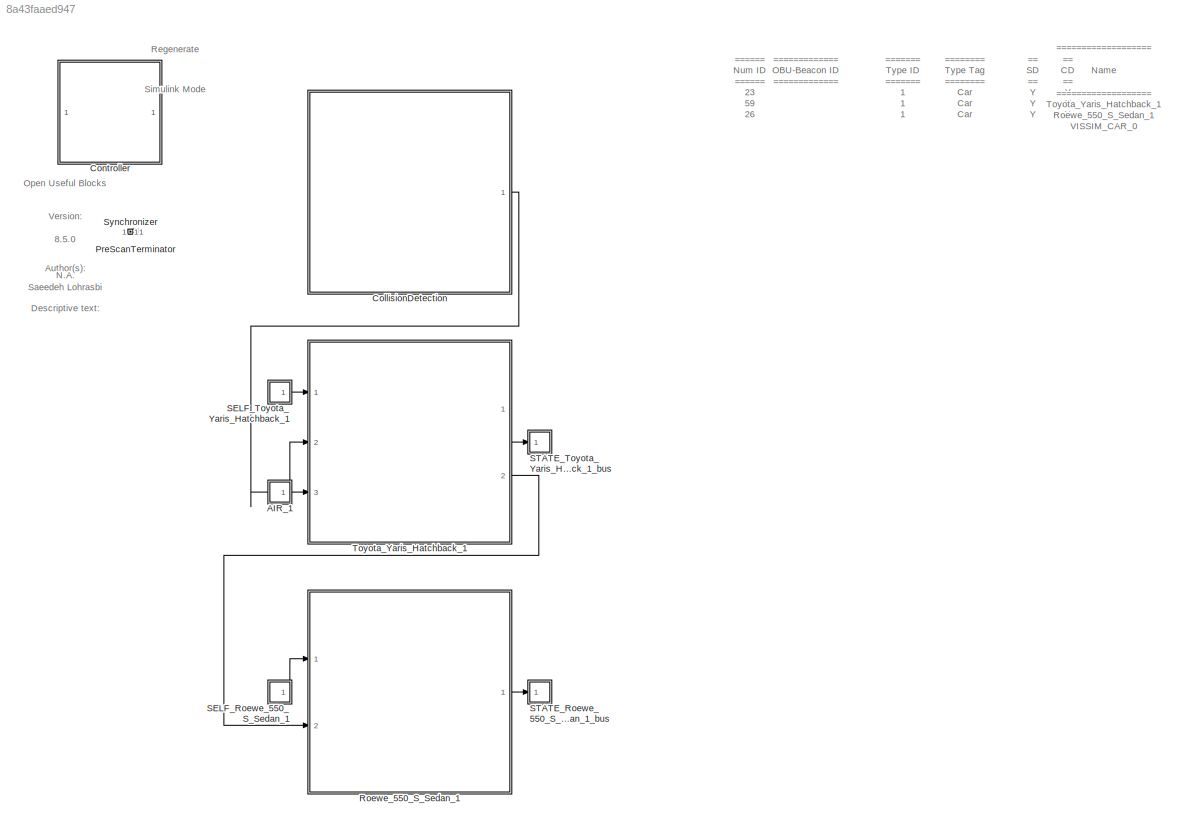
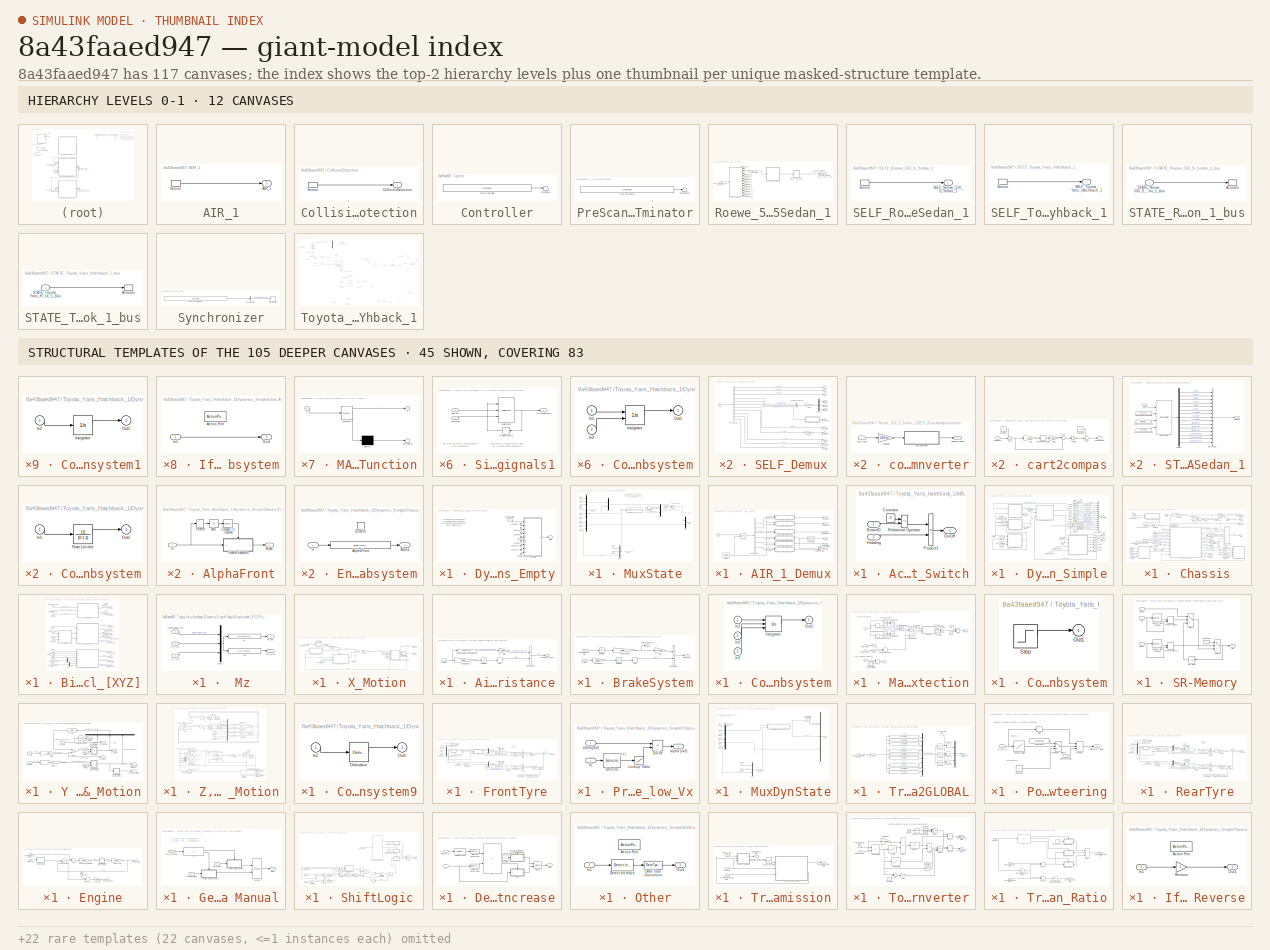
[diagram: thumbnail index - top-2 hierarchy levels (12 canvases) + 45 structural-template representatives of the remaining 105 canvases]
MODEL slx_8a43faaed947
KIND model
CONFIG AbsTol = auto
CONFIG EnableMultiTasking = off
CONFIG FixedStep = 1/200
CONFIG InitFcn = mbxruntime.callbacks.InitFcn(bdroot);
CONFIG MaxStep = auto
CONFIG MinStep = auto
CONFIG PostLoadFcn = mbxruntime.callbacks.PostLoadFcn(bdroot);
CONFIG PreLoadFcn = mbxruntime.callbacks.PreLoadFcn(bdroot);
CONFIG RelTol = 1e-3
CONFIG SampleTimeConstraint = Unconstrained
CONFIG Solver = ode5
CONFIG SolverName = ode5
CONFIG StartFcn = mbxruntime.callbacks.StartFcn(bdroot);
CONFIG StartTime = 0.0
CONFIG StopFcn = mbxruntime.callbacks.StopFcn(bdroot);
CONFIG StopTime = inf
WORKSPACE source: MAT-file member
WORKSPACE mbox_table: struct (value not decoded)
WORKSPACE model_closed = 0
WORKSPACE sim_status = 0
BLOCK [SubSystem] AIR_1
  LoadFcn = load('PrescanAIRSensorData.mat');load('PrescanAIRSensorMessage.mat')
  OpenFcn = open_system([gcb '/Sensor'],'mask')
  Ports = [0, 1]
  Priority = 3
  RequestExecContextInheritance = off
  Tag = sensor/AIR
  Variant = off
BLOCK [Outport] AIR_1/AIR_1
  IconDisplay = Port number
  OutDataTypeStr = Bus: PRESCAN_AIRSENSORMESSAGE
  PortDimensions = 10
  SampleTime = 10/200
  Tag = outport/AIR
BLOCK [S-Function] AIR_1/Sensor
  EnableBusSupport = off
  FunctionName = sfun_AIRSensor
  Parameters = detectableObjects, sensorID, timestep
  Ports = [0, 1]
  SFcnIsStateOwnerBlock = off
  SFunctionDeploymentMode = off
BLOCK [SubSystem] CollisionDetection
  LoadFcn = load('PrescanCollisionDetectionData.mat');load('PrescanCollisionDetectionMessage.mat')
  OpenFcn = open_system([gcb '/Sensor'],'mask')
  Ports = [0, 1]
  Priority = 3
  RequestExecContextInheritance = off
  Tag = sensor/CollisionDetection
  Variant = off
BLOCK [Outport] CollisionDetection/CollisionDetection
  IconDisplay = Port number
  OutDataTypeStr = Bus: PRESCAN_COLLISIONDETECTION_MESSAGE
  PortDimensions = 5
  SampleTime = 10/200
  Tag = outport/CollisionDetection
BLOCK [S-Function] CollisionDetection/Sensor
  EnableBusSupport = off
  FunctionName = sfun_CollisionDetection
  Parameters = detectableCollisions, timestep
  Ports = [0, 1]
  SFcnIsStateOwnerBlock = off
  SFunctionDeploymentMode = off
BLOCK [SubSystem] Controller
  Description = 0F2AEFC92E8769EE2485DCFECD903E30878693373B5F4476DF5B3F255BA0B688
  LoadFcn = load PreScanControllerData
  ModelCloseFcn = assignin('base',['model_closed_' bdroot],true);
  Ports = []
  Priority = -1
  RequestExecContextInheritance = off
  Variant = off
BLOCK [Terminator] Controller/Terminator
BLOCK [S-Function] Controller/sfun_Controller
  EnableBusSupport = off
  FunctionName = sfun_Controller
  Parameters = SParameter1, SParameter2, SParameter3, SParameter4, SParameter5, SParameter6, SParameter7, SParameter8, SParameter9, SParameter10, SampleTime
  Ports = [0, 1]
  SFcnIsStateOwnerBlock = off
  SFunctionDeploymentMode = off
BLOCK [SubSystem] PreScanTerminator
  LoadFcn = load PrescanTerminatorData
  Ports = []
  Priority = 999
  RequestExecContextInheritance = off
  Tag = PreScanTerminator
  Variant = off
BLOCK [Terminator] PreScanTerminator/Terminator
BLOCK [S-Function] PreScanTerminator/sfun_Terminator
  EnableBusSupport = off
  FunctionName = sfun_Terminator
  Parameters = SampleTime
  Ports = [0, 1]
  SFcnIsStateOwnerBlock = off
  SFunctionDeploymentMode = off
BLOCK [SubSystem] Roewe_550_S_Sedan_1
  InitFcn = UniqueId = '7821';
  Ports = [2, 1]
  RequestExecContextInheritance = off
  Tag = WorldObjectSubSystem
  Variant = off
BLOCK [SubSystem] Roewe_550_S_Sedan_1/Dynamics_Empty
  Ports = [1, 1]
  RequestExecContextInheritance = off
  Tag = Dynamics_Empty
  Variant = off
BLOCK [Ground] Roewe_550_S_Sedan_1/Dynamics_Empty/Ground_1
BLOCK [Ground] Roewe_550_S_Sedan_1/Dynamics_Empty/Ground_2
BLOCK [Ground] Roewe_550_S_Sedan_1/Dynamics_Empty/Ground_3
BLOCK [Ground] Roewe_550_S_Sedan_1/Dynamics_Empty/Ground_4
BLOCK [Ground] Roewe_550_S_Sedan_1/Dynamics_Empty/Ground_5
BLOCK [Ground] Roewe_550_S_Sedan_1/Dynamics_Empty/Ground_6
BLOCK [Ground] Roewe_550_S_Sedan_1/Dynamics_Empty/Ground_7
BLOCK [Ground] Roewe_550_S_Sedan_1/Dynamics_Empty/Ground_8
BLOCK [SubSystem] Roewe_550_S_Sedan_1/Dynamics_Empty/MuxState
  DeleteFcn = PreScanBlockDeleteFcn;
  Ports = [9, 1]
  RequestExecContextInheritance = off
  Tag = mux/State
  Variant = off
BLOCK [Constant] Roewe_550_S_Sedan_1/Dynamics_Empty/MuxState/Constant
  DisableCoverage = on
  Value = positioningmode
BLOCK [DiscreteIntegrator] Roewe_550_S_Sedan_1/Dynamics_Empty/MuxState/Discrete-Time Integrator
  ICPrevOutput = DiscIntNeverNeededParam
  ICPrevScaledInput = DiscIntNeverNeededParam
  Ports = [1, 1]
  SampleTime = TimeStep
BLOCK [Ground] Roewe_550_S_Sedan_1/Dynamics_Empty/MuxState/Ground
BLOCK [Ground] Roewe_550_S_Sedan_1/Dynamics_Empty/MuxState/Ground1
BLOCK [Mux] Roewe_550_S_Sedan_1/Dynamics_Empty/MuxState/Mux1
  DisplayOption = bar
  Inputs = [3 3]
  Ports = [2, 1]
BLOCK [Mux] Roewe_550_S_Sedan_1/Dynamics_Empty/MuxState/Mux2
  DisplayOption = bar
  Inputs = 3
  Ports = [3, 1]
BLOCK [Mux] Roewe_550_S_Sedan_1/Dynamics_Empty/MuxState/Mux3
  DisplayOption = bar
  Inputs = 3
  Ports = [3, 1]
BLOCK [Mux] Roewe_550_S_Sedan_1/Dynamics_Empty/MuxState/Mux4
  DisplayOption = bar
  Inputs = 3
  Ports = [3, 1]
BLOCK [Mux] Roewe_550_S_Sedan_1/Dynamics_Empty/MuxState/Mux5
  DisplayOption = bar
  Inputs = [3 3]
  Ports = [2, 1]
BLOCK [Mux] Roewe_550_S_Sedan_1/Dynamics_Empty/MuxState/Mux6
  DisplayOption = bar
  Inputs = [6 3]
  Ports = [2, 1]
BLOCK [Inport] Roewe_550_S_Sedan_1/Dynamics_Empty/MuxState/P [rad]
  IconDisplay = Port number
  Port = 8
  SampleTime = TimeStep
BLOCK [Inport] Roewe_550_S_Sedan_1/Dynamics_Empty/MuxState/R [rad]
  IconDisplay = Port number
  Port = 7
  SampleTime = TimeStep
BLOCK [Switch] Roewe_550_S_Sedan_1/Dynamics_Empty/MuxState/Switch
  InputSameDT = off
  SaturateOnIntegerOverflow = off
  Threshold = 0.5
BLOCK [Reference] Roewe_550_S_Sedan_1/Dynamics_Empty/MuxState/Transformation_BODY2GLOBAL  REF=PreScanSimulinkLibrary/Simple_Vehicle_Dynamics/Chassis/MuxDynState/Transformation_BODY2GLOBAL
  Ports = [2, 1]
  SourceBlock = PreScanSimulinkLibrary/Simple_Vehicle_Dynamics/Chassis/MuxDynState/Transformation_BODY2GLOBAL
  SourceType = SubSystem
BLOCK [Inport] Roewe_550_S_Sedan_1/Dynamics_Empty/MuxState/Y [rad]
  IconDisplay = Port number
  Port = 9
  SampleTime = TimeStep
BLOCK [Inport] Roewe_550_S_Sedan_1/Dynamics_Empty/MuxState/dx [m//s]
  IconDisplay = Port number
  Port = 4
  SampleTime = TimeStep
BLOCK [Inport] Roewe_550_S_Sedan_1/Dynamics_Empty/MuxState/dy [m//s]
  IconDisplay = Port number
  Port = 5
  SampleTime = TimeStep
BLOCK [Inport] Roewe_550_S_Sedan_1/Dynamics_Empty/MuxState/dz [m//s]
  IconDisplay = Port number
  Port = 6
  SampleTime = TimeStep
BLOCK [Mux] Roewe_550_S_Sedan_1/Dynamics_Empty/MuxState/mux3
  Inputs = 3
  Ports = [3, 1]
BLOCK [Outport] Roewe_550_S_Sedan_1/Dynamics_Empty/MuxState/state
  IconDisplay = Port number
BLOCK [Inport] Roewe_550_S_Sedan_1/Dynamics_Empty/MuxState/x [m]
  IconDisplay = Port number
  SampleTime = TimeStep
BLOCK [Inport] Roewe_550_S_Sedan_1/Dynamics_Empty/MuxState/y [m]
  IconDisplay = Port number
  Port = 2
  SampleTime = TimeStep
BLOCK [Inport] Roewe_550_S_Sedan_1/Dynamics_Empty/MuxState/z [m]
  IconDisplay = Port number
  Port = 3
  SampleTime = TimeStep
BLOCK [Outport] Roewe_550_S_Sedan_1/Dynamics_Empty/State
  IconDisplay = Port number
  SampleTime = 10/200
  Tag = outport/StateOutport
BLOCK [Inport] Roewe_550_S_Sedan_1/Dynamics_Empty/host x position
  IconDisplay = Port number
BLOCK [SubSystem] Roewe_550_S_Sedan_1/SELF_Demux
  DeleteFcn = PreScanBlockDeleteFcn;
  Ports = [1, 12]
  RequestExecContextInheritance = off
  Tag = demux/SelfPort
  Variant = off
BLOCK [BusSelector] Roewe_550_S_Sedan_1/SELF_Demux/Bus Selector
  OutputAsBus = off
  OutputSignals = PositionX,PositionY,PositionZ,OrientationRoll,OrientationPitch,OrientationYaw,Velocity,Yaw_rate,Lat,Long,Alt
  Ports = [1, 11]
BLOCK [Demux] Roewe_550_S_Sedan_1/SELF_Demux/Demux2
  DisplayOption = bar
  Outputs = 3
  Ports = [1, 3]
BLOCK [Outport] Roewe_550_S_Sedan_1/SELF_Demux/GPS alt [m]
  IconDisplay = Port number
  Port = 9
BLOCK [Outport] Roewe_550_S_Sedan_1/SELF_Demux/GPS lat [deg]
  IconDisplay = Port number
  Port = 7
BLOCK [Outport] Roewe_550_S_Sedan_1/SELF_Demux/GPS long [deg]
  IconDisplay = Port number
  Port = 8
BLOCK [Gain] Roewe_550_S_Sedan_1/SELF_Demux/Gain
  Gain = 180/pi
  OutDataTypeStr = Inherit: Inherit via internal rule
  ParamDataTypeStr = Inherit: Inherit via internal rule
  SaturateOnIntegerOverflow = off
BLOCK [Gain] Roewe_550_S_Sedan_1/SELF_Demux/Gain1
  Gain = 180/pi
  OutDataTypeStr = Inherit: Inherit via internal rule
  ParamDataTypeStr = Inherit: Inherit via internal rule
  SaturateOnIntegerOverflow = off
BLOCK [Inport] Roewe_550_S_Sedan_1/SELF_Demux/SELF
  IconDisplay = Port number
  OutDataTypeStr = Bus: PRESCAN_SELFSENSORDATA
BLOCK [Concatenate] Roewe_550_S_Sedan_1/SELF_Demux/Vector Concatenate1
  NumInputs = 3
  Ports = [3, 1]
BLOCK [SubSystem] Roewe_550_S_Sedan_1/SELF_Demux/compas converter
  Ports = [1, 1]
  RequestExecContextInheritance = off
  Variant = off
BLOCK [SubSystem] Roewe_550_S_Sedan_1/SELF_Demux/compas converter/cart2compas
  Ports = [1, 1]
  RequestExecContextInheritance = off
  Variant = off
BLOCK [Inport] Roewe_550_S_Sedan_1/SELF_Demux/compas converter/cart2compas/Angle [deg]
  IconDisplay = Port number
BLOCK [Constant] Roewe_550_S_Sedan_1/SELF_Demux/compas converter/cart2compas/Constant
  Value = 90
BLOCK [Constant] Roewe_550_S_Sedan_1/SELF_Demux/compas converter/cart2compas/Constant1
  Value = 360
BLOCK [Gain] Roewe_550_S_Sedan_1/SELF_Demux/compas converter/cart2compas/Gain
  Gain = 1/360
  OutDataTypeStr = Inherit: Inherit via internal rule
  ParamDataTypeStr = Inherit: Inherit via internal rule
  SaturateOnIntegerOverflow = off
BLOCK [Gain] Roewe_550_S_Sedan_1/SELF_Demux/compas converter/cart2compas/Gain1
  Gain = 360
  OutDataTypeStr = Inherit: Inherit via internal rule
  ParamDataTypeStr = Inherit: Inherit via internal rule
  SaturateOnIntegerOverflow = off
BLOCK [Gain] Roewe_550_S_Sedan_1/SELF_Demux/compas converter/cart2compas/Gain2
  Gain = -1
  OutDataTypeStr = Inherit: Inherit via internal rule
  ParamDataTypeStr = Inherit: Inherit via internal rule
  SaturateOnIntegerOverflow = off
BLOCK [Rounding] Roewe_550_S_Sedan_1/SELF_Demux/compas converter/cart2compas/Rounding Function
BLOCK [Sum] Roewe_550_S_Sedan_1/SELF_Demux/compas converter/cart2compas/Sum
  IconShape = round
  InputSameDT = off
  Inputs = |-+
  OutDataTypeStr = Inherit: Inherit via internal rule
  Ports = [2, 1]
  SaturateOnIntegerOverflow = off
BLOCK [Sum] Roewe_550_S_Sedan_1/SELF_Demux/compas converter/cart2compas/Sum1
  IconShape = round
  InputSameDT = off
  Inputs = -+|
  OutDataTypeStr = Inherit: Inherit via internal rule
  Ports = [2, 1]
  SaturateOnIntegerOverflow = off
BLOCK [Sum] Roewe_550_S_Sedan_1/SELF_Demux/compas converter/cart2compas/Sum2
  IconShape = round
  InputSameDT = off
  Inputs = ++|
  OutDataTypeStr = Inherit: Inherit via internal rule
  Ports = [2, 1]
  SaturateOnIntegerOverflow = off
BLOCK [Outport] Roewe_550_S_Sedan_1/SELF_Demux/compas converter/cart2compas/heading [deg]
  IconDisplay = Port number
BLOCK [Outport] Roewe_550_S_Sedan_1/SELF_Demux/compas converter/heading [deg]
  IconDisplay = Port number
BLOCK [Gain] Roewe_550_S_Sedan_1/SELF_Demux/compas converter/rad2deg
  Gain = 180/pi
  OutDataTypeStr = Inherit: Inherit via internal rule
  ParamDataTypeStr = Inherit: Inherit via internal rule
  SaturateOnIntegerOverflow = off
BLOCK [Inport] Roewe_550_S_Sedan_1/SELF_Demux/compas converter/rotz [rad]
  IconDisplay = Port number
BLOCK [Outport] Roewe_550_S_Sedan_1/SELF_Demux/heading [deg]
  IconDisplay = Port number
  Port = 11
BLOCK [Outport] Roewe_550_S_Sedan_1/SELF_Demux/rotx [deg]
  IconDisplay = Port number
  Port = 4
BLOCK [Outport] Roewe_550_S_Sedan_1/SELF_Demux/roty [deg]
  IconDisplay = Port number
  Port = 5
BLOCK [Outport] Roewe_550_S_Sedan_1/SELF_Demux/rotz [deg]
  IconDisplay = Port number
  Port = 6
BLOCK [Outport] Roewe_550_S_Sedan_1/SELF_Demux/velocity [m//s]
  IconDisplay = Port number
  Port = 10
BLOCK [Outport] Roewe_550_S_Sedan_1/SELF_Demux/x [m]
  IconDisplay = Port number
BLOCK [Outport] Roewe_550_S_Sedan_1/SELF_Demux/y [m]
  IconDisplay = Port number
  Port = 2
BLOCK [Outport] Roewe_550_S_Sedan_1/SELF_Demux/yaw rate [deg//s]
  IconDisplay = Port number
  Port = 12
BLOCK [Outport] Roewe_550_S_Sedan_1/SELF_Demux/z [m]
  IconDisplay = Port number
  Port = 3
BLOCK [Inport] Roewe_550_S_Sedan_1/SELF_Roewe_550_S_Sedan_1
  BusOutputAsStruct = on
  IconDisplay = Port number
  OutDataTypeStr = Bus: PRESCAN_SELFSENSORDATA
  PortDimensions = 1
  SampleTime = 10/200
  Tag = inport/SelfPort
BLOCK [SubSystem] Roewe_550_S_Sedan_1/STATE_Roewe_550_S_Sedan_1
  DeleteFcn = PreScanBlockDeleteFcn;
  LoadFcn = load PrescanStateActuatorData
  Ports = [1, 1]
  Priority = 0
  RequestExecContextInheritance = off
  Tag = mux/StatePort
  Variant = off
BLOCK [BusCreator] Roewe_550_S_Sedan_1/STATE_Roewe_550_S_Sedan_1/Bus Creator
  DisplayOption = bar
  InheritFromInputs = on
  Inputs = 15
  NonVirtualBus = on
  OutDataTypeStr = Bus: PRESCAN_STATEACTUATORDATA
  Ports = [15, 1]
BLOCK [Demux] Roewe_550_S_Sedan_1/STATE_Roewe_550_S_Sedan_1/Demux
  DisplayOption = bar
  Outputs = 15
  Ports = [1, 15]
BLOCK [Inport] Roewe_550_S_Sedan_1/STATE_Roewe_550_S_Sedan_1/State
  IconDisplay = Port number
  SampleTime = TimeStep
BLOCK [Outport] Roewe_550_S_Sedan_1/STATE_Roewe_550_S_Sedan_1/StateBus
  IconDisplay = Port number
  OutDataTypeStr = Bus: PRESCAN_STATEACTUATORDATA
BLOCK [Constant] Roewe_550_S_Sedan_1/STATE_Roewe_550_S_Sedan_1/iniBODYAngles wrtVEH [rad]
  SampleTime = TimeStep
  Value = [Roll0 Pitch0 0]
BLOCK [Constant] Roewe_550_S_Sedan_1/STATE_Roewe_550_S_Sedan_1/iniVEHAngles wrtGLOB [rad]
  SampleTime = TimeStep
  Value = [0 0 Yaw0]
BLOCK [Constant] Roewe_550_S_Sedan_1/STATE_Roewe_550_S_Sedan_1/iniVEHposition wrtGLOB [m]
  SampleTime = TimeStep
  Value = [x0 y0 z0]
BLOCK [Reference] Roewe_550_S_Sedan_1/STATE_Roewe_550_S_Sedan_1/state2FullState  REF=PreScanSimulinkLibrary/state2FullState
  Ports = [4, 1]
  SourceBlock = PreScanSimulinkLibrary/state2FullState
  SourceType = PreScan Demux Block:
BLOCK [Outport] Roewe_550_S_Sedan_1/STATE_Roewe_550_S_Sedan_1_bus
  IconDisplay = Port number
  OutDataTypeStr = Bus: PRESCAN_STATEACTUATORDATA
  PortDimensions = 1
  SampleTime = 10/200
  Tag = outport/StatePort
BLOCK [RateTransition] Roewe_550_S_Sedan_1/STATE_Roewe_550_S_Sedan_1_rc
  OutPortSampleTimeOpt = Inherit
  Tag = mux_rc/StatePort
BLOCK [Terminator] Roewe_550_S_Sedan_1/Terminator_1
BLOCK [Terminator] Roewe_550_S_Sedan_1/Terminator_10
BLOCK [Terminator] Roewe_550_S_Sedan_1/Terminator_11
BLOCK [Terminator] Roewe_550_S_Sedan_1/Terminator_12
BLOCK [Terminator] Roewe_550_S_Sedan_1/Terminator_2
BLOCK [Terminator] Roewe_550_S_Sedan_1/Terminator_3
BLOCK [Terminator] Roewe_550_S_Sedan_1/Terminator_4
BLOCK [Terminator] Roewe_550_S_Sedan_1/Terminator_5
BLOCK [Terminator] Roewe_550_S_Sedan_1/Terminator_6
BLOCK [Terminator] Roewe_550_S_Sedan_1/Terminator_7
BLOCK [Terminator] Roewe_550_S_Sedan_1/Terminator_8
BLOCK [Terminator] Roewe_550_S_Sedan_1/Terminator_9
BLOCK [Inport] Roewe_550_S_Sedan_1/host x position
  IconDisplay = Port number
  Port = 2
BLOCK [SubSystem] SELF_Roewe_550_S_Sedan_1
  LoadFcn = load('PreScanSelfSensorData.mat')
  OpenFcn = open_system([gcb '/Sensor'],'mask')
  Ports = [0, 1]
  Priority = 3
  RequestExecContextInheritance = off
  Tag = sensor/SelfPort
  Variant = off
BLOCK [Outport] SELF_Roewe_550_S_Sedan_1/SELF_Roewe_550_S_Sedan_1
  IconDisplay = Port number
  OutDataTypeStr = Bus: PRESCAN_SELFSENSORDATA
  PortDimensions = 1
  SampleTime = 10/200
  Tag = outport/SelfPort
BLOCK [S-Function] SELF_Roewe_550_S_Sedan_1/Sensor
  EnableBusSupport = off
  FunctionName = sfun_SelfSensor
  Parameters = UniqueID, TimeStep
  Ports = [0, 1]
  SFcnIsStateOwnerBlock = off
  SFunctionDeploymentMode = off
BLOCK [SubSystem] SELF_Toyota_Yaris_Hatchback_1
  LoadFcn = load('PreScanSelfSensorData.mat')
  OpenFcn = open_system([gcb '/Sensor'],'mask')
  Ports = [0, 1]
  Priority = 3
  RequestExecContextInheritance = off
  Tag = sensor/SelfPort
  Variant = off
BLOCK [Outport] SELF_Toyota_Yaris_Hatchback_1/SELF_Toyota_Yaris_Hatchback_1
  IconDisplay = Port number
  OutDataTypeStr = Bus: PRESCAN_SELFSENSORDATA
  PortDimensions = 1
  SampleTime = 10/200
  Tag = outport/SelfPort
BLOCK [S-Function] SELF_Toyota_Yaris_Hatchback_1/Sensor
  EnableBusSupport = off
  FunctionName = sfun_SelfSensor
  Parameters = UniqueID, TimeStep
  Ports = [0, 1]
  SFcnIsStateOwnerBlock = off
  SFunctionDeploymentMode = off
BLOCK [SubSystem] STATE_Roewe_550_S_Sedan_1_bus
  LoadFcn = load('PreScanStateActuatorData.mat')
  OpenFcn = open_system([gcb '/Actuator'],'mask')
  Ports = [1]
  Priority = 0
  RequestExecContextInheritance = off
  Tag = actuator/StatePort
  Variant = off
BLOCK [S-Function] STATE_Roewe_550_S_Sedan_1_bus/Actuator
  EnableBusSupport = off
  FunctionName = sfun_StateActuator
  Parameters = UniqueID, TimeStep
  Ports = [1]
  SFcnIsStateOwnerBlock = off
  SFunctionDeploymentMode = off
BLOCK [Inport] STATE_Roewe_550_S_Sedan_1_bus/STATE_Roewe_550_S_Sedan_1_bus
  BusOutputAsStruct = on
  IconDisplay = Port number
  OutDataTypeStr = Bus: PRESCAN_STATEACTUATORDATA
  PortDimensions = 1
  SampleTime = 10/200
  Tag = inport/StatePort
BLOCK [SubSystem] STATE_Toyota_Yaris_Hatchback_1_bus
  LoadFcn = load('PreScanStateActuatorData.mat')
  OpenFcn = open_system([gcb '/Actuator'],'mask')
  Ports = [1]
  Priority = 0
  RequestExecContextInheritance = off
  Tag = actuator/StatePort
  Variant = off
BLOCK [S-Function] STATE_Toyota_Yaris_Hatchback_1_bus/Actuator
  EnableBusSupport = off
  FunctionName = sfun_StateActuator
  Parameters = UniqueID, TimeStep
  Ports = [1]
  SFcnIsStateOwnerBlock = off
  SFunctionDeploymentMode = off
BLOCK [Inport] STATE_Toyota_Yaris_Hatchback_1_bus/STATE_Toyota_Yaris_Hatchback_1_bus
  BusOutputAsStruct = on
  IconDisplay = Port number
  OutDataTypeStr = Bus: PRESCAN_STATEACTUATORDATA
  PortDimensions = 1
  SampleTime = 10/200
  Tag = inport/StatePort
BLOCK [SubSystem] Synchronizer
  DeleteFcn = PreScanBlockDeleteFcn;
  LoadFcn = load PrescanSynchronizeData
  Ports = []
  Priority = 1
  RequestExecContextInheritance = off
  Tag = PreScanSynchronizer
  Variant = off
BLOCK [BusSelector] Synchronizer/Bus Selector1
  OutputAsBus = off
  OutputSignals = FederateStopped
  Ports = [1, 1]
BLOCK [Stop] Synchronizer/Stop Simulation
BLOCK [S-Function] Synchronizer/sfun_Synchronizer
  EnableBusSupport = off
  FunctionName = sfun_Synchronizer
  Parameters = SampleTime
  Ports = [0, 1]
  SFcnIsStateOwnerBlock = off
  SFunctionDeploymentMode = off
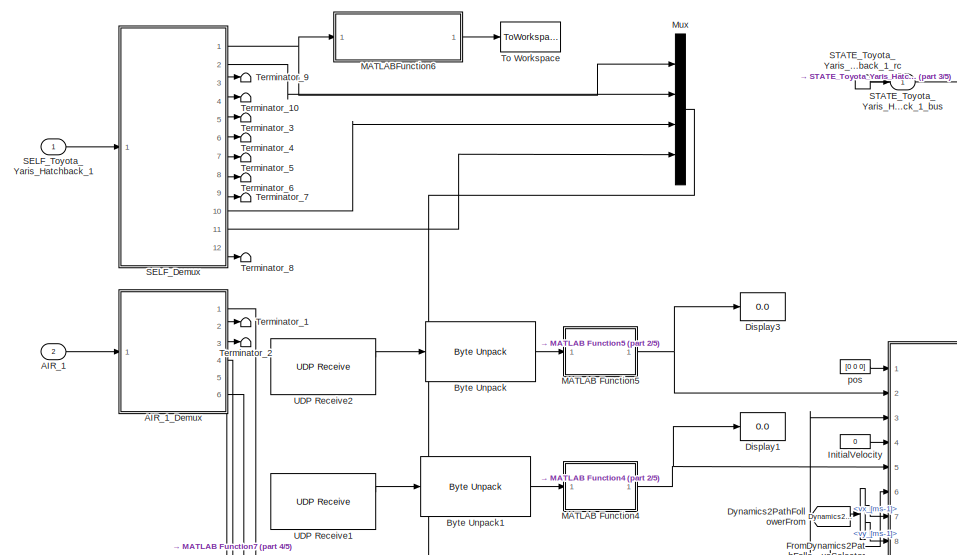
[diagram: Toyota_Yaris_Hatchback_1 - part 1/5, top left region]
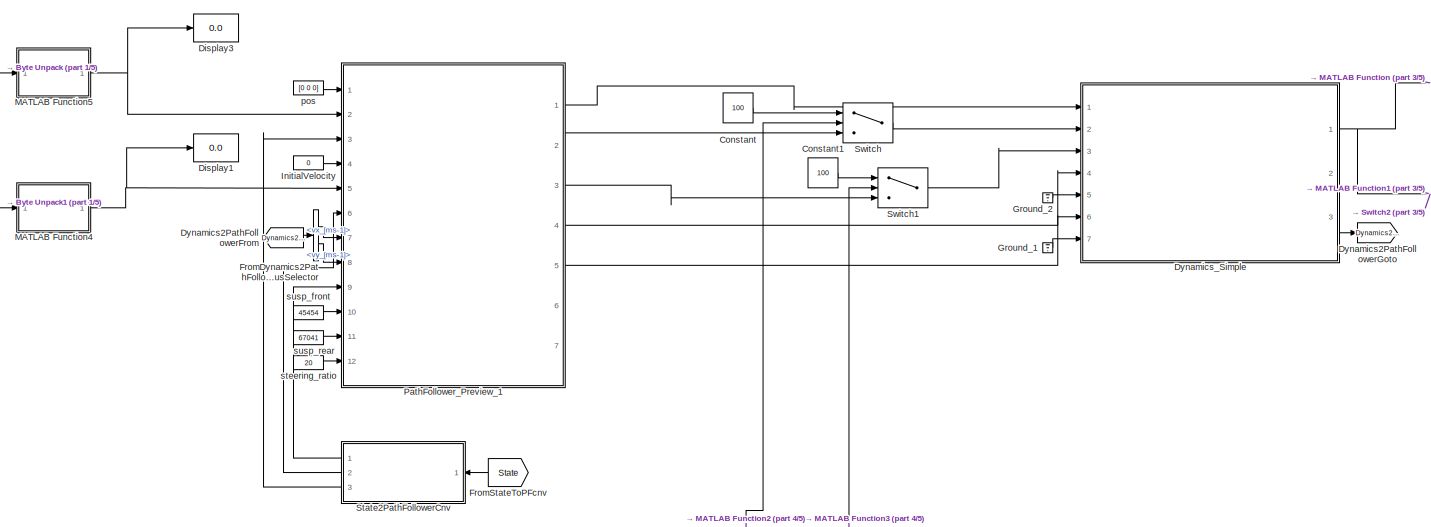
[diagram: Toyota_Yaris_Hatchback_1 - part 2/5, central region]
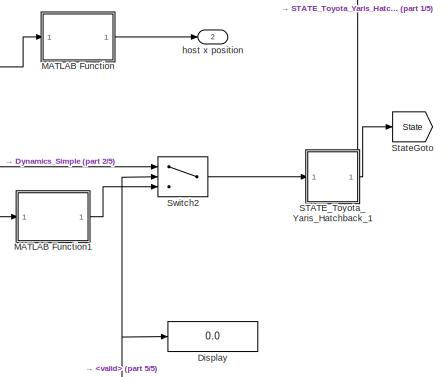
[diagram: Toyota_Yaris_Hatchback_1 - part 3/5, middle right region]
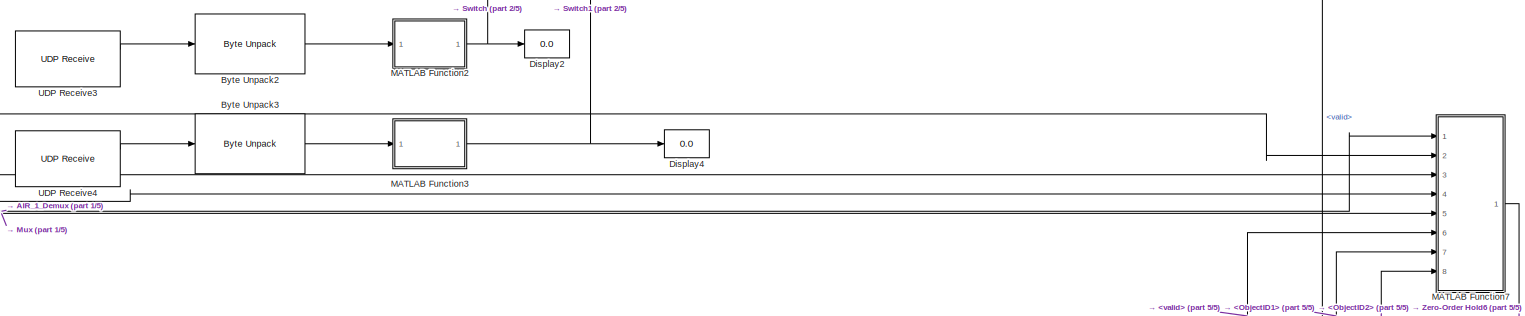
[diagram: Toyota_Yaris_Hatchback_1 - part 4/5, bottom center region]
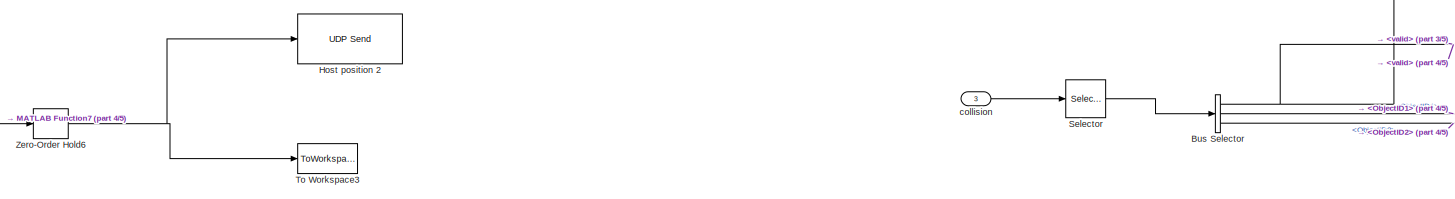
[diagram: Toyota_Yaris_Hatchback_1 - part 5/5, bottom center region]
BLOCK [SubSystem] Toyota_Yaris_Hatchback_1
  InitFcn = UniqueId = '381';
  Ports = [3, 2]
  RequestExecContextInheritance = off
  Tag = WorldObjectSubSystem
  Variant = off
BLOCK [Inport] Toyota_Yaris_Hatchback_1/AIR_1
  BusOutputAsStruct = on
  IconDisplay = Port number
  OutDataTypeStr = Bus: PRESCAN_AIRSENSORMESSAGE
  Port = 2
  PortDimensions = 10
  SampleTime = 10/200
  Tag = inport/AIR
BLOCK [SubSystem] Toyota_Yaris_Hatchback_1/AIR_1_Demux
  DeleteFcn = PreScanBlockDeleteFcn;
  Ports = [1, 6]
  RequestExecContextInheritance = off
  Tag = demux/AIR
  Variant = off
BLOCK [Inport] Toyota_Yaris_Hatchback_1/AIR_1_Demux/AIR
  IconDisplay = Port number
BLOCK [SubSystem] Toyota_Yaris_Hatchback_1/AIR_1_Demux/Activate_Switch
  Ports = [2, 1]
  RequestExecContextInheritance = off
  Variant = off
BLOCK [Inport] Toyota_Yaris_Hatchback_1/AIR_1_Demux/Activate_Switch/BeamID
  IconDisplay = Port number
BLOCK [Constant] Toyota_Yaris_Hatchback_1/AIR_1_Demux/Activate_Switch/Constant
  Value = 0
BLOCK [Inport] Toyota_Yaris_Hatchback_1/AIR_1_Demux/Activate_Switch/Heading
  IconDisplay = Port number
  Port = 2
BLOCK [Outport] Toyota_Yaris_Hatchback_1/AIR_1_Demux/Activate_Switch/On//Off
  IconDisplay = Port number
BLOCK [Product] Toyota_Yaris_Hatchback_1/AIR_1_Demux/Activate_Switch/Product1
  InputSameDT = off
  OutDataTypeStr = Inherit: Inherit via internal rule
  Ports = [2, 1]
  SaturateOnIntegerOverflow = off
BLOCK [RelationalOperator] Toyota_Yaris_Hatchback_1/AIR_1_Demux/Activate_Switch/Relational Operator
  InputSameDT = off
  Operator = ~=
  OutDataTypeStr = boolean
  Ports = [2, 1]
BLOCK [Outport] Toyota_Yaris_Hatchback_1/AIR_1_Demux/Azimuth [deg]
  IconDisplay = Port number
  Port = 2
BLOCK [BusSelector] Toyota_Yaris_Hatchback_1/AIR_1_Demux/Bus Selector
  OutputAsBus = off
  OutputSignals = DATA.Range,DATA.Azimuth,DATA.Elevation,DATA.ID,DATA.Velocity,DATA.Heading
  Ports = [1, 6]
BLOCK [DataTypeConversion] Toyota_Yaris_Hatchback_1/AIR_1_Demux/Data Type Conversion
  OutDataTypeStr = double
  RndMeth = Floor
  SaturateOnIntegerOverflow = off
BLOCK [Outport] Toyota_Yaris_Hatchback_1/AIR_1_Demux/Elevation [deg]
  IconDisplay = Port number
  Port = 3
BLOCK [ForIterator] Toyota_Yaris_Hatchback_1/AIR_1_Demux/For Iterator
  IterationLimit = detectableObjects
  Ports = [0, 1]
  ResetStates = reset
BLOCK [Outport] Toyota_Yaris_Hatchback_1/AIR_1_Demux/Heading [deg]
  IconDisplay = Port number
  Port = 6
BLOCK [Outport] Toyota_Yaris_Hatchback_1/AIR_1_Demux/ID [-]
  IconDisplay = Port number
  Port = 4
BLOCK [Outport] Toyota_Yaris_Hatchback_1/AIR_1_Demux/Range [m]
  IconDisplay = Port number
BLOCK [Selector] Toyota_Yaris_Hatchback_1/AIR_1_Demux/Selector
  IndexOptions = Index vector (port)
  Indices = [1 3]
  InputPortWidth = detectableObjects
  OutputSizes = 1
  Ports = [2, 1]
BLOCK [SubSystem] Toyota_Yaris_Hatchback_1/AIR_1_Demux/Signal2ArrayOfSignals1
  Ports = [2, 1]
  RequestExecContextInheritance = off
  Variant = off
BLOCK [Outport] Toyota_Yaris_Hatchback_1/AIR_1_Demux/Signal2ArrayOfSignals1/ArrayofElements
  IconDisplay = Port number
BLOCK [Assignment] Toyota_Yaris_Hatchback_1/AIR_1_Demux/Signal2ArrayOfSignals1/Assignment
  IndexOptions = Index vector (port)
  Indices = 1
  OutputSizes = 1
  Ports = [3, 1]
BLOCK [Inport] Toyota_Yaris_Hatchback_1/AIR_1_Demux/Signal2ArrayOfSignals1/Element
  IconDisplay = Port number
  Port = 2
BLOCK [Inport] Toyota_Yaris_Hatchback_1/AIR_1_Demux/Signal2ArrayOfSignals1/LoopIndex
  IconDisplay = Port number
BLOCK [Memory] Toyota_Yaris_Hatchback_1/AIR_1_Demux/Signal2ArrayOfSignals1/Previous vector
  InheritSampleTime = on
  InitialCondition = zeros(VECTORLENGTH,1)
BLOCK [SubSystem] Toyota_Yaris_Hatchback_1/AIR_1_Demux/Signal2ArrayOfSignals2
  Ports = [2, 1]
  RequestExecContextInheritance = off
  Variant = off
BLOCK [Outport] Toyota_Yaris_Hatchback_1/AIR_1_Demux/Signal2ArrayOfSignals2/ArrayofElements
  IconDisplay = Port number
BLOCK [Assignment] Toyota_Yaris_Hatchback_1/AIR_1_Demux/Signal2ArrayOfSignals2/Assignment
  IndexOptions = Index vector (port)
  Indices = 1
  OutputSizes = 1
  Ports = [3, 1]
BLOCK [Inport] Toyota_Yaris_Hatchback_1/AIR_1_Demux/Signal2ArrayOfSignals2/Element
  IconDisplay = Port number
  Port = 2
BLOCK [Inport] Toyota_Yaris_Hatchback_1/AIR_1_Demux/Signal2ArrayOfSignals2/LoopIndex
  IconDisplay = Port number
BLOCK [Memory] Toyota_Yaris_Hatchback_1/AIR_1_Demux/Signal2ArrayOfSignals2/Previous vector
  InheritSampleTime = on
  InitialCondition = zeros(VECTORLENGTH,1)
BLOCK [SubSystem] Toyota_Yaris_Hatchback_1/AIR_1_Demux/Signal2ArrayOfSignals3
  Ports = [2, 1]
  RequestExecContextInheritance = off
  Variant = off
BLOCK [Outport] Toyota_Yaris_Hatchback_1/AIR_1_Demux/Signal2ArrayOfSignals3/ArrayofElements
  IconDisplay = Port number
BLOCK [Assignment] Toyota_Yaris_Hatchback_1/AIR_1_Demux/Signal2ArrayOfSignals3/Assignment
  IndexOptions = Index vector (port)
  Indices = 1
  OutputSizes = 1
  Ports = [3, 1]
BLOCK [Inport] Toyota_Yaris_Hatchback_1/AIR_1_Demux/Signal2ArrayOfSignals3/Element
  IconDisplay = Port number
  Port = 2
BLOCK [Inport] Toyota_Yaris_Hatchback_1/AIR_1_Demux/Signal2ArrayOfSignals3/LoopIndex
  IconDisplay = Port number
BLOCK [Memory] Toyota_Yaris_Hatchback_1/AIR_1_Demux/Signal2ArrayOfSignals3/Previous vector
  InheritSampleTime = on
  InitialCondition = zeros(VECTORLENGTH,1)
BLOCK [SubSystem] Toyota_Yaris_Hatchback_1/AIR_1_Demux/Signal2ArrayOfSignals4
  Ports = [2, 1]
  RequestExecContextInheritance = off
  Variant = off
BLOCK [Outport] Toyota_Yaris_Hatchback_1/AIR_1_Demux/Signal2ArrayOfSignals4/ArrayofElements
  IconDisplay = Port number
BLOCK [Assignment] Toyota_Yaris_Hatchback_1/AIR_1_Demux/Signal2ArrayOfSignals4/Assignment
  IndexOptions = Index vector (port)
  Indices = 1
  OutputSizes = 1
  Ports = [3, 1]
BLOCK [Inport] Toyota_Yaris_Hatchback_1/AIR_1_Demux/Signal2ArrayOfSignals4/Element
  IconDisplay = Port number
  Port = 2
BLOCK [Inport] Toyota_Yaris_Hatchback_1/AIR_1_Demux/Signal2ArrayOfSignals4/LoopIndex
  IconDisplay = Port number
BLOCK [Memory] Toyota_Yaris_Hatchback_1/AIR_1_Demux/Signal2ArrayOfSignals4/Previous vector
  InheritSampleTime = on
  InitialCondition = zeros(VECTORLENGTH,1)
BLOCK [SubSystem] Toyota_Yaris_Hatchback_1/AIR_1_Demux/Signal2ArrayOfSignals5
  Ports = [2, 1]
  RequestExecContextInheritance = off
  Variant = off
BLOCK [Outport] Toyota_Yaris_Hatchback_1/AIR_1_Demux/Signal2ArrayOfSignals5/ArrayofElements
  IconDisplay = Port number
BLOCK [Assignment] Toyota_Yaris_Hatchback_1/AIR_1_Demux/Signal2ArrayOfSignals5/Assignment
  IndexOptions = Index vector (port)
  Indices = 1
  OutputSizes = 1
  Ports = [3, 1]
BLOCK [Inport] Toyota_Yaris_Hatchback_1/AIR_1_Demux/Signal2ArrayOfSignals5/Element
  IconDisplay = Port number
  Port = 2
BLOCK [Inport] Toyota_Yaris_Hatchback_1/AIR_1_Demux/Signal2ArrayOfSignals5/LoopIndex
  IconDisplay = Port number
BLOCK [Memory] Toyota_Yaris_Hatchback_1/AIR_1_Demux/Signal2ArrayOfSignals5/Previous vector
  InheritSampleTime = on
  InitialCondition = zeros(VECTORLENGTH,1)
BLOCK [SubSystem] Toyota_Yaris_Hatchback_1/AIR_1_Demux/Signal2ArrayOfSignals6
  Ports = [2, 1]
  RequestExecContextInheritance = off
  Variant = off
BLOCK [Outport] Toyota_Yaris_Hatchback_1/AIR_1_Demux/Signal2ArrayOfSignals6/ArrayofElements
  IconDisplay = Port number
BLOCK [Assignment] Toyota_Yaris_Hatchback_1/AIR_1_Demux/Signal2ArrayOfSignals6/Assignment
  IndexOptions = Index vector (port)
  Indices = 1
  OutputSizes = 1
  Ports = [3, 1]
BLOCK [Inport] Toyota_Yaris_Hatchback_1/AIR_1_Demux/Signal2ArrayOfSignals6/Element
  IconDisplay = Port number
  Port = 2
BLOCK [Inport] Toyota_Yaris_Hatchback_1/AIR_1_Demux/Signal2ArrayOfSignals6/LoopIndex
  IconDisplay = Port number
BLOCK [Memory] Toyota_Yaris_Hatchback_1/AIR_1_Demux/Signal2ArrayOfSignals6/Previous vector
  InheritSampleTime = on
  InitialCondition = zeros(VECTORLENGTH,1)
BLOCK [Outport] Toyota_Yaris_Hatchback_1/AIR_1_Demux/Velocity [m//s]
  IconDisplay = Port number
  Port = 5
BLOCK [BusSelector] Toyota_Yaris_Hatchback_1/Bus Selector
  OutputAsBus = off
  OutputSignals = HEADER.valid,DATA.ObjectID1,DATA.ObjectID2
  Ports = [1, 3]
BLOCK [Reference] Toyota_Yaris_Hatchback_1/Byte Unpack  REF=etargetslib/Byte Unpack
  Ports = [1, 1]
  SourceBlock = etargetslib/Byte Unpack
  SourceType = Byte Unpack
BLOCK [Reference] Toyota_Yaris_Hatchback_1/Byte Unpack1  REF=etargetslib/Byte Unpack
  Ports = [1, 1]
  SourceBlock = etargetslib/Byte Unpack
  SourceType = Byte Unpack
BLOCK [Reference] Toyota_Yaris_Hatchback_1/Byte Unpack2  REF=etargetslib/Byte Unpack
  Ports = [1, 1]
  SourceBlock = etargetslib/Byte Unpack
  SourceType = Byte Unpack
BLOCK [Reference] Toyota_Yaris_Hatchback_1/Byte Unpack3  REF=etargetslib/Byte Unpack
  Ports = [1, 1]
  SourceBlock = etargetslib/Byte Unpack
  SourceType = Byte Unpack
BLOCK [Constant] Toyota_Yaris_Hatchback_1/Constant
  Value = 100
BLOCK [Constant] Toyota_Yaris_Hatchback_1/Constant1
  Value = 100
BLOCK [Display] Toyota_Yaris_Hatchback_1/Display
  Decimation = 1
  Ports = [1]
BLOCK [Display] Toyota_Yaris_Hatchback_1/Display1
  Decimation = 1
  Ports = [1]
BLOCK [Display] Toyota_Yaris_Hatchback_1/Display2
  Decimation = 1
  Ports = [1]
BLOCK [Display] Toyota_Yaris_Hatchback_1/Display3
  Decimation = 1
  Ports = [1]
BLOCK [Display] Toyota_Yaris_Hatchback_1/Display4
  Decimation = 1
  Ports = [1]
BLOCK [From] Toyota_Yaris_Hatchback_1/Dynamics2PathFollowerFrom
  GotoTag = Dynamics2PathFollower
BLOCK [Goto] Toyota_Yaris_Hatchback_1/Dynamics2PathFollowerGoto
  GotoTag = Dynamics2PathFollower
BLOCK [SubSystem] Toyota_Yaris_Hatchback_1/Dynamics_Simple
  DeleteFcn = PreScanBlockDeleteFcn;
  Ports = [7, 3]
  RequestExecContextInheritance = off
  Tag = Simple_Vehicle_Dynamics
  UserDataPersistent = on
  Variant = off
BLOCK [Inport] Toyota_Yaris_Hatchback_1/Dynamics_Simple/AutoManual_OnOff
  IconDisplay = Port number
  Port = 5
BLOCK [Inport] Toyota_Yaris_Hatchback_1/Dynamics_Simple/Auto_GearShift
  IconDisplay = Port number
  Port = 6
BLOCK [Inport] Toyota_Yaris_Hatchback_1/Dynamics_Simple/Brake
  IconDisplay = Port number
  Port = 3
BLOCK [BusCreator] Toyota_Yaris_Hatchback_1/Dynamics_Simple/Bus Creator
  DisplayOption = bar
  InheritFromInputs = on
  Inputs = 14
  Ports = [14, 1]
BLOCK [SubSystem] Toyota_Yaris_Hatchback_1/Dynamics_Simple/Chassis
  Ports = [4, 7]
  RequestExecContextInheritance = off
  Variant = off
BLOCK [Abs] Toyota_Yaris_Hatchback_1/Dynamics_Simple/Chassis/Abs
  SaturateOnIntegerOverflow = off
BLOCK [SubSystem] Toyota_Yaris_Hatchback_1/Dynamics_Simple/Chassis/Bicycle_model_[XYZ]
  Ports = [9, 11]
  RequestExecContextInheritance = off
  Variant = off
BLOCK [Inport] Toyota_Yaris_Hatchback_1/Dynamics_Simple/Chassis/Bicycle_model_[XYZ]/BrakePressure_[bar]
  IconDisplay = Port number
  Port = 4
BLOCK [Inport] Toyota_Yaris_Hatchback_1/Dynamics_Simple/Chassis/Bicycle_model_[XYZ]/DeltaWheel_[rad]
  IconDisplay = Port number
BLOCK [Demux] Toyota_Yaris_Hatchback_1/Dynamics_Simple/Chassis/Bicycle_model_[XYZ]/Demux
  DisplayOption = bar
  Outputs = 2
  Ports = [1, 2]
BLOCK [Demux] Toyota_Yaris_Hatchback_1/Dynamics_Simple/Chassis/Bicycle_model_[XYZ]/Demux1
  DisplayOption = bar
  Outputs = 2
  Ports = [1, 2]
BLOCK [Inport] Toyota_Yaris_Hatchback_1/Dynamics_Simple/Chassis/Bicycle_model_[XYZ]/DriveTorque_[Nm]
  IconDisplay = Port number
  Port = 5
BLOCK [From] Toyota_Yaris_Hatchback_1/Dynamics_Simple/Chassis/Bicycle_model_[XYZ]/From1
  CloseFcn = tagdialog Close
  GotoTag = ax
BLOCK [From] Toyota_Yaris_Hatchback_1/Dynamics_Simple/Chassis/Bicycle_model_[XYZ]/From2
  CloseFcn = tagdialog Close
  GotoTag = ay
BLOCK [From] Toyota_Yaris_Hatchback_1/Dynamics_Simple/Chassis/Bicycle_model_[XYZ]/From3
  CloseFcn = tagdialog Close
  GotoTag = vx
BLOCK [From] Toyota_Yaris_Hatchback_1/Dynamics_Simple/Chassis/Bicycle_model_[XYZ]/From4
  CloseFcn = tagdialog Close
  GotoTag = dYaw
BLOCK [Inport] Toyota_Yaris_Hatchback_1/Dynamics_Simple/Chassis/Bicycle_model_[XYZ]/Fy_front_[N]
  IconDisplay = Port number
  Port = 9
BLOCK [Inport] Toyota_Yaris_Hatchback_1/Dynamics_Simple/Chassis/Bicycle_model_[XYZ]/Fy_rear_[N]
  IconDisplay = Port number
  Port = 8
BLOCK [SubSystem] Toyota_Yaris_Hatchback_1/Dynamics_Simple/Chassis/Bicycle_model_[XYZ]/Fyi --> Fy // Mz
  Ports = [3, 2]
  RequestExecContextInheritance = off
  Variant = off
BLOCK [Inport] Toyota_Yaris_Hatchback_1/Dynamics_Simple/Chassis/Bicycle_model_[XYZ]/Fyi --> Fy // Mz/DeltaWheel_[rad]
  IconDisplay = Port number
BLOCK [Fcn] Toyota_Yaris_Hatchback_1/Dynamics_Simple/Chassis/Bicycle_model_[XYZ]/Fyi --> Fy // Mz/Fy
  Expr = u(2)*cos(u(1)) + u(3)
BLOCK [Outport] Toyota_Yaris_Hatchback_1/Dynamics_Simple/Chassis/Bicycle_model_[XYZ]/Fyi --> Fy // Mz/Fy_[N]
  IconDisplay = Port number
  InitialOutput = 0
BLOCK [Inport] Toyota_Yaris_Hatchback_1/Dynamics_Simple/Chassis/Bicycle_model_[XYZ]/Fyi --> Fy // Mz/Fy_f_[N]
  IconDisplay = Port number
  Port = 2
BLOCK [Inport] Toyota_Yaris_Hatchback_1/Dynamics_Simple/Chassis/Bicycle_model_[XYZ]/Fyi --> Fy // Mz/Fy_r_[N]
  IconDisplay = Port number
  Port = 3
BLOCK [Mux] Toyota_Yaris_Hatchback_1/Dynamics_Simple/Chassis/Bicycle_model_[XYZ]/Fyi --> Fy // Mz/Mux1
  DisplayOption = bar
  Inputs = 3
  Ports = [3, 1]
BLOCK [Fcn] Toyota_Yaris_Hatchback_1/Dynamics_Simple/Chassis/Bicycle_model_[XYZ]/Fyi --> Fy // Mz/Mz
  Expr = u(2)*p.a*cos(u(1)) - u(3)*p.b
BLOCK [Outport] Toyota_Yaris_Hatchback_1/Dynamics_Simple/Chassis/Bicycle_model_[XYZ]/Fyi --> Fy // Mz/Mz_[Nm]
  IconDisplay = Port number
  InitialOutput = 0
  Port = 2
BLOCK [Goto] Toyota_Yaris_Hatchback_1/Dynamics_Simple/Chassis/Bicycle_model_[XYZ]/Goto
  GotoTag = ax
BLOCK [Goto] Toyota_Yaris_Hatchback_1/Dynamics_Simple/Chassis/Bicycle_model_[XYZ]/Goto1
  GotoTag = ay
BLOCK [Goto] Toyota_Yaris_Hatchback_1/Dynamics_Simple/Chassis/Bicycle_model_[XYZ]/Goto2
  GotoTag = vx
BLOCK [Goto] Toyota_Yaris_Hatchback_1/Dynamics_Simple/Chassis/Bicycle_model_[XYZ]/Goto3
  GotoTag = dYaw
BLOCK [Outport] Toyota_Yaris_Hatchback_1/Dynamics_Simple/Chassis/Bicycle_model_[XYZ]/PitchAngle_[rad]
  IconDisplay = Port number
  Port = 8
BLOCK [Outport] Toyota_Yaris_Hatchback_1/Dynamics_Simple/Chassis/Bicycle_model_[XYZ]/RollAngle_[rad]
  IconDisplay = Port number
  Port = 4
BLOCK [Outport] Toyota_Yaris_Hatchback_1/Dynamics_Simple/Chassis/Bicycle_model_[XYZ]/RollRate_[rads-1]
  IconDisplay = Port number
  Port = 5
BLOCK [Outport] Toyota_Yaris_Hatchback_1/Dynamics_Simple/Chassis/Bicycle_model_[XYZ]/Vx_[ms-1]
  IconDisplay = Port number
  Port = 7
BLOCK [SubSystem] Toyota_Yaris_Hatchback_1/Dynamics_Simple/Chassis/Bicycle_model_[XYZ]/X_Motion
  Ports = [3, 2]
  RequestExecContextInheritance = off
  Variant = off
BLOCK [SubSystem] Toyota_Yaris_Hatchback_1/Dynamics_Simple/Chassis/Bicycle_model_[XYZ]/X_Motion/Air&RoadResistance
  Ports = [1, 1]
  RequestExecContextInheritance = off
  Variant = off
BLOCK [Gain] Toyota_Yaris_Hatchback_1/Dynamics_Simple/Chassis/Bicycle_model_[XYZ]/X_Motion/Air&RoadResistance/Gain
  Gain = 1/p.Rw
  OutDataTypeStr = Inherit: Inherit via internal rule
  ParamDataTypeStr = Inherit: Inherit via internal rule
  SaturateOnIntegerOverflow = off
BLOCK [Outport] Toyota_Yaris_Hatchback_1/Dynamics_Simple/Chassis/Bicycle_model_[XYZ]/X_Motion/Air&RoadResistance/Resistance_Force
  IconDisplay = Port number
BLOCK [Fcn] Toyota_Yaris_Hatchback_1/Dynamics_Simple/Chassis/Bicycle_model_[XYZ]/X_Motion/Air&RoadResistance/Road & Aerodyn Resistances
  Expr = p.Rroad + p.Rair*u^2
BLOCK [Saturate] Toyota_Yaris_Hatchback_1/Dynamics_Simple/Chassis/Bicycle_model_[XYZ]/X_Motion/Air&RoadResistance/Saturation1
  InputPortMap = u0
  LowerLimit = -5/15
  Ports = [1, 1]
  UpperLimit = 5/15
BLOCK [Signum] Toyota_Yaris_Hatchback_1/Dynamics_Simple/Chassis/Bicycle_model_[XYZ]/X_Motion/Air&RoadResistance/Sign
BLOCK [Gain] Toyota_Yaris_Hatchback_1/Dynamics_Simple/Chassis/Bicycle_model_[XYZ]/X_Motion/Air&RoadResistance/[ms-1] 2 [rads-1]
  Gain = 1/p.Rw
BLOCK [Product] Toyota_Yaris_Hatchback_1/Dynamics_Simple/Chassis/Bicycle_model_[XYZ]/X_Motion/Air&RoadResistance/signed load1
  Ports = [2, 1]
  RndMeth = Floor
BLOCK [Inport] Toyota_Yaris_Hatchback_1/Dynamics_Simple/Chassis/Bicycle_model_[XYZ]/X_Motion/Air&RoadResistance/vx_[ms-1]
  IconDisplay = Port number
BLOCK [Inport] Toyota_Yaris_Hatchback_1/Dynamics_Simple/Chassis/Bicycle_model_[XYZ]/X_Motion/BrakePressure_[bar]
  IconDisplay = Port number
  Port = 2
BLOCK [SubSystem] Toyota_Yaris_Hatchback_1/Dynamics_Simple/Chassis/Bicycle_model_[XYZ]/X_Motion/BrakeSystem
  Ports = [2, 2]
  RequestExecContextInheritance = off
  Variant = off
BLOCK [Outport] Toyota_Yaris_Hatchback_1/Dynamics_Simple/Chassis/Bicycle_model_[XYZ]/X_Motion/BrakeSystem/BrakeForce
  IconDisplay = Port number
BLOCK [Inport] Toyota_Yaris_Hatchback_1/Dynamics_Simple/Chassis/Bicycle_model_[XYZ]/X_Motion/BrakeSystem/BrakePressure_[bar]
  IconDisplay = Port number
  Port = 2
BLOCK [Outport] Toyota_Yaris_Hatchback_1/Dynamics_Simple/Chassis/Bicycle_model_[XYZ]/X_Motion/BrakeSystem/BrakeTorqueAbs
  IconDisplay = Port number
  Port = 2
BLOCK [Gain] Toyota_Yaris_Hatchback_1/Dynamics_Simple/Chassis/Bicycle_model_[XYZ]/X_Motion/BrakeSystem/Gain
  Gain = 1/p.Rw
  OutDataTypeStr = Inherit: Inherit via internal rule
  ParamDataTypeStr = Inherit: Inherit via internal rule
  SaturateOnIntegerOverflow = off
BLOCK [Saturate] Toyota_Yaris_Hatchback_1/Dynamics_Simple/Chassis/Bicycle_model_[XYZ]/X_Motion/BrakeSystem/Saturation
  InputPortMap = u0
  LowerLimit = 0
  Ports = [1, 1]
  UpperLimit = p.PBrakeMax
BLOCK [Saturate] Toyota_Yaris_Hatchback_1/Dynamics_Simple/Chassis/Bicycle_model_[XYZ]/X_Motion/BrakeSystem/Saturation1
  InputPortMap = u0
  LowerLimit = -5/15
  Ports = [1, 1]
  UpperLimit = 5/15
BLOCK [Signum] Toyota_Yaris_Hatchback_1/Dynamics_Simple/Chassis/Bicycle_model_[XYZ]/X_Motion/BrakeSystem/Sign
BLOCK [Gain] Toyota_Yaris_Hatchback_1/Dynamics_Simple/Chassis/Bicycle_model_[XYZ]/X_Motion/BrakeSystem/[ms-1] 2 [rads-1]
  Gain = 1/p.Rw
BLOCK [Gain] Toyota_Yaris_Hatchback_1/Dynamics_Simple/Chassis/Bicycle_model_[XYZ]/X_Motion/BrakeSystem/braking Q factor
  Gain = p.Qfac
BLOCK [Product] Toyota_Yaris_Hatchback_1/Dynamics_Simple/Chassis/Bicycle_model_[XYZ]/X_Motion/BrakeSystem/signed load1
  Ports = [2, 1]
  RndMeth = Floor
BLOCK [Inport] Toyota_Yaris_Hatchback_1/Dynamics_Simple/Chassis/Bicycle_model_[XYZ]/X_Motion/BrakeSystem/vx_[ms-1]
  IconDisplay = Port number
BLOCK [SubSystem] Toyota_Yaris_Hatchback_1/Dynamics_Simple/Chassis/Bicycle_model_[XYZ]/X_Motion/Configurable Subsystem
  AttributesFormatString = %<BlockChoice>
  BlockChoice = Integrator
  MemberBlocks = Discrete-Time Integrator,Integrator
  OpenFcn = BringToFront(gcb);
  Ports = [3, 1]
  RequestExecContextInheritance = off
  ShowPortLabels = none
  TemplateBlock = PreScanSimulinkLibrary/Configurable Subsystems/integral with reset and initial condition/Configurable\nSubsystem
  Variant = off
BLOCK [Inport] Toyota_Yaris_Hatchback_1/Dynamics_Simple/Chassis/Bicycle_model_[XYZ]/X_Motion/Configurable Subsystem/In1
  IconDisplay = Port number
BLOCK [Inport] Toyota_Yaris_Hatchback_1/Dynamics_Simple/Chassis/Bicycle_model_[XYZ]/X_Motion/Configurable Subsystem/In2
  IconDisplay = Port number
  Port = 2
BLOCK [Inport] Toyota_Yaris_Hatchback_1/Dynamics_Simple/Chassis/Bicycle_model_[XYZ]/X_Motion/Configurable Subsystem/In3
  IconDisplay = Port number
  Port = 3
BLOCK [Integrator] Toyota_Yaris_Hatchback_1/Dynamics_Simple/Chassis/Bicycle_model_[XYZ]/X_Motion/Configurable Subsystem/Integrator
  ExternalReset = level
  InitialConditionSource = external
  Ports = [3, 1]
BLOCK [Outport] Toyota_Yaris_Hatchback_1/Dynamics_Simple/Chassis/Bicycle_model_[XYZ]/X_Motion/Configurable Subsystem/Out1
  IconDisplay = Port number
BLOCK [SubSystem] Toyota_Yaris_Hatchback_1/Dynamics_Simple/Chassis/Bicycle_model_[XYZ]/X_Motion/Configurable Subsystem1
  AttributesFormatString = %<BlockChoice>
  BlockChoice = Torsional damping
  MemberBlocks = Discrete Torsional damping,Torsional damping
  OpenFcn = BringToFront(gcb);
  Ports = [1, 1]
  RequestExecContextInheritance = off
  ShowPortLabels = none
  TemplateBlock = PreScanSimulinkLibrary/Configurable Subsystems/TransferFunction\nTorsional damping/Configurable\nSubsystem
  Variant = off
BLOCK [Inport] Toyota_Yaris_Hatchback_1/Dynamics_Simple/Chassis/Bicycle_model_[XYZ]/X_Motion/Configurable Subsystem1/In1
  IconDisplay = Port number
BLOCK [Outport] Toyota_Yaris_Hatchback_1/Dynamics_Simple/Chassis/Bicycle_model_[XYZ]/X_Motion/Configurable Subsystem1/Out1
  IconDisplay = Port number
BLOCK [TransferFcn] Toyota_Yaris_Hatchback_1/Dynamics_Simple/Chassis/Bicycle_model_[XYZ]/X_Motion/Configurable Subsystem1/Torsional damping
  Denominator = [0.1 1]
BLOCK [Inport] Toyota_Yaris_Hatchback_1/Dynamics_Simple/Chassis/Bicycle_model_[XYZ]/X_Motion/DriveTorque_[Nm]
  IconDisplay = Port number
BLOCK [From] Toyota_Yaris_Hatchback_1/Dynamics_Simple/Chassis/Bicycle_model_[XYZ]/X_Motion/From2
  CloseFcn = tagdialog Close
  GotoTag = DT
BLOCK [From] Toyota_Yaris_Hatchback_1/Dynamics_Simple/Chassis/Bicycle_model_[XYZ]/X_Motion/From3
  CloseFcn = tagdialog Close
  GotoTag = BT
BLOCK [Gain] Toyota_Yaris_Hatchback_1/Dynamics_Simple/Chassis/Bicycle_model_[XYZ]/X_Motion/Gain
  Gain = 1/p.Rw
  OutDataTypeStr = Inherit: Inherit via internal rule
  ParamDataTypeStr = Inherit: Inherit via internal rule
  SaturateOnIntegerOverflow = off
BLOCK [Goto] Toyota_Yaris_Hatchback_1/Dynamics_Simple/Chassis/Bicycle_model_[XYZ]/X_Motion/Goto
  GotoTag = DT
BLOCK [Goto] Toyota_Yaris_Hatchback_1/Dynamics_Simple/Chassis/Bicycle_model_[XYZ]/X_Motion/Goto1
  GotoTag = BT
BLOCK [Gain] Toyota_Yaris_Hatchback_1/Dynamics_Simple/Chassis/Bicycle_model_[XYZ]/X_Motion/Inertia
  Gain = 1/p.m
BLOCK [SubSystem] Toyota_Yaris_Hatchback_1/Dynamics_Simple/Chassis/Bicycle_model_[XYZ]/X_Motion/Max RPM and zero- velocity detection
  Ports = [5, 3]
  RequestExecContextInheritance = off
  Variant = off
BLOCK [Abs] Toyota_Yaris_Hatchback_1/Dynamics_Simple/Chassis/Bicycle_model_[XYZ]/X_Motion/Max RPM and zero- velocity detection/Abs
  SaturateOnIntegerOverflow = off
BLOCK [Abs] Toyota_Yaris_Hatchback_1/Dynamics_Simple/Chassis/Bicycle_model_[XYZ]/X_Motion/Max RPM and zero- velocity detection/Abs1
  SaturateOnIntegerOverflow = off
BLOCK [Inport] Toyota_Yaris_Hatchback_1/Dynamics_Simple/Chassis/Bicycle_model_[XYZ]/X_Motion/Max RPM and zero- velocity detection/Brake Torque
  IconDisplay = Port number
  Port = 3
BLOCK [Reference] Toyota_Yaris_Hatchback_1/Dynamics_Simple/Chassis/Bicycle_model_[XYZ]/X_Motion/Max RPM and zero- velocity detection/Compare To Zero  REF=simulink/Logic and Bit
Operations/Compare
To Zero
  Ports = [1, 1]
  SourceBlock = simulink/Logic and Bit\nOperations/Compare\nTo Zero
  SourceProductBaseCode = SL
  SourceProductName = Simulink
  SourceType = Compare To Zero
BLOCK [Reference] Toyota_Yaris_Hatchback_1/Dynamics_Simple/Chassis/Bicycle_model_[XYZ]/X_Motion/Max RPM and zero- velocity detection/Compare To Zero1  REF=simulink/Logic and Bit
Operations/Compare
To Zero
  Ports = [1, 1]
  SourceBlock = simulink/Logic and Bit\nOperations/Compare\nTo Zero
  SourceProductBaseCode = SL
  SourceProductName = Simulink
  SourceType = Compare To Zero
BLOCK [Reference] Toyota_Yaris_Hatchback_1/Dynamics_Simple/Chassis/Bicycle_model_[XYZ]/X_Motion/Max RPM and zero- velocity detection/Compare To Zero2  REF=simulink/Logic and Bit
Operations/Compare
To Zero
  Ports = [1, 1]
  SourceBlock = simulink/Logic and Bit\nOperations/Compare\nTo Zero
  SourceProductBaseCode = SL
  SourceProductName = Simulink
  SourceType = Compare To Zero
BLOCK [Reference] Toyota_Yaris_Hatchback_1/Dynamics_Simple/Chassis/Bicycle_model_[XYZ]/X_Motion/Max RPM and zero- velocity detection/Compare To Zero3  REF=simulink/Logic and Bit
Operations/Compare
To Zero
  Ports = [1, 1]
  SourceBlock = simulink/Logic and Bit\nOperations/Compare\nTo Zero
  SourceProductBaseCode = SL
  SourceProductName = Simulink
  SourceType = Compare To Zero
BLOCK [SubSystem] Toyota_Yaris_Hatchback_1/Dynamics_Simple/Chassis/Bicycle_model_[XYZ]/X_Motion/Max RPM and zero- velocity detection/Configurable Subsystem
  AttributesFormatString = %<BlockChoice>
  BlockChoice = Step
  MemberBlocks = Discrete Step,Step
  OpenFcn = BringToFront(gcb);
  Ports = [0, 1]
  RequestExecContextInheritance = off
  ShowPortLabels = none
  TemplateBlock = PreScanSimulinkLibrary/Configurable Subsystems/Step Function/Configurable\nSubsystem
  Variant = off
BLOCK [Outport] Toyota_Yaris_Hatchback_1/Dynamics_Simple/Chassis/Bicycle_model_[XYZ]/X_Motion/Max RPM and zero- velocity detection/Configurable Subsystem/Out1
  IconDisplay = Port number
BLOCK [Step] Toyota_Yaris_Hatchback_1/Dynamics_Simple/Chassis/Bicycle_model_[XYZ]/X_Motion/Max RPM and zero- velocity detection/Configurable Subsystem/Step
  After = 0
  Before = 1
  SampleTime = 0
  Time = 0.0001
BLOCK [Constant] Toyota_Yaris_Hatchback_1/Dynamics_Simple/Chassis/Bicycle_model_[XYZ]/X_Motion/Max RPM and zero- velocity detection/Constant
BLOCK [Constant] Toyota_Yaris_Hatchback_1/Dynamics_Simple/Chassis/Bicycle_model_[XYZ]/X_Motion/Max RPM and zero- velocity detection/Constant1
BLOCK [Inport] Toyota_Yaris_Hatchback_1/Dynamics_Simple/Chassis/Bicycle_model_[XYZ]/X_Motion/Max RPM and zero- velocity detection/Drive Torque
  IconDisplay = Port number
  Port = 2
BLOCK [Logic] Toyota_Yaris_Hatchback_1/Dynamics_Simple/Chassis/Bicycle_model_[XYZ]/X_Motion/Max RPM and zero- velocity detection/Logical Operator
  AllPortsSameDT = off
  OutDataTypeStr = boolean
  Ports = [2, 1]
BLOCK [Logic] Toyota_Yaris_Hatchback_1/Dynamics_Simple/Chassis/Bicycle_model_[XYZ]/X_Motion/Max RPM and zero- velocity detection/Logical Operator1
  AllPortsSameDT = off
  OutDataTypeStr = boolean
  Ports = [2, 1]
BLOCK [Logic] Toyota_Yaris_Hatchback_1/Dynamics_Simple/Chassis/Bicycle_model_[XYZ]/X_Motion/Max RPM and zero- velocity detection/Logical Operator2
  AllPortsSameDT = off
  Operator = NOT
  OutDataTypeStr = boolean
  Ports = [1, 1]
BLOCK [Logic] Toyota_Yaris_Hatchback_1/Dynamics_Simple/Chassis/Bicycle_model_[XYZ]/X_Motion/Max RPM and zero- velocity detection/Logical Operator3
  AllPortsSameDT = off
  OutDataTypeStr = boolean
  Ports = [2, 1]
BLOCK [Logic] Toyota_Yaris_Hatchback_1/Dynamics_Simple/Chassis/Bicycle_model_[XYZ]/X_Motion/Max RPM and zero- velocity detection/Logical Operator4
  AllPortsSameDT = off
  Operator = OR
  OutDataTypeStr = boolean
  Ports = [2, 1]
BLOCK [Memory] Toyota_Yaris_Hatchback_1/Dynamics_Simple/Chassis/Bicycle_model_[XYZ]/X_Motion/Max RPM and zero- velocity detection/Memory
BLOCK [Memory] Toyota_Yaris_Hatchback_1/Dynamics_Simple/Chassis/Bicycle_model_[XYZ]/X_Motion/Max RPM and zero- velocity detection/Memory1
BLOCK [Memory] Toyota_Yaris_Hatchback_1/Dynamics_Simple/Chassis/Bicycle_model_[XYZ]/X_Motion/Max RPM and zero- velocity detection/Memory2
BLOCK [Product] Toyota_Yaris_Hatchback_1/Dynamics_Simple/Chassis/Bicycle_model_[XYZ]/X_Motion/Max RPM and zero- velocity detection/Product
  InputSameDT = off
  OutDataTypeStr = Inherit: Inherit via internal rule
  Ports = [2, 1]
  SaturateOnIntegerOverflow = off
BLOCK [RelationalOperator] Toyota_Yaris_Hatchback_1/Dynamics_Simple/Chassis/Bicycle_model_[XYZ]/X_Motion/Max RPM and zero- velocity detection/Relational Operator
  InputSameDT = off
  Operator = <
  OutDataTypeStr = boolean
  Ports = [2, 1]
BLOCK [SubSystem] Toyota_Yaris_Hatchback_1/Dynamics_Simple/Chassis/Bicycle_model_[XYZ]/X_Motion/Max RPM and zero- velocity detection/SR-Memory
  Ports = [3, 1]
  RequestExecContextInheritance = off
  Variant = off
BLOCK [Constant] Toyota_Yaris_Hatchback_1/Dynamics_Simple/Chassis/Bicycle_model_[XYZ]/X_Motion/Max RPM and zero- velocity detection/SR-Memory/Constant
  Value = 0
BLOCK [Reference] Toyota_Yaris_Hatchback_1/Dynamics_Simple/Chassis/Bicycle_model_[XYZ]/X_Motion/Max RPM and zero- velocity detection/SR-Memory/Detect Rise Positive  REF=simulink/Logic and Bit
Operations/Detect Rise
Positive
  Ports = [1, 1]
  SourceBlock = simulink/Logic and Bit\nOperations/Detect Rise\nPositive
  SourceProductBaseCode = SL
  SourceProductName = Simulink
  SourceType = Detect Rise Positive
BLOCK [Reference] Toyota_Yaris_Hatchback_1/Dynamics_Simple/Chassis/Bicycle_model_[XYZ]/X_Motion/Max RPM and zero- velocity detection/SR-Memory/Detect Rise Positive1  REF=simulink/Logic and Bit
Operations/Detect Rise
Positive
  Ports = [1, 1]
  SourceBlock = simulink/Logic and Bit\nOperations/Detect Rise\nPositive
  SourceProductBaseCode = SL
  SourceProductName = Simulink
  SourceType = Detect Rise Positive
BLOCK [ManualSwitch] Toyota_Yaris_Hatchback_1/Dynamics_Simple/Chassis/Bicycle_model_[XYZ]/X_Motion/Max RPM and zero- velocity detection/SR-Memory/Manual Switch
BLOCK [ManualSwitch] Toyota_Yaris_Hatchback_1/Dynamics_Simple/Chassis/Bicycle_model_[XYZ]/X_Motion/Max RPM and zero- velocity detection/SR-Memory/Manual Switch1
BLOCK [Outport] Toyota_Yaris_Hatchback_1/Dynamics_Simple/Chassis/Bicycle_model_[XYZ]/X_Motion/Max RPM and zero- velocity detection/SR-Memory/Out
  IconDisplay = Port number
BLOCK [Inport] Toyota_Yaris_Hatchback_1/Dynamics_Simple/Chassis/Bicycle_model_[XYZ]/X_Motion/Max RPM and zero- velocity detection/SR-Memory/Reset
  IconDisplay = Port number
  Port = 3
BLOCK [Inport] Toyota_Yaris_Hatchback_1/Dynamics_Simple/Chassis/Bicycle_model_[XYZ]/X_Motion/Max RPM and zero- velocity detection/SR-Memory/Set
  IconDisplay = Port number
  Port = 2
BLOCK [Inport] Toyota_Yaris_Hatchback_1/Dynamics_Simple/Chassis/Bicycle_model_[XYZ]/X_Motion/Max RPM and zero- velocity detection/SR-Memory/Signal
  IconDisplay = Port number
BLOCK [Switch] Toyota_Yaris_Hatchback_1/Dynamics_Simple/Chassis/Bicycle_model_[XYZ]/X_Motion/Max RPM and zero- velocity detection/SR-Memory/Switch
  Criteria = u2 ~= 0
  InputSameDT = off
  SaturateOnIntegerOverflow = off
BLOCK [Switch] Toyota_Yaris_Hatchback_1/Dynamics_Simple/Chassis/Bicycle_model_[XYZ]/X_Motion/Max RPM and zero- velocity detection/SR-Memory/Switch1
  Criteria = u2 ~= 0
  InputSameDT = off
  SaturateOnIntegerOverflow = off
BLOCK [UnitDelay] Toyota_Yaris_Hatchback_1/Dynamics_Simple/Chassis/Bicycle_model_[XYZ]/X_Motion/Max RPM and zero- velocity detection/SR-Memory/Unit Delay
  SampleTime = -1
BLOCK [Sum] Toyota_Yaris_Hatchback_1/Dynamics_Simple/Chassis/Bicycle_model_[XYZ]/X_Motion/Max RPM and zero- velocity detection/Sum
  IconShape = round
  InputSameDT = off
  Inputs = |-+
  OutDataTypeStr = Inherit: Inherit via internal rule
  Ports = [2, 1]
  SaturateOnIntegerOverflow = off
BLOCK [Switch] Toyota_Yaris_Hatchback_1/Dynamics_Simple/Chassis/Bicycle_model_[XYZ]/X_Motion/Max RPM and zero- velocity detection/Switch
  Criteria = u2 ~= 0
  InputSameDT = off
  SaturateOnIntegerOverflow = off
  Threshold = 0.5
BLOCK [Inport] Toyota_Yaris_Hatchback_1/Dynamics_Simple/Chassis/Bicycle_model_[XYZ]/X_Motion/Max RPM and zero- velocity detection/ax
  IconDisplay = Port number
BLOCK [Constant] Toyota_Yaris_Hatchback_1/Dynamics_Simple/Chassis/Bicycle_model_[XYZ]/X_Motion/Max RPM and zero- velocity detection/ax is 0
  Value = 0
BLOCK [Outport] Toyota_Yaris_Hatchback_1/Dynamics_Simple/Chassis/Bicycle_model_[XYZ]/X_Motion/Max RPM and zero- velocity detection/ax_out
  IconDisplay = Port number
BLOCK [Inport] Toyota_Yaris_Hatchback_1/Dynamics_Simple/Chassis/Bicycle_model_[XYZ]/X_Motion/Max RPM and zero- velocity detection/v0
  IconDisplay = Port number
  Port = 4
BLOCK [Inport] Toyota_Yaris_Hatchback_1/Dynamics_Simple/Chassis/Bicycle_model_[XYZ]/X_Motion/Max RPM and zero- velocity detection/vx
  IconDisplay = Port number
  Port = 5
BLOCK [Outport] Toyota_Yaris_Hatchback_1/Dynamics_Simple/Chassis/Bicycle_model_[XYZ]/X_Motion/Max RPM and zero- velocity detection/vx_reset
  IconDisplay = Port number
  Port = 2
BLOCK [Outport] Toyota_Yaris_Hatchback_1/Dynamics_Simple/Chassis/Bicycle_model_[XYZ]/X_Motion/Max RPM and zero- velocity detection/x0
  IconDisplay = Port number
  Port = 3
BLOCK [Sum] Toyota_Yaris_Hatchback_1/Dynamics_Simple/Chassis/Bicycle_model_[XYZ]/X_Motion/Sum
  Inputs = +-
  Ports = [2, 1]
BLOCK [Sum] Toyota_Yaris_Hatchback_1/Dynamics_Simple/Chassis/Bicycle_model_[XYZ]/X_Motion/Sum2
  Inputs = +-
  Ports = [2, 1]
BLOCK [Outport] Toyota_Yaris_Hatchback_1/Dynamics_Simple/Chassis/Bicycle_model_[XYZ]/X_Motion/ax_[ms-2]
  IconDisplay = Port number
  Port = 2
BLOCK [Inport] Toyota_Yaris_Hatchback_1/Dynamics_Simple/Chassis/Bicycle_model_[XYZ]/X_Motion/v0_[ms-1]
  IconDisplay = Port number
  Port = 3
BLOCK [Outport] Toyota_Yaris_Hatchback_1/Dynamics_Simple/Chassis/Bicycle_model_[XYZ]/X_Motion/vx_[ms-1]
  IconDisplay = Port number
BLOCK [SubSystem] Toyota_Yaris_Hatchback_1/Dynamics_Simple/Chassis/Bicycle_model_[XYZ]/Y & Yaw_Motion
  Ports = [3, 5]
  RequestExecContextInheritance = off
  Variant = off
BLOCK [Reference] Toyota_Yaris_Hatchback_1/Dynamics_Simple/Chassis/Bicycle_model_[XYZ]/Y & Yaw_Motion/Compare To Zero  REF=simulink/Logic and Bit
Operations/Compare
To Zero
  Ports = [1, 1]
  SourceBlock = simulink/Logic and Bit\nOperations/Compare\nTo Zero
  SourceProductBaseCode = SL
  SourceProductName = Simulink
  SourceType = Compare To Zero
BLOCK [SubSystem] Toyota_Yaris_Hatchback_1/Dynamics_Simple/Chassis/Bicycle_model_[XYZ]/Y & Yaw_Motion/Configurable Subsystem
  AttributesFormatString = %<BlockChoice>
  BlockChoice = Integrator
  MemberBlocks = Discrete-Time Integrator,Integrator
  OpenFcn = BringToFront(gcb);
  Ports = [2, 1]
  RequestExecContextInheritance = off
  ShowPortLabels = none
  TemplateBlock = PreScanSimulinkLibrary/Configurable Subsystems/integral with reset/Configurable\nSubsystem
  Variant = off
BLOCK [Inport] Toyota_Yaris_Hatchback_1/Dynamics_Simple/Chassis/Bicycle_model_[XYZ]/Y & Yaw_Motion/Configurable Subsystem/In1
  IconDisplay = Port number
BLOCK [Inport] Toyota_Yaris_Hatchback_1/Dynamics_Simple/Chassis/Bicycle_model_[XYZ]/Y & Yaw_Motion/Configurable Subsystem/In2
  IconDisplay = Port number
  Port = 2
BLOCK [Integrator] Toyota_Yaris_Hatchback_1/Dynamics_Simple/Chassis/Bicycle_model_[XYZ]/Y & Yaw_Motion/Configurable Subsystem/Integrator
  ExternalReset = level
  Ports = [2, 1]
BLOCK [Outport] Toyota_Yaris_Hatchback_1/Dynamics_Simple/Chassis/Bicycle_model_[XYZ]/Y & Yaw_Motion/Configurable Subsystem/Out1
  IconDisplay = Port number
BLOCK [SubSystem] Toyota_Yaris_Hatchback_1/Dynamics_Simple/Chassis/Bicycle_model_[XYZ]/Y & Yaw_Motion/Configurable Subsystem1
  AttributesFormatString = %<BlockChoice>
  BlockChoice = Integrator
  MemberBlocks = Discrete-Time Integrator,Integrator
  OpenFcn = BringToFront(gcb);
  Ports = [1, 1]
  RequestExecContextInheritance = off
  ShowPortLabels = none
  TemplateBlock = PreScanSimulinkLibrary/Configurable Subsystems/integral/Configurable\nSubsystem1
  Variant = off
BLOCK [Inport] Toyota_Yaris_Hatchback_1/Dynamics_Simple/Chassis/Bicycle_model_[XYZ]/Y & Yaw_Motion/Configurable Subsystem1/In1
  IconDisplay = Port number
BLOCK [Integrator] Toyota_Yaris_Hatchback_1/Dynamics_Simple/Chassis/Bicycle_model_[XYZ]/Y & Yaw_Motion/Configurable Subsystem1/Integrator
  Ports = [1, 1]
BLOCK [Outport] Toyota_Yaris_Hatchback_1/Dynamics_Simple/Chassis/Bicycle_model_[XYZ]/Y & Yaw_Motion/Configurable Subsystem1/Out1
  IconDisplay = Port number
BLOCK [SubSystem] Toyota_Yaris_Hatchback_1/Dynamics_Simple/Chassis/Bicycle_model_[XYZ]/Y & Yaw_Motion/Configurable Subsystem2
  AttributesFormatString = %<BlockChoice>
  BlockChoice = Integrator
  MemberBlocks = Discrete-Time Integrator,Integrator
  OpenFcn = BringToFront(gcb);
  Ports = [2, 1]
  RequestExecContextInheritance = off
  ShowPortLabels = none
  TemplateBlock = PreScanSimulinkLibrary/Configurable Subsystems/integral with reset/Configurable\nSubsystem
  Variant = off
BLOCK [Inport] Toyota_Yaris_Hatchback_1/Dynamics_Simple/Chassis/Bicycle_model_[XYZ]/Y & Yaw_Motion/Configurable Subsystem2/In1
  IconDisplay = Port number
BLOCK [Inport] Toyota_Yaris_Hatchback_1/Dynamics_Simple/Chassis/Bicycle_model_[XYZ]/Y & Yaw_Motion/Configurable Subsystem2/In2
  IconDisplay = Port number
  Port = 2
BLOCK [Integrator] Toyota_Yaris_Hatchback_1/Dynamics_Simple/Chassis/Bicycle_model_[XYZ]/Y & Yaw_Motion/Configurable Subsystem2/Integrator
  ExternalReset = level
  Ports = [2, 1]
BLOCK [Outport] Toyota_Yaris_Hatchback_1/Dynamics_Simple/Chassis/Bicycle_model_[XYZ]/Y & Yaw_Motion/Configurable Subsystem2/Out1
  IconDisplay = Port number
BLOCK [Fcn] Toyota_Yaris_Hatchback_1/Dynamics_Simple/Chassis/Bicycle_model_[XYZ]/Y & Yaw_Motion/Fcn1
  Expr = u(1)*u(3)
BLOCK [From] Toyota_Yaris_Hatchback_1/Dynamics_Simple/Chassis/Bicycle_model_[XYZ]/Y & Yaw_Motion/From
  CloseFcn = tagdialog Close
  GotoTag = reset
BLOCK [From] Toyota_Yaris_Hatchback_1/Dynamics_Simple/Chassis/Bicycle_model_[XYZ]/Y & Yaw_Motion/From1
  CloseFcn = tagdialog Close
  GotoTag = reset
BLOCK [Inport] Toyota_Yaris_Hatchback_1/Dynamics_Simple/Chassis/Bicycle_model_[XYZ]/Y & Yaw_Motion/Fy_[N]
  IconDisplay = Port number
  Port = 2
BLOCK [Gain] Toyota_Yaris_Hatchback_1/Dynamics_Simple/Chassis/Bicycle_model_[XYZ]/Y & Yaw_Motion/Gain
  Gain = 1/p.m
BLOCK [Gain] Toyota_Yaris_Hatchback_1/Dynamics_Simple/Chassis/Bicycle_model_[XYZ]/Y & Yaw_Motion/Gain1
  Gain = 1/p.J_zz
BLOCK [Goto] Toyota_Yaris_Hatchback_1/Dynamics_Simple/Chassis/Bicycle_model_[XYZ]/Y & Yaw_Motion/Goto
  GotoTag = reset
BLOCK [Inport] Toyota_Yaris_Hatchback_1/Dynamics_Simple/Chassis/Bicycle_model_[XYZ]/Y & Yaw_Motion/Mz_[Nm]
  IconDisplay = Port number
  Port = 3
BLOCK [Sum] Toyota_Yaris_Hatchback_1/Dynamics_Simple/Chassis/Bicycle_model_[XYZ]/Y & Yaw_Motion/Sum1
  Inputs = -+
  Ports = [2, 1]
BLOCK [Outport] Toyota_Yaris_Hatchback_1/Dynamics_Simple/Chassis/Bicycle_model_[XYZ]/Y & Yaw_Motion/YawAngle_[rad]
  IconDisplay = Port number
  InitialOutput = 0
  Port = 5
BLOCK [Outport] Toyota_Yaris_Hatchback_1/Dynamics_Simple/Chassis/Bicycle_model_[XYZ]/Y & Yaw_Motion/ay_[ms-2]
  IconDisplay = Port number
  InitialOutput = 0
  Port = 3
BLOCK [Outport] Toyota_Yaris_Hatchback_1/Dynamics_Simple/Chassis/Bicycle_model_[XYZ]/Y & Yaw_Motion/dYawAngle_[rads-1]
  IconDisplay = Port number
  InitialOutput = 0
  Port = 4
BLOCK [Mux] Toyota_Yaris_Hatchback_1/Dynamics_Simple/Chassis/Bicycle_model_[XYZ]/Y & Yaw_Motion/mux
  DisplayOption = bar
  Inputs = 3
  Ports = [3, 1]
BLOCK [Outport] Toyota_Yaris_Hatchback_1/Dynamics_Simple/Chassis/Bicycle_model_[XYZ]/Y & Yaw_Motion/vy_[ms-1]
  IconDisplay = Port number
  InitialOutput = 0
  Port = 2
BLOCK [Inport] Toyota_Yaris_Hatchback_1/Dynamics_Simple/Chassis/Bicycle_model_[XYZ]/Y & Yaw_Motion/|vx|_[ms-1]
  IconDisplay = Port number
BLOCK [Outport] Toyota_Yaris_Hatchback_1/Dynamics_Simple/Chassis/Bicycle_model_[XYZ]/Y & Yaw_Motion/|vx|_[ms-1]1
  IconDisplay = Port number
  InitialOutput = 0
BLOCK [Outport] Toyota_Yaris_Hatchback_1/Dynamics_Simple/Chassis/Bicycle_model_[XYZ]/YawAngle_[rad]
  IconDisplay = Port number
  Port = 9
BLOCK [Outport] Toyota_Yaris_Hatchback_1/Dynamics_Simple/Chassis/Bicycle_model_[XYZ]/YawAngle_[rads-1]
  IconDisplay = Port number
  Port = 6
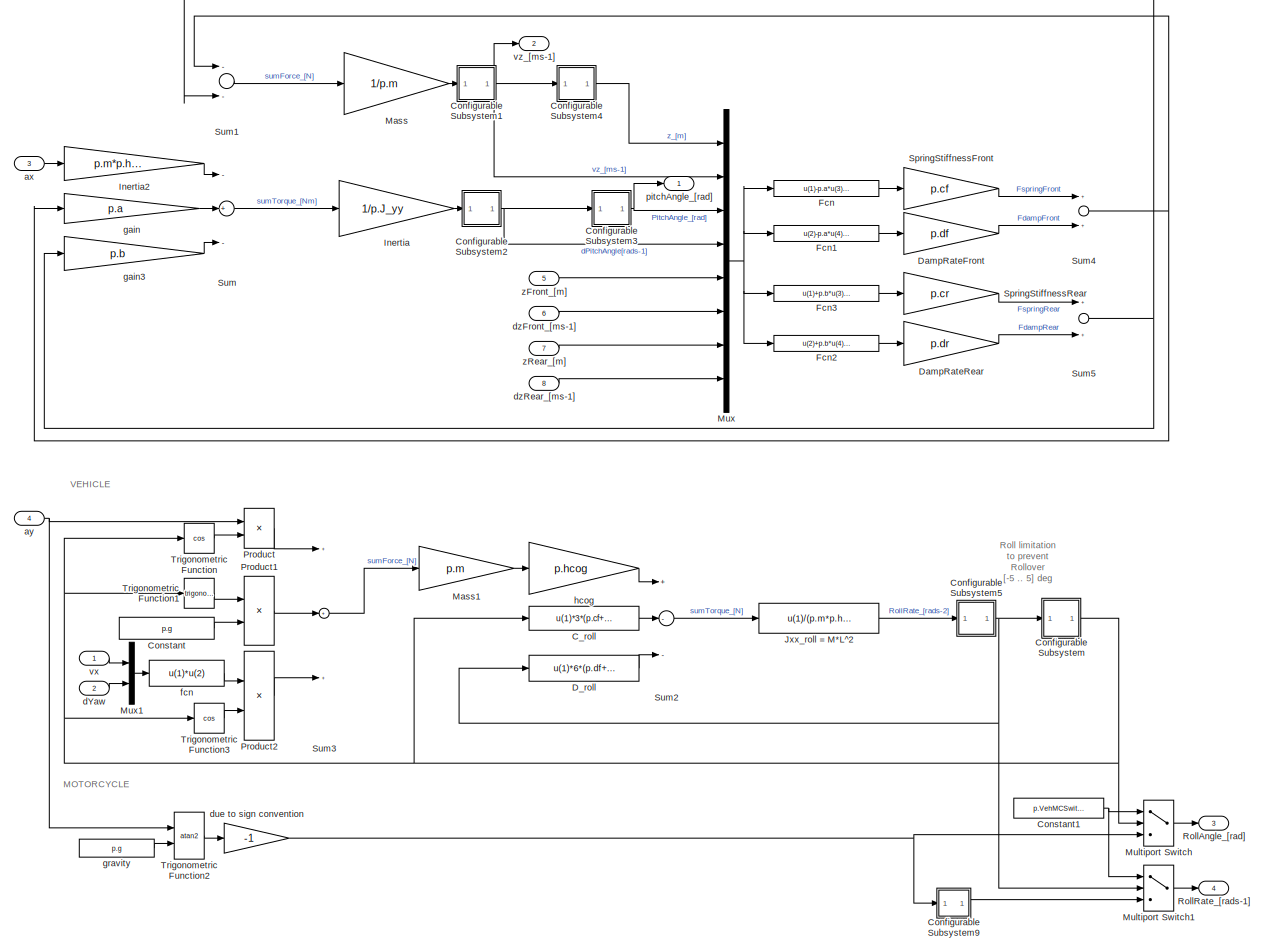
[diagram: Toyota_Yaris_Hatchback_1/Dynamics_Simple/Chassis/Bicycle_model_[XYZ]/Z, Pitch_Motion & Roll_Motion - part 1/1, most of the canvas]
BLOCK [SubSystem] Toyota_Yaris_Hatchback_1/Dynamics_Simple/Chassis/Bicycle_model_[XYZ]/Z, Pitch_Motion & Roll_Motion
  Ports = [8, 4]
  RequestExecContextInheritance = off
  Variant = off
BLOCK [Fcn] Toyota_Yaris_Hatchback_1/Dynamics_Simple/Chassis/Bicycle_model_[XYZ]/Z, Pitch_Motion & Roll_Motion/C_roll
  Expr = u(1)*3*(p.cf+p.cr)/2*p.width^2/2
BLOCK [SubSystem] Toyota_Yaris_Hatchback_1/Dynamics_Simple/Chassis/Bicycle_model_[XYZ]/Z, Pitch_Motion & Roll_Motion/Configurable Subsystem
  AttributesFormatString = %<BlockChoice>
  BlockChoice = Integrator
  MemberBlocks = Discrete-Time Integrator,Integrator
  OpenFcn = BringToFront(gcb);
  Ports = [1, 1]
  RequestExecContextInheritance = off
  ShowPortLabels = none
  TemplateBlock = PreScanSimulinkLibrary/Configurable Subsystems/integral with limits\nfor roll motion/Configurable\nSubsystem
  Variant = off
BLOCK [Inport] Toyota_Yaris_Hatchback_1/Dynamics_Simple/Chassis/Bicycle_model_[XYZ]/Z, Pitch_Motion & Roll_Motion/Configurable Subsystem/In1
  IconDisplay = Port number
BLOCK [Integrator] Toyota_Yaris_Hatchback_1/Dynamics_Simple/Chassis/Bicycle_model_[XYZ]/Z, Pitch_Motion & Roll_Motion/Configurable Subsystem/Integrator
  LimitOutput = on
  LowerSaturationLimit = -5*pi/180
  Ports = [1, 1]
  UpperSaturationLimit = 5*pi/180
BLOCK [Outport] Toyota_Yaris_Hatchback_1/Dynamics_Simple/Chassis/Bicycle_model_[XYZ]/Z, Pitch_Motion & Roll_Motion/Configurable Subsystem/Out1
  IconDisplay = Port number
BLOCK [SubSystem] Toyota_Yaris_Hatchback_1/Dynamics_Simple/Chassis/Bicycle_model_[XYZ]/Z, Pitch_Motion & Roll_Motion/Configurable Subsystem1
  AttributesFormatString = %<BlockChoice>
  BlockChoice = Integrator
  MemberBlocks = Discrete-Time Integrator,Integrator
  OpenFcn = BringToFront(gcb);
  Ports = [1, 1]
  RequestExecContextInheritance = off
  ShowPortLabels = none
  TemplateBlock = PreScanSimulinkLibrary/Configurable Subsystems/integral/Configurable\nSubsystem1
  Variant = off
BLOCK [Inport] Toyota_Yaris_Hatchback_1/Dynamics_Simple/Chassis/Bicycle_model_[XYZ]/Z, Pitch_Motion & Roll_Motion/Configurable Subsystem1/In1
  IconDisplay = Port number
BLOCK [Integrator] Toyota_Yaris_Hatchback_1/Dynamics_Simple/Chassis/Bicycle_model_[XYZ]/Z, Pitch_Motion & Roll_Motion/Configurable Subsystem1/Integrator
  Ports = [1, 1]
BLOCK [Outport] Toyota_Yaris_Hatchback_1/Dynamics_Simple/Chassis/Bicycle_model_[XYZ]/Z, Pitch_Motion & Roll_Motion/Configurable Subsystem1/Out1
  IconDisplay = Port number
BLOCK [SubSystem] Toyota_Yaris_Hatchback_1/Dynamics_Simple/Chassis/Bicycle_model_[XYZ]/Z, Pitch_Motion & Roll_Motion/Configurable Subsystem2
  AttributesFormatString = %<BlockChoice>
  BlockChoice = Integrator
  MemberBlocks = Discrete-Time Integrator,Integrator
  OpenFcn = BringToFront(gcb);
  Ports = [1, 1]
  RequestExecContextInheritance = off
  ShowPortLabels = none
  TemplateBlock = PreScanSimulinkLibrary/Configurable Subsystems/integral/Configurable\nSubsystem1
  Variant = off
BLOCK [Inport] Toyota_Yaris_Hatchback_1/Dynamics_Simple/Chassis/Bicycle_model_[XYZ]/Z, Pitch_Motion & Roll_Motion/Configurable Subsystem2/In1
  IconDisplay = Port number
BLOCK [Integrator] Toyota_Yaris_Hatchback_1/Dynamics_Simple/Chassis/Bicycle_model_[XYZ]/Z, Pitch_Motion & Roll_Motion/Configurable Subsystem2/Integrator
  Ports = [1, 1]
BLOCK [Outport] Toyota_Yaris_Hatchback_1/Dynamics_Simple/Chassis/Bicycle_model_[XYZ]/Z, Pitch_Motion & Roll_Motion/Configurable Subsystem2/Out1
  IconDisplay = Port number
BLOCK [SubSystem] Toyota_Yaris_Hatchback_1/Dynamics_Simple/Chassis/Bicycle_model_[XYZ]/Z, Pitch_Motion & Roll_Motion/Configurable Subsystem3
  AttributesFormatString = %<BlockChoice>
  BlockChoice = Integrator
  MemberBlocks = Discrete-Time Integrator,Integrator
  OpenFcn = BringToFront(gcb);
  Ports = [1, 1]
  RequestExecContextInheritance = off
  ShowPortLabels = none
  TemplateBlock = PreScanSimulinkLibrary/Configurable Subsystems/integral/Configurable\nSubsystem1
  Variant = off
BLOCK [Inport] Toyota_Yaris_Hatchback_1/Dynamics_Simple/Chassis/Bicycle_model_[XYZ]/Z, Pitch_Motion & Roll_Motion/Configurable Subsystem3/In1
  IconDisplay = Port number
BLOCK [Integrator] Toyota_Yaris_Hatchback_1/Dynamics_Simple/Chassis/Bicycle_model_[XYZ]/Z, Pitch_Motion & Roll_Motion/Configurable Subsystem3/Integrator
  Ports = [1, 1]
BLOCK [Outport] Toyota_Yaris_Hatchback_1/Dynamics_Simple/Chassis/Bicycle_model_[XYZ]/Z, Pitch_Motion & Roll_Motion/Configurable Subsystem3/Out1
  IconDisplay = Port number
BLOCK [SubSystem] Toyota_Yaris_Hatchback_1/Dynamics_Simple/Chassis/Bicycle_model_[XYZ]/Z, Pitch_Motion & Roll_Motion/Configurable Subsystem4
  AttributesFormatString = %<BlockChoice>
  BlockChoice = Integrator
  MemberBlocks = Discrete-Time Integrator,Integrator
  OpenFcn = BringToFront(gcb);
  Ports = [1, 1]
  RequestExecContextInheritance = off
  ShowPortLabels = none
  TemplateBlock = PreScanSimulinkLibrary/Configurable Subsystems/integral/Configurable\nSubsystem1
  Variant = off
BLOCK [Inport] Toyota_Yaris_Hatchback_1/Dynamics_Simple/Chassis/Bicycle_model_[XYZ]/Z, Pitch_Motion & Roll_Motion/Configurable Subsystem4/In1
  IconDisplay = Port number
BLOCK [Integrator] Toyota_Yaris_Hatchback_1/Dynamics_Simple/Chassis/Bicycle_model_[XYZ]/Z, Pitch_Motion & Roll_Motion/Configurable Subsystem4/Integrator
  Ports = [1, 1]
BLOCK [Outport] Toyota_Yaris_Hatchback_1/Dynamics_Simple/Chassis/Bicycle_model_[XYZ]/Z, Pitch_Motion & Roll_Motion/Configurable Subsystem4/Out1
  IconDisplay = Port number
BLOCK [SubSystem] Toyota_Yaris_Hatchback_1/Dynamics_Simple/Chassis/Bicycle_model_[XYZ]/Z, Pitch_Motion & Roll_Motion/Configurable Subsystem5
  AttributesFormatString = %<BlockChoice>
  BlockChoice = Integrator
  MemberBlocks = Discrete-Time Integrator,Integrator
  OpenFcn = BringToFront(gcb);
  Ports = [1, 1]
  RequestExecContextInheritance = off
  ShowPortLabels = none
  TemplateBlock = PreScanSimulinkLibrary/Configurable Subsystems/integral/Configurable\nSubsystem1
  Variant = off
BLOCK [Inport] Toyota_Yaris_Hatchback_1/Dynamics_Simple/Chassis/Bicycle_model_[XYZ]/Z, Pitch_Motion & Roll_Motion/Configurable Subsystem5/In1
  IconDisplay = Port number
BLOCK [Integrator] Toyota_Yaris_Hatchback_1/Dynamics_Simple/Chassis/Bicycle_model_[XYZ]/Z, Pitch_Motion & Roll_Motion/Configurable Subsystem5/Integrator
  Ports = [1, 1]
BLOCK [Outport] Toyota_Yaris_Hatchback_1/Dynamics_Simple/Chassis/Bicycle_model_[XYZ]/Z, Pitch_Motion & Roll_Motion/Configurable Subsystem5/Out1
  IconDisplay = Port number
BLOCK [SubSystem] Toyota_Yaris_Hatchback_1/Dynamics_Simple/Chassis/Bicycle_model_[XYZ]/Z, Pitch_Motion & Roll_Motion/Configurable Subsystem9
  AttributesFormatString = %<BlockChoice>
  BlockChoice = Derivative
  MemberBlocks = Derivative,Discrete Derivative
  OpenFcn = BringToFront(gcb);
  Ports = [1, 1]
  RequestExecContextInheritance = off
  ShowPortLabels = none
  TemplateBlock = PreScanSimulinkLibrary/Configurable Subsystems/Derivative/Configurable\nSubsystem
  Variant = off
BLOCK [Derivative] Toyota_Yaris_Hatchback_1/Dynamics_Simple/Chassis/Bicycle_model_[XYZ]/Z, Pitch_Motion & Roll_Motion/Configurable Subsystem9/Derivative
BLOCK [Inport] Toyota_Yaris_Hatchback_1/Dynamics_Simple/Chassis/Bicycle_model_[XYZ]/Z, Pitch_Motion & Roll_Motion/Configurable Subsystem9/In1
  IconDisplay = Port number
BLOCK [Outport] Toyota_Yaris_Hatchback_1/Dynamics_Simple/Chassis/Bicycle_model_[XYZ]/Z, Pitch_Motion & Roll_Motion/Configurable Subsystem9/Out1
  IconDisplay = Port number
BLOCK [Constant] Toyota_Yaris_Hatchback_1/Dynamics_Simple/Chassis/Bicycle_model_[XYZ]/Z, Pitch_Motion & Roll_Motion/Constant
  Value = p.g
BLOCK [Constant] Toyota_Yaris_Hatchback_1/Dynamics_Simple/Chassis/Bicycle_model_[XYZ]/Z, Pitch_Motion & Roll_Motion/Constant1
  Value = p.VehMCSwitch
BLOCK [Fcn] Toyota_Yaris_Hatchback_1/Dynamics_Simple/Chassis/Bicycle_model_[XYZ]/Z, Pitch_Motion & Roll_Motion/D_roll
  Expr = u(1)*6*(p.df+p.dr)/2*p.width^2/2
BLOCK [Gain] Toyota_Yaris_Hatchback_1/Dynamics_Simple/Chassis/Bicycle_model_[XYZ]/Z, Pitch_Motion & Roll_Motion/DampRateFront
  Gain = p.df
BLOCK [Gain] Toyota_Yaris_Hatchback_1/Dynamics_Simple/Chassis/Bicycle_model_[XYZ]/Z, Pitch_Motion & Roll_Motion/DampRateRear
  Gain = p.dr
BLOCK [Fcn] Toyota_Yaris_Hatchback_1/Dynamics_Simple/Chassis/Bicycle_model_[XYZ]/Z, Pitch_Motion & Roll_Motion/Fcn
  Expr = u(1)-p.a*u(3)-u(5)
BLOCK [Fcn] Toyota_Yaris_Hatchback_1/Dynamics_Simple/Chassis/Bicycle_model_[XYZ]/Z, Pitch_Motion & Roll_Motion/Fcn1
  Expr = u(2)-p.a*u(4)-u(6)
BLOCK [Fcn] Toyota_Yaris_Hatchback_1/Dynamics_Simple/Chassis/Bicycle_model_[XYZ]/Z, Pitch_Motion & Roll_Motion/Fcn2
  Expr = u(2)+p.b*u(4)-u(8)
BLOCK [Fcn] Toyota_Yaris_Hatchback_1/Dynamics_Simple/Chassis/Bicycle_model_[XYZ]/Z, Pitch_Motion & Roll_Motion/Fcn3
  Expr = u(1)+p.b*u(3)-u(7)
BLOCK [Gain] Toyota_Yaris_Hatchback_1/Dynamics_Simple/Chassis/Bicycle_model_[XYZ]/Z, Pitch_Motion & Roll_Motion/Inertia
  Gain = 1/p.J_yy
BLOCK [Gain] Toyota_Yaris_Hatchback_1/Dynamics_Simple/Chassis/Bicycle_model_[XYZ]/Z, Pitch_Motion & Roll_Motion/Inertia2
  Gain = p.m*p.hcog
BLOCK [Fcn] Toyota_Yaris_Hatchback_1/Dynamics_Simple/Chassis/Bicycle_model_[XYZ]/Z, Pitch_Motion & Roll_Motion/Jxx_roll = M*L^2
  Expr = u(1)/(p.m*p.hcog^2)
BLOCK [Gain] Toyota_Yaris_Hatchback_1/Dynamics_Simple/Chassis/Bicycle_model_[XYZ]/Z, Pitch_Motion & Roll_Motion/Mass
  Gain = 1/p.m
BLOCK [Gain] Toyota_Yaris_Hatchback_1/Dynamics_Simple/Chassis/Bicycle_model_[XYZ]/Z, Pitch_Motion & Roll_Motion/Mass1
  Gain = p.m
BLOCK [MultiPortSwitch] Toyota_Yaris_Hatchback_1/Dynamics_Simple/Chassis/Bicycle_model_[XYZ]/Z, Pitch_Motion & Roll_Motion/Multiport Switch
  InputSameDT = off
  Inputs = 2
  Ports = [3, 1]
  SaturateOnIntegerOverflow = off
BLOCK [MultiPortSwitch] Toyota_Yaris_Hatchback_1/Dynamics_Simple/Chassis/Bicycle_model_[XYZ]/Z, Pitch_Motion & Roll_Motion/Multiport Switch1
  InputSameDT = off
  Inputs = 2
  Ports = [3, 1]
  SaturateOnIntegerOverflow = off
BLOCK [Mux] Toyota_Yaris_Hatchback_1/Dynamics_Simple/Chassis/Bicycle_model_[XYZ]/Z, Pitch_Motion & Roll_Motion/Mux
  DisplayOption = bar
  Inputs = 8
  Ports = [8, 1]
BLOCK [Mux] Toyota_Yaris_Hatchback_1/Dynamics_Simple/Chassis/Bicycle_model_[XYZ]/Z, Pitch_Motion & Roll_Motion/Mux1
  DisplayOption = bar
  Inputs = 2
  Ports = [2, 1]
BLOCK [Product] Toyota_Yaris_Hatchback_1/Dynamics_Simple/Chassis/Bicycle_model_[XYZ]/Z, Pitch_Motion & Roll_Motion/Product
  InputSameDT = off
  OutDataTypeStr = Inherit: Inherit via internal rule
  Ports = [2, 1]
  SaturateOnIntegerOverflow = off
BLOCK [Product] Toyota_Yaris_Hatchback_1/Dynamics_Simple/Chassis/Bicycle_model_[XYZ]/Z, Pitch_Motion & Roll_Motion/Product1
  InputSameDT = off
  OutDataTypeStr = Inherit: Inherit via internal rule
  Ports = [2, 1]
  SaturateOnIntegerOverflow = off
BLOCK [Product] Toyota_Yaris_Hatchback_1/Dynamics_Simple/Chassis/Bicycle_model_[XYZ]/Z, Pitch_Motion & Roll_Motion/Product2
  InputSameDT = off
  OutDataTypeStr = Inherit: Inherit via internal rule
  Ports = [2, 1]
  SaturateOnIntegerOverflow = off
BLOCK [Outport] Toyota_Yaris_Hatchback_1/Dynamics_Simple/Chassis/Bicycle_model_[XYZ]/Z, Pitch_Motion & Roll_Motion/RollAngle_[rad]
  IconDisplay = Port number
  Port = 3
BLOCK [Outport] Toyota_Yaris_Hatchback_1/Dynamics_Simple/Chassis/Bicycle_model_[XYZ]/Z, Pitch_Motion & Roll_Motion/RollRate_[rads-1]
  IconDisplay = Port number
  Port = 4
BLOCK [Gain] Toyota_Yaris_Hatchback_1/Dynamics_Simple/Chassis/Bicycle_model_[XYZ]/Z, Pitch_Motion & Roll_Motion/SpringStiffnessFront
  Gain = p.cf
BLOCK [Gain] Toyota_Yaris_Hatchback_1/Dynamics_Simple/Chassis/Bicycle_model_[XYZ]/Z, Pitch_Motion & Roll_Motion/SpringStiffnessRear
  Gain = p.cr
BLOCK [Sum] Toyota_Yaris_Hatchback_1/Dynamics_Simple/Chassis/Bicycle_model_[XYZ]/Z, Pitch_Motion & Roll_Motion/Sum
  Inputs = -+-
  Ports = [3, 1]
BLOCK [Sum] Toyota_Yaris_Hatchback_1/Dynamics_Simple/Chassis/Bicycle_model_[XYZ]/Z, Pitch_Motion & Roll_Motion/Sum1
  Inputs = --
  Ports = [2, 1]
BLOCK [Sum] Toyota_Yaris_Hatchback_1/Dynamics_Simple/Chassis/Bicycle_model_[XYZ]/Z, Pitch_Motion & Roll_Motion/Sum2
  Inputs = +--
  Ports = [3, 1]
BLOCK [Sum] Toyota_Yaris_Hatchback_1/Dynamics_Simple/Chassis/Bicycle_model_[XYZ]/Z, Pitch_Motion & Roll_Motion/Sum3
  Inputs = +++
  Ports = [3, 1]
BLOCK [Sum] Toyota_Yaris_Hatchback_1/Dynamics_Simple/Chassis/Bicycle_model_[XYZ]/Z, Pitch_Motion & Roll_Motion/Sum4
  Ports = [2, 1]
BLOCK [Sum] Toyota_Yaris_Hatchback_1/Dynamics_Simple/Chassis/Bicycle_model_[XYZ]/Z, Pitch_Motion & Roll_Motion/Sum5
  Ports = [2, 1]
BLOCK [Trigonometry] Toyota_Yaris_Hatchback_1/Dynamics_Simple/Chassis/Bicycle_model_[XYZ]/Z, Pitch_Motion & Roll_Motion/Trigonometric Function
  Operator = cos
  Ports = [1, 1]
BLOCK [Trigonometry] Toyota_Yaris_Hatchback_1/Dynamics_Simple/Chassis/Bicycle_model_[XYZ]/Z, Pitch_Motion & Roll_Motion/Trigonometric Function1
  Ports = [1, 1]
BLOCK [Trigonometry] Toyota_Yaris_Hatchback_1/Dynamics_Simple/Chassis/Bicycle_model_[XYZ]/Z, Pitch_Motion & Roll_Motion/Trigonometric Function2
  Operator = atan2
  Ports = [2, 1]
BLOCK [Trigonometry] Toyota_Yaris_Hatchback_1/Dynamics_Simple/Chassis/Bicycle_model_[XYZ]/Z, Pitch_Motion & Roll_Motion/Trigonometric Function3
  Operator = cos
  Ports = [1, 1]
BLOCK [Inport] Toyota_Yaris_Hatchback_1/Dynamics_Simple/Chassis/Bicycle_model_[XYZ]/Z, Pitch_Motion & Roll_Motion/ax
  IconDisplay = Port number
  Port = 3
BLOCK [Inport] Toyota_Yaris_Hatchback_1/Dynamics_Simple/Chassis/Bicycle_model_[XYZ]/Z, Pitch_Motion & Roll_Motion/ay
  IconDisplay = Port number
  Port = 4
BLOCK [Inport] Toyota_Yaris_Hatchback_1/Dynamics_Simple/Chassis/Bicycle_model_[XYZ]/Z, Pitch_Motion & Roll_Motion/dYaw
  IconDisplay = Port number
  Port = 2
BLOCK [Gain] Toyota_Yaris_Hatchback_1/Dynamics_Simple/Chassis/Bicycle_model_[XYZ]/Z, Pitch_Motion & Roll_Motion/due to sign convention
  Gain = -1
BLOCK [Inport] Toyota_Yaris_Hatchback_1/Dynamics_Simple/Chassis/Bicycle_model_[XYZ]/Z, Pitch_Motion & Roll_Motion/dzFront_[ms-1]
  IconDisplay = Port number
  Port = 6
BLOCK [Inport] Toyota_Yaris_Hatchback_1/Dynamics_Simple/Chassis/Bicycle_model_[XYZ]/Z, Pitch_Motion & Roll_Motion/dzRear_[ms-1]
  IconDisplay = Port number
  Port = 8
BLOCK [Fcn] Toyota_Yaris_Hatchback_1/Dynamics_Simple/Chassis/Bicycle_model_[XYZ]/Z, Pitch_Motion & Roll_Motion/fcn
  Expr = u(1)*u(2)
BLOCK [Gain] Toyota_Yaris_Hatchback_1/Dynamics_Simple/Chassis/Bicycle_model_[XYZ]/Z, Pitch_Motion & Roll_Motion/gain
  Gain = p.a
BLOCK [Gain] Toyota_Yaris_Hatchback_1/Dynamics_Simple/Chassis/Bicycle_model_[XYZ]/Z, Pitch_Motion & Roll_Motion/gain3
  Gain = p.b
BLOCK [Constant] Toyota_Yaris_Hatchback_1/Dynamics_Simple/Chassis/Bicycle_model_[XYZ]/Z, Pitch_Motion & Roll_Motion/gravity
  Value = p.g
BLOCK [Gain] Toyota_Yaris_Hatchback_1/Dynamics_Simple/Chassis/Bicycle_model_[XYZ]/Z, Pitch_Motion & Roll_Motion/hcog
  Gain = p.hcog
BLOCK [Outport] Toyota_Yaris_Hatchback_1/Dynamics_Simple/Chassis/Bicycle_model_[XYZ]/Z, Pitch_Motion & Roll_Motion/pitchAngle_[rad]
  IconDisplay = Port number
BLOCK [Inport] Toyota_Yaris_Hatchback_1/Dynamics_Simple/Chassis/Bicycle_model_[XYZ]/Z, Pitch_Motion & Roll_Motion/vx
  IconDisplay = Port number
BLOCK [Outport] Toyota_Yaris_Hatchback_1/Dynamics_Simple/Chassis/Bicycle_model_[XYZ]/Z, Pitch_Motion & Roll_Motion/vz_[ms-1]
  IconDisplay = Port number
  Port = 2
BLOCK [Inport] Toyota_Yaris_Hatchback_1/Dynamics_Simple/Chassis/Bicycle_model_[XYZ]/Z, Pitch_Motion & Roll_Motion/zFront_[m]
  IconDisplay = Port number
  Port = 5
BLOCK [Inport] Toyota_Yaris_Hatchback_1/Dynamics_Simple/Chassis/Bicycle_model_[XYZ]/Z, Pitch_Motion & Roll_Motion/zRear_[m]
  IconDisplay = Port number
  Port = 7
BLOCK [Outport] Toyota_Yaris_Hatchback_1/Dynamics_Simple/Chassis/Bicycle_model_[XYZ]/ax_[ms-2]
  IconDisplay = Port number
  Port = 10
BLOCK [Outport] Toyota_Yaris_Hatchback_1/Dynamics_Simple/Chassis/Bicycle_model_[XYZ]/ay_[ms-2]
  IconDisplay = Port number
  Port = 11
BLOCK [Inport] Toyota_Yaris_Hatchback_1/Dynamics_Simple/Chassis/Bicycle_model_[XYZ]/v0_[ms-1]
  IconDisplay = Port number
  Port = 6
BLOCK [Outport] Toyota_Yaris_Hatchback_1/Dynamics_Simple/Chassis/Bicycle_model_[XYZ]/vy_[ms-1]
  IconDisplay = Port number
  Port = 2
BLOCK [Outport] Toyota_Yaris_Hatchback_1/Dynamics_Simple/Chassis/Bicycle_model_[XYZ]/vz_[ms-1]
  IconDisplay = Port number
  Port = 3
BLOCK [Inport] Toyota_Yaris_Hatchback_1/Dynamics_Simple/Chassis/Bicycle_model_[XYZ]/zFront_[m]_dzFront_[ms-1]
  IconDisplay = Port number
  Port = 2
  PortDimensions = 2
BLOCK [Inport] Toyota_Yaris_Hatchback_1/Dynamics_Simple/Chassis/Bicycle_model_[XYZ]/zRear_[m]_dzRear_[ms-1]
  IconDisplay = Port number
  Port = 3
  PortDimensions = 2
BLOCK [Inport] Toyota_Yaris_Hatchback_1/Dynamics_Simple/Chassis/Bicycle_model_[XYZ]/|vx|_[ms-1]
  IconDisplay = Port number
  Port = 7
BLOCK [Outport] Toyota_Yaris_Hatchback_1/Dynamics_Simple/Chassis/Bicycle_model_[XYZ]/|vx|_[ms-1]1
  IconDisplay = Port number
BLOCK [Inport] Toyota_Yaris_Hatchback_1/Dynamics_Simple/Chassis/BrakePressure_[bar]
  IconDisplay = Port number
  Port = 2
BLOCK [Constant] Toyota_Yaris_Hatchback_1/Dynamics_Simple/Chassis/Constant3
  Value = [0 0]
BLOCK [Constant] Toyota_Yaris_Hatchback_1/Dynamics_Simple/Chassis/Constant4
  Value = [0 0]
BLOCK [Reference] Toyota_Yaris_Hatchback_1/Dynamics_Simple/Chassis/Degrees to Radians  REF=simulink_extras/Transformations/Degrees to
Radians
  Ports = [1, 1]
  SourceBlock = simulink_extras/Transformations/Degrees to\nRadians
  SourceProductBaseCode = SL
  SourceProductName = Simulink
  SourceType = DegreesToRadians
BLOCK [Inport] Toyota_Yaris_Hatchback_1/Dynamics_Simple/Chassis/DeltaSteer_[deg]
  IconDisplay = Port number
  Port = 3
BLOCK [Gain] Toyota_Yaris_Hatchback_1/Dynamics_Simple/Chassis/FinalDriveRatio
  Gain = p.Rfd
BLOCK [Gain] Toyota_Yaris_Hatchback_1/Dynamics_Simple/Chassis/FinalDriveRatio 
  Gain = p.Rfd
BLOCK [From] Toyota_Yaris_Hatchback_1/Dynamics_Simple/Chassis/From
  CloseFcn = tagdialog Close
  GotoTag = vx
BLOCK [From] Toyota_Yaris_Hatchback_1/Dynamics_Simple/Chassis/From1
  CloseFcn = tagdialog Close
  GotoTag = DeltaWheel
BLOCK [From] Toyota_Yaris_Hatchback_1/Dynamics_Simple/Chassis/From10
  CloseFcn = tagdialog Close
  GotoTag = RollAngle
BLOCK [From] Toyota_Yaris_Hatchback_1/Dynamics_Simple/Chassis/From11
  CloseFcn = tagdialog Close
  GotoTag = RollAngle
BLOCK [From] Toyota_Yaris_Hatchback_1/Dynamics_Simple/Chassis/From13
  CloseFcn = tagdialog Close
  GotoTag = DT
BLOCK [From] Toyota_Yaris_Hatchback_1/Dynamics_Simple/Chassis/From14
  CloseFcn = tagdialog Close
  GotoTag = vy
BLOCK [From] Toyota_Yaris_Hatchback_1/Dynamics_Simple/Chassis/From2
  CloseFcn = tagdialog Close
  GotoTag = Absvx
BLOCK [From] Toyota_Yaris_Hatchback_1/Dynamics_Simple/Chassis/From3
  CloseFcn = tagdialog Close
  GotoTag = vy
BLOCK [From] Toyota_Yaris_Hatchback_1/Dynamics_Simple/Chassis/From4
  CloseFcn = tagdialog Close
  GotoTag = YawRate
BLOCK [From] Toyota_Yaris_Hatchback_1/Dynamics_Simple/Chassis/From5
  CloseFcn = tagdialog Close
  GotoTag = Absvx
BLOCK [From] Toyota_Yaris_Hatchback_1/Dynamics_Simple/Chassis/From6
  CloseFcn = tagdialog Close
  GotoTag = vy
BLOCK [From] Toyota_Yaris_Hatchback_1/Dynamics_Simple/Chassis/From7
  CloseFcn = tagdialog Close
  GotoTag = YawRate
BLOCK [From] Toyota_Yaris_Hatchback_1/Dynamics_Simple/Chassis/From8
  CloseFcn = tagdialog Close
  GotoTag = vx
BLOCK [From] Toyota_Yaris_Hatchback_1/Dynamics_Simple/Chassis/From9
  CloseFcn = tagdialog Close
  GotoTag = vx
BLOCK [SubSystem] Toyota_Yaris_Hatchback_1/Dynamics_Simple/Chassis/FrontTyre
  Ports = [5, 1]
  RequestExecContextInheritance = off
  Variant = off
BLOCK [SubSystem] Toyota_Yaris_Hatchback_1/Dynamics_Simple/Chassis/FrontTyre/AlphaFront
  Ports = [1, 1]
  RequestExecContextInheritance = off
  Variant = off
BLOCK [Abs] Toyota_Yaris_Hatchback_1/Dynamics_Simple/Chassis/FrontTyre/AlphaFront/Abs
  SaturateOnIntegerOverflow = off
BLOCK [Outport] Toyota_Yaris_Hatchback_1/Dynamics_Simple/Chassis/FrontTyre/AlphaFront/Alpha
  IconDisplay = Port number
BLOCK [Reference] Toyota_Yaris_Hatchback_1/Dynamics_Simple/Chassis/FrontTyre/AlphaFront/Compare To Constant  REF=simulink/Logic and Bit
Operations/Compare
To Constant
  Ports = [1, 1]
  SourceBlock = simulink/Logic and Bit\nOperations/Compare\nTo Constant
  SourceProductBaseCode = SL
  SourceProductName = Simulink
  SourceType = Compare To Constant
BLOCK [SubSystem] Toyota_Yaris_Hatchback_1/Dynamics_Simple/Chassis/FrontTyre/AlphaFront/Enabled Subsystem
  Ports = [1, 1, 1]
  RequestExecContextInheritance = off
  TreatAsAtomicUnit = on
  Variant = off
BLOCK [Outport] Toyota_Yaris_Hatchback_1/Dynamics_Simple/Chassis/FrontTyre/AlphaFront/Enabled Subsystem/Alpha
  IconDisplay = Port number
  InitialOutput = [0]
  OutputWhenDisabled = reset
BLOCK [Fcn] Toyota_Yaris_Hatchback_1/Dynamics_Simple/Chassis/FrontTyre/AlphaFront/Enabled Subsystem/AlphaFront
  Expr = -atan( (u(2)+u(3)*p.a)/u(1) )
BLOCK [EnablePort] Toyota_Yaris_Hatchback_1/Dynamics_Simple/Chassis/FrontTyre/AlphaFront/Enabled Subsystem/Enable
  Ports = []
  PropagateVarSize = During execution
BLOCK [Inport] Toyota_Yaris_Hatchback_1/Dynamics_Simple/Chassis/FrontTyre/AlphaFront/Enabled Subsystem/In
  IconDisplay = Port number
BLOCK [Inport] Toyota_Yaris_Hatchback_1/Dynamics_Simple/Chassis/FrontTyre/AlphaFront/In
  IconDisplay = Port number
BLOCK [Selector] Toyota_Yaris_Hatchback_1/Dynamics_Simple/Chassis/FrontTyre/AlphaFront/Selector
  IndexOptions = Index vector (dialog)
  Indices = 1
  OutputSizes = 1
  Ports = [1, 1]
BLOCK [Reference] Toyota_Yaris_Hatchback_1/Dynamics_Simple/Chassis/FrontTyre/Compare To Zero  REF=simulink/Logic and Bit
Operations/Compare
To Zero
  Ports = [1, 1]
  SourceBlock = simulink/Logic and Bit\nOperations/Compare\nTo Zero
  SourceProductBaseCode = SL
  SourceProductName = Simulink
  SourceType = Compare To Zero
BLOCK [SubSystem] Toyota_Yaris_Hatchback_1/Dynamics_Simple/Chassis/FrontTyre/Configurable Subsystem
  AttributesFormatString = %<BlockChoice>
  BlockChoice = Integrator
  MemberBlocks = Discrete-Time Integrator,Integrator
  OpenFcn = BringToFront(gcb);
  Ports = [2, 1]
  RequestExecContextInheritance = off
  ShowPortLabels = none
  TemplateBlock = PreScanSimulinkLibrary/Configurable Subsystems/integral with reset and limits \nfor slip angle/Configurable\nSubsystem
  Variant = off
BLOCK [Inport] Toyota_Yaris_Hatchback_1/Dynamics_Simple/Chassis/FrontTyre/Configurable Subsystem/In1
  IconDisplay = Port number
BLOCK [Inport] Toyota_Yaris_Hatchback_1/Dynamics_Simple/Chassis/FrontTyre/Configurable Subsystem/In2
  IconDisplay = Port number
  Port = 2
BLOCK [Integrator] Toyota_Yaris_Hatchback_1/Dynamics_Simple/Chassis/FrontTyre/Configurable Subsystem/Integrator
  ExternalReset = level
  LimitOutput = on
  LowerSaturationLimit = -1
  Ports = [2, 1]
  UpperSaturationLimit = 1
BLOCK [Outport] Toyota_Yaris_Hatchback_1/Dynamics_Simple/Chassis/FrontTyre/Configurable Subsystem/Out1
  IconDisplay = Port number
BLOCK [SubSystem] Toyota_Yaris_Hatchback_1/Dynamics_Simple/Chassis/FrontTyre/Configurable Subsystem1
  AttributesFormatString = %<BlockChoice>
  BlockChoice = Integrator
  MemberBlocks = Discrete-Time Integrator,Integrator
  OpenFcn = BringToFront(gcb);
  Ports = [2, 1]
  RequestExecContextInheritance = off
  ShowPortLabels = none
  TemplateBlock = PreScanSimulinkLibrary/Configurable Subsystems/integral with reset/Configurable\nSubsystem
  Variant = off
BLOCK [Inport] Toyota_Yaris_Hatchback_1/Dynamics_Simple/Chassis/FrontTyre/Configurable Subsystem1/In1
  IconDisplay = Port number
BLOCK [Inport] Toyota_Yaris_Hatchback_1/Dynamics_Simple/Chassis/FrontTyre/Configurable Subsystem1/In2
  IconDisplay = Port number
  Port = 2
BLOCK [Integrator] Toyota_Yaris_Hatchback_1/Dynamics_Simple/Chassis/FrontTyre/Configurable Subsystem1/Integrator
  ExternalReset = level
  Ports = [2, 1]
BLOCK [Outport] Toyota_Yaris_Hatchback_1/Dynamics_Simple/Chassis/FrontTyre/Configurable Subsystem1/Out1
  IconDisplay = Port number
BLOCK [Constant] Toyota_Yaris_Hatchback_1/Dynamics_Simple/Chassis/FrontTyre/Constant
  Value = p.relax_on
BLOCK [Constant] Toyota_Yaris_Hatchback_1/Dynamics_Simple/Chassis/FrontTyre/Constant1
  Value = p.relax_on
BLOCK [Constant] Toyota_Yaris_Hatchback_1/Dynamics_Simple/Chassis/FrontTyre/Constant2
  Value = p.VehMCSwitch
BLOCK [DataTypeConversion] Toyota_Yaris_Hatchback_1/Dynamics_Simple/Chassis/FrontTyre/Data Type Conversion
  OutDataTypeStr = double
  RndMeth = Floor
  SaturateOnIntegerOverflow = off
BLOCK [Inport] Toyota_Yaris_Hatchback_1/Dynamics_Simple/Chassis/FrontTyre/DeltaWheel_[rad]
  IconDisplay = Port number
BLOCK [From] Toyota_Yaris_Hatchback_1/Dynamics_Simple/Chassis/FrontTyre/From
  CloseFcn = tagdialog Close
  GotoTag = reset
BLOCK [From] Toyota_Yaris_Hatchback_1/Dynamics_Simple/Chassis/FrontTyre/From1
  CloseFcn = tagdialog Close
  GotoTag = reset
BLOCK [Outport] Toyota_Yaris_Hatchback_1/Dynamics_Simple/Chassis/FrontTyre/FyFront_[N]
  IconDisplay = Port number
BLOCK [Goto] Toyota_Yaris_Hatchback_1/Dynamics_Simple/Chassis/FrontTyre/Goto
  GotoTag = reset
BLOCK [Reference] Toyota_Yaris_Hatchback_1/Dynamics_Simple/Chassis/FrontTyre/If MC  REF=simulink/Logic and Bit
Operations/Compare
To Constant
  Ports = [1, 1]
  SourceBlock = simulink/Logic and Bit\nOperations/Compare\nTo Constant
  SourceProductBaseCode = SL
  SourceProductName = Simulink
  SourceType = Compare To Constant
BLOCK [Gain] Toyota_Yaris_Hatchback_1/Dynamics_Simple/Chassis/FrontTyre/K_gamma_front
  Gain = p.Kgfront
  OutDataTypeStr = Inherit: Inherit via internal rule
  ParamDataTypeStr = Inherit: Inherit via internal rule
  SaturateOnIntegerOverflow = off
BLOCK [Fcn] Toyota_Yaris_Hatchback_1/Dynamics_Simple/Chassis/FrontTyre/Linl
  Expr = (u(4) - u(5))/p.sigma_front*u(1)
BLOCK [Fcn] Toyota_Yaris_Hatchback_1/Dynamics_Simple/Chassis/FrontTyre/Linl1
  Expr = (u(4) - u(5))/p.sigma_front*u(1)
BLOCK [Mux] Toyota_Yaris_Hatchback_1/Dynamics_Simple/Chassis/FrontTyre/Mux1
  DisplayOption = bar
  Inputs = 3
  Ports = [3, 1]
BLOCK [Mux] Toyota_Yaris_Hatchback_1/Dynamics_Simple/Chassis/FrontTyre/Mux2
  DisplayOption = bar
  Inputs = {3,1,1}
  Ports = [3, 1]
BLOCK [Mux] Toyota_Yaris_Hatchback_1/Dynamics_Simple/Chassis/FrontTyre/Mux3
  DisplayOption = bar
  Inputs = {3,1,1}
  Ports = [3, 1]
BLOCK [SubSystem] Toyota_Yaris_Hatchback_1/Dynamics_Simple/Chassis/FrontTyre/Prevent_instability_at_low_Vx
  Ports = [2, 1]
  RequestExecContextInheritance = off
  Variant = off
BLOCK [Product] Toyota_Yaris_Hatchback_1/Dynamics_Simple/Chassis/FrontTyre/Prevent_instability_at_low_Vx/Divide
  InputSameDT = off
  Inputs = **
  OutDataTypeStr = Inherit: Inherit via internal rule
  Ports = [2, 1]
  RndMeth = Floor
  SaturateOnIntegerOverflow = off
BLOCK [Inport] Toyota_Yaris_Hatchback_1/Dynamics_Simple/Chassis/FrontTyre/Prevent_instability_at_low_Vx/In
  IconDisplay = Port number
  Port = 2
BLOCK [Lookup] Toyota_Yaris_Hatchback_1/Dynamics_Simple/Chassis/FrontTyre/Prevent_instability_at_low_Vx/Lookup Table
  InputValues = [0    2.5   ]
  LookUpMeth = Interpolation-Use End Values
  SaturateOnIntegerOverflow = off
  Table = [0.01    1]
BLOCK [Selector] Toyota_Yaris_Hatchback_1/Dynamics_Simple/Chassis/FrontTyre/Prevent_instability_at_low_Vx/Selector
  IndexOptions = Index vector (dialog)
  Indices = [1]
  InputPortWidth = 3
  OutputSizes = 1
  Ports = [1, 1]
BLOCK [Outport] Toyota_Yaris_Hatchback_1/Dynamics_Simple/Chassis/FrontTyre/Prevent_instability_at_low_Vx/alpha [rad]
  IconDisplay = Port number
BLOCK [Inport] Toyota_Yaris_Hatchback_1/Dynamics_Simple/Chassis/FrontTyre/Prevent_instability_at_low_Vx/alpha[rad]
  IconDisplay = Port number
BLOCK [Product] Toyota_Yaris_Hatchback_1/Dynamics_Simple/Chassis/FrontTyre/Product
  InputSameDT = off
  OutDataTypeStr = Inherit: Inherit via internal rule
  Ports = [2, 1]
  SaturateOnIntegerOverflow = off
BLOCK [Inport] Toyota_Yaris_Hatchback_1/Dynamics_Simple/Chassis/FrontTyre/RollAngle_[rad]
  IconDisplay = Port number
  Port = 5
BLOCK [Sum] Toyota_Yaris_Hatchback_1/Dynamics_Simple/Chassis/FrontTyre/Sum
  IconShape = round
  Inputs = |++
  Ports = [2, 1]
BLOCK [Sum] Toyota_Yaris_Hatchback_1/Dynamics_Simple/Chassis/FrontTyre/Sum1
  IconShape = round
  InputSameDT = off
  Inputs = |++
  OutDataTypeStr = Inherit: Inherit via internal rule
  Ports = [2, 1]
  SaturateOnIntegerOverflow = off
BLOCK [Switch] Toyota_Yaris_Hatchback_1/Dynamics_Simple/Chassis/FrontTyre/Switch
  Threshold = 0.5
BLOCK [Switch] Toyota_Yaris_Hatchback_1/Dynamics_Simple/Chassis/FrontTyre/Switch1
  Threshold = 0.5
BLOCK [Memory] Toyota_Yaris_Hatchback_1/Dynamics_Simple/Chassis/FrontTyre/alg.loop
BLOCK [Inport] Toyota_Yaris_Hatchback_1/Dynamics_Simple/Chassis/FrontTyre/dYawAngle_[rads-1]
  IconDisplay = Port number
  Port = 4
BLOCK [Gain] Toyota_Yaris_Hatchback_1/Dynamics_Simple/Chassis/FrontTyre/due to sign convention
  Gain = -1
BLOCK [Gain] Toyota_Yaris_Hatchback_1/Dynamics_Simple/Chassis/FrontTyre/front_tyre
  Gain = p.Kfront
  OutDataTypeStr = Inherit: Inherit via internal rule
  ParamDataTypeStr = Inherit: Inherit via internal rule
  SaturateOnIntegerOverflow = off
BLOCK [Inport] Toyota_Yaris_Hatchback_1/Dynamics_Simple/Chassis/FrontTyre/vy_[ms-1]
  IconDisplay = Port number
  Port = 3
BLOCK [Inport] Toyota_Yaris_Hatchback_1/Dynamics_Simple/Chassis/FrontTyre/|vx|_[ms-1]
  IconDisplay = Port number
  Port = 2
BLOCK [Gain] Toyota_Yaris_Hatchback_1/Dynamics_Simple/Chassis/Gain
  Gain = 2*pi/60
  OutDataTypeStr = Inherit: Inherit via internal rule
  ParamDataTypeStr = Inherit: Inherit via internal rule
  SaturateOnIntegerOverflow = off
BLOCK [Goto] Toyota_Yaris_Hatchback_1/Dynamics_Simple/Chassis/Goto
  GotoTag = DT
BLOCK [Goto] Toyota_Yaris_Hatchback_1/Dynamics_Simple/Chassis/Goto1
  GotoTag = vx
BLOCK [Goto] Toyota_Yaris_Hatchback_1/Dynamics_Simple/Chassis/Goto2
  GotoTag = DeltaWheel
BLOCK [Goto] Toyota_Yaris_Hatchback_1/Dynamics_Simple/Chassis/Goto3
  GotoTag = Absvx
BLOCK [Goto] Toyota_Yaris_Hatchback_1/Dynamics_Simple/Chassis/Goto4
  GotoTag = vy
BLOCK [Goto] Toyota_Yaris_Hatchback_1/Dynamics_Simple/Chassis/Goto5
  GotoTag = YawRate
BLOCK [Goto] Toyota_Yaris_Hatchback_1/Dynamics_Simple/Chassis/Goto6
  GotoTag = RollAngle
BLOCK [Inport] Toyota_Yaris_Hatchback_1/Dynamics_Simple/Chassis/Initial_Vx_[m s-1]
  IconDisplay = Port number
  Port = 4
BLOCK [SubSystem] Toyota_Yaris_Hatchback_1/Dynamics_Simple/Chassis/MuxDynState
  Ports = [6, 1]
  RequestExecContextInheritance = off
  Variant = off
BLOCK [SubSystem] Toyota_Yaris_Hatchback_1/Dynamics_Simple/Chassis/MuxDynState/Configurable Subsystem1
  AttributesFormatString = %<BlockChoice>
  BlockChoice = Integrator
  MemberBlocks = Discrete-Time Integrator,Integrator
  OpenFcn = BringToFront(gcb);
  Ports = [1, 1]
  RequestExecContextInheritance = off
  ShowPortLabels = none
  TemplateBlock = PreScanSimulinkLibrary/Configurable Subsystems/integral/Configurable\nSubsystem1
  Variant = off
BLOCK [Inport] Toyota_Yaris_Hatchback_1/Dynamics_Simple/Chassis/MuxDynState/Configurable Subsystem1/In1
  IconDisplay = Port number
BLOCK [Integrator] Toyota_Yaris_Hatchback_1/Dynamics_Simple/Chassis/MuxDynState/Configurable Subsystem1/Integrator
  Ports = [1, 1]
BLOCK [Outport] Toyota_Yaris_Hatchback_1/Dynamics_Simple/Chassis/MuxDynState/Configurable Subsystem1/Out1
  IconDisplay = Port number
BLOCK [Ground] Toyota_Yaris_Hatchback_1/Dynamics_Simple/Chassis/MuxDynState/Ground
BLOCK [Ground] Toyota_Yaris_Hatchback_1/Dynamics_Simple/Chassis/MuxDynState/Ground1
BLOCK [Mux] Toyota_Yaris_Hatchback_1/Dynamics_Simple/Chassis/MuxDynState/Mux
  DisplayOption = bar
  Inputs = [3 3 3]
  Ports = [3, 1]
BLOCK [Mux] Toyota_Yaris_Hatchback_1/Dynamics_Simple/Chassis/MuxDynState/Mux1
  DisplayOption = bar
  Inputs = 3
  Ports = [3, 1]
BLOCK [Mux] Toyota_Yaris_Hatchback_1/Dynamics_Simple/Chassis/MuxDynState/Mux2
  DisplayOption = bar
  Inputs = 3
  Ports = [3, 1]
BLOCK [Inport] Toyota_Yaris_Hatchback_1/Dynamics_Simple/Chassis/MuxDynState/P [rad]
  IconDisplay = Port number
  Port = 5
BLOCK [Inport] Toyota_Yaris_Hatchback_1/Dynamics_Simple/Chassis/MuxDynState/R [rad]
  IconDisplay = Port number
  Port = 4
BLOCK [Outport] Toyota_Yaris_Hatchback_1/Dynamics_Simple/Chassis/MuxDynState/State
  IconDisplay = Port number
BLOCK [SubSystem] Toyota_Yaris_Hatchback_1/Dynamics_Simple/Chassis/MuxDynState/Transformation_BODY2GLOBAL
  Ports = [2, 1]
  RequestExecContextInheritance = off
  Variant = off
BLOCK [DotProduct] Toyota_Yaris_Hatchback_1/Dynamics_Simple/Chassis/MuxDynState/Transformation_BODY2GLOBAL/Dot Product
  OutDataTypeStr = Inherit: Inherit via internal rule
BLOCK [DotProduct] Toyota_Yaris_Hatchback_1/Dynamics_Simple/Chassis/MuxDynState/Transformation_BODY2GLOBAL/Dot Product1
  OutDataTypeStr = Inherit: Inherit via internal rule
BLOCK [DotProduct] Toyota_Yaris_Hatchback_1/Dynamics_Simple/Chassis/MuxDynState/Transformation_BODY2GLOBAL/Dot Product2
  OutDataTypeStr = Inherit: Inherit via internal rule
BLOCK [Fcn] Toyota_Yaris_Hatchback_1/Dynamics_Simple/Chassis/MuxDynState/Transformation_BODY2GLOBAL/Fcn10
  Expr = cos(u(1))*sin(u(2))*sin(u(3))-sin(u(1))*cos(u(3))
BLOCK [Fcn] Toyota_Yaris_Hatchback_1/Dynamics_Simple/Chassis/MuxDynState/Transformation_BODY2GLOBAL/Fcn11
  Expr = cos(u(1))*sin(u(2))*cos(u(3))+sin(u(1))*sin(u(3))
BLOCK [Fcn] Toyota_Yaris_Hatchback_1/Dynamics_Simple/Chassis/MuxDynState/Transformation_BODY2GLOBAL/Fcn12
  Expr = sin(u(1))*cos(u(2))
BLOCK [Fcn] Toyota_Yaris_Hatchback_1/Dynamics_Simple/Chassis/MuxDynState/Transformation_BODY2GLOBAL/Fcn13
  Expr = sin(u(1))*sin(u(2))*sin(u(3))+cos(u(1))*cos(u(3))
BLOCK [Fcn] Toyota_Yaris_Hatchback_1/Dynamics_Simple/Chassis/MuxDynState/Transformation_BODY2GLOBAL/Fcn14
  Expr = sin(u(1))*sin(u(2))*cos(u(3))-cos(u(1))*sin(u(3))
BLOCK [Fcn] Toyota_Yaris_Hatchback_1/Dynamics_Simple/Chassis/MuxDynState/Transformation_BODY2GLOBAL/Fcn15
  Expr = -sin(u(2))
BLOCK [Fcn] Toyota_Yaris_Hatchback_1/Dynamics_Simple/Chassis/MuxDynState/Transformation_BODY2GLOBAL/Fcn16
  Expr = cos(u(2))*sin(u(3))
BLOCK [Fcn] Toyota_Yaris_Hatchback_1/Dynamics_Simple/Chassis/MuxDynState/Transformation_BODY2GLOBAL/Fcn17
  Expr = cos(u(2))*cos(u(3))
BLOCK [Fcn] Toyota_Yaris_Hatchback_1/Dynamics_Simple/Chassis/MuxDynState/Transformation_BODY2GLOBAL/Fcn9
  Expr = cos(u(1))*cos(u(2))
BLOCK [Mux] Toyota_Yaris_Hatchback_1/Dynamics_Simple/Chassis/MuxDynState/Transformation_BODY2GLOBAL/Mux1
  DisplayOption = bar
  Inputs = 9
  Ports = [9, 1]
BLOCK [Mux] Toyota_Yaris_Hatchback_1/Dynamics_Simple/Chassis/MuxDynState/Transformation_BODY2GLOBAL/Mux3
  DisplayOption = bar
  Inputs = 3
  Ports = [3, 1]
BLOCK [Selector] Toyota_Yaris_Hatchback_1/Dynamics_Simple/Chassis/MuxDynState/Transformation_BODY2GLOBAL/Selector
  IndexOptions = Index vector (dialog)
  Indices = [1 2 3]
  InputPortWidth = 9
  OutputSizes = 1
  Ports = [1, 1]
BLOCK [Selector] Toyota_Yaris_Hatchback_1/Dynamics_Simple/Chassis/MuxDynState/Transformation_BODY2GLOBAL/Selector1
  IndexOptions = Index vector (dialog)
  Indices = [4 5 6]
  InputPortWidth = 9
  OutputSizes = 1
  Ports = [1, 1]
BLOCK [Selector] Toyota_Yaris_Hatchback_1/Dynamics_Simple/Chassis/MuxDynState/Transformation_BODY2GLOBAL/Selector2
  IndexOptions = Index vector (dialog)
  Indices = [7 8 9]
  InputPortWidth = 9
  OutputSizes = 1
  Ports = [1, 1]
BLOCK [Inport] Toyota_Yaris_Hatchback_1/Dynamics_Simple/Chassis/MuxDynState/Transformation_BODY2GLOBAL/Vvector_BODY_[m//s]
  IconDisplay = Port number
BLOCK [Outport] Toyota_Yaris_Hatchback_1/Dynamics_Simple/Chassis/MuxDynState/Transformation_BODY2GLOBAL/Vvector_GLOBAL_[m//s]
  IconDisplay = Port number
BLOCK [Inport] Toyota_Yaris_Hatchback_1/Dynamics_Simple/Chassis/MuxDynState/Transformation_BODY2GLOBAL/angles_BODYwrtGLOB_[rad]
  IconDisplay = Port number
  Port = 2
BLOCK [Selector] Toyota_Yaris_Hatchback_1/Dynamics_Simple/Chassis/MuxDynState/Transformation_BODY2GLOBAL/rot_xyz 2 rot_zyx
  IndexOptions = Index vector (dialog)
  Indices = [3 2 1]
  InputPortWidth = 3
  OutputSizes = 1
  Ports = [1, 1]
BLOCK [Inport] Toyota_Yaris_Hatchback_1/Dynamics_Simple/Chassis/MuxDynState/Y [rad]
  IconDisplay = Port number
  Port = 6
BLOCK [Mux] Toyota_Yaris_Hatchback_1/Dynamics_Simple/Chassis/MuxDynState/mux3
  Inputs = 3
  Ports = [3, 1]
BLOCK [Inport] Toyota_Yaris_Hatchback_1/Dynamics_Simple/Chassis/MuxDynState/vx [ms-1]
  IconDisplay = Port number
BLOCK [Inport] Toyota_Yaris_Hatchback_1/Dynamics_Simple/Chassis/MuxDynState/vy [ms-1]
  IconDisplay = Port number
  Port = 2
BLOCK [Inport] Toyota_Yaris_Hatchback_1/Dynamics_Simple/Chassis/MuxDynState/vz [ms-1]
  IconDisplay = Port number
  Port = 3
BLOCK [Outport] Toyota_Yaris_Hatchback_1/Dynamics_Simple/Chassis/PDrive_[kW]
  IconDisplay = Port number
  Port = 6
BLOCK [SubSystem] Toyota_Yaris_Hatchback_1/Dynamics_Simple/Chassis/Power Assisted Steering
  Ports = [2, 1]
  RequestExecContextInheritance = off
  Variant = off
BLOCK [Constant] Toyota_Yaris_Hatchback_1/Dynamics_Simple/Chassis/Power Assisted Steering/Constant
BLOCK [Constant] Toyota_Yaris_Hatchback_1/Dynamics_Simple/Chassis/Power Assisted Steering/Constant1
  Value = p.VehMCSwitch
BLOCK [Inport] Toyota_Yaris_Hatchback_1/Dynamics_Simple/Chassis/Power Assisted Steering/Delta_in_[deg]
  IconDisplay = Port number
  Port = 2
BLOCK [Outport] Toyota_Yaris_Hatchback_1/Dynamics_Simple/Chassis/Power Assisted Steering/Delta_out_[deg]
  IconDisplay = Port number
BLOCK [Lookup] Toyota_Yaris_Hatchback_1/Dynamics_Simple/Chassis/Power Assisted Steering/Lookup Table
  InputValues = [0 35 45 100]
  SaturateOnIntegerOverflow = off
  Table = [1 1 0.2 0.2]
BLOCK [MultiPortSwitch] Toyota_Yaris_Hatchback_1/Dynamics_Simple/Chassis/Power Assisted Steering/Multiport Switch
  InputSameDT = off
  Inputs = 2
  Ports = [3, 1]
  SaturateOnIntegerOverflow = off
BLOCK [Product] Toyota_Yaris_Hatchback_1/Dynamics_Simple/Chassis/Power Assisted Steering/Product
  InputSameDT = off
  Inputs = 3
  OutDataTypeStr = Inherit: Inherit via internal rule
  Ports = [3, 1]
  SaturateOnIntegerOverflow = off
BLOCK [Signum] Toyota_Yaris_Hatchback_1/Dynamics_Simple/Chassis/Power Assisted Steering/Sign
BLOCK [Inport] Toyota_Yaris_Hatchback_1/Dynamics_Simple/Chassis/Power Assisted Steering/Vx_[ms-1]
  IconDisplay = Port number
BLOCK [Product] Toyota_Yaris_Hatchback_1/Dynamics_Simple/Chassis/Product
  InputSameDT = off
  OutDataTypeStr = Inherit: Inherit via internal rule
  Ports = [2, 1]
  SaturateOnIntegerOverflow = off
BLOCK [SubSystem] Toyota_Yaris_Hatchback_1/Dynamics_Simple/Chassis/RearTyre
  Ports = [4, 1]
  RequestExecContextInheritance = off
  Variant = off
BLOCK [SubSystem] Toyota_Yaris_Hatchback_1/Dynamics_Simple/Chassis/RearTyre/AlphaRear
  Ports = [1, 1]
  RequestExecContextInheritance = off
  Variant = off
BLOCK [Abs] Toyota_Yaris_Hatchback_1/Dynamics_Simple/Chassis/RearTyre/AlphaRear/Abs
  SaturateOnIntegerOverflow = off
BLOCK [Outport] Toyota_Yaris_Hatchback_1/Dynamics_Simple/Chassis/RearTyre/AlphaRear/Alpha
  IconDisplay = Port number
BLOCK [Reference] Toyota_Yaris_Hatchback_1/Dynamics_Simple/Chassis/RearTyre/AlphaRear/Compare To Constant  REF=simulink/Logic and Bit
Operations/Compare
To Constant
  Ports = [1, 1]
  SourceBlock = simulink/Logic and Bit\nOperations/Compare\nTo Constant
  SourceProductBaseCode = SL
  SourceProductName = Simulink
  SourceType = Compare To Constant
BLOCK [SubSystem] Toyota_Yaris_Hatchback_1/Dynamics_Simple/Chassis/RearTyre/AlphaRear/Enabled Subsystem
  Ports = [1, 1, 1]
  RequestExecContextInheritance = off
  TreatAsAtomicUnit = on
  Variant = off
BLOCK [Outport] Toyota_Yaris_Hatchback_1/Dynamics_Simple/Chassis/RearTyre/AlphaRear/Enabled Subsystem/Alpha
  IconDisplay = Port number
  InitialOutput = [0]
  OutputWhenDisabled = reset
BLOCK [Fcn] Toyota_Yaris_Hatchback_1/Dynamics_Simple/Chassis/RearTyre/AlphaRear/Enabled Subsystem/AlphaRear
  Expr = -atan( (u(2)-u(3)*p.b)/u(1) )
BLOCK [EnablePort] Toyota_Yaris_Hatchback_1/Dynamics_Simple/Chassis/RearTyre/AlphaRear/Enabled Subsystem/Enable
  Ports = []
  PropagateVarSize = During execution
BLOCK [Inport] Toyota_Yaris_Hatchback_1/Dynamics_Simple/Chassis/RearTyre/AlphaRear/Enabled Subsystem/In
  IconDisplay = Port number
BLOCK [Inport] Toyota_Yaris_Hatchback_1/Dynamics_Simple/Chassis/RearTyre/AlphaRear/In
  IconDisplay = Port number
BLOCK [Selector] Toyota_Yaris_Hatchback_1/Dynamics_Simple/Chassis/RearTyre/AlphaRear/Selector
  IndexOptions = Index vector (dialog)
  Indices = 1
  OutputSizes = 1
  Ports = [1, 1]
BLOCK [Reference] Toyota_Yaris_Hatchback_1/Dynamics_Simple/Chassis/RearTyre/Compare To Zero  REF=simulink/Logic and Bit
Operations/Compare
To Zero
  Ports = [1, 1]
  SourceBlock = simulink/Logic and Bit\nOperations/Compare\nTo Zero
  SourceProductBaseCode = SL
  SourceProductName = Simulink
  SourceType = Compare To Zero
BLOCK [SubSystem] Toyota_Yaris_Hatchback_1/Dynamics_Simple/Chassis/RearTyre/Configurable Subsystem
  AttributesFormatString = %<BlockChoice>
  BlockChoice = Integrator
  MemberBlocks = Discrete-Time Integrator,Integrator
  OpenFcn = BringToFront(gcb);
  Ports = [2, 1]
  RequestExecContextInheritance = off
  ShowPortLabels = none
  TemplateBlock = PreScanSimulinkLibrary/Configurable Subsystems/integral with reset/Configurable\nSubsystem
  Variant = off
BLOCK [Inport] Toyota_Yaris_Hatchback_1/Dynamics_Simple/Chassis/RearTyre/Configurable Subsystem/In1
  IconDisplay = Port number
BLOCK [Inport] Toyota_Yaris_Hatchback_1/Dynamics_Simple/Chassis/RearTyre/Configurable Subsystem/In2
  IconDisplay = Port number
  Port = 2
BLOCK [Integrator] Toyota_Yaris_Hatchback_1/Dynamics_Simple/Chassis/RearTyre/Configurable Subsystem/Integrator
  ExternalReset = level
  Ports = [2, 1]
BLOCK [Outport] Toyota_Yaris_Hatchback_1/Dynamics_Simple/Chassis/RearTyre/Configurable Subsystem/Out1
  IconDisplay = Port number
BLOCK [SubSystem] Toyota_Yaris_Hatchback_1/Dynamics_Simple/Chassis/RearTyre/Configurable Subsystem1
  AttributesFormatString = %<BlockChoice>
  BlockChoice = Integrator
  MemberBlocks = Discrete-Time Integrator,Integrator
  OpenFcn = BringToFront(gcb);
  Ports = [2, 1]
  RequestExecContextInheritance = off
  ShowPortLabels = none
  TemplateBlock = PreScanSimulinkLibrary/Configurable Subsystems/integral with reset and limits \nfor slip angle/Configurable\nSubsystem
  Variant = off
BLOCK [Inport] Toyota_Yaris_Hatchback_1/Dynamics_Simple/Chassis/RearTyre/Configurable Subsystem1/In1
  IconDisplay = Port number
BLOCK [Inport] Toyota_Yaris_Hatchback_1/Dynamics_Simple/Chassis/RearTyre/Configurable Subsystem1/In2
  IconDisplay = Port number
  Port = 2
BLOCK [Integrator] Toyota_Yaris_Hatchback_1/Dynamics_Simple/Chassis/RearTyre/Configurable Subsystem1/Integrator
  ExternalReset = level
  LimitOutput = on
  LowerSaturationLimit = -1
  Ports = [2, 1]
  UpperSaturationLimit = 1
BLOCK [Outport] Toyota_Yaris_Hatchback_1/Dynamics_Simple/Chassis/RearTyre/Configurable Subsystem1/Out1
  IconDisplay = Port number
BLOCK [Constant] Toyota_Yaris_Hatchback_1/Dynamics_Simple/Chassis/RearTyre/Constant1
  Value = p.relax_on
BLOCK [Constant] Toyota_Yaris_Hatchback_1/Dynamics_Simple/Chassis/RearTyre/Constant2
  Value = p.relax_on
BLOCK [Constant] Toyota_Yaris_Hatchback_1/Dynamics_Simple/Chassis/RearTyre/Constant3
  Value = p.VehMCSwitch
BLOCK [DataTypeConversion] Toyota_Yaris_Hatchback_1/Dynamics_Simple/Chassis/RearTyre/Data Type Conversion
  OutDataTypeStr = double
  RndMeth = Floor
  SaturateOnIntegerOverflow = off
BLOCK [From] Toyota_Yaris_Hatchback_1/Dynamics_Simple/Chassis/RearTyre/From
  CloseFcn = tagdialog Close
  GotoTag = reset
BLOCK [From] Toyota_Yaris_Hatchback_1/Dynamics_Simple/Chassis/RearTyre/From1
  CloseFcn = tagdialog Close
  GotoTag = reset
BLOCK [Outport] Toyota_Yaris_Hatchback_1/Dynamics_Simple/Chassis/RearTyre/FyRear_[N]
  IconDisplay = Port number
BLOCK [Goto] Toyota_Yaris_Hatchback_1/Dynamics_Simple/Chassis/RearTyre/Goto
  GotoTag = reset
BLOCK [Reference] Toyota_Yaris_Hatchback_1/Dynamics_Simple/Chassis/RearTyre/If MC  REF=simulink/Logic and Bit
Operations/Compare
To Constant
  Ports = [1, 1]
  SourceBlock = simulink/Logic and Bit\nOperations/Compare\nTo Constant
  SourceProductBaseCode = SL
  SourceProductName = Simulink
  SourceType = Compare To Constant
BLOCK [Gain] Toyota_Yaris_Hatchback_1/Dynamics_Simple/Chassis/RearTyre/K_gamma_rear
  Gain = p.Kgrear
  OutDataTypeStr = Inherit: Inherit via internal rule
  ParamDataTypeStr = Inherit: Inherit via internal rule
  SaturateOnIntegerOverflow = off
BLOCK [Fcn] Toyota_Yaris_Hatchback_1/Dynamics_Simple/Chassis/RearTyre/Linl
  Expr = (u(4) - u(5))/p.sigma_rear*u(1)
BLOCK [Fcn] Toyota_Yaris_Hatchback_1/Dynamics_Simple/Chassis/RearTyre/Linl1
  Expr = (u(4) - u(5))/p.sigma_rear*u(1)
BLOCK [Mux] Toyota_Yaris_Hatchback_1/Dynamics_Simple/Chassis/RearTyre/Mux1
  DisplayOption = bar
  Inputs = 3
  Ports = [3, 1]
BLOCK [Mux] Toyota_Yaris_Hatchback_1/Dynamics_Simple/Chassis/RearTyre/Mux2
  DisplayOption = bar
  Inputs = {3,1,1}
  Ports = [3, 1]
BLOCK [Mux] Toyota_Yaris_Hatchback_1/Dynamics_Simple/Chassis/RearTyre/Mux3
  DisplayOption = bar
  Inputs = {3,1,1}
  Ports = [3, 1]
BLOCK [Reference] Toyota_Yaris_Hatchback_1/Dynamics_Simple/Chassis/RearTyre/Prevent_instability_at_low_Vx  REF=PreScanSimulinkLibrary/Simple_Vehicle_Dynamics/Chassis/FrontTyre/Prevent_instability_at_low_Vx
  Ports = [2, 1]
  SourceBlock = PreScanSimulinkLibrary/Simple_Vehicle_Dynamics/Chassis/FrontTyre/Prevent_instability_at_low_Vx
  SourceType = SubSystem
BLOCK [Product] Toyota_Yaris_Hatchback_1/Dynamics_Simple/Chassis/RearTyre/Product
  InputSameDT = off
  OutDataTypeStr = Inherit: Inherit via internal rule
  Ports = [2, 1]
  SaturateOnIntegerOverflow = off
BLOCK [Inport] Toyota_Yaris_Hatchback_1/Dynamics_Simple/Chassis/RearTyre/RollAngle_[rad]
  IconDisplay = Port number
  Port = 4
BLOCK [Sum] Toyota_Yaris_Hatchback_1/Dynamics_Simple/Chassis/RearTyre/Sum1
  IconShape = round
  InputSameDT = off
  Inputs = |++
  OutDataTypeStr = Inherit: Inherit via internal rule
  Ports = [2, 1]
  SaturateOnIntegerOverflow = off
BLOCK [Switch] Toyota_Yaris_Hatchback_1/Dynamics_Simple/Chassis/RearTyre/Switch1
  Threshold = 0.5
BLOCK [Switch] Toyota_Yaris_Hatchback_1/Dynamics_Simple/Chassis/RearTyre/Switch2
  Threshold = 0.5
BLOCK [Memory] Toyota_Yaris_Hatchback_1/Dynamics_Simple/Chassis/RearTyre/alg.loop
BLOCK [Inport] Toyota_Yaris_Hatchback_1/Dynamics_Simple/Chassis/RearTyre/dpsi_[rads-1]
  IconDisplay = Port number
  Port = 3
BLOCK [Gain] Toyota_Yaris_Hatchback_1/Dynamics_Simple/Chassis/RearTyre/due to sign convention
  Gain = -1
BLOCK [Gain] Toyota_Yaris_Hatchback_1/Dynamics_Simple/Chassis/RearTyre/rear_tyre
  Gain = p.Krear
  OutDataTypeStr = Inherit: Inherit via internal rule
  ParamDataTypeStr = Inherit: Inherit via internal rule
  SaturateOnIntegerOverflow = off
BLOCK [Inport] Toyota_Yaris_Hatchback_1/Dynamics_Simple/Chassis/RearTyre/vy_[ms-1]
  IconDisplay = Port number
  Port = 2
BLOCK [Inport] Toyota_Yaris_Hatchback_1/Dynamics_Simple/Chassis/RearTyre/|vx|_[ms-1]
  IconDisplay = Port number
BLOCK [Outport] Toyota_Yaris_Hatchback_1/Dynamics_Simple/Chassis/State
  IconDisplay = Port number
BLOCK [Gain] Toyota_Yaris_Hatchback_1/Dynamics_Simple/Chassis/SteerRatio
  Gain = 1/p.SteerRatio
  OutDataTypeStr = Inherit: Inherit via internal rule
  ParamDataTypeStr = Inherit: Inherit via internal rule
  SaturateOnIntegerOverflow = off
BLOCK [Terminator] Toyota_Yaris_Hatchback_1/Dynamics_Simple/Chassis/Terminator4
BLOCK [Outport] Toyota_Yaris_Hatchback_1/Dynamics_Simple/Chassis/TransmissionOut_[rpm]
  IconDisplay = Port number
  Port = 7
BLOCK [Inport] Toyota_Yaris_Hatchback_1/Dynamics_Simple/Chassis/TransmissionTorque_[Nm]
  IconDisplay = Port number
BLOCK [Outport] Toyota_Yaris_Hatchback_1/Dynamics_Simple/Chassis/VehicleSpeed_[ms-1]
  IconDisplay = Port number
  Port = 2
BLOCK [Outport] Toyota_Yaris_Hatchback_1/Dynamics_Simple/Chassis/Vy_[ms-1]
  IconDisplay = Port number
  Port = 3
BLOCK [Gain] Toyota_Yaris_Hatchback_1/Dynamics_Simple/Chassis/[ms-1 --> rpm]
  Gain = 60/(2*pi*p.Rw)
BLOCK [Outport] Toyota_Yaris_Hatchback_1/Dynamics_Simple/Chassis/ax_[ms-2]
  IconDisplay = Port number
  Port = 4
BLOCK [Outport] Toyota_Yaris_Hatchback_1/Dynamics_Simple/Chassis/ay_[ms-2]
  IconDisplay = Port number
  Port = 5
BLOCK [Gain] Toyota_Yaris_Hatchback_1/Dynamics_Simple/Chassis/to_kW
  Gain = 0.001
  OutDataTypeStr = Inherit: Inherit via internal rule
  ParamDataTypeStr = Inherit: Inherit via internal rule
  SaturateOnIntegerOverflow = off
BLOCK [Inport] Toyota_Yaris_Hatchback_1/Dynamics_Simple/DeltaSteer_[deg]
  IconDisplay = Port number
BLOCK [SubSystem] Toyota_Yaris_Hatchback_1/Dynamics_Simple/Engine
  Ports = [2, 2]
  RequestExecContextInheritance = off
  Variant = off
BLOCK [SubSystem] Toyota_Yaris_Hatchback_1/Dynamics_Simple/Engine/Configurable Subsystem
  AttributesFormatString = %<BlockChoice>
  BlockChoice = Rate Limiter
  MemberBlocks = Discrete Rate Limiter,Rate Limiter
  OpenFcn = BringToFront(gcb);
  Ports = [1, 1]
  RequestExecContextInheritance = off
  ShowPortLabels = none
  TemplateBlock = PreScanSimulinkLibrary/Configurable Subsystems/TransferFunction\nEngine/Configurable\nSubsystem
  Variant = off
BLOCK [Inport] Toyota_Yaris_Hatchback_1/Dynamics_Simple/Engine/Configurable Subsystem/In1
  IconDisplay = Port number
BLOCK [Outport] Toyota_Yaris_Hatchback_1/Dynamics_Simple/Engine/Configurable Subsystem/Out1
  IconDisplay = Port number
BLOCK [TransferFcn] Toyota_Yaris_Hatchback_1/Dynamics_Simple/Engine/Configurable Subsystem/Rate Limiter
  Denominator = [0.1 1]
BLOCK [SubSystem] Toyota_Yaris_Hatchback_1/Dynamics_Simple/Engine/Configurable Subsystem1
  AttributesFormatString = %<BlockChoice>
  BlockChoice = Integrator
  MemberBlocks = Discrete-Time Integrator,Integrator
  OpenFcn = BringToFront(gcb);
  Ports = [1, 1]
  RequestExecContextInheritance = off
  ShowPortLabels = none
  TemplateBlock = PreScanSimulinkLibrary/Configurable Subsystems/integral with initial condition and limts\nfor engine/Configurable\nSubsystem
  Variant = off
BLOCK [Inport] Toyota_Yaris_Hatchback_1/Dynamics_Simple/Engine/Configurable Subsystem1/In1
  IconDisplay = Port number
BLOCK [Integrator] Toyota_Yaris_Hatchback_1/Dynamics_Simple/Engine/Configurable Subsystem1/Integrator
  InitialCondition = p.rot_ini
  LimitOutput = on
  LowerSaturationLimit = p.rot_low
  Ports = [1, 1]
  UpperSaturationLimit = p.rot_upp
BLOCK [Outport] Toyota_Yaris_Hatchback_1/Dynamics_Simple/Engine/Configurable Subsystem1/Out1
  IconDisplay = Port number
BLOCK [Lookup2D] Toyota_Yaris_Hatchback_1/Dynamics_Simple/Engine/EngineTorque
  ColumnIndex = p.nevec
  RowIndex = p.thvec
  SaturateOnIntegerOverflow = off
  Table = p.emap
BLOCK [Gain] Toyota_Yaris_Hatchback_1/Dynamics_Simple/Engine/Gain
  Gain = 2*pi/60
  OutDataTypeStr = Inherit: Inherit via internal rule
  ParamDataTypeStr = Inherit: Inherit via internal rule
  SaturateOnIntegerOverflow = off
BLOCK [Inport] Toyota_Yaris_Hatchback_1/Dynamics_Simple/Engine/ImpellerTorque_[Nm]
  IconDisplay = Port number
BLOCK [Outport] Toyota_Yaris_Hatchback_1/Dynamics_Simple/Engine/PEngine_[kW]
  IconDisplay = Port number
  InitialOutput = 0
  Port = 2
BLOCK [Product] Toyota_Yaris_Hatchback_1/Dynamics_Simple/Engine/Product
  InputSameDT = off
  OutDataTypeStr = Inherit: Inherit via internal rule
  Ports = [2, 1]
  SaturateOnIntegerOverflow = off
BLOCK [Sum] Toyota_Yaris_Hatchback_1/Dynamics_Simple/Engine/Sum
  Inputs = -+
  Ports = [2, 1]
BLOCK [Inport] Toyota_Yaris_Hatchback_1/Dynamics_Simple/Engine/Throttle_[%]
  IconDisplay = Port number
  Port = 2
BLOCK [Gain] Toyota_Yaris_Hatchback_1/Dynamics_Simple/Engine/engine + impeller inertia
  Gain = 1/p.Iei
BLOCK [Outport] Toyota_Yaris_Hatchback_1/Dynamics_Simple/Engine/nEngine_[rpm]
  IconDisplay = Port number
  InitialOutput = 0
BLOCK [Gain] Toyota_Yaris_Hatchback_1/Dynamics_Simple/Engine/rad|sec2rpm
  Gain = 60/2/pi
BLOCK [Gain] Toyota_Yaris_Hatchback_1/Dynamics_Simple/Engine/to_kW
  Gain = 0.001
  OutDataTypeStr = Inherit: Inherit via internal rule
  ParamDataTypeStr = Inherit: Inherit via internal rule
  SaturateOnIntegerOverflow = off
BLOCK [From] Toyota_Yaris_Hatchback_1/Dynamics_Simple/From
  CloseFcn = tagdialog Close
  GotoTag = vx
BLOCK [From] Toyota_Yaris_Hatchback_1/Dynamics_Simple/From1
  CloseFcn = tagdialog Close
  GotoTag = vx
BLOCK [From] Toyota_Yaris_Hatchback_1/Dynamics_Simple/From10
  CloseFcn = tagdialog Close
  GotoTag = ax
BLOCK [From] Toyota_Yaris_Hatchback_1/Dynamics_Simple/From11
  CloseFcn = tagdialog Close
  GotoTag = vx
BLOCK [From] Toyota_Yaris_Hatchback_1/Dynamics_Simple/From12
  CloseFcn = tagdialog Close
  GotoTag = vy
BLOCK [From] Toyota_Yaris_Hatchback_1/Dynamics_Simple/From2
  CloseFcn = tagdialog Close
  GotoTag = RPM
BLOCK [From] Toyota_Yaris_Hatchback_1/Dynamics_Simple/From3
  CloseFcn = tagdialog Close
  GotoTag = gear
BLOCK [From] Toyota_Yaris_Hatchback_1/Dynamics_Simple/From4
  CloseFcn = tagdialog Close
  GotoTag = ay
BLOCK [From] Toyota_Yaris_Hatchback_1/Dynamics_Simple/From5
  CloseFcn = tagdialog Close
  GotoTag = auto_manual
BLOCK [From] Toyota_Yaris_Hatchback_1/Dynamics_Simple/From6
  CloseFcn = tagdialog Close
  GotoTag = throttle
BLOCK [From] Toyota_Yaris_Hatchback_1/Dynamics_Simple/From7
  CloseFcn = tagdialog Close
  GotoTag = brake
BLOCK [From] Toyota_Yaris_Hatchback_1/Dynamics_Simple/From8
  CloseFcn = tagdialog Close
  GotoTag = PE
BLOCK [From] Toyota_Yaris_Hatchback_1/Dynamics_Simple/From9
  CloseFcn = tagdialog Close
  GotoTag = PD
BLOCK [Gain] Toyota_Yaris_Hatchback_1/Dynamics_Simple/Gain
  Gain = 3.6
  OutDataTypeStr = Inherit: Inherit via internal rule
  ParamDataTypeStr = Inherit: Inherit via internal rule
  SaturateOnIntegerOverflow = off
BLOCK [SubSystem] Toyota_Yaris_Hatchback_1/Dynamics_Simple/Gear: Auto Manual
  Ports = [3, 1]
  RequestExecContextInheritance = off
  Variant = off
BLOCK [Inport] Toyota_Yaris_Hatchback_1/Dynamics_Simple/Gear: Auto Manual/Auto_Gear
  IconDisplay = Port number
  Port = 3
BLOCK [Inport] Toyota_Yaris_Hatchback_1/Dynamics_Simple/Gear: Auto Manual/Auto_Manual
  IconDisplay = Port number
BLOCK [Outport] Toyota_Yaris_Hatchback_1/Dynamics_Simple/Gear: Auto Manual/Gear
  IconDisplay = Port number
BLOCK [If] Toyota_Yaris_Hatchback_1/Dynamics_Simple/Gear: Auto Manual/If
  IfExpression = u1 == 0
  Ports = [1, 2]
BLOCK [SubSystem] Toyota_Yaris_Hatchback_1/Dynamics_Simple/Gear: Auto Manual/If Action Subsystem
  Ports = [1, 1, 0, 0, 0, 0, 0, 1]
  RequestExecContextInheritance = off
  TreatAsAtomicUnit = on
  Variant = off
BLOCK [ActionPort] Toyota_Yaris_Hatchback_1/Dynamics_Simple/Gear: Auto Manual/If Action Subsystem/Action Port
  ActionType = then
  PropagateVarSize = During execution
BLOCK [Inport] Toyota_Yaris_Hatchback_1/Dynamics_Simple/Gear: Auto Manual/If Action Subsystem/In1
  IconDisplay = Port number
BLOCK [Outport] Toyota_Yaris_Hatchback_1/Dynamics_Simple/Gear: Auto Manual/If Action Subsystem/Out1
  IconDisplay = Port number
BLOCK [SubSystem] Toyota_Yaris_Hatchback_1/Dynamics_Simple/Gear: Auto Manual/If Action Subsystem1
  Ports = [1, 1, 0, 0, 0, 0, 0, 1]
  RequestExecContextInheritance = off
  TreatAsAtomicUnit = on
  Variant = off
BLOCK [ActionPort] Toyota_Yaris_Hatchback_1/Dynamics_Simple/Gear: Auto Manual/If Action Subsystem1/Action Port
  ActionType = else
  PropagateVarSize = During execution
BLOCK [Inport] Toyota_Yaris_Hatchback_1/Dynamics_Simple/Gear: Auto Manual/If Action Subsystem1/In1
  IconDisplay = Port number
BLOCK [Outport] Toyota_Yaris_Hatchback_1/Dynamics_Simple/Gear: Auto Manual/If Action Subsystem1/Out1
  IconDisplay = Port number
BLOCK [Inport] Toyota_Yaris_Hatchback_1/Dynamics_Simple/Gear: Auto Manual/Manual_Gear
  IconDisplay = Port number
  Port = 2
BLOCK [Merge] Toyota_Yaris_Hatchback_1/Dynamics_Simple/Gear: Auto Manual/Merge
  Ports = [2, 1]
BLOCK [Goto] Toyota_Yaris_Hatchback_1/Dynamics_Simple/Goto
  GotoTag = RPM
BLOCK [Goto] Toyota_Yaris_Hatchback_1/Dynamics_Simple/Goto1
  GotoTag = vx
BLOCK [Goto] Toyota_Yaris_Hatchback_1/Dynamics_Simple/Goto10
  GotoTag = vy
BLOCK [Goto] Toyota_Yaris_Hatchback_1/Dynamics_Simple/Goto2
  GotoTag = gear
BLOCK [Goto] Toyota_Yaris_Hatchback_1/Dynamics_Simple/Goto3
  GotoTag = auto_manual
BLOCK [Goto] Toyota_Yaris_Hatchback_1/Dynamics_Simple/Goto4
  GotoTag = ay
BLOCK [Goto] Toyota_Yaris_Hatchback_1/Dynamics_Simple/Goto5
  GotoTag = throttle
BLOCK [Goto] Toyota_Yaris_Hatchback_1/Dynamics_Simple/Goto6
  GotoTag = brake
BLOCK [Goto] Toyota_Yaris_Hatchback_1/Dynamics_Simple/Goto7
  GotoTag = PE
BLOCK [Goto] Toyota_Yaris_Hatchback_1/Dynamics_Simple/Goto8
  GotoTag = PD
BLOCK [Goto] Toyota_Yaris_Hatchback_1/Dynamics_Simple/Goto9
  GotoTag = ax
BLOCK [Inport] Toyota_Yaris_Hatchback_1/Dynamics_Simple/Initial_Vx_[ms-1]
  IconDisplay = Port number
  Port = 4
BLOCK [Inport] Toyota_Yaris_Hatchback_1/Dynamics_Simple/Manual_GearShift
  IconDisplay = Port number
  Port = 7
BLOCK [Outport] Toyota_Yaris_Hatchback_1/Dynamics_Simple/Perf_Params
  IconDisplay = Port number
  Port = 3
BLOCK [Reference] Toyota_Yaris_Hatchback_1/Dynamics_Simple/Radians to Degrees  REF=simulink_extras/Transformations/Radians
to Degrees
  Ports = [1, 1]
  SourceBlock = simulink_extras/Transformations/Radians\nto Degrees
  SourceProductBaseCode = SL
  SourceProductName = Simulink
  SourceType = RadiansToDegrees
BLOCK [Reference] Toyota_Yaris_Hatchback_1/Dynamics_Simple/Radians to Degrees1  REF=simulink_extras/Transformations/Radians
to Degrees
  Ports = [1, 1]
  SourceBlock = simulink_extras/Transformations/Radians\nto Degrees
  SourceProductBaseCode = SL
  SourceProductName = Simulink
  SourceType = RadiansToDegrees
BLOCK [Selector] Toyota_Yaris_Hatchback_1/Dynamics_Simple/Selector
  IndexOptions = Index vector (dialog)
  Indices = 7
  InputPortWidth = 9
  OutputSizes = 1
  Ports = [1, 1]
BLOCK [Selector] Toyota_Yaris_Hatchback_1/Dynamics_Simple/Selector1
  IndexOptions = Index vector (dialog)
  Indices = 8
  InputPortWidth = 9
  OutputSizes = 1
  Ports = [1, 1]
BLOCK [SubSystem] Toyota_Yaris_Hatchback_1/Dynamics_Simple/ShiftLogic
  Ports = [4, 1]
  RequestExecContextInheritance = off
  Variant = off
BLOCK [Sum] Toyota_Yaris_Hatchback_1/Dynamics_Simple/ShiftLogic/Add2
  InputSameDT = off
  OutDataTypeStr = Inherit: Inherit via internal rule
  Ports = [2, 1]
  SaturateOnIntegerOverflow = off
BLOCK [Inport] Toyota_Yaris_Hatchback_1/Dynamics_Simple/ShiftLogic/Auto_GearShift
  IconDisplay = Port number
  Port = 3
BLOCK [DataTypeConversion] Toyota_Yaris_Hatchback_1/Dynamics_Simple/ShiftLogic/Data Type Conversion1
  OutDataTypeStr = double
  RndMeth = Floor
  SaturateOnIntegerOverflow = off
BLOCK [SubSystem] Toyota_Yaris_Hatchback_1/Dynamics_Simple/ShiftLogic/Detect Increase
  Ports = [2, 1]
  RequestExecContextInheritance = off
  Variant = off
BLOCK [Constant] Toyota_Yaris_Hatchback_1/Dynamics_Simple/ShiftLogic/Detect Increase/Constant
BLOCK [DataTypeConversion] Toyota_Yaris_Hatchback_1/Dynamics_Simple/ShiftLogic/Detect Increase/Data Type Conversion
  OutDataTypeStr = double
  RndMeth = Floor
  SaturateOnIntegerOverflow = off
BLOCK [DataTypeConversion] Toyota_Yaris_Hatchback_1/Dynamics_Simple/ShiftLogic/Detect Increase/Data Type Conversion1
  OutDataTypeStr = double
  RndMeth = Floor
  SaturateOnIntegerOverflow = off
BLOCK [Reference] Toyota_Yaris_Hatchback_1/Dynamics_Simple/ShiftLogic/Detect Increase/Detect Increase  REF=simulink/Logic and Bit
Operations/Detect
Increase
  Ports = [1, 1]
  SourceBlock = simulink/Logic and Bit\nOperations/Detect\nIncrease
  SourceProductBaseCode = SL
  SourceProductName = Simulink
  SourceType = Detect Increase
BLOCK [Inport] Toyota_Yaris_Hatchback_1/Dynamics_Simple/ShiftLogic/Detect Increase/GearNr_[-]
  IconDisplay = Port number
BLOCK [If] Toyota_Yaris_Hatchback_1/Dynamics_Simple/ShiftLogic/Detect Increase/If
  IfExpression = u1==1 &  u2==1
  NumInputs = 2
  Ports = [2, 2]
BLOCK [SubSystem] Toyota_Yaris_Hatchback_1/Dynamics_Simple/ShiftLogic/Detect Increase/If V0 higher of the from 2->3 shifting velocity
  Ports = [1, 1, 0, 0, 0, 0, 0, 1]
  RequestExecContextInheritance = off
  TreatAsAtomicUnit = on
  Variant = off
BLOCK [ActionPort] Toyota_Yaris_Hatchback_1/Dynamics_Simple/ShiftLogic/Detect Increase/If V0 higher of the from 2->3 shifting velocity/Action Port
  ActionType = then
  PropagateVarSize = During execution
BLOCK [Inport] Toyota_Yaris_Hatchback_1/Dynamics_Simple/ShiftLogic/Detect Increase/If V0 higher of the from 2->3 shifting velocity/In1
  IconDisplay = Port number
BLOCK [Outport] Toyota_Yaris_Hatchback_1/Dynamics_Simple/ShiftLogic/Detect Increase/If V0 higher of the from 2->3 shifting velocity/Out1
  IconDisplay = Port number
BLOCK [Inport] Toyota_Yaris_Hatchback_1/Dynamics_Simple/ShiftLogic/Detect Increase/In2
  IconDisplay = Port number
  Port = 2
BLOCK [Merge] Toyota_Yaris_Hatchback_1/Dynamics_Simple/ShiftLogic/Detect Increase/Merge
  Ports = [2, 1]
BLOCK [SubSystem] Toyota_Yaris_Hatchback_1/Dynamics_Simple/ShiftLogic/Detect Increase/Other
  Ports = [1, 1, 0, 0, 0, 0, 0, 1]
  RequestExecContextInheritance = off
  TreatAsAtomicUnit = on
  Variant = off
BLOCK [ActionPort] Toyota_Yaris_Hatchback_1/Dynamics_Simple/ShiftLogic/Detect Increase/Other/Action Port
  ActionType = else
  PropagateVarSize = During execution
BLOCK [DataTypeConversion] Toyota_Yaris_Hatchback_1/Dynamics_Simple/ShiftLogic/Detect Increase/Other/Data Type Conversion
  OutDataTypeStr = double
  RndMeth = Floor
  SaturateOnIntegerOverflow = off
BLOCK [Reference] Toyota_Yaris_Hatchback_1/Dynamics_Simple/ShiftLogic/Detect Increase/Other/Detect Increase  REF=simulink/Logic and Bit
Operations/Detect
Increase
  Ports = [1, 1]
  SourceBlock = simulink/Logic and Bit\nOperations/Detect\nIncrease
  SourceProductBaseCode = SL
  SourceProductName = Simulink
  SourceType = Detect Increase
BLOCK [Inport] Toyota_Yaris_Hatchback_1/Dynamics_Simple/ShiftLogic/Detect Increase/Other/In1
  IconDisplay = Port number
BLOCK [Outport] Toyota_Yaris_Hatchback_1/Dynamics_Simple/ShiftLogic/Detect Increase/Other/Out1
  IconDisplay = Port number
BLOCK [Outport] Toyota_Yaris_Hatchback_1/Dynamics_Simple/ShiftLogic/Detect Increase/Out1
  IconDisplay = Port number
BLOCK [Reference] Toyota_Yaris_Hatchback_1/Dynamics_Simple/ShiftLogic/Detect Increase1  REF=simulink/Logic and Bit
Operations/Detect
Increase
  Ports = [1, 1]
  SourceBlock = simulink/Logic and Bit\nOperations/Detect\nIncrease
  SourceProductBaseCode = SL
  SourceProductName = Simulink
  SourceType = Detect Increase
BLOCK [Saturate] Toyota_Yaris_Hatchback_1/Dynamics_Simple/ShiftLogic/Gear limitation
  InputPortMap = u0
  LowerLimit = 1
  Ports = [1, 1]
  UpperLimit = p.maxGear
BLOCK [Saturate] Toyota_Yaris_Hatchback_1/Dynamics_Simple/ShiftLogic/Gear limitation while shifting
  InputPortMap = u0
  LowerLimit = 1
  Ports = [1, 1]
  UpperLimit = p.maxGear
BLOCK [Constant] Toyota_Yaris_Hatchback_1/Dynamics_Simple/ShiftLogic/GearNeutral
  Value = 0
BLOCK [Outport] Toyota_Yaris_Hatchback_1/Dynamics_Simple/ShiftLogic/GearNr
  IconDisplay = Port number
BLOCK [Inport] Toyota_Yaris_Hatchback_1/Dynamics_Simple/ShiftLogic/GearNr_[-]
  IconDisplay = Port number
  Port = 2
BLOCK [Constant] Toyota_Yaris_Hatchback_1/Dynamics_Simple/ShiftLogic/GearReverse
  Value = -1
BLOCK [Memory] Toyota_Yaris_Hatchback_1/Dynamics_Simple/ShiftLogic/IC, gear = 1
  InheritSampleTime = on
  InitialCondition = 1
BLOCK [SubSystem] Toyota_Yaris_Hatchback_1/Dynamics_Simple/ShiftLogic/If Action Neutral
  Ports = [1, 1, 0, 0, 0, 0, 0, 1]
  RequestExecContextInheritance = off
  TreatAsAtomicUnit = on
  Variant = off
BLOCK [ActionPort] Toyota_Yaris_Hatchback_1/Dynamics_Simple/ShiftLogic/If Action Neutral/Action Port
  ActionType = then
  InitializeStates = reset
  PropagateVarSize = During execution
BLOCK [Inport] Toyota_Yaris_Hatchback_1/Dynamics_Simple/ShiftLogic/If Action Neutral/In1
  IconDisplay = Port number
BLOCK [Outport] Toyota_Yaris_Hatchback_1/Dynamics_Simple/ShiftLogic/If Action Neutral/Out1
  IconDisplay = Port number
BLOCK [SubSystem] Toyota_Yaris_Hatchback_1/Dynamics_Simple/ShiftLogic/If Action Normal
  Ports = [1, 1, 0, 0, 0, 0, 0, 1]
  RequestExecContextInheritance = off
  TreatAsAtomicUnit = on
  Variant = off
BLOCK [ActionPort] Toyota_Yaris_Hatchback_1/Dynamics_Simple/ShiftLogic/If Action Normal/Action Port
  ActionType = else
  InitializeStates = reset
  PropagateVarSize = During execution
BLOCK [Inport] Toyota_Yaris_Hatchback_1/Dynamics_Simple/ShiftLogic/If Action Normal/In1
  IconDisplay = Port number
BLOCK [Outport] Toyota_Yaris_Hatchback_1/Dynamics_Simple/ShiftLogic/If Action Normal/Out1
  IconDisplay = Port number
BLOCK [SubSystem] Toyota_Yaris_Hatchback_1/Dynamics_Simple/ShiftLogic/If Action Reverse
  Ports = [1, 1, 0, 0, 0, 0, 0, 1]
  RequestExecContextInheritance = off
  TreatAsAtomicUnit = on
  Variant = off
BLOCK [ActionPort] Toyota_Yaris_Hatchback_1/Dynamics_Simple/ShiftLogic/If Action Reverse/Action Port
  ActionType = elseif
  InitializeStates = reset
  PropagateVarSize = During execution
BLOCK [Inport] Toyota_Yaris_Hatchback_1/Dynamics_Simple/ShiftLogic/If Action Reverse/In1
  IconDisplay = Port number
BLOCK [Outport] Toyota_Yaris_Hatchback_1/Dynamics_Simple/ShiftLogic/If Action Reverse/Out1
  IconDisplay = Port number
BLOCK [Memory] Toyota_Yaris_Hatchback_1/Dynamics_Simple/ShiftLogic/Memory
  InheritSampleTime = on
BLOCK [Merge] Toyota_Yaris_Hatchback_1/Dynamics_Simple/ShiftLogic/Merge
  Inputs = 3
  Ports = [3, 1]
BLOCK [RelationalOperator] Toyota_Yaris_Hatchback_1/Dynamics_Simple/ShiftLogic/Relational Operator
  InputSameDT = off
  OutDataTypeStr = boolean
  Ports = [2, 1]
BLOCK [RelationalOperator] Toyota_Yaris_Hatchback_1/Dynamics_Simple/ShiftLogic/Relational Operator1
  InputSameDT = off
  Operator = <=
  OutDataTypeStr = boolean
  Ports = [2, 1]
BLOCK [Delay] Toyota_Yaris_Hatchback_1/Dynamics_Simple/ShiftLogic/Shift_Down time
  DelayLength = p.ShiftDown_fac
  InputPortMap = u0
  InputProcessing = Inherited
  Ports = [1, 1]
BLOCK [Delay] Toyota_Yaris_Hatchback_1/Dynamics_Simple/ShiftLogic/Shift_Up time
  DelayLength = p.ShiftUp_fac
  InputPortMap = u0
  InputProcessing = Inherited
  Ports = [1, 1]
BLOCK [Sum] Toyota_Yaris_Hatchback_1/Dynamics_Simple/ShiftLogic/Sum
  InputSameDT = off
  Inputs = +-
  OutDataTypeStr = Inherit: Inherit via internal rule
  Ports = [2, 1]
  SaturateOnIntegerOverflow = off
BLOCK [Inport] Toyota_Yaris_Hatchback_1/Dynamics_Simple/ShiftLogic/Throttle_[%]
  IconDisplay = Port number
BLOCK [Inport] Toyota_Yaris_Hatchback_1/Dynamics_Simple/ShiftLogic/VehSpeed_[ms-1]
  IconDisplay = Port number
  Port = 4
BLOCK [Lookup2D] Toyota_Yaris_Hatchback_1/Dynamics_Simple/ShiftLogic/interp_down
  ColumnIndex = [1:p.maxGear]
  LookUpMeth = Interpolation-Use End Values
  RowIndex = p.downth
  SaturateOnIntegerOverflow = off
  Table = p.downtab
BLOCK [Lookup2D] Toyota_Yaris_Hatchback_1/Dynamics_Simple/ShiftLogic/interp_up
  ColumnIndex = [1:p.maxGear]
  LookUpMeth = Interpolation-Use End Values
  RowIndex = p.upth
  SaturateOnIntegerOverflow = off
  Table = p.uptab
BLOCK [If] Toyota_Yaris_Hatchback_1/Dynamics_Simple/ShiftLogic/reverse//neutral//normal gear
  ElseIfExpressions = u1 < 0
  IfExpression = u1 == 0
  Ports = [1, 3]
BLOCK [Gain] Toyota_Yaris_Hatchback_1/Dynamics_Simple/ShiftLogic/to_ms-1
  Gain = 1/3.6
  OutDataTypeStr = Inherit: Inherit via internal rule
  ParamDataTypeStr = Inherit: Inherit via internal rule
  SaturateOnIntegerOverflow = off
BLOCK [Gain] Toyota_Yaris_Hatchback_1/Dynamics_Simple/ShiftLogic/to_ms-1 
  Gain = 1/3.6
  OutDataTypeStr = Inherit: Inherit via internal rule
  ParamDataTypeStr = Inherit: Inherit via internal rule
  SaturateOnIntegerOverflow = off
BLOCK [Outport] Toyota_Yaris_Hatchback_1/Dynamics_Simple/State
  IconDisplay = Port number
BLOCK [Inport] Toyota_Yaris_Hatchback_1/Dynamics_Simple/Throttle
  IconDisplay = Port number
  Port = 2
BLOCK [SubSystem] Toyota_Yaris_Hatchback_1/Dynamics_Simple/Transmission
  Ports = [3, 2]
  RequestExecContextInheritance = off
  Variant = off
BLOCK [Inport] Toyota_Yaris_Hatchback_1/Dynamics_Simple/Transmission/GearNr_[-]
  IconDisplay = Port number
  Port = 2
BLOCK [Outport] Toyota_Yaris_Hatchback_1/Dynamics_Simple/Transmission/ImpellerTorque_[Nm]
  IconDisplay = Port number
  InitialOutput = 0
BLOCK [SubSystem] Toyota_Yaris_Hatchback_1/Dynamics_Simple/Transmission/Torque_Converter
  Ports = [3, 2]
  RequestExecContextInheritance = off
  Variant = off
BLOCK [Reference] Toyota_Yaris_Hatchback_1/Dynamics_Simple/Transmission/Torque_Converter/Compare To Constant  REF=simulink/Logic and Bit
Operations/Compare
To Constant
  Ports = [1, 1]
  SourceBlock = simulink/Logic and Bit\nOperations/Compare\nTo Constant
  SourceProductBaseCode = SL
  SourceProductName = Simulink
  SourceType = Compare To Constant
BLOCK [Reference] Toyota_Yaris_Hatchback_1/Dynamics_Simple/Transmission/Torque_Converter/Compare To Zero  REF=simulink/Logic and Bit
Operations/Compare
To Zero
  Ports = [1, 1]
  SourceBlock = simulink/Logic and Bit\nOperations/Compare\nTo Zero
  SourceProductBaseCode = SL
  SourceProductName = Simulink
  SourceType = Compare To Zero
BLOCK [Constant] Toyota_Yaris_Hatchback_1/Dynamics_Simple/Transmission/Torque_Converter/Constant
  Value = 1/50
BLOCK [Constant] Toyota_Yaris_Hatchback_1/Dynamics_Simple/Transmission/Torque_Converter/Constant1
BLOCK [Constant] Toyota_Yaris_Hatchback_1/Dynamics_Simple/Transmission/Torque_Converter/Constant2
BLOCK [Gain] Toyota_Yaris_Hatchback_1/Dynamics_Simple/Transmission/Torque_Converter/Drag
  Gain = -1
  OutDataTypeStr = Inherit: Inherit via internal rule
  ParamDataTypeStr = Inherit: Inherit via internal rule
  SaturateOnIntegerOverflow = off
BLOCK [Lookup] Toyota_Yaris_Hatchback_1/Dynamics_Simple/Transmission/Torque_Converter/FactorK
  InputValues = p.speedratio
  Table = p.Kfactor*p.Kcorr
BLOCK [Inport] Toyota_Yaris_Hatchback_1/Dynamics_Simple/Transmission/Torque_Converter/Gear nr
  IconDisplay = Port number
  Port = 3
BLOCK [Fcn] Toyota_Yaris_Hatchback_1/Dynamics_Simple/Transmission/Torque_Converter/Impeller
  Expr = u^2
BLOCK [Outport] Toyota_Yaris_Hatchback_1/Dynamics_Simple/Transmission/Torque_Converter/ImpellerTorque_[Nm]
  IconDisplay = Port number
  InitialOutput = 0
BLOCK [Product] Toyota_Yaris_Hatchback_1/Dynamics_Simple/Transmission/Torque_Converter/Product
  InputSameDT = off
  OutDataTypeStr = Inherit: Inherit via internal rule
  Ports = [2, 1]
  SaturateOnIntegerOverflow = off
BLOCK [Product] Toyota_Yaris_Hatchback_1/Dynamics_Simple/Transmission/Torque_Converter/Product1
  InputSameDT = off
  OutDataTypeStr = Inherit: Inherit via internal rule
  Ports = [2, 1]
  SaturateOnIntegerOverflow = off
BLOCK [Product] Toyota_Yaris_Hatchback_1/Dynamics_Simple/Transmission/Torque_Converter/Quotient
  Inputs = */
  Ports = [2, 1]
  RndMeth = Floor
BLOCK [Product] Toyota_Yaris_Hatchback_1/Dynamics_Simple/Transmission/Torque_Converter/SpeedRatio
  Inputs = */
  Ports = [2, 1]
  RndMeth = Floor
BLOCK [Sum] Toyota_Yaris_Hatchback_1/Dynamics_Simple/Transmission/Torque_Converter/Sum
  IconShape = round
  InputSameDT = off
  Inputs = |+-
  OutDataTypeStr = Inherit: Inherit via internal rule
  Ports = [2, 1]
  SaturateOnIntegerOverflow = off
BLOCK [Switch] Toyota_Yaris_Hatchback_1/Dynamics_Simple/Transmission/Torque_Converter/Switch
  Criteria = u2 ~= 0
  InputSameDT = off
  SaturateOnIntegerOverflow = off
  Threshold = 0.5
BLOCK [Switch] Toyota_Yaris_Hatchback_1/Dynamics_Simple/Transmission/Torque_Converter/Switch1
  Criteria = u2 ~= 0
  InputSameDT = off
  SaturateOnIntegerOverflow = off
BLOCK [Lookup] Toyota_Yaris_Hatchback_1/Dynamics_Simple/Transmission/Torque_Converter/TorqueRatio
  InputValues = [p.speedratio 1]
  Table = [p.Torqueratio 0]
BLOCK [Product] Toyota_Yaris_Hatchback_1/Dynamics_Simple/Transmission/Torque_Converter/Turbine
  Ports = [2, 1]
  RndMeth = Floor
BLOCK [Outport] Toyota_Yaris_Hatchback_1/Dynamics_Simple/Transmission/Torque_Converter/TurbineTorque_[Nm]
  IconDisplay = Port number
  InitialOutput = 0
  Port = 2
BLOCK [Inport] Toyota_Yaris_Hatchback_1/Dynamics_Simple/Transmission/Torque_Converter/nEngine_[rpm]
  IconDisplay = Port number
BLOCK [Inport] Toyota_Yaris_Hatchback_1/Dynamics_Simple/Transmission/Torque_Converter/nTransmission_[rpm]
  IconDisplay = Port number
  Port = 2
BLOCK [Gain] Toyota_Yaris_Hatchback_1/Dynamics_Simple/Transmission/Torque_Converter/rpm2rads-1
  Gain = 2*pi/60
  OutDataTypeStr = Inherit: Inherit via internal rule
  ParamDataTypeStr = Inherit: Inherit via internal rule
  SaturateOnIntegerOverflow = off
BLOCK [Outport] Toyota_Yaris_Hatchback_1/Dynamics_Simple/Transmission/TransmissionTorque_[Nm]
  IconDisplay = Port number
  InitialOutput = 0
  Port = 2
BLOCK [SubSystem] Toyota_Yaris_Hatchback_1/Dynamics_Simple/Transmission/Transmission_Ratio
  Ports = [3, 2]
  RequestExecContextInheritance = off
  Variant = off
BLOCK [Abs] Toyota_Yaris_Hatchback_1/Dynamics_Simple/Transmission/Transmission_Ratio/Ensure positive TransmissionRPM
  SaturateOnIntegerOverflow = off
BLOCK [Inport] Toyota_Yaris_Hatchback_1/Dynamics_Simple/Transmission/Transmission_Ratio/GearNr_[-]
  IconDisplay = Port number
  Port = 2
BLOCK [If] Toyota_Yaris_Hatchback_1/Dynamics_Simple/Transmission/Transmission_Ratio/If
  ElseIfExpressions = u1 == -1
  IfExpression = u1 == 0
  Ports = [1, 3]
BLOCK [SubSystem] Toyota_Yaris_Hatchback_1/Dynamics_Simple/Transmission/Transmission_Ratio/If Action Neutral
  Ports = [1, 1, 0, 0, 0, 0, 0, 1]
  RequestExecContextInheritance = off
  TreatAsAtomicUnit = on
  Variant = off
BLOCK [ActionPort] Toyota_Yaris_Hatchback_1/Dynamics_Simple/Transmission/Transmission_Ratio/If Action Neutral/Action Port
  ActionType = then
  InitializeStates = reset
  PropagateVarSize = During execution
BLOCK [Inport] Toyota_Yaris_Hatchback_1/Dynamics_Simple/Transmission/Transmission_Ratio/If Action Neutral/In1
  IconDisplay = Port number
BLOCK [Outport] Toyota_Yaris_Hatchback_1/Dynamics_Simple/Transmission/Transmission_Ratio/If Action Neutral/Out1
  IconDisplay = Port number
BLOCK [SubSystem] Toyota_Yaris_Hatchback_1/Dynamics_Simple/Transmission/Transmission_Ratio/If Action Normal
  Ports = [1, 1, 0, 0, 0, 0, 0, 1]
  RequestExecContextInheritance = off
  TreatAsAtomicUnit = on
  Variant = off
BLOCK [ActionPort] Toyota_Yaris_Hatchback_1/Dynamics_Simple/Transmission/Transmission_Ratio/If Action Normal/Action Port
  ActionType = else
  InitializeStates = reset
  PropagateVarSize = During execution
BLOCK [Inport] Toyota_Yaris_Hatchback_1/Dynamics_Simple/Transmission/Transmission_Ratio/If Action Normal/In1
  IconDisplay = Port number
BLOCK [Outport] Toyota_Yaris_Hatchback_1/Dynamics_Simple/Transmission/Transmission_Ratio/If Action Normal/Out1
  IconDisplay = Port number
BLOCK [SubSystem] Toyota_Yaris_Hatchback_1/Dynamics_Simple/Transmission/Transmission_Ratio/If Action Reverse
  Ports = [1, 1, 0, 0, 0, 0, 0, 1]
  RequestExecContextInheritance = off
  TreatAsAtomicUnit = on
  Variant = off
BLOCK [ActionPort] Toyota_Yaris_Hatchback_1/Dynamics_Simple/Transmission/Transmission_Ratio/If Action Reverse/Action Port
  ActionType = elseif
  InitializeStates = reset
  PropagateVarSize = During execution
BLOCK [Inport] Toyota_Yaris_Hatchback_1/Dynamics_Simple/Transmission/Transmission_Ratio/If Action Reverse/In1
  IconDisplay = Port number
BLOCK [Outport] Toyota_Yaris_Hatchback_1/Dynamics_Simple/Transmission/Transmission_Ratio/If Action Reverse/Out1
  IconDisplay = Port number
BLOCK [Gain] Toyota_Yaris_Hatchback_1/Dynamics_Simple/Transmission/Transmission_Ratio/If Action Reverse/Reverse
  Gain = -1
  OutDataTypeStr = Inherit: Inherit via internal rule
  ParamDataTypeStr = Inherit: Inherit via internal rule
  SaturateOnIntegerOverflow = off
BLOCK [Merge] Toyota_Yaris_Hatchback_1/Dynamics_Simple/Transmission/Transmission_Ratio/Merge
  Inputs = 3
  Ports = [3, 1]
BLOCK [Constant] Toyota_Yaris_Hatchback_1/Dynamics_Simple/Transmission/Transmission_Ratio/OutputTorque = 0
  Value = 0
BLOCK [Product] Toyota_Yaris_Hatchback_1/Dynamics_Simple/Transmission/Transmission_Ratio/Product
  Ports = [2, 1]
  RndMeth = Floor
BLOCK [Product] Toyota_Yaris_Hatchback_1/Dynamics_Simple/Transmission/Transmission_Ratio/Product1
  Ports = [2, 1]
  RndMeth = Floor
BLOCK [Lookup] Toyota_Yaris_Hatchback_1/Dynamics_Simple/Transmission/Transmission_Ratio/Transmission Gear ratios
  InputValues = p.tr_in
  Table = p.tr_out
BLOCK [Outport] Toyota_Yaris_Hatchback_1/Dynamics_Simple/Transmission/Transmission_Ratio/nTransmissionIn_[rpm]
  IconDisplay = Port number
  InitialOutput = 0
  Port = 2
BLOCK [Inport] Toyota_Yaris_Hatchback_1/Dynamics_Simple/Transmission/Transmission_Ratio/nTransmissionOut_[rpm]
  IconDisplay = Port number
  Port = 3
BLOCK [Inport] Toyota_Yaris_Hatchback_1/Dynamics_Simple/Transmission/Transmission_Ratio/tTransmissionIn_[Nm]
  IconDisplay = Port number
BLOCK [Outport] Toyota_Yaris_Hatchback_1/Dynamics_Simple/Transmission/Transmission_Ratio/tTransmissionOut_[Nm]
  IconDisplay = Port number
  InitialOutput = 0
BLOCK [Lookup] Toyota_Yaris_Hatchback_1/Dynamics_Simple/Transmission/Viscous coupling
  InputValues = [-5:0.1:5]*p.m/4
  SaturateOnIntegerOverflow = off
  Table = p.m/4*tanh([-5:0.1:5])
BLOCK [Inport] Toyota_Yaris_Hatchback_1/Dynamics_Simple/Transmission/nEngine_[rpm]
  IconDisplay = Port number
BLOCK [Inport] Toyota_Yaris_Hatchback_1/Dynamics_Simple/Transmission/n_TransmissionOut_[rpm]
  IconDisplay = Port number
  Port = 3
BLOCK [Outport] Toyota_Yaris_Hatchback_1/Dynamics_Simple/Vx [m s-1]
  IconDisplay = Port number
  Port = 2
BLOCK [BusSelector] Toyota_Yaris_Hatchback_1/FromDynamics2PathFollowerBusSelector
  OutputAsBus = off
  OutputSignals = vx_[ms-1],vy_[ms-1]
  Ports = [1, 2]
BLOCK [From] Toyota_Yaris_Hatchback_1/FromStateToPFcnv
  GotoTag = State
BLOCK [Ground] Toyota_Yaris_Hatchback_1/Ground_1
BLOCK [Ground] Toyota_Yaris_Hatchback_1/Ground_2
BLOCK [Reference] Toyota_Yaris_Hatchback_1/Host position 2  REF=dspnetwork/UDP Send
  Ports = [1]
  SourceBlock = dspnetwork/UDP Send
  SourceProductBaseCode = DS
  SourceProductName = DSP System Toolbox
  SourceType = UDP Send
BLOCK [Constant] Toyota_Yaris_Hatchback_1/InitialVelocity
  Tag = InitialVelocity
  Value = 0
BLOCK [SubSystem] Toyota_Yaris_Hatchback_1/MATLAB Function
  ErrorFcn = Stateflow.Translate.translate
  PermitHierarchicalResolution = ExplicitOnly
  Ports = [1, 1]
  RequestExecContextInheritance = off
  SFBlockType = MATLAB Function
  TreatAsAtomicUnit = on
  Variant = off
BLOCK [Demux] Toyota_Yaris_Hatchback_1/MATLAB Function/ Demux 
  Outputs = 1
  Ports = [1, 1]
BLOCK [S-Function] Toyota_Yaris_Hatchback_1/MATLAB Function/ SFunction 
  EnableBusSupport = on
  FunctionName = sf_sfun
  PortCounts = [1 2]
  Ports = [1, 2]
  SFcnIsStateOwnerBlock = off
  SFunctionDeploymentMode = off
  Tag = Stateflow S-Function PreScan_Vissim_Python_0_2_cs 7
BLOCK [Terminator] Toyota_Yaris_Hatchback_1/MATLAB Function/ Terminator 
BLOCK [Inport] Toyota_Yaris_Hatchback_1/MATLAB Function/u
  IconDisplay = Port number
BLOCK [Outport] Toyota_Yaris_Hatchback_1/MATLAB Function/y
  IconDisplay = Port number
BLOCK [SubSystem] Toyota_Yaris_Hatchback_1/MATLAB Function1
  ErrorFcn = Stateflow.Translate.translate
  PermitHierarchicalResolution = ExplicitOnly
  Ports = [1, 1]
  RequestExecContextInheritance = off
  SFBlockType = MATLAB Function
  TreatAsAtomicUnit = on
  Variant = off
BLOCK [Demux] Toyota_Yaris_Hatchback_1/MATLAB Function1/ Demux 
  Outputs = 1
  Ports = [1, 1]
BLOCK [S-Function] Toyota_Yaris_Hatchback_1/MATLAB Function1/ SFunction 
  EnableBusSupport = on
  FunctionName = sf_sfun
  PortCounts = [1 2]
  Ports = [1, 2]
  SFcnIsStateOwnerBlock = off
  SFunctionDeploymentMode = off
  Tag = Stateflow S-Function PreScan_Vissim_Python_0_2_cs 2
BLOCK [Terminator] Toyota_Yaris_Hatchback_1/MATLAB Function1/ Terminator 
BLOCK [Inport] Toyota_Yaris_Hatchback_1/MATLAB Function1/u
  IconDisplay = Port number
BLOCK [Outport] Toyota_Yaris_Hatchback_1/MATLAB Function1/y
  IconDisplay = Port number
BLOCK [SubSystem] Toyota_Yaris_Hatchback_1/MATLAB Function2
  ErrorFcn = Stateflow.Translate.translate
  PermitHierarchicalResolution = ExplicitOnly
  Ports = [1, 1]
  RequestExecContextInheritance = off
  SFBlockType = MATLAB Function
  TreatAsAtomicUnit = on
  Variant = off
BLOCK [Demux] Toyota_Yaris_Hatchback_1/MATLAB Function2/ Demux 
  Outputs = 1
  Ports = [1, 1]
BLOCK [S-Function] Toyota_Yaris_Hatchback_1/MATLAB Function2/ SFunction 
  EnableBusSupport = on
  FunctionName = sf_sfun
  PortCounts = [1 2]
  Ports = [1, 2]
  SFcnIsStateOwnerBlock = off
  SFunctionDeploymentMode = off
  Tag = Stateflow S-Function PreScan_Vissim_Python_0_2_cs 4
BLOCK [Terminator] Toyota_Yaris_Hatchback_1/MATLAB Function2/ Terminator 
BLOCK [Inport] Toyota_Yaris_Hatchback_1/MATLAB Function2/u
  IconDisplay = Port number
BLOCK [Outport] Toyota_Yaris_Hatchback_1/MATLAB Function2/y
  IconDisplay = Port number
BLOCK [SubSystem] Toyota_Yaris_Hatchback_1/MATLAB Function3
  ErrorFcn = Stateflow.Translate.translate
  PermitHierarchicalResolution = ExplicitOnly
  Ports = [1, 1]
  RequestExecContextInheritance = off
  SFBlockType = MATLAB Function
  TreatAsAtomicUnit = on
  Variant = off
BLOCK [Demux] Toyota_Yaris_Hatchback_1/MATLAB Function3/ Demux 
  Outputs = 1
  Ports = [1, 1]
BLOCK [S-Function] Toyota_Yaris_Hatchback_1/MATLAB Function3/ SFunction 
  EnableBusSupport = on
  FunctionName = sf_sfun
  PortCounts = [1 2]
  Ports = [1, 2]
  SFcnIsStateOwnerBlock = off
  SFunctionDeploymentMode = off
  Tag = Stateflow S-Function PreScan_Vissim_Python_0_2_cs 11
BLOCK [Terminator] Toyota_Yaris_Hatchback_1/MATLAB Function3/ Terminator 
BLOCK [Inport] Toyota_Yaris_Hatchback_1/MATLAB Function3/u
  IconDisplay = Port number
BLOCK [Outport] Toyota_Yaris_Hatchback_1/MATLAB Function3/y
  IconDisplay = Port number
BLOCK [SubSystem] Toyota_Yaris_Hatchback_1/MATLAB Function4
  ErrorFcn = Stateflow.Translate.translate
  PermitHierarchicalResolution = ExplicitOnly
  Ports = [1, 1]
  RequestExecContextInheritance = off
  SFBlockType = MATLAB Function
  TreatAsAtomicUnit = on
  Variant = off
BLOCK [Demux] Toyota_Yaris_Hatchback_1/MATLAB Function4/ Demux 
  Outputs = 1
  Ports = [1, 1]
BLOCK [S-Function] Toyota_Yaris_Hatchback_1/MATLAB Function4/ SFunction 
  EnableBusSupport = on
  FunctionName = sf_sfun
  PortCounts = [1 2]
  Ports = [1, 2]
  SFcnIsStateOwnerBlock = off
  SFunctionDeploymentMode = off
  Tag = Stateflow S-Function PreScan_Vissim_Python_0_2_cs 12
BLOCK [Terminator] Toyota_Yaris_Hatchback_1/MATLAB Function4/ Terminator 
BLOCK [Inport] Toyota_Yaris_Hatchback_1/MATLAB Function4/u
  IconDisplay = Port number
BLOCK [Outport] Toyota_Yaris_Hatchback_1/MATLAB Function4/y
  IconDisplay = Port number
BLOCK [SubSystem] Toyota_Yaris_Hatchback_1/MATLAB Function5
  ErrorFcn = Stateflow.Translate.translate
  PermitHierarchicalResolution = ExplicitOnly
  Ports = [1, 1]
  RequestExecContextInheritance = off
  SFBlockType = MATLAB Function
  TreatAsAtomicUnit = on
  Variant = off
BLOCK [Demux] Toyota_Yaris_Hatchback_1/MATLAB Function5/ Demux 
  Outputs = 1
  Ports = [1, 1]
BLOCK [S-Function] Toyota_Yaris_Hatchback_1/MATLAB Function5/ SFunction 
  EnableBusSupport = on
  FunctionName = sf_sfun
  PortCounts = [1 2]
  Ports = [1, 2]
  SFcnIsStateOwnerBlock = off
  SFunctionDeploymentMode = off
  Tag = Stateflow S-Function PreScan_Vissim_Python_0_2_cs 13
BLOCK [Terminator] Toyota_Yaris_Hatchback_1/MATLAB Function5/ Terminator 
BLOCK [Inport] Toyota_Yaris_Hatchback_1/MATLAB Function5/u
  IconDisplay = Port number
BLOCK [Outport] Toyota_Yaris_Hatchback_1/MATLAB Function5/y
  IconDisplay = Port number
BLOCK [SubSystem] Toyota_Yaris_Hatchback_1/MATLAB Function7
  ErrorFcn = Stateflow.Translate.translate
  PermitHierarchicalResolution = ExplicitOnly
  Ports = [8, 1]
  RequestExecContextInheritance = off
  SFBlockType = MATLAB Function
  TreatAsAtomicUnit = on
  Variant = off
BLOCK [Demux] Toyota_Yaris_Hatchback_1/MATLAB Function7/ Demux 
  Outputs = 1
  Ports = [1, 1]
BLOCK [S-Function] Toyota_Yaris_Hatchback_1/MATLAB Function7/ SFunction 
  EnableBusSupport = on
  FunctionName = sf_sfun
  PortCounts = [8 2]
  Ports = [8, 2]
  SFcnIsStateOwnerBlock = off
  SFunctionDeploymentMode = off
  Tag = Stateflow S-Function PreScan_Vissim_Python_0_2_cs 8
BLOCK [Terminator] Toyota_Yaris_Hatchback_1/MATLAB Function7/ Terminator 
BLOCK [Inport] Toyota_Yaris_Hatchback_1/MATLAB Function7/Collid_1
  IconDisplay = Port number
  Port = 7
BLOCK [Inport] Toyota_Yaris_Hatchback_1/MATLAB Function7/Collid_2
  IconDisplay = Port number
  Port = 8
BLOCK [Inport] Toyota_Yaris_Hatchback_1/MATLAB Function7/IDs
  IconDisplay = Port number
BLOCK [Inport] Toyota_Yaris_Hatchback_1/MATLAB Function7/azimuth
  IconDisplay = Port number
  Port = 3
BLOCK [Inport] Toyota_Yaris_Hatchback_1/MATLAB Function7/if_collide
  IconDisplay = Port number
  Port = 6
BLOCK [Inport] Toyota_Yaris_Hatchback_1/MATLAB Function7/range
  IconDisplay = Port number
  Port = 2
BLOCK [Outport] Toyota_Yaris_Hatchback_1/MATLAB Function7/send_data
  IconDisplay = Port number
BLOCK [Inport] Toyota_Yaris_Hatchback_1/MATLAB Function7/state
  IconDisplay = Port number
  Port = 5
BLOCK [Inport] Toyota_Yaris_Hatchback_1/MATLAB Function7/vel
  IconDisplay = Port number
  Port = 4
BLOCK [SubSystem] Toyota_Yaris_Hatchback_1/MATLABFunction6
  ErrorFcn = Stateflow.Translate.translate
  PermitHierarchicalResolution = ExplicitOnly
  Ports = [1, 1]
  RequestExecContextInheritance = off
  SFBlockType = MATLAB Function
  TreatAsAtomicUnit = on
  Variant = off
BLOCK [Demux] Toyota_Yaris_Hatchback_1/MATLABFunction6/ Demux 
  Outputs = 1
  Ports = [1, 1]
BLOCK [S-Function] Toyota_Yaris_Hatchback_1/MATLABFunction6/ SFunction 
  EnableBusSupport = on
  FunctionName = sf_sfun
  PortCounts = [1 2]
  Ports = [1, 2]
  SFcnIsStateOwnerBlock = off
  SFunctionDeploymentMode = off
  Tag = Stateflow S-Function PreScan_Vissim_Python_0_2_cs 14
BLOCK [Terminator] Toyota_Yaris_Hatchback_1/MATLABFunction6/ Terminator 
BLOCK [Inport] Toyota_Yaris_Hatchback_1/MATLABFunction6/x
  IconDisplay = Port number
BLOCK [Outport] Toyota_Yaris_Hatchback_1/MATLABFunction6/y
  IconDisplay = Port number
BLOCK [Mux] Toyota_Yaris_Hatchback_1/Mux
  DisplayOption = bar
  Inputs = [1 1 1 1]
  Ports = [4, 1]
BLOCK [SubSystem] Toyota_Yaris_Hatchback_1/PathFollower_Preview_1
  Ports = [12, 7]
  RequestExecContextInheritance = off
  Tag = PathFollower_Preview
  Variant = off
BLOCK [Outport] Toyota_Yaris_Hatchback_1/PathFollower_Preview_1/Actor//Traj_angle [deg]
  IconDisplay = Port number
  Port = 7
BLOCK [Outport] Toyota_Yaris_Hatchback_1/PathFollower_Preview_1/Actor//Traj_distance [m]
  IconDisplay = Port number
  Port = 6
BLOCK [Inport] Toyota_Yaris_Hatchback_1/PathFollower_Preview_1/ActorOffset_Left(+) // Right(-) [m]
  IconDisplay = Port number
  Port = 2
BLOCK [Outport] Toyota_Yaris_Hatchback_1/PathFollower_Preview_1/Auto_GearShift
  IconDisplay = Port number
  Port = 5
BLOCK [Inport] Toyota_Yaris_Hatchback_1/PathFollower_Preview_1/CorneringStiffness_Tyres_Front [N//rad]
  IconDisplay = Port number
  Port = 10
BLOCK [Inport] Toyota_Yaris_Hatchback_1/PathFollower_Preview_1/CorneringStiffness_Tyres_Rear [N//rad]
  IconDisplay = Port number
  Port = 11
BLOCK [Inport] Toyota_Yaris_Hatchback_1/PathFollower_Preview_1/Desired Velocity [m//s]
  IconDisplay = Port number
  Port = 5
BLOCK [Inport] Toyota_Yaris_Hatchback_1/PathFollower_Preview_1/Initial Velocity [m//s]
  IconDisplay = Port number
  Port = 4
BLOCK [SubSystem] Toyota_Yaris_Hatchback_1/PathFollower_Preview_1/LateralController
  Ports = [9, 3]
  RequestExecContextInheritance = off
  Variant = off
BLOCK [Outport] Toyota_Yaris_Hatchback_1/PathFollower_Preview_1/LateralController/Actor//Traj_angle [deg]
  IconDisplay = Port number
  Port = 2
BLOCK [Outport] Toyota_Yaris_Hatchback_1/PathFollower_Preview_1/LateralController/Actor//Traj_distance [m]
  IconDisplay = Port number
BLOCK [Inport] Toyota_Yaris_Hatchback_1/PathFollower_Preview_1/LateralController/ActorOffset_Left(+) // Right(-) [m]
  IconDisplay = Port number
  Port = 2
BLOCK [Saturate] Toyota_Yaris_Hatchback_1/PathFollower_Preview_1/LateralController/Avoid_0
  InputPortMap = u0
  LowerLimit = 0.1
  Ports = [1, 1]
  UpperLimit = 1000
BLOCK [SubSystem] Toyota_Yaris_Hatchback_1/PathFollower_Preview_1/LateralController/CTRL REFERENCES
  Ports = [4, 3]
  RequestExecContextInheritance = off
  Variant = off
BLOCK [Outport] Toyota_Yaris_Hatchback_1/PathFollower_Preview_1/LateralController/CTRL REFERENCES/Actor//Traj_angle [deg]
  IconDisplay = Port number
  Port = 2
BLOCK [Outport] Toyota_Yaris_Hatchback_1/PathFollower_Preview_1/LateralController/CTRL REFERENCES/Actor//Traj_distance [m]
  IconDisplay = Port number
BLOCK [Inport] Toyota_Yaris_Hatchback_1/PathFollower_Preview_1/LateralController/CTRL REFERENCES/ActorOffset_Left(+) // Right(-)_[m]
  IconDisplay = Port number
  Port = 4
BLOCK [SubSystem] Toyota_Yaris_Hatchback_1/PathFollower_Preview_1/LateralController/CTRL REFERENCES/Calculate Lateral Error
  Ports = [5, 1]
  RequestExecContextInheritance = off
  Variant = off
BLOCK [Inport] Toyota_Yaris_Hatchback_1/PathFollower_Preview_1/LateralController/CTRL REFERENCES/Calculate Lateral Error/In1
  IconDisplay = Port number
BLOCK [Inport] Toyota_Yaris_Hatchback_1/PathFollower_Preview_1/LateralController/CTRL REFERENCES/Calculate Lateral Error/In2
  IconDisplay = Port number
  Port = 2
BLOCK [Inport] Toyota_Yaris_Hatchback_1/PathFollower_Preview_1/LateralController/CTRL REFERENCES/Calculate Lateral Error/In3
  IconDisplay = Port number
  Port = 3
BLOCK [Inport] Toyota_Yaris_Hatchback_1/PathFollower_Preview_1/LateralController/CTRL REFERENCES/Calculate Lateral Error/In4
  IconDisplay = Port number
  Port = 4
BLOCK [Inport] Toyota_Yaris_Hatchback_1/PathFollower_Preview_1/LateralController/CTRL REFERENCES/Calculate Lateral Error/In5
  IconDisplay = Port number
  Port = 5
BLOCK [Outport] Toyota_Yaris_Hatchback_1/PathFollower_Preview_1/LateralController/CTRL REFERENCES/Calculate Lateral Error/Out1
  IconDisplay = Port number
BLOCK [SubSystem] Toyota_Yaris_Hatchback_1/PathFollower_Preview_1/LateralController/CTRL REFERENCES/Calculate Lateral Error/eml_find_10k_lateral_error_points
  ErrorFcn = Stateflow.Translate.translate
  PermitHierarchicalResolution = ExplicitOnly
  Ports = [5, 1]
  RequestExecContextInheritance = off
  SFBlockType = MATLAB Function
  TreatAsAtomicUnit = on
  Variant = off
BLOCK [Demux] Toyota_Yaris_Hatchback_1/PathFollower_Preview_1/LateralController/CTRL REFERENCES/Calculate Lateral Error/eml_find_10k_lateral_error_points/ Demux 
  Outputs = 1
  Ports = [1, 1]
BLOCK [S-Function] Toyota_Yaris_Hatchback_1/PathFollower_Preview_1/LateralController/CTRL REFERENCES/Calculate Lateral Error/eml_find_10k_lateral_error_points/ SFunction 
  EnableBusSupport = on
  FunctionName = sf_sfun
  Parameters = RefreshCounter,Traj_t,Traj_v,Traj_x,Traj_y
  PortCounts = [5 2]
  Ports = [5, 2]
  SFcnIsStateOwnerBlock = off
  SFunctionDeploymentMode = off
  Tag = Stateflow S-Function PreScan_Vissim_Python_0_2_cs 1
BLOCK [Terminator] Toyota_Yaris_Hatchback_1/PathFollower_Preview_1/LateralController/CTRL REFERENCES/Calculate Lateral Error/eml_find_10k_lateral_error_points/ Terminator 
BLOCK [Inport] Toyota_Yaris_Hatchback_1/PathFollower_Preview_1/LateralController/CTRL REFERENCES/Calculate Lateral Error/eml_find_10k_lateral_error_points/ActorOffset_Left_Right
  IconDisplay = Port number
  Port = 3
BLOCK [Inport] Toyota_Yaris_Hatchback_1/PathFollower_Preview_1/LateralController/CTRL REFERENCES/Calculate Lateral Error/eml_find_10k_lateral_error_points/PreviewDistance
  IconDisplay = Port number
  Port = 5
BLOCK [Inport] Toyota_Yaris_Hatchback_1/PathFollower_Preview_1/LateralController/CTRL REFERENCES/Calculate Lateral Error/eml_find_10k_lateral_error_points/TrajOffset_x_y_Y
  IconDisplay = Port number
  Port = 2
BLOCK [Outport] Toyota_Yaris_Hatchback_1/PathFollower_Preview_1/LateralController/CTRL REFERENCES/Calculate Lateral Error/eml_find_10k_lateral_error_points/dist_psvehicle
  IconDisplay = Port number
BLOCK [Inport] Toyota_Yaris_Hatchback_1/PathFollower_Preview_1/LateralController/CTRL REFERENCES/Calculate Lateral Error/eml_find_10k_lateral_error_points/p0
  IconDisplay = Port number
  Port = 4
BLOCK [Inport] Toyota_Yaris_Hatchback_1/PathFollower_Preview_1/LateralController/CTRL REFERENCES/Calculate Lateral Error/eml_find_10k_lateral_error_points/pvp
  IconDisplay = Port number
BLOCK [SubSystem] Toyota_Yaris_Hatchback_1/PathFollower_Preview_1/LateralController/CTRL REFERENCES/Calculate Preview Point (pvp) by extrapolating current Vehicle Position (p0) with Preview Distance and Vehicle Orientation
  Ports = [2, 3]
  RequestExecContextInheritance = off
  Variant = off
BLOCK [Fcn] Toyota_Yaris_Hatchback_1/PathFollower_Preview_1/LateralController/CTRL REFERENCES/Calculate Preview Point (pvp) by extrapolating current Vehicle Position (p0) with Preview Distance and Vehicle Orientation/Fcn
  Expr = u(2)*cos(u(1))
BLOCK [Fcn] Toyota_Yaris_Hatchback_1/PathFollower_Preview_1/LateralController/CTRL REFERENCES/Calculate Preview Point (pvp) by extrapolating current Vehicle Position (p0) with Preview Distance and Vehicle Orientation/Fcn1
  Expr = u(2)*sin(u(1))
BLOCK [Mux] Toyota_Yaris_Hatchback_1/PathFollower_Preview_1/LateralController/CTRL REFERENCES/Calculate Preview Point (pvp) by extrapolating current Vehicle Position (p0) with Preview Distance and Vehicle Orientation/Mux
  DisplayOption = bar
  Inputs = 2
  Ports = [2, 1]
BLOCK [Inport] Toyota_Yaris_Hatchback_1/PathFollower_Preview_1/LateralController/CTRL REFERENCES/Calculate Preview Point (pvp) by extrapolating current Vehicle Position (p0) with Preview Distance and Vehicle Orientation/Preview Distance
  IconDisplay = Port number
BLOCK [Selector] Toyota_Yaris_Hatchback_1/PathFollower_Preview_1/LateralController/CTRL REFERENCES/Calculate Preview Point (pvp) by extrapolating current Vehicle Position (p0) with Preview Distance and Vehicle Orientation/Selector1
  IndexOptions = Index vector (dialog)
  Indices = [1]
  InputPortWidth = 3
  OutputSizes = 1
  Ports = [1, 1]
BLOCK [Selector] Toyota_Yaris_Hatchback_1/PathFollower_Preview_1/LateralController/CTRL REFERENCES/Calculate Preview Point (pvp) by extrapolating current Vehicle Position (p0) with Preview Distance and Vehicle Orientation/Selector2
  IndexOptions = Index vector (dialog)
  Indices = [2]
  InputPortWidth = 3
  OutputSizes = 1
  Ports = [1, 1]
BLOCK [Selector] Toyota_Yaris_Hatchback_1/PathFollower_Preview_1/LateralController/CTRL REFERENCES/Calculate Preview Point (pvp) by extrapolating current Vehicle Position (p0) with Preview Distance and Vehicle Orientation/Selector3
  IndexOptions = Index vector (dialog)
  Indices = [3]
  InputPortWidth = 3
  OutputSizes = 1
  Ports = [1, 1]
BLOCK [Sum] Toyota_Yaris_Hatchback_1/PathFollower_Preview_1/LateralController/CTRL REFERENCES/Calculate Preview Point (pvp) by extrapolating current Vehicle Position (p0) with Preview Distance and Vehicle Orientation/Sum
  IconShape = round
  InputSameDT = off
  Inputs = |++
  OutDataTypeStr = Inherit: Inherit via internal rule
  Ports = [2, 1]
  SaturateOnIntegerOverflow = off
BLOCK [Sum] Toyota_Yaris_Hatchback_1/PathFollower_Preview_1/LateralController/CTRL REFERENCES/Calculate Preview Point (pvp) by extrapolating current Vehicle Position (p0) with Preview Distance and Vehicle Orientation/Sum1
  IconShape = round
  InputSameDT = off
  Inputs = |++
  OutDataTypeStr = Inherit: Inherit via internal rule
  Ports = [2, 1]
  SaturateOnIntegerOverflow = off
BLOCK [Outport] Toyota_Yaris_Hatchback_1/PathFollower_Preview_1/LateralController/CTRL REFERENCES/Calculate Preview Point (pvp) by extrapolating current Vehicle Position (p0) with Preview Distance and Vehicle Orientation/Y [rad]
  IconDisplay = Port number
  Port = 3
BLOCK [Inport] Toyota_Yaris_Hatchback_1/PathFollower_Preview_1/LateralController/CTRL REFERENCES/Calculate Preview Point (pvp) by extrapolating current Vehicle Position (p0) with Preview Distance and Vehicle Orientation/x,y,Y Demux [m,m,rad]
  IconDisplay = Port number
  Port = 2
BLOCK [Outport] Toyota_Yaris_Hatchback_1/PathFollower_Preview_1/LateralController/CTRL REFERENCES/Calculate Preview Point (pvp) by extrapolating current Vehicle Position (p0) with Preview Distance and Vehicle Orientation/x_glob_PVP
  IconDisplay = Port number
BLOCK [Outport] Toyota_Yaris_Hatchback_1/PathFollower_Preview_1/LateralController/CTRL REFERENCES/Calculate Preview Point (pvp) by extrapolating current Vehicle Position (p0) with Preview Distance and Vehicle Orientation/y_glob_PVP
  IconDisplay = Port number
  Port = 2
BLOCK [SubSystem] Toyota_Yaris_Hatchback_1/PathFollower_Preview_1/LateralController/CTRL REFERENCES/Find Reference Point (pref0) on Trajectory closest to P0 Point (p0)
  Ports = [4, 2]
  RequestExecContextInheritance = off
  Variant = off
BLOCK [Inport] Toyota_Yaris_Hatchback_1/PathFollower_Preview_1/LateralController/CTRL REFERENCES/Find Reference Point (pref0) on Trajectory closest to P0 Point (p0)/In1
  IconDisplay = Port number
BLOCK [Inport] Toyota_Yaris_Hatchback_1/PathFollower_Preview_1/LateralController/CTRL REFERENCES/Find Reference Point (pref0) on Trajectory closest to P0 Point (p0)/In2
  IconDisplay = Port number
  Port = 2
BLOCK [Inport] Toyota_Yaris_Hatchback_1/PathFollower_Preview_1/LateralController/CTRL REFERENCES/Find Reference Point (pref0) on Trajectory closest to P0 Point (p0)/In3
  IconDisplay = Port number
  Port = 3
BLOCK [Inport] Toyota_Yaris_Hatchback_1/PathFollower_Preview_1/LateralController/CTRL REFERENCES/Find Reference Point (pref0) on Trajectory closest to P0 Point (p0)/In4
  IconDisplay = Port number
  Port = 4
BLOCK [Outport] Toyota_Yaris_Hatchback_1/PathFollower_Preview_1/LateralController/CTRL REFERENCES/Find Reference Point (pref0) on Trajectory closest to P0 Point (p0)/Out1
  IconDisplay = Port number
BLOCK [Outport] Toyota_Yaris_Hatchback_1/PathFollower_Preview_1/LateralController/CTRL REFERENCES/Find Reference Point (pref0) on Trajectory closest to P0 Point (p0)/Out2
  IconDisplay = Port number
  Port = 2
BLOCK [SubSystem] Toyota_Yaris_Hatchback_1/PathFollower_Preview_1/LateralController/CTRL REFERENCES/Find Reference Point (pref0) on Trajectory closest to P0 Point (p0)/eml_find_closest_trajectory_points0
  ErrorFcn = Stateflow.Translate.translate
  PermitHierarchicalResolution = ExplicitOnly
  Ports = [4, 2]
  RequestExecContextInheritance = off
  SFBlockType = MATLAB Function
  TreatAsAtomicUnit = on
  Variant = off
BLOCK [Demux] Toyota_Yaris_Hatchback_1/PathFollower_Preview_1/LateralController/CTRL REFERENCES/Find Reference Point (pref0) on Trajectory closest to P0 Point (p0)/eml_find_closest_trajectory_points0/ Demux 
  Outputs = 1
  Ports = [1, 1]
BLOCK [S-Function] Toyota_Yaris_Hatchback_1/PathFollower_Preview_1/LateralController/CTRL REFERENCES/Find Reference Point (pref0) on Trajectory closest to P0 Point (p0)/eml_find_closest_trajectory_points0/ SFunction 
  EnableBusSupport = on
  FunctionName = sf_sfun
  Parameters = RefreshCounter,Traj_x,Traj_y
  PortCounts = [4 3]
  Ports = [4, 3]
  SFcnIsStateOwnerBlock = off
  SFunctionDeploymentMode = off
  Tag = Stateflow S-Function PreScan_Vissim_Python_0_2_cs 3
BLOCK [Terminator] Toyota_Yaris_Hatchback_1/PathFollower_Preview_1/LateralController/CTRL REFERENCES/Find Reference Point (pref0) on Trajectory closest to P0 Point (p0)/eml_find_closest_trajectory_points0/ Terminator 
BLOCK [Inport] Toyota_Yaris_Hatchback_1/PathFollower_Preview_1/LateralController/CTRL REFERENCES/Find Reference Point (pref0) on Trajectory closest to P0 Point (p0)/eml_find_closest_trajectory_points0/ActorOffset_Left_Right
  IconDisplay = Port number
  Port = 3
BLOCK [Outport] Toyota_Yaris_Hatchback_1/PathFollower_Preview_1/LateralController/CTRL REFERENCES/Find Reference Point (pref0) on Trajectory closest to P0 Point (p0)/eml_find_closest_trajectory_points0/Actor_traj_angle
  IconDisplay = Port number
  Port = 2
BLOCK [Outport] Toyota_Yaris_Hatchback_1/PathFollower_Preview_1/LateralController/CTRL REFERENCES/Find Reference Point (pref0) on Trajectory closest to P0 Point (p0)/eml_find_closest_trajectory_points0/Actor_traj_distance
  IconDisplay = Port number
BLOCK [Inport] Toyota_Yaris_Hatchback_1/PathFollower_Preview_1/LateralController/CTRL REFERENCES/Find Reference Point (pref0) on Trajectory closest to P0 Point (p0)/eml_find_closest_trajectory_points0/TrajOffset_x_y_Y
  IconDisplay = Port number
  Port = 2
BLOCK [Inport] Toyota_Yaris_Hatchback_1/PathFollower_Preview_1/LateralController/CTRL REFERENCES/Find Reference Point (pref0) on Trajectory closest to P0 Point (p0)/eml_find_closest_trajectory_points0/p0
  IconDisplay = Port number
  Port = 4
BLOCK [Inport] Toyota_Yaris_Hatchback_1/PathFollower_Preview_1/LateralController/CTRL REFERENCES/Find Reference Point (pref0) on Trajectory closest to P0 Point (p0)/eml_find_closest_trajectory_points0/pvp
  IconDisplay = Port number
BLOCK [Mux] Toyota_Yaris_Hatchback_1/PathFollower_Preview_1/LateralController/CTRL REFERENCES/Mux1
  DisplayOption = bar
  Inputs = 2
  Ports = [2, 1]
BLOCK [Inport] Toyota_Yaris_Hatchback_1/PathFollower_Preview_1/LateralController/CTRL REFERENCES/Pos x,y,Y [m,m,rad]
  IconDisplay = Port number
BLOCK [Inport] Toyota_Yaris_Hatchback_1/PathFollower_Preview_1/LateralController/CTRL REFERENCES/Position Preview Distance [m]
  IconDisplay = Port number
  Port = 2
BLOCK [Selector] Toyota_Yaris_Hatchback_1/PathFollower_Preview_1/LateralController/CTRL REFERENCES/Selector2
  IndexOptions = Index vector (dialog)
  Indices = [1 2]
  InputPortWidth = 3
  OutputSizes = 1
  Ports = [1, 1]
BLOCK [Terminator] Toyota_Yaris_Hatchback_1/PathFollower_Preview_1/LateralController/CTRL REFERENCES/Terminator
BLOCK [Inport] Toyota_Yaris_Hatchback_1/PathFollower_Preview_1/LateralController/CTRL REFERENCES/TrajOffset [m,m,rad]
  IconDisplay = Port number
  Port = 3
BLOCK [Outport] Toyota_Yaris_Hatchback_1/PathFollower_Preview_1/LateralController/CTRL REFERENCES/e_Lat [m]
  IconDisplay = Port number
  Port = 3
BLOCK [SubSystem] Toyota_Yaris_Hatchback_1/PathFollower_Preview_1/LateralController/Calculate delta steering error
  Ports = [12, 1]
  RequestExecContextInheritance = off
  Variant = off
BLOCK [Inport] Toyota_Yaris_Hatchback_1/PathFollower_Preview_1/LateralController/Calculate delta steering error/In1
  IconDisplay = Port number
BLOCK [Inport] Toyota_Yaris_Hatchback_1/PathFollower_Preview_1/LateralController/Calculate delta steering error/In10
  IconDisplay = Port number
  Port = 10
BLOCK [Inport] Toyota_Yaris_Hatchback_1/PathFollower_Preview_1/LateralController/Calculate delta steering error/In11
  IconDisplay = Port number
  Port = 11
BLOCK [Inport] Toyota_Yaris_Hatchback_1/PathFollower_Preview_1/LateralController/Calculate delta steering error/In12
  IconDisplay = Port number
  Port = 12
BLOCK [Inport] Toyota_Yaris_Hatchback_1/PathFollower_Preview_1/LateralController/Calculate delta steering error/In2
  IconDisplay = Port number
  Port = 2
BLOCK [Inport] Toyota_Yaris_Hatchback_1/PathFollower_Preview_1/LateralController/Calculate delta steering error/In3
  IconDisplay = Port number
  Port = 3
BLOCK [Inport] Toyota_Yaris_Hatchback_1/PathFollower_Preview_1/LateralController/Calculate delta steering error/In4
  IconDisplay = Port number
  Port = 4
BLOCK [Inport] Toyota_Yaris_Hatchback_1/PathFollower_Preview_1/LateralController/Calculate delta steering error/In5
  IconDisplay = Port number
  Port = 5
BLOCK [Inport] Toyota_Yaris_Hatchback_1/PathFollower_Preview_1/LateralController/Calculate delta steering error/In6
  IconDisplay = Port number
  Port = 6
BLOCK [Inport] Toyota_Yaris_Hatchback_1/PathFollower_Preview_1/LateralController/Calculate delta steering error/In7
  IconDisplay = Port number
  Port = 7
BLOCK [Inport] Toyota_Yaris_Hatchback_1/PathFollower_Preview_1/LateralController/Calculate delta steering error/In8
  IconDisplay = Port number
  Port = 8
BLOCK [Inport] Toyota_Yaris_Hatchback_1/PathFollower_Preview_1/LateralController/Calculate delta steering error/In9
  IconDisplay = Port number
  Port = 9
BLOCK [Outport] Toyota_Yaris_Hatchback_1/PathFollower_Preview_1/LateralController/Calculate delta steering error/Out1
  IconDisplay = Port number
BLOCK [SubSystem] Toyota_Yaris_Hatchback_1/PathFollower_Preview_1/LateralController/Calculate delta steering error/eml_delta_steering_error
  ErrorFcn = Stateflow.Translate.translate
  PermitHierarchicalResolution = ExplicitOnly
  Ports = [12, 1]
  RTWFcnName = sfun_delta_steering_error
  RTWFcnNameOpts = User specified
  RTWFileName = sfun_delta_steering_error
  RTWFileNameOpts = User specified
  RequestExecContextInheritance = off
  SFBlockType = MATLAB Function
  TreatAsAtomicUnit = on
  Variant = off
BLOCK [Demux] Toyota_Yaris_Hatchback_1/PathFollower_Preview_1/LateralController/Calculate delta steering error/eml_delta_steering_error/ Demux 
  Outputs = 1
  Ports = [1, 1]
BLOCK [S-Function] Toyota_Yaris_Hatchback_1/PathFollower_Preview_1/LateralController/Calculate delta steering error/eml_delta_steering_error/ SFunction 
  EnableBusSupport = on
  FunctionName = sf_sfun
  Parameters = RefreshCounter
  PortCounts = [12 2]
  Ports = [12, 2]
  SFcnIsStateOwnerBlock = off
  SFunctionDeploymentMode = off
  Tag = Stateflow S-Function PreScan_Vissim_Python_0_2_cs 5
BLOCK [Terminator] Toyota_Yaris_Hatchback_1/PathFollower_Preview_1/LateralController/Calculate delta steering error/eml_delta_steering_error/ Terminator 
BLOCK [Inport] Toyota_Yaris_Hatchback_1/PathFollower_Preview_1/LateralController/Calculate delta steering error/eml_delta_steering_error/CorneringStiffness_Tyres_Front
  IconDisplay = Port number
  Port = 6
BLOCK [Inport] Toyota_Yaris_Hatchback_1/PathFollower_Preview_1/LateralController/Calculate delta steering error/eml_delta_steering_error/CorneringStiffness_Tyres_Rear
  IconDisplay = Port number
  Port = 7
BLOCK [Inport] Toyota_Yaris_Hatchback_1/PathFollower_Preview_1/LateralController/Calculate delta steering error/eml_delta_steering_error/Pos_x_CoG_Vehicle
  IconDisplay = Port number
  Port = 11
BLOCK [Outport] Toyota_Yaris_Hatchback_1/PathFollower_Preview_1/LateralController/Calculate delta steering error/eml_delta_steering_error/delta_steeringwheeltotal
  IconDisplay = Port number
BLOCK [Inport] Toyota_Yaris_Hatchback_1/PathFollower_Preview_1/LateralController/Calculate delta steering error/eml_delta_steering_error/e_Lat
  IconDisplay = Port number
  Port = 10
BLOCK [Inport] Toyota_Yaris_Hatchback_1/PathFollower_Preview_1/LateralController/Calculate delta steering error/eml_delta_steering_error/inertia_z_vehicle_total
  IconDisplay = Port number
  Port = 9
BLOCK [Inport] Toyota_Yaris_Hatchback_1/PathFollower_Preview_1/LateralController/Calculate delta steering error/eml_delta_steering_error/m_vehicle_total
  IconDisplay = Port number
  Port = 8
BLOCK [Inport] Toyota_Yaris_Hatchback_1/PathFollower_Preview_1/LateralController/Calculate delta steering error/eml_delta_steering_error/t_Preview_LatCtrl
  IconDisplay = Port number
  Port = 3
BLOCK [Inport] Toyota_Yaris_Hatchback_1/PathFollower_Preview_1/LateralController/Calculate delta steering error/eml_delta_steering_error/v_x_vehicle
  IconDisplay = Port number
BLOCK [Inport] Toyota_Yaris_Hatchback_1/PathFollower_Preview_1/LateralController/Calculate delta steering error/eml_delta_steering_error/v_x_vehicle_Min
  IconDisplay = Port number
  Port = 2
BLOCK [Inport] Toyota_Yaris_Hatchback_1/PathFollower_Preview_1/LateralController/Calculate delta steering error/eml_delta_steering_error/v_y_vehicle
  IconDisplay = Port number
  Port = 4
BLOCK [Inport] Toyota_Yaris_Hatchback_1/PathFollower_Preview_1/LateralController/Calculate delta steering error/eml_delta_steering_error/wheelbase
  IconDisplay = Port number
  Port = 12
BLOCK [Inport] Toyota_Yaris_Hatchback_1/PathFollower_Preview_1/LateralController/Calculate delta steering error/eml_delta_steering_error/yawrate_vehicle
  IconDisplay = Port number
  Port = 5
BLOCK [Constant] Toyota_Yaris_Hatchback_1/PathFollower_Preview_1/LateralController/Const_t_Preview_LatCtrl[s]
  SampleTime = CSSampleTime
  Value = PreviewTime
BLOCK [Constant] Toyota_Yaris_Hatchback_1/PathFollower_Preview_1/LateralController/Const_v_x_Vehicle_Min[km|h]
  SampleTime = CSSampleTime
  Value = LowSpeedLimit
BLOCK [Constant] Toyota_Yaris_Hatchback_1/PathFollower_Preview_1/LateralController/Constant6
  SampleTime = CSSampleTime
BLOCK [Inport] Toyota_Yaris_Hatchback_1/PathFollower_Preview_1/LateralController/CorneringStiffness_Tyres_Front [N//rad]
  IconDisplay = Port number
  Port = 7
BLOCK [Inport] Toyota_Yaris_Hatchback_1/PathFollower_Preview_1/LateralController/CorneringStiffness_Tyres_Rear [N//rad]
  IconDisplay = Port number
  Port = 8
BLOCK [Demux] Toyota_Yaris_Hatchback_1/PathFollower_Preview_1/LateralController/Demux
  DisplayOption = bar
  Outputs = 3
  Ports = [1, 3]
BLOCK [Demux] Toyota_Yaris_Hatchback_1/PathFollower_Preview_1/LateralController/Demux1
  DisplayOption = bar
  Outputs = 3
  Ports = [1, 3]
BLOCK [Constant] Toyota_Yaris_Hatchback_1/PathFollower_Preview_1/LateralController/Distance_frontaxle_COG(+) [m]
  SampleTime = CSSampleTime
  Value = length_a
BLOCK [Gain] Toyota_Yaris_Hatchback_1/PathFollower_Preview_1/LateralController/Gain
  Gain = 1*pi/180
  OutDataTypeStr = Inherit: Inherit via internal rule
  ParamDataTypeStr = Inherit: Inherit via internal rule
  SaturateOnIntegerOverflow = off
BLOCK [Gain] Toyota_Yaris_Hatchback_1/PathFollower_Preview_1/LateralController/Gain1
  Gain = 1*pi/180
  OutDataTypeStr = Inherit: Inherit via internal rule
  ParamDataTypeStr = Inherit: Inherit via internal rule
  SaturateOnIntegerOverflow = off
BLOCK [Gain] Toyota_Yaris_Hatchback_1/PathFollower_Preview_1/LateralController/Gain4
  OutDataTypeStr = Inherit: Inherit via internal rule
  ParamDataTypeStr = Inherit: Inherit via internal rule
  SaturateOnIntegerOverflow = off
BLOCK [Memory] Toyota_Yaris_Hatchback_1/PathFollower_Preview_1/LateralController/Memory
  InheritSampleTime = on
BLOCK [Memory] Toyota_Yaris_Hatchback_1/PathFollower_Preview_1/LateralController/Memory1
  InheritSampleTime = on
BLOCK [Memory] Toyota_Yaris_Hatchback_1/PathFollower_Preview_1/LateralController/Memory2
  InheritSampleTime = on
BLOCK [Mux] Toyota_Yaris_Hatchback_1/PathFollower_Preview_1/LateralController/Mux
  DisplayOption = bar
  Inputs = 3
  Ports = [3, 1]
BLOCK [Mux] Toyota_Yaris_Hatchback_1/PathFollower_Preview_1/LateralController/Mux1
  DisplayOption = bar
  Inputs = 3
  Ports = [3, 1]
BLOCK [SubSystem] Toyota_Yaris_Hatchback_1/PathFollower_Preview_1/LateralController/SteeringWheelAngle
  Ports = [4, 1]
  RequestExecContextInheritance = off
  Variant = off
BLOCK [Constant] Toyota_Yaris_Hatchback_1/PathFollower_Preview_1/LateralController/SteeringWheelAngle/Angle_Max_SteeringWheel[deg]1
  SampleTime = CSSampleTime
  Value = Angle_Max_SteeringWheel
BLOCK [Outport] Toyota_Yaris_Hatchback_1/PathFollower_Preview_1/LateralController/SteeringWheelAngle/Angle_SteeringWheel[deg]
  IconDisplay = Port number
BLOCK [Inport] Toyota_Yaris_Hatchback_1/PathFollower_Preview_1/LateralController/SteeringWheelAngle/Angle_SteeringWheel_Last[deg]
  IconDisplay = Port number
  Port = 3
BLOCK [Inport] Toyota_Yaris_Hatchback_1/PathFollower_Preview_1/LateralController/SteeringWheelAngle/Angle_Steering[rad]
  IconDisplay = Port number
BLOCK [Constant] Toyota_Yaris_Hatchback_1/PathFollower_Preview_1/LateralController/SteeringWheelAngle/Const_t_PT1_LatCtrl[s]
  SampleTime = CSSampleTime
  Value = DelayTime
BLOCK [SubSystem] Toyota_Yaris_Hatchback_1/PathFollower_Preview_1/LateralController/SteeringWheelAngle/FirstOrderDynamics
  Ports = [4, 1]
  RequestExecContextInheritance = off
  Variant = off
BLOCK [Product] Toyota_Yaris_Hatchback_1/PathFollower_Preview_1/LateralController/SteeringWheelAngle/FirstOrderDynamics/1|TimeConstant
  Inputs = */
  Ports = [2, 1]
  RndMeth = Floor
BLOCK [DiscreteIntegrator] Toyota_Yaris_Hatchback_1/PathFollower_Preview_1/LateralController/SteeringWheelAngle/FirstOrderDynamics/Discrete-Time Integrator
  ExternalReset = rising
  ICPrevOutput = DiscIntNeverNeededParam
  ICPrevScaledInput = DiscIntNeverNeededParam
  InitialCondition = x0
  InitialConditionSource = external
  Ports = [3, 1]
  SampleTime = CSSampleTime
BLOCK [InitialCondition] Toyota_Yaris_Hatchback_1/PathFollower_Preview_1/LateralController/SteeringWheelAngle/FirstOrderDynamics/IC
  Value = 0
BLOCK [Inport] Toyota_Yaris_Hatchback_1/PathFollower_Preview_1/LateralController/SteeringWheelAngle/FirstOrderDynamics/In
  IconDisplay = Port number
BLOCK [Outport] Toyota_Yaris_Hatchback_1/PathFollower_Preview_1/LateralController/SteeringWheelAngle/FirstOrderDynamics/Out
  IconDisplay = Port number
BLOCK [Inport] Toyota_Yaris_Hatchback_1/PathFollower_Preview_1/LateralController/SteeringWheelAngle/FirstOrderDynamics/Reset
  IconDisplay = Port number
  Port = 3
BLOCK [Saturate] Toyota_Yaris_Hatchback_1/PathFollower_Preview_1/LateralController/SteeringWheelAngle/FirstOrderDynamics/Saturation
  InputPortMap = u0
  LowerLimit = 0.001
  Ports = [1, 1]
  UpperLimit = 1e300
BLOCK [Sum] Toyota_Yaris_Hatchback_1/PathFollower_Preview_1/LateralController/SteeringWheelAngle/FirstOrderDynamics/Sum
  IconShape = round
  Inputs = -+|
  Ports = [2, 1]
BLOCK [Inport] Toyota_Yaris_Hatchback_1/PathFollower_Preview_1/LateralController/SteeringWheelAngle/FirstOrderDynamics/TimeConstant[s]
  IconDisplay = Port number
  Port = 2
BLOCK [Inport] Toyota_Yaris_Hatchback_1/PathFollower_Preview_1/LateralController/SteeringWheelAngle/FirstOrderDynamics/x0
  IconDisplay = Port number
  Port = 4
BLOCK [Gain] Toyota_Yaris_Hatchback_1/PathFollower_Preview_1/LateralController/SteeringWheelAngle/Gain
BLOCK [Inport] Toyota_Yaris_Hatchback_1/PathFollower_Preview_1/LateralController/SteeringWheelAngle/LatCtrl1_Enable[0Off|1On]
  IconDisplay = Port number
  Port = 4
BLOCK [Product] Toyota_Yaris_Hatchback_1/PathFollower_Preview_1/LateralController/SteeringWheelAngle/Product
  InputSameDT = off
  Ports = [2, 1]
  RndMeth = Floor
BLOCK [RateLimiter] Toyota_Yaris_Hatchback_1/PathFollower_Preview_1/LateralController/SteeringWheelAngle/Rate Limiter
  FallingSlewLimit = -MaxSteeringRate
  RisingSlewLimit = MaxSteeringRate
  SampleTimeMode = inherited
BLOCK [SubSystem] Toyota_Yaris_Hatchback_1/PathFollower_Preview_1/LateralController/SteeringWheelAngle/Sat_Total
  Ports = [2, 2]
  RequestExecContextInheritance = off
  Variant = off
BLOCK [Gain] Toyota_Yaris_Hatchback_1/PathFollower_Preview_1/LateralController/SteeringWheelAngle/Sat_Total/Gain1
  Gain = -1
BLOCK [Inport] Toyota_Yaris_Hatchback_1/PathFollower_Preview_1/LateralController/SteeringWheelAngle/Sat_Total/In
  IconDisplay = Port number
BLOCK [RelationalOperator] Toyota_Yaris_Hatchback_1/PathFollower_Preview_1/LateralController/SteeringWheelAngle/Sat_Total/RelOp_UL
  InputSameDT = off
  Ports = [2, 1]
BLOCK [RelationalOperator] Toyota_Yaris_Hatchback_1/PathFollower_Preview_1/LateralController/SteeringWheelAngle/Sat_Total/RelOp_UL1
  InputSameDT = off
  Operator = <=
  Ports = [2, 1]
BLOCK [Outport] Toyota_Yaris_Hatchback_1/PathFollower_Preview_1/LateralController/SteeringWheelAngle/Sat_Total/Sat_Info
  IconDisplay = Port number
  Port = 2
BLOCK [Inport] Toyota_Yaris_Hatchback_1/PathFollower_Preview_1/LateralController/SteeringWheelAngle/Sat_Total/Sat_Limit
  IconDisplay = Port number
  Port = 2
BLOCK [Outport] Toyota_Yaris_Hatchback_1/PathFollower_Preview_1/LateralController/SteeringWheelAngle/Sat_Total/Sat_Total
  IconDisplay = Port number
BLOCK [Sum] Toyota_Yaris_Hatchback_1/PathFollower_Preview_1/LateralController/SteeringWheelAngle/Sat_Total/Sum
  IconShape = round
  InputSameDT = off
  Inputs = ++|
  OutDataTypeStr = Inherit: Inherit via internal rule
  Ports = [2, 1]
BLOCK [Switch] Toyota_Yaris_Hatchback_1/PathFollower_Preview_1/LateralController/SteeringWheelAngle/Sat_Total/Switch
  InputSameDT = off
  Threshold = 0.5
BLOCK [Switch] Toyota_Yaris_Hatchback_1/PathFollower_Preview_1/LateralController/SteeringWheelAngle/Sat_Total/Switch1
  InputSameDT = off
  Threshold = 0.5
BLOCK [Terminator] Toyota_Yaris_Hatchback_1/PathFollower_Preview_1/LateralController/SteeringWheelAngle/Terminator1
BLOCK [Inport] Toyota_Yaris_Hatchback_1/PathFollower_Preview_1/LateralController/SteeringWheelAngle/i_Steering[]
  IconDisplay = Port number
  Port = 2
BLOCK [Gain] Toyota_Yaris_Hatchback_1/PathFollower_Preview_1/LateralController/SteeringWheelAngle/rad2deg
  Gain = 180/pi
BLOCK [Inport] Toyota_Yaris_Hatchback_1/PathFollower_Preview_1/LateralController/TrajOffset x,y,Y [m,m,deg]
  IconDisplay = Port number
BLOCK [Inport] Toyota_Yaris_Hatchback_1/PathFollower_Preview_1/LateralController/Yaw rate [deg//s]
  IconDisplay = Port number
  Port = 6
BLOCK [Gain] Toyota_Yaris_Hatchback_1/PathFollower_Preview_1/LateralController/deg to rad
  Gain = pi/180
  OutDataTypeStr = Inherit: Inherit via internal rule
  ParamDataTypeStr = Inherit: Inherit via internal rule
  SaturateOnIntegerOverflow = off
BLOCK [Outport] Toyota_Yaris_Hatchback_1/PathFollower_Preview_1/LateralController/delta_steerwheel [deg]
  IconDisplay = Port number
  Port = 3
BLOCK [Constant] Toyota_Yaris_Hatchback_1/PathFollower_Preview_1/LateralController/inertia_z_vehicle_total [kg m2]
  SampleTime = CSSampleTime
  Value = Jzz
BLOCK [Gain] Toyota_Yaris_Hatchback_1/PathFollower_Preview_1/LateralController/km|h to m|s
  Gain = 1/3.6
  OutDataTypeStr = Inherit: Inherit via internal rule
  ParamDataTypeStr = Inherit: Inherit via internal rule
  SaturateOnIntegerOverflow = off
BLOCK [Constant] Toyota_Yaris_Hatchback_1/PathFollower_Preview_1/LateralController/m_vehicle_total_[kg]
  SampleTime = CSSampleTime
  Value = mass
BLOCK [Inport] Toyota_Yaris_Hatchback_1/PathFollower_Preview_1/LateralController/position x,y,Y [m,m,deg]
  IconDisplay = Port number
  Port = 3
BLOCK [SubSystem] Toyota_Yaris_Hatchback_1/PathFollower_Preview_1/LateralController/s_Preview_LatCtrl
  Ports = [3, 1]
  RequestExecContextInheritance = off
  Variant = off
BLOCK [Constant] Toyota_Yaris_Hatchback_1/PathFollower_Preview_1/LateralController/s_Preview_LatCtrl/Const_s_Preview_LatCtrl_Spacing[0_1]
  SampleTime = CSSampleTime
  Value = [0.1, 0.2, 0.3, 0.4, 0.5, 0.6, 0.7, 0.8,0.9, 1.0]
BLOCK [MinMax] Toyota_Yaris_Hatchback_1/PathFollower_Preview_1/LateralController/s_Preview_LatCtrl/Max
  Function = max
  Inputs = 2
  Ports = [2, 1]
BLOCK [Product] Toyota_Yaris_Hatchback_1/PathFollower_Preview_1/LateralController/s_Preview_LatCtrl/Prod_s_Min
  InputSameDT = off
  Ports = [2, 1]
  RndMeth = Floor
BLOCK [Product] Toyota_Yaris_Hatchback_1/PathFollower_Preview_1/LateralController/s_Preview_LatCtrl/Product
  InputSameDT = off
  Ports = [2, 1]
  RndMeth = Floor
BLOCK [Product] Toyota_Yaris_Hatchback_1/PathFollower_Preview_1/LateralController/s_Preview_LatCtrl/Product1
  InputSameDT = off
  Ports = [2, 1]
  RndMeth = Floor
BLOCK [Outport] Toyota_Yaris_Hatchback_1/PathFollower_Preview_1/LateralController/s_Preview_LatCtrl/s_Preview_LatCtrl[m]
  IconDisplay = Port number
BLOCK [Inport] Toyota_Yaris_Hatchback_1/PathFollower_Preview_1/LateralController/s_Preview_LatCtrl/t_Preview_LatCtrl[s]
  IconDisplay = Port number
  Port = 3
BLOCK [Inport] Toyota_Yaris_Hatchback_1/PathFollower_Preview_1/LateralController/s_Preview_LatCtrl/v_x_Vehicle[m|s]
  IconDisplay = Port number
BLOCK [Inport] Toyota_Yaris_Hatchback_1/PathFollower_Preview_1/LateralController/s_Preview_LatCtrl/v_x_Vehicle_Min[m|s]
  IconDisplay = Port number
  Port = 2
BLOCK [Inport] Toyota_Yaris_Hatchback_1/PathFollower_Preview_1/LateralController/steering_ratio[-]
  IconDisplay = Port number
  Port = 9
BLOCK [Inport] Toyota_Yaris_Hatchback_1/PathFollower_Preview_1/LateralController/vx [m//s]
  IconDisplay = Port number
  Port = 4
BLOCK [Inport] Toyota_Yaris_Hatchback_1/PathFollower_Preview_1/LateralController/vy [m//s]
  IconDisplay = Port number
  Port = 5
BLOCK [Constant] Toyota_Yaris_Hatchback_1/PathFollower_Preview_1/LateralController/wheel_base [m]
  SampleTime = CSSampleTime
  Value = length_l
BLOCK [SubSystem] Toyota_Yaris_Hatchback_1/PathFollower_Preview_1/LongitudinalController
  Ports = [3, 4]
  RequestExecContextInheritance = off
  Variant = off
BLOCK [Outport] Toyota_Yaris_Hatchback_1/PathFollower_Preview_1/LongitudinalController/Auto_GearShift
  IconDisplay = Port number
  Port = 4
BLOCK [SubSystem] Toyota_Yaris_Hatchback_1/PathFollower_Preview_1/LongitudinalController/Check_Initial_Velocity
  Ports = [2]
  RequestExecContextInheritance = off
  Variant = off
BLOCK [Inport] Toyota_Yaris_Hatchback_1/PathFollower_Preview_1/LongitudinalController/Check_Initial_Velocity/ v_actual_[m|s]
  IconDisplay = Port number
BLOCK [Reference] Toyota_Yaris_Hatchback_1/PathFollower_Preview_1/LongitudinalController/Check_Initial_Velocity/> eps  REF=simulink/Logic and Bit
Operations/Compare
To Constant
  Ports = [1, 1]
  SourceBlock = simulink/Logic and Bit\nOperations/Compare\nTo Constant
  SourceProductBaseCode = SL
  SourceProductName = Simulink
  SourceType = Compare To Constant
BLOCK [Abs] Toyota_Yaris_Hatchback_1/PathFollower_Preview_1/LongitudinalController/Check_Initial_Velocity/Abs
  SaturateOnIntegerOverflow = off
BLOCK [Assertion] Toyota_Yaris_Hatchback_1/PathFollower_Preview_1/LongitudinalController/Check_Initial_Velocity/Assertion
  AssertionFailFcn = warningInitialVelocity(blockPath);
  StopWhenAssertionFail = off
BLOCK [Constant] Toyota_Yaris_Hatchback_1/PathFollower_Preview_1/LongitudinalController/Check_Initial_Velocity/Constant
  Value = false
BLOCK [Memory] Toyota_Yaris_Hatchback_1/PathFollower_Preview_1/LongitudinalController/Check_Initial_Velocity/First ?
  InitialCondition = 1
BLOCK [Inport] Toyota_Yaris_Hatchback_1/PathFollower_Preview_1/LongitudinalController/Check_Initial_Velocity/Initial_Velocity_[m|s]
  IconDisplay = Port number
  Port = 2
BLOCK [Logic] Toyota_Yaris_Hatchback_1/PathFollower_Preview_1/LongitudinalController/Check_Initial_Velocity/Logical Operator
  AllPortsSameDT = off
  OutDataTypeStr = boolean
  Ports = [2, 1]
BLOCK [Logic] Toyota_Yaris_Hatchback_1/PathFollower_Preview_1/LongitudinalController/Check_Initial_Velocity/Logical Operator1
  AllPortsSameDT = off
  Operator = NOT
  OutDataTypeStr = boolean
  Ports = [1, 1]
BLOCK [Sum] Toyota_Yaris_Hatchback_1/PathFollower_Preview_1/LongitudinalController/Check_Initial_Velocity/Sum
  InputSameDT = off
  Inputs = +-
  OutDataTypeStr = Inherit: Inherit via internal rule
  Ports = [2, 1]
  SaturateOnIntegerOverflow = off
BLOCK [Demux] Toyota_Yaris_Hatchback_1/PathFollower_Preview_1/LongitudinalController/Demux
  DisplayOption = bar
  Outputs = 3
  Ports = [1, 3]
BLOCK [Inport] Toyota_Yaris_Hatchback_1/PathFollower_Preview_1/LongitudinalController/Desired Velocity [m//s]
  IconDisplay = Port number
  Port = 2
BLOCK [Constant] Toyota_Yaris_Hatchback_1/PathFollower_Preview_1/LongitudinalController/GearNormal
BLOCK [Constant] Toyota_Yaris_Hatchback_1/PathFollower_Preview_1/LongitudinalController/GearNormal 
BLOCK [SubSystem] Toyota_Yaris_Hatchback_1/PathFollower_Preview_1/LongitudinalController/If Desired Velocity = 0
  Ports = [1, 3, 0, 0, 0, 0, 0, 1]
  RequestExecContextInheritance = off
  TreatAsAtomicUnit = on
  Variant = off
BLOCK [ActionPort] Toyota_Yaris_Hatchback_1/PathFollower_Preview_1/LongitudinalController/If Desired Velocity = 0/Action Port
  ActionType = then
  InitializeStates = reset
  PropagateVarSize = During execution
BLOCK [Outport] Toyota_Yaris_Hatchback_1/PathFollower_Preview_1/LongitudinalController/If Desired Velocity = 0/Auto_GearShift
  IconDisplay = Port number
  Port = 3
BLOCK [Inport] Toyota_Yaris_Hatchback_1/PathFollower_Preview_1/LongitudinalController/If Desired Velocity = 0/In1
  IconDisplay = Port number
BLOCK [Outport] Toyota_Yaris_Hatchback_1/PathFollower_Preview_1/LongitudinalController/If Desired Velocity = 0/brake pressure [bar]
  IconDisplay = Port number
  InitialOutput = [150]
  Port = 2
BLOCK [Constant] Toyota_Yaris_Hatchback_1/PathFollower_Preview_1/LongitudinalController/If Desired Velocity = 0/constant
  Value = 0
BLOCK [Constant] Toyota_Yaris_Hatchback_1/PathFollower_Preview_1/LongitudinalController/If Desired Velocity = 0/constant1
  Value = 150
BLOCK [Outport] Toyota_Yaris_Hatchback_1/PathFollower_Preview_1/LongitudinalController/If Desired Velocity = 0/throttle [%]
  IconDisplay = Port number
  InitialOutput = [0]
BLOCK [SubSystem] Toyota_Yaris_Hatchback_1/PathFollower_Preview_1/LongitudinalController/If Desired Velocity ~= 0
  Ports = [2, 3, 0, 0, 0, 0, 0, 1]
  RequestExecContextInheritance = off
  TreatAsAtomicUnit = on
  Variant = off
BLOCK [ActionPort] Toyota_Yaris_Hatchback_1/PathFollower_Preview_1/LongitudinalController/If Desired Velocity ~= 0/Action Port
  ActionType = else
  InitializeStates = reset
  PropagateVarSize = During execution
BLOCK [Outport] Toyota_Yaris_Hatchback_1/PathFollower_Preview_1/LongitudinalController/If Desired Velocity ~= 0/Auto_GearShift
  IconDisplay = Port number
  Port = 3
BLOCK [DeadZone] Toyota_Yaris_Hatchback_1/PathFollower_Preview_1/LongitudinalController/If Desired Velocity ~= 0/Dead Zone1
  LowerValue = -10
  UpperValue = 1
BLOCK [Inport] Toyota_Yaris_Hatchback_1/PathFollower_Preview_1/LongitudinalController/If Desired Velocity ~= 0/Desired Velocity [m//s]
  IconDisplay = Port number
  Port = 2
BLOCK [Gain] Toyota_Yaris_Hatchback_1/PathFollower_Preview_1/LongitudinalController/If Desired Velocity ~= 0/Gain1
  Gain = -1
  OutDataTypeStr = Inherit: Inherit via internal rule
  ParamDataTypeStr = Inherit: Inherit via internal rule
  SaturateOnIntegerOverflow = off
BLOCK [Gain] Toyota_Yaris_Hatchback_1/PathFollower_Preview_1/LongitudinalController/If Desired Velocity ~= 0/Gain2
  Gain = 1.5
  OutDataTypeStr = Inherit: Inherit via internal rule
  ParamDataTypeStr = Inherit: Inherit via internal rule
  SaturateOnIntegerOverflow = off
BLOCK [Inport] Toyota_Yaris_Hatchback_1/PathFollower_Preview_1/LongitudinalController/If Desired Velocity ~= 0/In1
  IconDisplay = Port number
BLOCK [Saturate] Toyota_Yaris_Hatchback_1/PathFollower_Preview_1/LongitudinalController/If Desired Velocity ~= 0/Limiter_brake
  InputPortMap = u0
  LowerLimit = 0
  Ports = [1, 1]
  UpperLimit = 150
BLOCK [Saturate] Toyota_Yaris_Hatchback_1/PathFollower_Preview_1/LongitudinalController/If Desired Velocity ~= 0/Limiter_throttle
  InputPortMap = u0
  LowerLimit = 0
  Ports = [1, 1]
  UpperLimit = 100
BLOCK [SubSystem] Toyota_Yaris_Hatchback_1/PathFollower_Preview_1/LongitudinalController/If Desired Velocity ~= 0/PID_AWU
  Ports = [1, 1]
  RequestExecContextInheritance = off
  Variant = off
BLOCK [Gain] Toyota_Yaris_Hatchback_1/PathFollower_Preview_1/LongitudinalController/If Desired Velocity ~= 0/PID_AWU/Derivative Gain
  Gain = D
BLOCK [DiscreteIntegrator] Toyota_Yaris_Hatchback_1/PathFollower_Preview_1/LongitudinalController/If Desired Velocity ~= 0/PID_AWU/Discrete-Time Integrator
  ICPrevOutput = DiscIntNeverNeededParam
  ICPrevScaledInput = DiscIntNeverNeededParam
  LowerSaturationLimit = -100
  Ports = [1, 1]
  SampleTime = CSSampleTime
  UpperSaturationLimit = 100
  gainval = 1
BLOCK [DiscreteIntegrator] Toyota_Yaris_Hatchback_1/PathFollower_Preview_1/LongitudinalController/If Desired Velocity ~= 0/PID_AWU/Filter
  ICPrevOutput = DiscIntNeverNeededParam
  ICPrevScaledInput = DiscIntNeverNeededParam
  Ports = [1, 1]
  SampleTime = CSSampleTime
  gainval = 1
BLOCK [Gain] Toyota_Yaris_Hatchback_1/PathFollower_Preview_1/LongitudinalController/If Desired Velocity ~= 0/PID_AWU/Integral Gain
  Gain = I
BLOCK [Gain] Toyota_Yaris_Hatchback_1/PathFollower_Preview_1/LongitudinalController/If Desired Velocity ~= 0/PID_AWU/Integral Gain1
  Gain = LongCtrl_AWU
BLOCK [Gain] Toyota_Yaris_Hatchback_1/PathFollower_Preview_1/LongitudinalController/If Desired Velocity ~= 0/PID_AWU/Proportional Gain
  Gain = P
BLOCK [Saturate] Toyota_Yaris_Hatchback_1/PathFollower_Preview_1/LongitudinalController/If Desired Velocity ~= 0/PID_AWU/Saturation
  InputPortMap = u0
  LowerLimit = -100
  Ports = [1, 1]
  UpperLimit = 100
BLOCK [Sum] Toyota_Yaris_Hatchback_1/PathFollower_Preview_1/LongitudinalController/If Desired Velocity ~= 0/PID_AWU/Sum
  IconShape = round
  Inputs = +++
  Ports = [3, 1]
BLOCK [Sum] Toyota_Yaris_Hatchback_1/PathFollower_Preview_1/LongitudinalController/If Desired Velocity ~= 0/PID_AWU/Sum1
  IconShape = round
  Inputs = |+-
  Ports = [2, 1]
BLOCK [Sum] Toyota_Yaris_Hatchback_1/PathFollower_Preview_1/LongitudinalController/If Desired Velocity ~= 0/PID_AWU/Sum2
  IconShape = round
  Inputs = |++
  Ports = [2, 1]
BLOCK [Sum] Toyota_Yaris_Hatchback_1/PathFollower_Preview_1/LongitudinalController/If Desired Velocity ~= 0/PID_AWU/Sum3
  IconShape = round
  Inputs = -+|
  Ports = [2, 1]
BLOCK [Inport] Toyota_Yaris_Hatchback_1/PathFollower_Preview_1/LongitudinalController/If Desired Velocity ~= 0/PID_AWU/e
  IconDisplay = Port number
BLOCK [Outport] Toyota_Yaris_Hatchback_1/PathFollower_Preview_1/LongitudinalController/If Desired Velocity ~= 0/PID_AWU/u
  IconDisplay = Port number
  InitialOutput = 0
BLOCK [Outport] Toyota_Yaris_Hatchback_1/PathFollower_Preview_1/LongitudinalController/If Desired Velocity ~= 0/brake pressure [bar]
  IconDisplay = Port number
  Port = 2
BLOCK [Outport] Toyota_Yaris_Hatchback_1/PathFollower_Preview_1/LongitudinalController/If Desired Velocity ~= 0/throttle [%]
  IconDisplay = Port number
BLOCK [Inport] Toyota_Yaris_Hatchback_1/PathFollower_Preview_1/LongitudinalController/Initial Velocity [m//s]
  IconDisplay = Port number
  Port = 3
BLOCK [SubSystem] Toyota_Yaris_Hatchback_1/PathFollower_Preview_1/LongitudinalController/Memory External IC
  Ports = [2, 1]
  RequestExecContextInheritance = off
  Variant = off
BLOCK [Constant] Toyota_Yaris_Hatchback_1/PathFollower_Preview_1/LongitudinalController/Memory External IC/FixPt Constant
  DisableCoverage = on
  OutDataTypeStr = fixdt(0,8,0)
  Value = 0
BLOCK [DataTypeDuplicate] Toyota_Yaris_Hatchback_1/PathFollower_Preview_1/LongitudinalController/Memory External IC/FixPt Data Type Duplicate1
  DisableCoverage = on
  NumInputPorts = 3
  Ports = [3]
BLOCK [Inport] Toyota_Yaris_Hatchback_1/PathFollower_Preview_1/LongitudinalController/Memory External IC/IC
  IconDisplay = Port number
  Port = 2
BLOCK [Switch] Toyota_Yaris_Hatchback_1/PathFollower_Preview_1/LongitudinalController/Memory External IC/Init
  Criteria = u2 ~= 0
  InputSameDT = off
  OutDataTypeStr = Inherit: Inherit via back propagation
  SaturateOnIntegerOverflow = off
  ZeroCross = off
BLOCK [Memory] Toyota_Yaris_Hatchback_1/PathFollower_Preview_1/LongitudinalController/Memory External IC/Memory
  InheritSampleTime = on
  InitialCondition = 1
BLOCK [Memory] Toyota_Yaris_Hatchback_1/PathFollower_Preview_1/LongitudinalController/Memory External IC/Memory1
  InheritSampleTime = on
BLOCK [Inport] Toyota_Yaris_Hatchback_1/PathFollower_Preview_1/LongitudinalController/Memory External IC/u
  IconDisplay = Port number
BLOCK [Outport] Toyota_Yaris_Hatchback_1/PathFollower_Preview_1/LongitudinalController/Memory External IC/y
  IconDisplay = Port number
BLOCK [Merge] Toyota_Yaris_Hatchback_1/PathFollower_Preview_1/LongitudinalController/Merge
  Ports = [2, 1]
BLOCK [Mux] Toyota_Yaris_Hatchback_1/PathFollower_Preview_1/LongitudinalController/Mux
  DisplayOption = bar
  Inputs = 3
  Ports = [3, 1]
BLOCK [Mux] Toyota_Yaris_Hatchback_1/PathFollower_Preview_1/LongitudinalController/Mux2
  DisplayOption = bar
  Inputs = 3
  Ports = [3, 1]
BLOCK [Sum] Toyota_Yaris_Hatchback_1/PathFollower_Preview_1/LongitudinalController/Sum4
  IconShape = round
  InputSameDT = off
  Inputs = |+-
  OutDataTypeStr = Inherit: Inherit via internal rule
  Ports = [2, 1]
  SaturateOnIntegerOverflow = off
BLOCK [Outport] Toyota_Yaris_Hatchback_1/PathFollower_Preview_1/LongitudinalController/brake pressure [bar]
  IconDisplay = Port number
  Port = 2
BLOCK [If] Toyota_Yaris_Hatchback_1/PathFollower_Preview_1/LongitudinalController/if
  IfExpression = u1 == 0
  Ports = [1, 2]
  SampleTime = CSSampleTime
BLOCK [Outport] Toyota_Yaris_Hatchback_1/PathFollower_Preview_1/LongitudinalController/throttle [%]
  IconDisplay = Port number
BLOCK [Outport] Toyota_Yaris_Hatchback_1/PathFollower_Preview_1/LongitudinalController/v0 [m//s]
  IconDisplay = Port number
  Port = 3
BLOCK [Inport] Toyota_Yaris_Hatchback_1/PathFollower_Preview_1/LongitudinalController/v_actual [m//s]
  IconDisplay = Port number
BLOCK [Inport] Toyota_Yaris_Hatchback_1/PathFollower_Preview_1/TrajOffset x,y,Y [m,m,deg]
  IconDisplay = Port number
BLOCK [Inport] Toyota_Yaris_Hatchback_1/PathFollower_Preview_1/Yaw rate [deg//s]
  IconDisplay = Port number
  Port = 9
BLOCK [Outport] Toyota_Yaris_Hatchback_1/PathFollower_Preview_1/brake pressure [bar]
  IconDisplay = Port number
  Port = 3
BLOCK [Outport] Toyota_Yaris_Hatchback_1/PathFollower_Preview_1/delta_steerwheel [deg]
  IconDisplay = Port number
BLOCK [Inport] Toyota_Yaris_Hatchback_1/PathFollower_Preview_1/position x,y,Y [m,m,deg]
  IconDisplay = Port number
  Port = 3
BLOCK [Inport] Toyota_Yaris_Hatchback_1/PathFollower_Preview_1/steering_ratio[-]
  IconDisplay = Port number
  Port = 12
BLOCK [Outport] Toyota_Yaris_Hatchback_1/PathFollower_Preview_1/throttle [%]
  IconDisplay = Port number
  Port = 2
BLOCK [Outport] Toyota_Yaris_Hatchback_1/PathFollower_Preview_1/v0 [m//s]
  IconDisplay = Port number
  Port = 4
BLOCK [Inport] Toyota_Yaris_Hatchback_1/PathFollower_Preview_1/velocity [m//s]
  IconDisplay = Port number
  Port = 6
BLOCK [Inport] Toyota_Yaris_Hatchback_1/PathFollower_Preview_1/vx [m//s]
  IconDisplay = Port number
  Port = 7
BLOCK [Inport] Toyota_Yaris_Hatchback_1/PathFollower_Preview_1/vy [m//s]
  IconDisplay = Port number
  Port = 8
BLOCK [SubSystem] Toyota_Yaris_Hatchback_1/SELF_Demux
  DeleteFcn = PreScanBlockDeleteFcn;
  Ports = [1, 12]
  RequestExecContextInheritance = off
  Tag = demux/SelfPort
  Variant = off
BLOCK [BusSelector] Toyota_Yaris_Hatchback_1/SELF_Demux/Bus Selector
  OutputAsBus = off
  OutputSignals = PositionX,PositionY,PositionZ,OrientationRoll,OrientationPitch,OrientationYaw,Velocity,Yaw_rate,Lat,Long,Alt
  Ports = [1, 11]
BLOCK [Demux] Toyota_Yaris_Hatchback_1/SELF_Demux/Demux2
  DisplayOption = bar
  Outputs = 3
  Ports = [1, 3]
BLOCK [Outport] Toyota_Yaris_Hatchback_1/SELF_Demux/GPS alt [m]
  IconDisplay = Port number
  Port = 9
BLOCK [Outport] Toyota_Yaris_Hatchback_1/SELF_Demux/GPS lat [deg]
  IconDisplay = Port number
  Port = 7
BLOCK [Outport] Toyota_Yaris_Hatchback_1/SELF_Demux/GPS long [deg]
  IconDisplay = Port number
  Port = 8
BLOCK [Gain] Toyota_Yaris_Hatchback_1/SELF_Demux/Gain
  Gain = 180/pi
  OutDataTypeStr = Inherit: Inherit via internal rule
  ParamDataTypeStr = Inherit: Inherit via internal rule
  SaturateOnIntegerOverflow = off
BLOCK [Gain] Toyota_Yaris_Hatchback_1/SELF_Demux/Gain1
  Gain = 180/pi
  OutDataTypeStr = Inherit: Inherit via internal rule
  ParamDataTypeStr = Inherit: Inherit via internal rule
  SaturateOnIntegerOverflow = off
BLOCK [Inport] Toyota_Yaris_Hatchback_1/SELF_Demux/SELF
  IconDisplay = Port number
  OutDataTypeStr = Bus: PRESCAN_SELFSENSORDATA
BLOCK [Concatenate] Toyota_Yaris_Hatchback_1/SELF_Demux/Vector Concatenate1
  NumInputs = 3
  Ports = [3, 1]
BLOCK [SubSystem] Toyota_Yaris_Hatchback_1/SELF_Demux/compas converter
  Ports = [1, 1]
  RequestExecContextInheritance = off
  Variant = off
BLOCK [SubSystem] Toyota_Yaris_Hatchback_1/SELF_Demux/compas converter/cart2compas
  Ports = [1, 1]
  RequestExecContextInheritance = off
  Variant = off
BLOCK [Inport] Toyota_Yaris_Hatchback_1/SELF_Demux/compas converter/cart2compas/Angle [deg]
  IconDisplay = Port number
BLOCK [Constant] Toyota_Yaris_Hatchback_1/SELF_Demux/compas converter/cart2compas/Constant
  Value = 90
BLOCK [Constant] Toyota_Yaris_Hatchback_1/SELF_Demux/compas converter/cart2compas/Constant1
  Value = 360
BLOCK [Gain] Toyota_Yaris_Hatchback_1/SELF_Demux/compas converter/cart2compas/Gain
  Gain = 1/360
  OutDataTypeStr = Inherit: Inherit via internal rule
  ParamDataTypeStr = Inherit: Inherit via internal rule
  SaturateOnIntegerOverflow = off
BLOCK [Gain] Toyota_Yaris_Hatchback_1/SELF_Demux/compas converter/cart2compas/Gain1
  Gain = 360
  OutDataTypeStr = Inherit: Inherit via internal rule
  ParamDataTypeStr = Inherit: Inherit via internal rule
  SaturateOnIntegerOverflow = off
BLOCK [Gain] Toyota_Yaris_Hatchback_1/SELF_Demux/compas converter/cart2compas/Gain2
  Gain = -1
  OutDataTypeStr = Inherit: Inherit via internal rule
  ParamDataTypeStr = Inherit: Inherit via internal rule
  SaturateOnIntegerOverflow = off
BLOCK [Rounding] Toyota_Yaris_Hatchback_1/SELF_Demux/compas converter/cart2compas/Rounding Function
BLOCK [Sum] Toyota_Yaris_Hatchback_1/SELF_Demux/compas converter/cart2compas/Sum
  IconShape = round
  InputSameDT = off
  Inputs = |-+
  OutDataTypeStr = Inherit: Inherit via internal rule
  Ports = [2, 1]
  SaturateOnIntegerOverflow = off
BLOCK [Sum] Toyota_Yaris_Hatchback_1/SELF_Demux/compas converter/cart2compas/Sum1
  IconShape = round
  InputSameDT = off
  Inputs = -+|
  OutDataTypeStr = Inherit: Inherit via internal rule
  Ports = [2, 1]
  SaturateOnIntegerOverflow = off
BLOCK [Sum] Toyota_Yaris_Hatchback_1/SELF_Demux/compas converter/cart2compas/Sum2
  IconShape = round
  InputSameDT = off
  Inputs = ++|
  OutDataTypeStr = Inherit: Inherit via internal rule
  Ports = [2, 1]
  SaturateOnIntegerOverflow = off
BLOCK [Outport] Toyota_Yaris_Hatchback_1/SELF_Demux/compas converter/cart2compas/heading [deg]
  IconDisplay = Port number
BLOCK [Outport] Toyota_Yaris_Hatchback_1/SELF_Demux/compas converter/heading [deg]
  IconDisplay = Port number
BLOCK [Gain] Toyota_Yaris_Hatchback_1/SELF_Demux/compas converter/rad2deg
  Gain = 180/pi
  OutDataTypeStr = Inherit: Inherit via internal rule
  ParamDataTypeStr = Inherit: Inherit via internal rule
  SaturateOnIntegerOverflow = off
BLOCK [Inport] Toyota_Yaris_Hatchback_1/SELF_Demux/compas converter/rotz [rad]
  IconDisplay = Port number
BLOCK [Outport] Toyota_Yaris_Hatchback_1/SELF_Demux/heading [deg]
  IconDisplay = Port number
  Port = 11
BLOCK [Outport] Toyota_Yaris_Hatchback_1/SELF_Demux/rotx [deg]
  IconDisplay = Port number
  Port = 4
BLOCK [Outport] Toyota_Yaris_Hatchback_1/SELF_Demux/roty [deg]
  IconDisplay = Port number
  Port = 5
BLOCK [Outport] Toyota_Yaris_Hatchback_1/SELF_Demux/rotz [deg]
  IconDisplay = Port number
  Port = 6
BLOCK [Outport] Toyota_Yaris_Hatchback_1/SELF_Demux/velocity [m//s]
  IconDisplay = Port number
  Port = 10
BLOCK [Outport] Toyota_Yaris_Hatchback_1/SELF_Demux/x [m]
  IconDisplay = Port number
BLOCK [Outport] Toyota_Yaris_Hatchback_1/SELF_Demux/y [m]
  IconDisplay = Port number
  Port = 2
BLOCK [Outport] Toyota_Yaris_Hatchback_1/SELF_Demux/yaw rate [deg//s]
  IconDisplay = Port number
  Port = 12
BLOCK [Outport] Toyota_Yaris_Hatchback_1/SELF_Demux/z [m]
  IconDisplay = Port number
  Port = 3
BLOCK [Inport] Toyota_Yaris_Hatchback_1/SELF_Toyota_Yaris_Hatchback_1
  BusOutputAsStruct = on
  IconDisplay = Port number
  OutDataTypeStr = Bus: PRESCAN_SELFSENSORDATA
  PortDimensions = 1
  SampleTime = 10/200
  Tag = inport/SelfPort
BLOCK [SubSystem] Toyota_Yaris_Hatchback_1/STATE_Toyota_Yaris_Hatchback_1
  DeleteFcn = PreScanBlockDeleteFcn;
  LoadFcn = load PrescanStateActuatorData
  Ports = [1, 1]
  Priority = 0
  RequestExecContextInheritance = off
  Tag = mux/StatePort
  Variant = off
BLOCK [BusCreator] Toyota_Yaris_Hatchback_1/STATE_Toyota_Yaris_Hatchback_1/Bus Creator
  DisplayOption = bar
  InheritFromInputs = on
  Inputs = 15
  NonVirtualBus = on
  OutDataTypeStr = Bus: PRESCAN_STATEACTUATORDATA
  Ports = [15, 1]
BLOCK [Demux] Toyota_Yaris_Hatchback_1/STATE_Toyota_Yaris_Hatchback_1/Demux
  DisplayOption = bar
  Outputs = 15
  Ports = [1, 15]
BLOCK [Inport] Toyota_Yaris_Hatchback_1/STATE_Toyota_Yaris_Hatchback_1/State
  IconDisplay = Port number
  SampleTime = TimeStep
BLOCK [Outport] Toyota_Yaris_Hatchback_1/STATE_Toyota_Yaris_Hatchback_1/StateBus
  IconDisplay = Port number
  OutDataTypeStr = Bus: PRESCAN_STATEACTUATORDATA
BLOCK [Constant] Toyota_Yaris_Hatchback_1/STATE_Toyota_Yaris_Hatchback_1/iniBODYAngles wrtVEH [rad]
  SampleTime = TimeStep
  Value = [Roll0 Pitch0 0]
BLOCK [Constant] Toyota_Yaris_Hatchback_1/STATE_Toyota_Yaris_Hatchback_1/iniVEHAngles wrtGLOB [rad]
  SampleTime = TimeStep
  Value = [0 0 Yaw0]
BLOCK [Constant] Toyota_Yaris_Hatchback_1/STATE_Toyota_Yaris_Hatchback_1/iniVEHposition wrtGLOB [m]
  SampleTime = TimeStep
  Value = [x0 y0 z0]
BLOCK [Reference] Toyota_Yaris_Hatchback_1/STATE_Toyota_Yaris_Hatchback_1/state2FullState  REF=PreScanSimulinkLibrary/state2FullState
  Ports = [4, 1]
  SourceBlock = PreScanSimulinkLibrary/state2FullState
  SourceType = PreScan Demux Block:
BLOCK [Outport] Toyota_Yaris_Hatchback_1/STATE_Toyota_Yaris_Hatchback_1_bus
  IconDisplay = Port number
  OutDataTypeStr = Bus: PRESCAN_STATEACTUATORDATA
  PortDimensions = 1
  SampleTime = 10/200
  Tag = outport/StatePort
BLOCK [RateTransition] Toyota_Yaris_Hatchback_1/STATE_Toyota_Yaris_Hatchback_1_rc
  OutPortSampleTimeOpt = Inherit
  Tag = mux_rc/StatePort
BLOCK [Selector] Toyota_Yaris_Hatchback_1/Selector
  IndexOptions = Index vector (dialog)
  Indices = [1]
  InputPortWidth = 5
  OutputSizes = 1
  Ports = [1, 1]
BLOCK [SubSystem] Toyota_Yaris_Hatchback_1/State2PathFollowerCnv
  Ports = [1, 3]
  RequestExecContextInheritance = off
  Tag = State2PFConnection/cnv
  Variant = off
BLOCK [BusSelector] Toyota_Yaris_Hatchback_1/State2PathFollowerCnv/Bus Selector
  OutputAsBus = off
  OutputSignals = AngularVelocityYaw,VelocityX,VelocityY,PositionX,PositionY,OrientationYaw
  Ports = [1, 6]
BLOCK [Reference] Toyota_Yaris_Hatchback_1/State2PathFollowerCnv/Radians to Degrees  REF=simulink_extras/Transformations/Radians
to Degrees
  Ports = [1, 1]
  SourceBlock = simulink_extras/Transformations/Radians\nto Degrees
  SourceProductBaseCode = SL
  SourceProductName = Simulink
  SourceType = RadiansToDegrees
BLOCK [Reference] Toyota_Yaris_Hatchback_1/State2PathFollowerCnv/Radians to Degrees1  REF=simulink_extras/Transformations/Radians
to Degrees
  Ports = [1, 1]
  SourceBlock = simulink_extras/Transformations/Radians\nto Degrees
  SourceProductBaseCode = SL
  SourceProductName = Simulink
  SourceType = RadiansToDegrees
BLOCK [Mux] Toyota_Yaris_Hatchback_1/State2PathFollowerCnv/SELF2PathFollowerMux
  DisplayOption = bar
  Inputs = 3
  Ports = [3, 1]
  Tag = SELF2PathFollowerMux
BLOCK [Inport] Toyota_Yaris_Hatchback_1/State2PathFollowerCnv/State BUS
  IconDisplay = Port number
  OutDataTypeStr = Bus: PRESCAN_STATEACTUATORDATA
BLOCK [Outport] Toyota_Yaris_Hatchback_1/State2PathFollowerCnv/Yaw rate [deg//s]
  IconDisplay = Port number
BLOCK [Outport] Toyota_Yaris_Hatchback_1/State2PathFollowerCnv/position x,y,Y [m,m,deg]
  IconDisplay = Port number
  Port = 3
BLOCK [Outport] Toyota_Yaris_Hatchback_1/State2PathFollowerCnv/velocity [m//s]
  IconDisplay = Port number
  Port = 2
BLOCK [Math] Toyota_Yaris_Hatchback_1/State2PathFollowerCnv/velocity magnitude
  Operator = hypot
  Ports = [2, 1]
BLOCK [Goto] Toyota_Yaris_Hatchback_1/StateGoto
  GotoTag = State
BLOCK [Switch] Toyota_Yaris_Hatchback_1/Switch
  Criteria = u2 ~= 0
  InputSameDT = off
  SaturateOnIntegerOverflow = off
BLOCK [Switch] Toyota_Yaris_Hatchback_1/Switch1
  Criteria = u2 ~= 0
  InputSameDT = off
  SaturateOnIntegerOverflow = off
BLOCK [Switch] Toyota_Yaris_Hatchback_1/Switch2
  Criteria = u2 ~= 0
  InputSameDT = off
  SaturateOnIntegerOverflow = off
BLOCK [Terminator] Toyota_Yaris_Hatchback_1/Terminator_1
BLOCK [Terminator] Toyota_Yaris_Hatchback_1/Terminator_10
BLOCK [Terminator] Toyota_Yaris_Hatchback_1/Terminator_2
BLOCK [Terminator] Toyota_Yaris_Hatchback_1/Terminator_3
BLOCK [Terminator] Toyota_Yaris_Hatchback_1/Terminator_4
BLOCK [Terminator] Toyota_Yaris_Hatchback_1/Terminator_5
BLOCK [Terminator] Toyota_Yaris_Hatchback_1/Terminator_6
BLOCK [Terminator] Toyota_Yaris_Hatchback_1/Terminator_7
BLOCK [Terminator] Toyota_Yaris_Hatchback_1/Terminator_8
BLOCK [Terminator] Toyota_Yaris_Hatchback_1/Terminator_9
BLOCK [ToWorkspace] Toyota_Yaris_Hatchback_1/To Workspace
  FixptAsFi = on
  MaxDataPoints = inf
  Ports = [1]
  SampleTime = -1
  Save2DSignal = 3-D array (concatenate along third dimension)
  VariableName = isStoped
BLOCK [ToWorkspace] Toyota_Yaris_Hatchback_1/To Workspace3
  FixptAsFi = on
  MaxDataPoints = inf
  Ports = [1]
  SampleTime = -1
  Save2DSignal = 3-D array (concatenate along third dimension)
  SaveFormat = Timeseries
  VariableName = text_data
BLOCK [Reference] Toyota_Yaris_Hatchback_1/UDP Receive1  REF=dspnetwork/UDP Receive
  Ports = [0, 2]
  SourceBlock = dspnetwork/UDP Receive
  SourceProductBaseCode = DS
  SourceProductName = DSP System Toolbox
  SourceType = UDP Receive
BLOCK [Reference] Toyota_Yaris_Hatchback_1/UDP Receive2  REF=dspnetwork/UDP Receive
  Ports = [0, 2]
  SourceBlock = dspnetwork/UDP Receive
  SourceProductBaseCode = DS
  SourceProductName = DSP System Toolbox
  SourceType = UDP Receive
BLOCK [Reference] Toyota_Yaris_Hatchback_1/UDP Receive3  REF=dspnetwork/UDP Receive
  Ports = [0, 2]
  SourceBlock = dspnetwork/UDP Receive
  SourceProductBaseCode = DS
  SourceProductName = DSP System Toolbox
  SourceType = UDP Receive
BLOCK [Reference] Toyota_Yaris_Hatchback_1/UDP Receive4  REF=dspnetwork/UDP Receive
  Ports = [0, 2]
  SourceBlock = dspnetwork/UDP Receive
  SourceProductBaseCode = DS
  SourceProductName = DSP System Toolbox
  SourceType = UDP Receive
BLOCK [ZeroOrderHold] Toyota_Yaris_Hatchback_1/Zero-Order Hold6
  SampleTime = .1
BLOCK [Inport] Toyota_Yaris_Hatchback_1/collision 
  IconDisplay = Port number
  Port = 3
BLOCK [Outport] Toyota_Yaris_Hatchback_1/host x position
  IconDisplay = Port number
  Port = 2
BLOCK [Constant] Toyota_Yaris_Hatchback_1/pos
  Tag = pos
  Value = [0 0 0]
BLOCK [Constant] Toyota_Yaris_Hatchback_1/steering_ratio
  Tag = steering_ratio
  Value = 20
BLOCK [Constant] Toyota_Yaris_Hatchback_1/susp_front
  Tag = susp_front
  Value = 45454
BLOCK [Constant] Toyota_Yaris_Hatchback_1/susp_rear
  Tag = susp_rear
  Value = 67041
ANNOTATION (root): 8.5.0
ANNOTATION (root): == CD == Y N Y Y Y Y Y Y Y Y Y Y Y Y Y Y Y Y Y Y Y Y
ANNOTATION (root): == SD == Y Y Y Y Y Y Y Y Y Y Y Y Y Y Y Y Y Y Y Y Y Y
ANNOTATION (root): ====== Num ID ====== 23 59 26 27 28 31 32 33 34 35 36 37 38 40 47 48 51 54 55 56 57 58
ANNOTATION (root): ======= Type ID ======= 1 1 1 1 1 1 1 1 1 1 1 1 1 1 1 1 1 1 1 1 1 1
ANNOTATION (root): ======== Type Tag ======== Car Car Car Car Car Car Car Car Car Car Car Car Car Car Car Car Car Car Car Car Car Car
ANNOTATION (root): ============= OBU-Beacon ID =============
ANNOTATION (root): =================== Name =================== Toyota_Yaris_Hatchback_1 Roewe_550_S_Sedan_1 VISSIM_CAR_0 VISSIM_CAR_1 VISSIM_CAR_2 VISSIM_CAR_3 VISSIM_CAR_4 VISSIM_CAR_5 VISSIM_CAR_6 VISSIM_CAR_7 VISSIM_CAR_8 VISSIM_CAR_9 VISSIM_CAR_10 VISSIM_CAR_11 VISSIM_CAR_12 VISSIM_CAR_13 VISSIM_CAR_14 VISSIM_CAR_15 VISSIM_CAR_16 VISSIM_CAR_17 VISSIM_CAR_18 VISSIM_CAR_19
ANNOTATION (root): Author(s):
ANNOTATION (root): Descriptive text:
ANNOTATION (root): N.A.
ANNOTATION (root): Open Useful Blocks
ANNOTATION (root): Regenerate
ANNOTATION (root): Saeedeh Lohrasbi
ANNOTATION (root): Simulink Mode
ANNOTATION (root): Version:
ANNOTATION Roewe_550_S_Sedan_1/Dynamics_Empty: For state mode 'Dynamic' positions are not taken into account, as they are computed by integrating velocity. Click annotation for Help.
ANNOTATION Roewe_550_S_Sedan_1/Dynamics_Empty/MuxState: AnglesVEHICLE wrtGLOB
ANNOTATION Roewe_550_S_Sedan_1/Dynamics_Empty/MuxState: For state mode 'Dynamic' positions are not taken into account, as they are computed by integrating velocity. Click annotation for Help.
ANNOTATION Roewe_550_S_Sedan_1/Dynamics_Empty/MuxState: mode: Dynamics
ANNOTATION Roewe_550_S_Sedan_1/Dynamics_Empty/MuxState: mode: Dynamics VelVEHICLE wrt VEH
ANNOTATION Roewe_550_S_Sedan_1/Dynamics_Empty/MuxState: mode: Positioning
ANNOTATION Toyota_Yaris_Hatchback_1/AIR_1_Demux/Signal2ArrayOfSignals1: Initial state of Previous vector block set to zeros(VECTORLENGTH,1)
ANNOTATION Toyota_Yaris_Hatchback_1/AIR_1_Demux/Signal2ArrayOfSignals1: Set mask parameter VECTORLENGTH to MAXMESSAGES
ANNOTATION Toyota_Yaris_Hatchback_1/AIR_1_Demux/Signal2ArrayOfSignals2: Initial state of Previous vector block set to zeros(VECTORLENGTH,1)
ANNOTATION Toyota_Yaris_Hatchback_1/AIR_1_Demux/Signal2ArrayOfSignals2: Set mask parameter VECTORLENGTH to MAXMESSAGES
ANNOTATION Toyota_Yaris_Hatchback_1/AIR_1_Demux/Signal2ArrayOfSignals3: Initial state of Previous vector block set to zeros(VECTORLENGTH,1)
ANNOTATION Toyota_Yaris_Hatchback_1/AIR_1_Demux/Signal2ArrayOfSignals3: Set mask parameter VECTORLENGTH to MAXMESSAGES
ANNOTATION Toyota_Yaris_Hatchback_1/AIR_1_Demux/Signal2ArrayOfSignals4: Initial state of Previous vector block set to zeros(VECTORLENGTH,1)
ANNOTATION Toyota_Yaris_Hatchback_1/AIR_1_Demux/Signal2ArrayOfSignals4: Set mask parameter VECTORLENGTH to MAXMESSAGES
ANNOTATION Toyota_Yaris_Hatchback_1/AIR_1_Demux/Signal2ArrayOfSignals5: Initial state of Previous vector block set to zeros(VECTORLENGTH,1)
ANNOTATION Toyota_Yaris_Hatchback_1/AIR_1_Demux/Signal2ArrayOfSignals5: Set mask parameter VECTORLENGTH to MAXMESSAGES
ANNOTATION Toyota_Yaris_Hatchback_1/AIR_1_Demux/Signal2ArrayOfSignals6: Initial state of Previous vector block set to zeros(VECTORLENGTH,1)
ANNOTATION Toyota_Yaris_Hatchback_1/AIR_1_Demux/Signal2ArrayOfSignals6: Set mask parameter VECTORLENGTH to MAXMESSAGES
ANNOTATION Toyota_Yaris_Hatchback_1/Dynamics_Simple/Chassis/Bicycle_model_[XYZ]/X_Motion/Max RPM and zero- velocity detection: Set to zero after infinite small time-step
ANNOTATION Toyota_Yaris_Hatchback_1/Dynamics_Simple/Chassis/Bicycle_model_[XYZ]/X_Motion/Max RPM and zero- velocity detection: Zero velocity detection
ANNOTATION Toyota_Yaris_Hatchback_1/Dynamics_Simple/Chassis/Bicycle_model_[XYZ]/Z, Pitch_Motion & Roll_Motion: MOTORCYCLE
ANNOTATION Toyota_Yaris_Hatchback_1/Dynamics_Simple/Chassis/Bicycle_model_[XYZ]/Z, Pitch_Motion & Roll_Motion: Roll limitation to prevent Rollover [-5 .. 5] deg
ANNOTATION Toyota_Yaris_Hatchback_1/Dynamics_Simple/Chassis/Bicycle_model_[XYZ]/Z, Pitch_Motion & Roll_Motion: VEHICLE
ANNOTATION Toyota_Yaris_Hatchback_1/Dynamics_Simple/Chassis/FrontTyre: MOTORCYCLE ONLY
ANNOTATION Toyota_Yaris_Hatchback_1/Dynamics_Simple/Chassis/FrontTyre: VEHICLE + MOTORCYCLE
ANNOTATION Toyota_Yaris_Hatchback_1/Dynamics_Simple/Chassis/FrontTyre: alpha limiter [-1 ... 1]
ANNOTATION Toyota_Yaris_Hatchback_1/Dynamics_Simple/Chassis/FrontTyre: relax_on ON: 1 OFF: 0
ANNOTATION Toyota_Yaris_Hatchback_1/Dynamics_Simple/Chassis/FrontTyre/Prevent_instability_at_low_Vx: |vx|
ANNOTATION Toyota_Yaris_Hatchback_1/Dynamics_Simple/Chassis/MuxDynState: AnglesVEHICLE wrtGLOB
ANNOTATION Toyota_Yaris_Hatchback_1/Dynamics_Simple/Chassis/MuxDynState: The position inputs are computed by the integrated velocity.
ANNOTATION Toyota_Yaris_Hatchback_1/Dynamics_Simple/Chassis/MuxDynState: mode: Dynamics VelVEHICLE wrt VEH
ANNOTATION Toyota_Yaris_Hatchback_1/Dynamics_Simple/Chassis/Power Assisted Steering: MOTORCYCLE
ANNOTATION Toyota_Yaris_Hatchback_1/Dynamics_Simple/Chassis/Power Assisted Steering: Reverse steering direction for negative velocities
ANNOTATION Toyota_Yaris_Hatchback_1/Dynamics_Simple/Chassis/Power Assisted Steering: VEHICLE
ANNOTATION Toyota_Yaris_Hatchback_1/Dynamics_Simple/Chassis/RearTyre: MOTORCYCLE ONLY
ANNOTATION Toyota_Yaris_Hatchback_1/Dynamics_Simple/Chassis/RearTyre: VEHICLE + MOTORCYCLE
ANNOTATION Toyota_Yaris_Hatchback_1/Dynamics_Simple/Chassis/RearTyre: alpha limiter [-1 ... 1]
ANNOTATION Toyota_Yaris_Hatchback_1/Dynamics_Simple/Chassis/RearTyre: relax_on ON: 1 OFF: 0
ANNOTATION Toyota_Yaris_Hatchback_1/Dynamics_Simple/Gear: Auto Manual: 0; Auto = on // Manual =off 1; Auto = off // Manual =on
ANNOTATION Toyota_Yaris_Hatchback_1/Dynamics_Simple/Transmission/Torque_Converter: <= 0
ANNOTATION Toyota_Yaris_Hatchback_1/Dynamics_Simple/Transmission/Torque_Converter: > 0
ANNOTATION Toyota_Yaris_Hatchback_1/Dynamics_Simple/Transmission/Torque_Converter: To compensate for no hydraulic connection when in neutral gear
ANNOTATION Toyota_Yaris_Hatchback_1/PathFollower_Preview_1/LateralController/CTRL REFERENCES: REFERENCE POSITION BASED POSITION CTRL
ANNOTATION Toyota_Yaris_Hatchback_1/PathFollower_Preview_1/LongitudinalController/If Desired Velocity ~= 0: CONSTANT VELOCITY CONTROL
ANNOTATION Toyota_Yaris_Hatchback_1/PathFollower_Preview_1/LongitudinalController/If Desired Velocity ~= 0: No brake/throttle actions in case of small ctrl error, in order to prevent nervous ctrl behaviour
ANNOTATION Toyota_Yaris_Hatchback_1/PathFollower_Preview_1/LongitudinalController/Memory External IC: Initial Value
ANNOTATION Toyota_Yaris_Hatchback_1/PathFollower_Preview_1/LongitudinalController/Memory External IC: Xnew
LINE AIR_1/Sensor:1 -> AIR_1/AIR_1:1
LINE AIR_1:1 -> Toyota_Yaris_Hatchback_1:2
LINE CollisionDetection/Sensor:1 -> CollisionDetection/CollisionDetection:1
LINE CollisionDetection:1 -> Toyota_Yaris_Hatchback_1:3
LINE Controller/sfun_Controller:1 -> Controller/Terminator:1
LINE PreScanTerminator/sfun_Terminator:1 -> PreScanTerminator/Terminator:1
LINE Roewe_550_S_Sedan_1/Dynamics_Empty/Ground_1:1 -> Roewe_550_S_Sedan_1/Dynamics_Empty/MuxState:2
LINE Roewe_550_S_Sedan_1/Dynamics_Empty/Ground_2:1 -> Roewe_550_S_Sedan_1/Dynamics_Empty/MuxState:3
LINE Roewe_550_S_Sedan_1/Dynamics_Empty/Ground_3:1 -> Roewe_550_S_Sedan_1/Dynamics_Empty/MuxState:4
LINE Roewe_550_S_Sedan_1/Dynamics_Empty/Ground_4:1 -> Roewe_550_S_Sedan_1/Dynamics_Empty/MuxState:5
LINE Roewe_550_S_Sedan_1/Dynamics_Empty/Ground_5:1 -> Roewe_550_S_Sedan_1/Dynamics_Empty/MuxState:6
LINE Roewe_550_S_Sedan_1/Dynamics_Empty/Ground_6:1 -> Roewe_550_S_Sedan_1/Dynamics_Empty/MuxState:7
LINE Roewe_550_S_Sedan_1/Dynamics_Empty/Ground_7:1 -> Roewe_550_S_Sedan_1/Dynamics_Empty/MuxState:8
LINE Roewe_550_S_Sedan_1/Dynamics_Empty/Ground_8:1 -> Roewe_550_S_Sedan_1/Dynamics_Empty/MuxState:9
LINE Roewe_550_S_Sedan_1/Dynamics_Empty/MuxState/Constant:1 -> Roewe_550_S_Sedan_1/Dynamics_Empty/MuxState/Switch:2
LINE Roewe_550_S_Sedan_1/Dynamics_Empty/MuxState/Discrete-Time Integrator:1 -> Roewe_550_S_Sedan_1/Dynamics_Empty/MuxState/Mux5:1
LINE Roewe_550_S_Sedan_1/Dynamics_Empty/MuxState/Ground1:1 -> Roewe_550_S_Sedan_1/Dynamics_Empty/MuxState/mux3:2
LINE Roewe_550_S_Sedan_1/Dynamics_Empty/MuxState/Ground:1 -> Roewe_550_S_Sedan_1/Dynamics_Empty/MuxState/mux3:1
LINE Roewe_550_S_Sedan_1/Dynamics_Empty/MuxState/Mux1:1 -> Roewe_550_S_Sedan_1/Dynamics_Empty/MuxState/Switch:1
NET Roewe_550_S_Sedan_1/Dynamics_Empty/MuxState/Mux2:1 -> Roewe_550_S_Sedan_1/Dynamics_Empty/MuxState/Mux1:2, Roewe_550_S_Sedan_1/Dynamics_Empty/MuxState/Transformation_BODY2GLOBAL:1
LINE Roewe_550_S_Sedan_1/Dynamics_Empty/MuxState/Mux3:1 -> Roewe_550_S_Sedan_1/Dynamics_Empty/MuxState/Mux6:2
LINE Roewe_550_S_Sedan_1/Dynamics_Empty/MuxState/Mux4:1 -> Roewe_550_S_Sedan_1/Dynamics_Empty/MuxState/Mux1:1
LINE Roewe_550_S_Sedan_1/Dynamics_Empty/MuxState/Mux5:1 -> Roewe_550_S_Sedan_1/Dynamics_Empty/MuxState/Switch:3
LINE Roewe_550_S_Sedan_1/Dynamics_Empty/MuxState/Mux6:1 -> Roewe_550_S_Sedan_1/Dynamics_Empty/MuxState/state:1
LINE Roewe_550_S_Sedan_1/Dynamics_Empty/MuxState/P [rad]:1 -> Roewe_550_S_Sedan_1/Dynamics_Empty/MuxState/Mux3:2
LINE Roewe_550_S_Sedan_1/Dynamics_Empty/MuxState/R [rad]:1 -> Roewe_550_S_Sedan_1/Dynamics_Empty/MuxState/Mux3:1
LINE Roewe_550_S_Sedan_1/Dynamics_Empty/MuxState/Switch:1 -> Roewe_550_S_Sedan_1/Dynamics_Empty/MuxState/Mux6:1
NET Roewe_550_S_Sedan_1/Dynamics_Empty/MuxState/Transformation_BODY2GLOBAL:1 -> Roewe_550_S_Sedan_1/Dynamics_Empty/MuxState/Discrete-Time Integrator:1, Roewe_550_S_Sedan_1/Dynamics_Empty/MuxState/Mux5:2
NET Roewe_550_S_Sedan_1/Dynamics_Empty/MuxState/Y [rad]:1 -> Roewe_550_S_Sedan_1/Dynamics_Empty/MuxState/Mux3:3, Roewe_550_S_Sedan_1/Dynamics_Empty/MuxState/mux3:3
LINE Roewe_550_S_Sedan_1/Dynamics_Empty/MuxState/dx [m//s]:1 -> Roewe_550_S_Sedan_1/Dynamics_Empty/MuxState/Mux2:1
LINE Roewe_550_S_Sedan_1/Dynamics_Empty/MuxState/dy [m//s]:1 -> Roewe_550_S_Sedan_1/Dynamics_Empty/MuxState/Mux2:2
LINE Roewe_550_S_Sedan_1/Dynamics_Empty/MuxState/dz [m//s]:1 -> Roewe_550_S_Sedan_1/Dynamics_Empty/MuxState/Mux2:3
LINE Roewe_550_S_Sedan_1/Dynamics_Empty/MuxState/mux3:1 -> Roewe_550_S_Sedan_1/Dynamics_Empty/MuxState/Transformation_BODY2GLOBAL:2
LINE Roewe_550_S_Sedan_1/Dynamics_Empty/MuxState/x [m]:1 -> Roewe_550_S_Sedan_1/Dynamics_Empty/MuxState/Mux4:1
LINE Roewe_550_S_Sedan_1/Dynamics_Empty/MuxState/y [m]:1 -> Roewe_550_S_Sedan_1/Dynamics_Empty/MuxState/Mux4:2
LINE Roewe_550_S_Sedan_1/Dynamics_Empty/MuxState/z [m]:1 -> Roewe_550_S_Sedan_1/Dynamics_Empty/MuxState/Mux4:3
LINE Roewe_550_S_Sedan_1/Dynamics_Empty/MuxState:1 -> Roewe_550_S_Sedan_1/Dynamics_Empty/State:1
LINE Roewe_550_S_Sedan_1/Dynamics_Empty/host x position:1 -> Roewe_550_S_Sedan_1/Dynamics_Empty/MuxState:1
LINE Roewe_550_S_Sedan_1/Dynamics_Empty:1 -> Roewe_550_S_Sedan_1/STATE_Roewe_550_S_Sedan_1:1
LINE Roewe_550_S_Sedan_1/SELF_Demux/Bus Selector:1 -> Roewe_550_S_Sedan_1/SELF_Demux/x [m]:1
LINE Roewe_550_S_Sedan_1/SELF_Demux/Bus Selector:10 -> Roewe_550_S_Sedan_1/SELF_Demux/GPS long [deg]:1
LINE Roewe_550_S_Sedan_1/SELF_Demux/Bus Selector:11 -> Roewe_550_S_Sedan_1/SELF_Demux/GPS alt [m]:1
LINE Roewe_550_S_Sedan_1/SELF_Demux/Bus Selector:2 -> Roewe_550_S_Sedan_1/SELF_Demux/y [m]:1
LINE Roewe_550_S_Sedan_1/SELF_Demux/Bus Selector:3 -> Roewe_550_S_Sedan_1/SELF_Demux/z [m]:1
LINE Roewe_550_S_Sedan_1/SELF_Demux/Bus Selector:4 -> Roewe_550_S_Sedan_1/SELF_Demux/Vector Concatenate1:1
LINE Roewe_550_S_Sedan_1/SELF_Demux/Bus Selector:5 -> Roewe_550_S_Sedan_1/SELF_Demux/Vector Concatenate1:2
NET Roewe_550_S_Sedan_1/SELF_Demux/Bus Selector:6 -> Roewe_550_S_Sedan_1/SELF_Demux/Vector Concatenate1:3, Roewe_550_S_Sedan_1/SELF_Demux/compas converter:1
LINE Roewe_550_S_Sedan_1/SELF_Demux/Bus Selector:7 -> Roewe_550_S_Sedan_1/SELF_Demux/velocity [m//s]:1
LINE Roewe_550_S_Sedan_1/SELF_Demux/Bus Selector:8 -> Roewe_550_S_Sedan_1/SELF_Demux/Gain1:1
LINE Roewe_550_S_Sedan_1/SELF_Demux/Bus Selector:9 -> Roewe_550_S_Sedan_1/SELF_Demux/GPS lat [deg]:1
LINE Roewe_550_S_Sedan_1/SELF_Demux/Demux2:1 -> Roewe_550_S_Sedan_1/SELF_Demux/rotx [deg]:1
LINE Roewe_550_S_Sedan_1/SELF_Demux/Demux2:2 -> Roewe_550_S_Sedan_1/SELF_Demux/roty [deg]:1
LINE Roewe_550_S_Sedan_1/SELF_Demux/Demux2:3 -> Roewe_550_S_Sedan_1/SELF_Demux/rotz [deg]:1
LINE Roewe_550_S_Sedan_1/SELF_Demux/Gain1:1 -> Roewe_550_S_Sedan_1/SELF_Demux/yaw rate [deg//s]:1
LINE Roewe_550_S_Sedan_1/SELF_Demux/Gain:1 -> Roewe_550_S_Sedan_1/SELF_Demux/Demux2:1
LINE Roewe_550_S_Sedan_1/SELF_Demux/SELF:1 -> Roewe_550_S_Sedan_1/SELF_Demux/Bus Selector:1
LINE Roewe_550_S_Sedan_1/SELF_Demux/Vector Concatenate1:1 -> Roewe_550_S_Sedan_1/SELF_Demux/Gain:1
LINE Roewe_550_S_Sedan_1/SELF_Demux/compas converter/cart2compas/Angle [deg]:1 -> Roewe_550_S_Sedan_1/SELF_Demux/compas converter/cart2compas/Sum1:2
LINE Roewe_550_S_Sedan_1/SELF_Demux/compas converter/cart2compas/Constant1:1 -> Roewe_550_S_Sedan_1/SELF_Demux/compas converter/cart2compas/Sum2:1
LINE Roewe_550_S_Sedan_1/SELF_Demux/compas converter/cart2compas/Constant:1 -> Roewe_550_S_Sedan_1/SELF_Demux/compas converter/cart2compas/Sum1:1
LINE Roewe_550_S_Sedan_1/SELF_Demux/compas converter/cart2compas/Gain1:1 -> Roewe_550_S_Sedan_1/SELF_Demux/compas converter/cart2compas/Sum:1
LINE Roewe_550_S_Sedan_1/SELF_Demux/compas converter/cart2compas/Gain2:1 -> Roewe_550_S_Sedan_1/SELF_Demux/compas converter/cart2compas/Sum2:2
LINE Roewe_550_S_Sedan_1/SELF_Demux/compas converter/cart2compas/Gain:1 -> Roewe_550_S_Sedan_1/SELF_Demux/compas converter/cart2compas/Rounding Function:1
LINE Roewe_550_S_Sedan_1/SELF_Demux/compas converter/cart2compas/Rounding Function:1 -> Roewe_550_S_Sedan_1/SELF_Demux/compas converter/cart2compas/Gain1:1
NET Roewe_550_S_Sedan_1/SELF_Demux/compas converter/cart2compas/Sum1:1 -> Roewe_550_S_Sedan_1/SELF_Demux/compas converter/cart2compas/Gain:1, Roewe_550_S_Sedan_1/SELF_Demux/compas converter/cart2compas/Sum:2
LINE Roewe_550_S_Sedan_1/SELF_Demux/compas converter/cart2compas/Sum2:1 -> Roewe_550_S_Sedan_1/SELF_Demux/compas converter/cart2compas/heading [deg]:1
LINE Roewe_550_S_Sedan_1/SELF_Demux/compas converter/cart2compas/Sum:1 -> Roewe_550_S_Sedan_1/SELF_Demux/compas converter/cart2compas/Gain2:1
LINE Roewe_550_S_Sedan_1/SELF_Demux/compas converter/cart2compas:1 -> Roewe_550_S_Sedan_1/SELF_Demux/compas converter/heading [deg]:1
LINE Roewe_550_S_Sedan_1/SELF_Demux/compas converter/rad2deg:1 -> Roewe_550_S_Sedan_1/SELF_Demux/compas converter/cart2compas:1
LINE Roewe_550_S_Sedan_1/SELF_Demux/compas converter/rotz [rad]:1 -> Roewe_550_S_Sedan_1/SELF_Demux/compas converter/rad2deg:1
LINE Roewe_550_S_Sedan_1/SELF_Demux/compas converter:1 -> Roewe_550_S_Sedan_1/SELF_Demux/heading [deg]:1
LINE Roewe_550_S_Sedan_1/SELF_Demux:1 -> Roewe_550_S_Sedan_1/Terminator_1:1
LINE Roewe_550_S_Sedan_1/SELF_Demux:10 -> Roewe_550_S_Sedan_1/Terminator_10:1
LINE Roewe_550_S_Sedan_1/SELF_Demux:11 -> Roewe_550_S_Sedan_1/Terminator_11:1
LINE Roewe_550_S_Sedan_1/SELF_Demux:12 -> Roewe_550_S_Sedan_1/Terminator_12:1
LINE Roewe_550_S_Sedan_1/SELF_Demux:2 -> Roewe_550_S_Sedan_1/Terminator_2:1
LINE Roewe_550_S_Sedan_1/SELF_Demux:3 -> Roewe_550_S_Sedan_1/Terminator_3:1
LINE Roewe_550_S_Sedan_1/SELF_Demux:4 -> Roewe_550_S_Sedan_1/Terminator_4:1
LINE Roewe_550_S_Sedan_1/SELF_Demux:5 -> Roewe_550_S_Sedan_1/Terminator_5:1
LINE Roewe_550_S_Sedan_1/SELF_Demux:6 -> Roewe_550_S_Sedan_1/Terminator_6:1
LINE Roewe_550_S_Sedan_1/SELF_Demux:7 -> Roewe_550_S_Sedan_1/Terminator_7:1
LINE Roewe_550_S_Sedan_1/SELF_Demux:8 -> Roewe_550_S_Sedan_1/Terminator_8:1
LINE Roewe_550_S_Sedan_1/SELF_Demux:9 -> Roewe_550_S_Sedan_1/Terminator_9:1
LINE Roewe_550_S_Sedan_1/SELF_Roewe_550_S_Sedan_1:1 -> Roewe_550_S_Sedan_1/SELF_Demux:1
LINE Roewe_550_S_Sedan_1/STATE_Roewe_550_S_Sedan_1/Bus Creator:1 -> Roewe_550_S_Sedan_1/STATE_Roewe_550_S_Sedan_1/StateBus:1
LINE Roewe_550_S_Sedan_1/STATE_Roewe_550_S_Sedan_1/Demux:1 -> Roewe_550_S_Sedan_1/STATE_Roewe_550_S_Sedan_1/Bus Creator:1
LINE Roewe_550_S_Sedan_1/STATE_Roewe_550_S_Sedan_1/Demux:10 -> Roewe_550_S_Sedan_1/STATE_Roewe_550_S_Sedan_1/Bus Creator:10
LINE Roewe_550_S_Sedan_1/STATE_Roewe_550_S_Sedan_1/Demux:11 -> Roewe_550_S_Sedan_1/STATE_Roewe_550_S_Sedan_1/Bus Creator:11
LINE Roewe_550_S_Sedan_1/STATE_Roewe_550_S_Sedan_1/Demux:12 -> Roewe_550_S_Sedan_1/STATE_Roewe_550_S_Sedan_1/Bus Creator:12
LINE Roewe_550_S_Sedan_1/STATE_Roewe_550_S_Sedan_1/Demux:13 -> Roewe_550_S_Sedan_1/STATE_Roewe_550_S_Sedan_1/Bus Creator:13
LINE Roewe_550_S_Sedan_1/STATE_Roewe_550_S_Sedan_1/Demux:14 -> Roewe_550_S_Sedan_1/STATE_Roewe_550_S_Sedan_1/Bus Creator:14
LINE Roewe_550_S_Sedan_1/STATE_Roewe_550_S_Sedan_1/Demux:15 -> Roewe_550_S_Sedan_1/STATE_Roewe_550_S_Sedan_1/Bus Creator:15
LINE Roewe_550_S_Sedan_1/STATE_Roewe_550_S_Sedan_1/Demux:2 -> Roewe_550_S_Sedan_1/STATE_Roewe_550_S_Sedan_1/Bus Creator:2
LINE Roewe_550_S_Sedan_1/STATE_Roewe_550_S_Sedan_1/Demux:3 -> Roewe_550_S_Sedan_1/STATE_Roewe_550_S_Sedan_1/Bus Creator:3
LINE Roewe_550_S_Sedan_1/STATE_Roewe_550_S_Sedan_1/Demux:4 -> Roewe_550_S_Sedan_1/STATE_Roewe_550_S_Sedan_1/Bus Creator:4
LINE Roewe_550_S_Sedan_1/STATE_Roewe_550_S_Sedan_1/Demux:5 -> Roewe_550_S_Sedan_1/STATE_Roewe_550_S_Sedan_1/Bus Creator:5
LINE Roewe_550_S_Sedan_1/STATE_Roewe_550_S_Sedan_1/Demux:6 -> Roewe_550_S_Sedan_1/STATE_Roewe_550_S_Sedan_1/Bus Creator:6
LINE Roewe_550_S_Sedan_1/STATE_Roewe_550_S_Sedan_1/Demux:7 -> Roewe_550_S_Sedan_1/STATE_Roewe_550_S_Sedan_1/Bus Creator:7
LINE Roewe_550_S_Sedan_1/STATE_Roewe_550_S_Sedan_1/Demux:8 -> Roewe_550_S_Sedan_1/STATE_Roewe_550_S_Sedan_1/Bus Creator:8
LINE Roewe_550_S_Sedan_1/STATE_Roewe_550_S_Sedan_1/Demux:9 -> Roewe_550_S_Sedan_1/STATE_Roewe_550_S_Sedan_1/Bus Creator:9
LINE Roewe_550_S_Sedan_1/STATE_Roewe_550_S_Sedan_1/State:1 -> Roewe_550_S_Sedan_1/STATE_Roewe_550_S_Sedan_1/state2FullState:1
LINE Roewe_550_S_Sedan_1/STATE_Roewe_550_S_Sedan_1/iniBODYAngles wrtVEH [rad]:1 -> Roewe_550_S_Sedan_1/STATE_Roewe_550_S_Sedan_1/state2FullState:3
LINE Roewe_550_S_Sedan_1/STATE_Roewe_550_S_Sedan_1/iniVEHAngles wrtGLOB [rad]:1 -> Roewe_550_S_Sedan_1/STATE_Roewe_550_S_Sedan_1/state2FullState:4
LINE Roewe_550_S_Sedan_1/STATE_Roewe_550_S_Sedan_1/iniVEHposition wrtGLOB [m]:1 -> Roewe_550_S_Sedan_1/STATE_Roewe_550_S_Sedan_1/state2FullState:2
LINE Roewe_550_S_Sedan_1/STATE_Roewe_550_S_Sedan_1/state2FullState:1 -> Roewe_550_S_Sedan_1/STATE_Roewe_550_S_Sedan_1/Demux:1
LINE Roewe_550_S_Sedan_1/STATE_Roewe_550_S_Sedan_1:1 -> Roewe_550_S_Sedan_1/STATE_Roewe_550_S_Sedan_1_rc:1
LINE Roewe_550_S_Sedan_1/STATE_Roewe_550_S_Sedan_1_rc:1 -> Roewe_550_S_Sedan_1/STATE_Roewe_550_S_Sedan_1_bus:1
LINE Roewe_550_S_Sedan_1/host x position:1 -> Roewe_550_S_Sedan_1/Dynamics_Empty:1
LINE Roewe_550_S_Sedan_1:1 -> STATE_Roewe_550_S_Sedan_1_bus:1
LINE SELF_Roewe_550_S_Sedan_1/Sensor:1 -> SELF_Roewe_550_S_Sedan_1/SELF_Roewe_550_S_Sedan_1:1
LINE SELF_Roewe_550_S_Sedan_1:1 -> Roewe_550_S_Sedan_1:1
LINE SELF_Toyota_Yaris_Hatchback_1/Sensor:1 -> SELF_Toyota_Yaris_Hatchback_1/SELF_Toyota_Yaris_Hatchback_1:1
LINE SELF_Toyota_Yaris_Hatchback_1:1 -> Toyota_Yaris_Hatchback_1:1
LINE STATE_Roewe_550_S_Sedan_1_bus/STATE_Roewe_550_S_Sedan_1_bus:1 -> STATE_Roewe_550_S_Sedan_1_bus/Actuator:1
LINE STATE_Toyota_Yaris_Hatchback_1_bus/STATE_Toyota_Yaris_Hatchback_1_bus:1 -> STATE_Toyota_Yaris_Hatchback_1_bus/Actuator:1
LINE Synchronizer/Bus Selector1:1 -> Synchronizer/Stop Simulation:1
LINE Synchronizer/sfun_Synchronizer:1 -> Synchronizer/Bus Selector1:1
LINE Toyota_Yaris_Hatchback_1/AIR_1:1 -> Toyota_Yaris_Hatchback_1/AIR_1_Demux:1
LINE Toyota_Yaris_Hatchback_1/AIR_1_Demux/AIR:1 -> Toyota_Yaris_Hatchback_1/AIR_1_Demux/Selector:1
LINE Toyota_Yaris_Hatchback_1/AIR_1_Demux/Activate_Switch/BeamID:1 -> Toyota_Yaris_Hatchback_1/AIR_1_Demux/Activate_Switch/Relational Operator:2
LINE Toyota_Yaris_Hatchback_1/AIR_1_Demux/Activate_Switch/Constant:1 -> Toyota_Yaris_Hatchback_1/AIR_1_Demux/Activate_Switch/Relational Operator:1
LINE Toyota_Yaris_Hatchback_1/AIR_1_Demux/Activate_Switch/Heading:1 -> Toyota_Yaris_Hatchback_1/AIR_1_Demux/Activate_Switch/Product1:2
LINE Toyota_Yaris_Hatchback_1/AIR_1_Demux/Activate_Switch/Product1:1 -> Toyota_Yaris_Hatchback_1/AIR_1_Demux/Activate_Switch/On//Off:1
LINE Toyota_Yaris_Hatchback_1/AIR_1_Demux/Activate_Switch/Relational Operator:1 -> Toyota_Yaris_Hatchback_1/AIR_1_Demux/Activate_Switch/Product1:1
LINE Toyota_Yaris_Hatchback_1/AIR_1_Demux/Activate_Switch:1 -> Toyota_Yaris_Hatchback_1/AIR_1_Demux/Heading [deg]:1
LINE Toyota_Yaris_Hatchback_1/AIR_1_Demux/Bus Selector:1 -> Toyota_Yaris_Hatchback_1/AIR_1_Demux/Signal2ArrayOfSignals2:2
LINE Toyota_Yaris_Hatchback_1/AIR_1_Demux/Bus Selector:2 -> Toyota_Yaris_Hatchback_1/AIR_1_Demux/Signal2ArrayOfSignals1:2
LINE Toyota_Yaris_Hatchback_1/AIR_1_Demux/Bus Selector:3 -> Toyota_Yaris_Hatchback_1/AIR_1_Demux/Signal2ArrayOfSignals3:2
LINE Toyota_Yaris_Hatchback_1/AIR_1_Demux/Bus Selector:4 -> Toyota_Yaris_Hatchback_1/AIR_1_Demux/Signal2ArrayOfSignals4:2
LINE Toyota_Yaris_Hatchback_1/AIR_1_Demux/Bus Selector:5 -> Toyota_Yaris_Hatchback_1/AIR_1_Demux/Signal2ArrayOfSignals5:2
LINE Toyota_Yaris_Hatchback_1/AIR_1_Demux/Bus Selector:6 -> Toyota_Yaris_Hatchback_1/AIR_1_Demux/Signal2ArrayOfSignals6:2
LINE Toyota_Yaris_Hatchback_1/AIR_1_Demux/Data Type Conversion:1 -> Toyota_Yaris_Hatchback_1/AIR_1_Demux/ID [-]:1
NET Toyota_Yaris_Hatchback_1/AIR_1_Demux/For Iterator:1 -> Toyota_Yaris_Hatchback_1/AIR_1_Demux/Selector:2, Toyota_Yaris_Hatchback_1/AIR_1_Demux/Signal2ArrayOfSignals1:1, Toyota_Yaris_Hatchback_1/AIR_1_Demux/Signal2ArrayOfSignals2:1, Toyota_Yaris_Hatchback_1/AIR_1_Demux/Signal2ArrayOfSignals3:1, Toyota_Yaris_Hatchback_1/AIR_1_Demux/Signal2ArrayOfSignals4:1, Toyota_Yaris_Hatchback_1/AIR_1_Demux/Signal2ArrayOfSignals5:1, Toyota_Yaris_Hatchback_1/AIR_1_Demux/Signal2ArrayOfSignals6:1
LINE Toyota_Yaris_Hatchback_1/AIR_1_Demux/Selector:1 -> Toyota_Yaris_Hatchback_1/AIR_1_Demux/Bus Selector:1
NET Toyota_Yaris_Hatchback_1/AIR_1_Demux/Signal2ArrayOfSignals1/Assignment:1 -> Toyota_Yaris_Hatchback_1/AIR_1_Demux/Signal2ArrayOfSignals1/ArrayofElements:1, Toyota_Yaris_Hatchback_1/AIR_1_Demux/Signal2ArrayOfSignals1/Previous vector:1
LINE Toyota_Yaris_Hatchback_1/AIR_1_Demux/Signal2ArrayOfSignals1/Element:1 -> Toyota_Yaris_Hatchback_1/AIR_1_Demux/Signal2ArrayOfSignals1/Assignment:2
LINE Toyota_Yaris_Hatchback_1/AIR_1_Demux/Signal2ArrayOfSignals1/LoopIndex:1 -> Toyota_Yaris_Hatchback_1/AIR_1_Demux/Signal2ArrayOfSignals1/Assignment:3
LINE Toyota_Yaris_Hatchback_1/AIR_1_Demux/Signal2ArrayOfSignals1/Previous vector:1 -> Toyota_Yaris_Hatchback_1/AIR_1_Demux/Signal2ArrayOfSignals1/Assignment:1
LINE Toyota_Yaris_Hatchback_1/AIR_1_Demux/Signal2ArrayOfSignals1:1 -> Toyota_Yaris_Hatchback_1/AIR_1_Demux/Azimuth [deg]:1
NET Toyota_Yaris_Hatchback_1/AIR_1_Demux/Signal2ArrayOfSignals2/Assignment:1 -> Toyota_Yaris_Hatchback_1/AIR_1_Demux/Signal2ArrayOfSignals2/ArrayofElements:1, Toyota_Yaris_Hatchback_1/AIR_1_Demux/Signal2ArrayOfSignals2/Previous vector:1
LINE Toyota_Yaris_Hatchback_1/AIR_1_Demux/Signal2ArrayOfSignals2/Element:1 -> Toyota_Yaris_Hatchback_1/AIR_1_Demux/Signal2ArrayOfSignals2/Assignment:2
LINE Toyota_Yaris_Hatchback_1/AIR_1_Demux/Signal2ArrayOfSignals2/LoopIndex:1 -> Toyota_Yaris_Hatchback_1/AIR_1_Demux/Signal2ArrayOfSignals2/Assignment:3
LINE Toyota_Yaris_Hatchback_1/AIR_1_Demux/Signal2ArrayOfSignals2/Previous vector:1 -> Toyota_Yaris_Hatchback_1/AIR_1_Demux/Signal2ArrayOfSignals2/Assignment:1
LINE Toyota_Yaris_Hatchback_1/AIR_1_Demux/Signal2ArrayOfSignals2:1 -> Toyota_Yaris_Hatchback_1/AIR_1_Demux/Range [m]:1
NET Toyota_Yaris_Hatchback_1/AIR_1_Demux/Signal2ArrayOfSignals3/Assignment:1 -> Toyota_Yaris_Hatchback_1/AIR_1_Demux/Signal2ArrayOfSignals3/ArrayofElements:1, Toyota_Yaris_Hatchback_1/AIR_1_Demux/Signal2ArrayOfSignals3/Previous vector:1
LINE Toyota_Yaris_Hatchback_1/AIR_1_Demux/Signal2ArrayOfSignals3/Element:1 -> Toyota_Yaris_Hatchback_1/AIR_1_Demux/Signal2ArrayOfSignals3/Assignment:2
LINE Toyota_Yaris_Hatchback_1/AIR_1_Demux/Signal2ArrayOfSignals3/LoopIndex:1 -> Toyota_Yaris_Hatchback_1/AIR_1_Demux/Signal2ArrayOfSignals3/Assignment:3
LINE Toyota_Yaris_Hatchback_1/AIR_1_Demux/Signal2ArrayOfSignals3/Previous vector:1 -> Toyota_Yaris_Hatchback_1/AIR_1_Demux/Signal2ArrayOfSignals3/Assignment:1
LINE Toyota_Yaris_Hatchback_1/AIR_1_Demux/Signal2ArrayOfSignals3:1 -> Toyota_Yaris_Hatchback_1/AIR_1_Demux/Elevation [deg]:1
NET Toyota_Yaris_Hatchback_1/AIR_1_Demux/Signal2ArrayOfSignals4/Assignment:1 -> Toyota_Yaris_Hatchback_1/AIR_1_Demux/Signal2ArrayOfSignals4/ArrayofElements:1, Toyota_Yaris_Hatchback_1/AIR_1_Demux/Signal2ArrayOfSignals4/Previous vector:1
LINE Toyota_Yaris_Hatchback_1/AIR_1_Demux/Signal2ArrayOfSignals4/Element:1 -> Toyota_Yaris_Hatchback_1/AIR_1_Demux/Signal2ArrayOfSignals4/Assignment:2
LINE Toyota_Yaris_Hatchback_1/AIR_1_Demux/Signal2ArrayOfSignals4/LoopIndex:1 -> Toyota_Yaris_Hatchback_1/AIR_1_Demux/Signal2ArrayOfSignals4/Assignment:3
LINE Toyota_Yaris_Hatchback_1/AIR_1_Demux/Signal2ArrayOfSignals4/Previous vector:1 -> Toyota_Yaris_Hatchback_1/AIR_1_Demux/Signal2ArrayOfSignals4/Assignment:1
NET Toyota_Yaris_Hatchback_1/AIR_1_Demux/Signal2ArrayOfSignals4:1 -> Toyota_Yaris_Hatchback_1/AIR_1_Demux/Activate_Switch:1, Toyota_Yaris_Hatchback_1/AIR_1_Demux/Data Type Conversion:1
NET Toyota_Yaris_Hatchback_1/AIR_1_Demux/Signal2ArrayOfSignals5/Assignment:1 -> Toyota_Yaris_Hatchback_1/AIR_1_Demux/Signal2ArrayOfSignals5/ArrayofElements:1, Toyota_Yaris_Hatchback_1/AIR_1_Demux/Signal2ArrayOfSignals5/Previous vector:1
LINE Toyota_Yaris_Hatchback_1/AIR_1_Demux/Signal2ArrayOfSignals5/Element:1 -> Toyota_Yaris_Hatchback_1/AIR_1_Demux/Signal2ArrayOfSignals5/Assignment:2
LINE Toyota_Yaris_Hatchback_1/AIR_1_Demux/Signal2ArrayOfSignals5/LoopIndex:1 -> Toyota_Yaris_Hatchback_1/AIR_1_Demux/Signal2ArrayOfSignals5/Assignment:3
LINE Toyota_Yaris_Hatchback_1/AIR_1_Demux/Signal2ArrayOfSignals5/Previous vector:1 -> Toyota_Yaris_Hatchback_1/AIR_1_Demux/Signal2ArrayOfSignals5/Assignment:1
LINE Toyota_Yaris_Hatchback_1/AIR_1_Demux/Signal2ArrayOfSignals5:1 -> Toyota_Yaris_Hatchback_1/AIR_1_Demux/Velocity [m//s]:1
NET Toyota_Yaris_Hatchback_1/AIR_1_Demux/Signal2ArrayOfSignals6/Assignment:1 -> Toyota_Yaris_Hatchback_1/AIR_1_Demux/Signal2ArrayOfSignals6/ArrayofElements:1, Toyota_Yaris_Hatchback_1/AIR_1_Demux/Signal2ArrayOfSignals6/Previous vector:1
LINE Toyota_Yaris_Hatchback_1/AIR_1_Demux/Signal2ArrayOfSignals6/Element:1 -> Toyota_Yaris_Hatchback_1/AIR_1_Demux/Signal2ArrayOfSignals6/Assignment:2
LINE Toyota_Yaris_Hatchback_1/AIR_1_Demux/Signal2ArrayOfSignals6/LoopIndex:1 -> Toyota_Yaris_Hatchback_1/AIR_1_Demux/Signal2ArrayOfSignals6/Assignment:3
LINE Toyota_Yaris_Hatchback_1/AIR_1_Demux/Signal2ArrayOfSignals6/Previous vector:1 -> Toyota_Yaris_Hatchback_1/AIR_1_Demux/Signal2ArrayOfSignals6/Assignment:1
LINE Toyota_Yaris_Hatchback_1/AIR_1_Demux/Signal2ArrayOfSignals6:1 -> Toyota_Yaris_Hatchback_1/AIR_1_Demux/Activate_Switch:2
LINE Toyota_Yaris_Hatchback_1/AIR_1_Demux:1 -> Toyota_Yaris_Hatchback_1/MATLAB Function7:2
LINE Toyota_Yaris_Hatchback_1/AIR_1_Demux:2 -> Toyota_Yaris_Hatchback_1/Terminator_1:1
LINE Toyota_Yaris_Hatchback_1/AIR_1_Demux:3 -> Toyota_Yaris_Hatchback_1/Terminator_2:1
LINE Toyota_Yaris_Hatchback_1/AIR_1_Demux:4 -> Toyota_Yaris_Hatchback_1/MATLAB Function7:1
LINE Toyota_Yaris_Hatchback_1/AIR_1_Demux:5 -> Toyota_Yaris_Hatchback_1/MATLAB Function7:4
LINE Toyota_Yaris_Hatchback_1/AIR_1_Demux:6 -> Toyota_Yaris_Hatchback_1/MATLAB Function7:3
NET Toyota_Yaris_Hatchback_1/Bus Selector:1 -> Toyota_Yaris_Hatchback_1/Display:1, Toyota_Yaris_Hatchback_1/MATLAB Function7:6, Toyota_Yaris_Hatchback_1/Switch2:2
LINE Toyota_Yaris_Hatchback_1/Bus Selector:2 -> Toyota_Yaris_Hatchback_1/MATLAB Function7:7
LINE Toyota_Yaris_Hatchback_1/Bus Selector:3 -> Toyota_Yaris_Hatchback_1/MATLAB Function7:8
LINE Toyota_Yaris_Hatchback_1/Byte Unpack1:1 -> Toyota_Yaris_Hatchback_1/MATLAB Function4:1
LINE Toyota_Yaris_Hatchback_1/Byte Unpack2:1 -> Toyota_Yaris_Hatchback_1/MATLAB Function2:1
LINE Toyota_Yaris_Hatchback_1/Byte Unpack3:1 -> Toyota_Yaris_Hatchback_1/MATLAB Function3:1
LINE Toyota_Yaris_Hatchback_1/Byte Unpack:1 -> Toyota_Yaris_Hatchback_1/MATLAB Function5:1
LINE Toyota_Yaris_Hatchback_1/Constant1:1 -> Toyota_Yaris_Hatchback_1/Switch1:1
LINE Toyota_Yaris_Hatchback_1/Constant:1 -> Toyota_Yaris_Hatchback_1/Switch:1
LINE Toyota_Yaris_Hatchback_1/Dynamics2PathFollowerFrom:1 -> Toyota_Yaris_Hatchback_1/FromDynamics2PathFollowerBusSelector:1
NET Toyota_Yaris_Hatchback_1/Dynamics_Simple:1 -> Toyota_Yaris_Hatchback_1/MATLAB Function1:1, Toyota_Yaris_Hatchback_1/MATLAB Function:1, Toyota_Yaris_Hatchback_1/Switch2:1
LINE Toyota_Yaris_Hatchback_1/Dynamics_Simple:3 -> Toyota_Yaris_Hatchback_1/Dynamics2PathFollowerGoto:1
LINE Toyota_Yaris_Hatchback_1/FromDynamics2PathFollowerBusSelector:1 -> Toyota_Yaris_Hatchback_1/PathFollower_Preview_1:7
LINE Toyota_Yaris_Hatchback_1/FromDynamics2PathFollowerBusSelector:2 -> Toyota_Yaris_Hatchback_1/PathFollower_Preview_1:8
LINE Toyota_Yaris_Hatchback_1/FromStateToPFcnv:1 -> Toyota_Yaris_Hatchback_1/State2PathFollowerCnv:1
LINE Toyota_Yaris_Hatchback_1/Ground_1:1 -> Toyota_Yaris_Hatchback_1/Dynamics_Simple:7
LINE Toyota_Yaris_Hatchback_1/Ground_2:1 -> Toyota_Yaris_Hatchback_1/Dynamics_Simple:5
LINE Toyota_Yaris_Hatchback_1/InitialVelocity:1 -> Toyota_Yaris_Hatchback_1/PathFollower_Preview_1:4
LINE Toyota_Yaris_Hatchback_1/MATLAB Function1:1 -> Toyota_Yaris_Hatchback_1/Switch2:3
NET Toyota_Yaris_Hatchback_1/MATLAB Function2:1 -> Toyota_Yaris_Hatchback_1/Display2:1, Toyota_Yaris_Hatchback_1/Switch:2
NET Toyota_Yaris_Hatchback_1/MATLAB Function3:1 -> Toyota_Yaris_Hatchback_1/Display4:1, Toyota_Yaris_Hatchback_1/Switch1:2
NET Toyota_Yaris_Hatchback_1/MATLAB Function4:1 -> Toyota_Yaris_Hatchback_1/Display1:1, Toyota_Yaris_Hatchback_1/PathFollower_Preview_1:5
NET Toyota_Yaris_Hatchback_1/MATLAB Function5:1 -> Toyota_Yaris_Hatchback_1/Display3:1, Toyota_Yaris_Hatchback_1/PathFollower_Preview_1:2
LINE Toyota_Yaris_Hatchback_1/MATLAB Function7:1 -> Toyota_Yaris_Hatchback_1/Zero-Order Hold6:1
LINE Toyota_Yaris_Hatchback_1/MATLAB Function:1 -> Toyota_Yaris_Hatchback_1/host x position:1
LINE Toyota_Yaris_Hatchback_1/MATLABFunction6:1 -> Toyota_Yaris_Hatchback_1/To Workspace:1
LINE Toyota_Yaris_Hatchback_1/Mux:1 -> Toyota_Yaris_Hatchback_1/MATLAB Function7:5
LINE Toyota_Yaris_Hatchback_1/PathFollower_Preview_1/ActorOffset_Left(+) // Right(-) [m]:1 -> Toyota_Yaris_Hatchback_1/PathFollower_Preview_1/LateralController:2
LINE Toyota_Yaris_Hatchback_1/PathFollower_Preview_1/CorneringStiffness_Tyres_Front [N//rad]:1 -> Toyota_Yaris_Hatchback_1/PathFollower_Preview_1/LateralController:7
LINE Toyota_Yaris_Hatchback_1/PathFollower_Preview_1/CorneringStiffness_Tyres_Rear [N//rad]:1 -> Toyota_Yaris_Hatchback_1/PathFollower_Preview_1/LateralController:8
LINE Toyota_Yaris_Hatchback_1/PathFollower_Preview_1/Desired Velocity [m//s]:1 -> Toyota_Yaris_Hatchback_1/PathFollower_Preview_1/LongitudinalController:2
LINE Toyota_Yaris_Hatchback_1/PathFollower_Preview_1/Initial Velocity [m//s]:1 -> Toyota_Yaris_Hatchback_1/PathFollower_Preview_1/LongitudinalController:3
LINE Toyota_Yaris_Hatchback_1/PathFollower_Preview_1/LateralController/ActorOffset_Left(+) // Right(-) [m]:1 -> Toyota_Yaris_Hatchback_1/PathFollower_Preview_1/LateralController/CTRL REFERENCES:4
NET Toyota_Yaris_Hatchback_1/PathFollower_Preview_1/LateralController/Avoid_0:1 -> Toyota_Yaris_Hatchback_1/PathFollower_Preview_1/LateralController/Calculate delta steering error:3, Toyota_Yaris_Hatchback_1/PathFollower_Preview_1/LateralController/s_Preview_LatCtrl:3
NET Toyota_Yaris_Hatchback_1/PathFollower_Preview_1/LateralController/CTRL REFERENCES/ActorOffset_Left(+) // Right(-)_[m]:1 -> Toyota_Yaris_Hatchback_1/PathFollower_Preview_1/LateralController/CTRL REFERENCES/Calculate Lateral Error:3, Toyota_Yaris_Hatchback_1/PathFollower_Preview_1/LateralController/CTRL REFERENCES/Find Reference Point (pref0) on Trajectory closest to P0 Point (p0):3
LINE Toyota_Yaris_Hatchback_1/PathFollower_Preview_1/LateralController/CTRL REFERENCES/Calculate Lateral Error/In1:1 -> Toyota_Yaris_Hatchback_1/PathFollower_Preview_1/LateralController/CTRL REFERENCES/Calculate Lateral Error/eml_find_10k_lateral_error_points:1
LINE Toyota_Yaris_Hatchback_1/PathFollower_Preview_1/LateralController/CTRL REFERENCES/Calculate Lateral Error/In2:1 -> Toyota_Yaris_Hatchback_1/PathFollower_Preview_1/LateralController/CTRL REFERENCES/Calculate Lateral Error/eml_find_10k_lateral_error_points:2
LINE Toyota_Yaris_Hatchback_1/PathFollower_Preview_1/LateralController/CTRL REFERENCES/Calculate Lateral Error/In3:1 -> Toyota_Yaris_Hatchback_1/PathFollower_Preview_1/LateralController/CTRL REFERENCES/Calculate Lateral Error/eml_find_10k_lateral_error_points:3
LINE Toyota_Yaris_Hatchback_1/PathFollower_Preview_1/LateralController/CTRL REFERENCES/Calculate Lateral Error/In4:1 -> Toyota_Yaris_Hatchback_1/PathFollower_Preview_1/LateralController/CTRL REFERENCES/Calculate Lateral Error/eml_find_10k_lateral_error_points:4
LINE Toyota_Yaris_Hatchback_1/PathFollower_Preview_1/LateralController/CTRL REFERENCES/Calculate Lateral Error/In5:1 -> Toyota_Yaris_Hatchback_1/PathFollower_Preview_1/LateralController/CTRL REFERENCES/Calculate Lateral Error/eml_find_10k_lateral_error_points:5
LINE Toyota_Yaris_Hatchback_1/PathFollower_Preview_1/LateralController/CTRL REFERENCES/Calculate Lateral Error/eml_find_10k_lateral_error_points:1 -> Toyota_Yaris_Hatchback_1/PathFollower_Preview_1/LateralController/CTRL REFERENCES/Calculate Lateral Error/Out1:1
LINE Toyota_Yaris_Hatchback_1/PathFollower_Preview_1/LateralController/CTRL REFERENCES/Calculate Lateral Error:1 -> Toyota_Yaris_Hatchback_1/PathFollower_Preview_1/LateralController/CTRL REFERENCES/e_Lat [m]:1
LINE Toyota_Yaris_Hatchback_1/PathFollower_Preview_1/LateralController/CTRL REFERENCES/Calculate Preview Point (pvp) by extrapolating current Vehicle Position (p0) with Preview Distance and Vehicle Orientation/Fcn1:1 -> Toyota_Yaris_Hatchback_1/PathFollower_Preview_1/LateralController/CTRL REFERENCES/Calculate Preview Point (pvp) by extrapolating current Vehicle Position (p0) with Preview Distance and Vehicle Orientation/Sum1:2
LINE Toyota_Yaris_Hatchback_1/PathFollower_Preview_1/LateralController/CTRL REFERENCES/Calculate Preview Point (pvp) by extrapolating current Vehicle Position (p0) with Preview Distance and Vehicle Orientation/Fcn:1 -> Toyota_Yaris_Hatchback_1/PathFollower_Preview_1/LateralController/CTRL REFERENCES/Calculate Preview Point (pvp) by extrapolating current Vehicle Position (p0) with Preview Distance and Vehicle Orientation/Sum:2
NET Toyota_Yaris_Hatchback_1/PathFollower_Preview_1/LateralController/CTRL REFERENCES/Calculate Preview Point (pvp) by extrapolating current Vehicle Position (p0) with Preview Distance and Vehicle Orientation/Mux:1 -> Toyota_Yaris_Hatchback_1/PathFollower_Preview_1/LateralController/CTRL REFERENCES/Calculate Preview Point (pvp) by extrapolating current Vehicle Position (p0) with Preview Distance and Vehicle Orientation/Fcn1:1, Toyota_Yaris_Hatchback_1/PathFollower_Preview_1/LateralController/CTRL REFERENCES/Calculate Preview Point (pvp) by extrapolating current Vehicle Position (p0) with Preview Distance and Vehicle Orientation/Fcn:1
LINE Toyota_Yaris_Hatchback_1/PathFollower_Preview_1/LateralController/CTRL REFERENCES/Calculate Preview Point (pvp) by extrapolating current Vehicle Position (p0) with Preview Distance and Vehicle Orientation/Preview Distance:1 -> Toyota_Yaris_Hatchback_1/PathFollower_Preview_1/LateralController/CTRL REFERENCES/Calculate Preview Point (pvp) by extrapolating current Vehicle Position (p0) with Preview Distance and Vehicle Orientation/Mux:2
LINE Toyota_Yaris_Hatchback_1/PathFollower_Preview_1/LateralController/CTRL REFERENCES/Calculate Preview Point (pvp) by extrapolating current Vehicle Position (p0) with Preview Distance and Vehicle Orientation/Selector1:1 -> Toyota_Yaris_Hatchback_1/PathFollower_Preview_1/LateralController/CTRL REFERENCES/Calculate Preview Point (pvp) by extrapolating current Vehicle Position (p0) with Preview Distance and Vehicle Orientation/Sum:1
LINE Toyota_Yaris_Hatchback_1/PathFollower_Preview_1/LateralController/CTRL REFERENCES/Calculate Preview Point (pvp) by extrapolating current Vehicle Position (p0) with Preview Distance and Vehicle Orientation/Selector2:1 -> Toyota_Yaris_Hatchback_1/PathFollower_Preview_1/LateralController/CTRL REFERENCES/Calculate Preview Point (pvp) by extrapolating current Vehicle Position (p0) with Preview Distance and Vehicle Orientation/Sum1:1
NET Toyota_Yaris_Hatchback_1/PathFollower_Preview_1/LateralController/CTRL REFERENCES/Calculate Preview Point (pvp) by extrapolating current Vehicle Position (p0) with Preview Distance and Vehicle Orientation/Selector3:1 -> Toyota_Yaris_Hatchback_1/PathFollower_Preview_1/LateralController/CTRL REFERENCES/Calculate Preview Point (pvp) by extrapolating current Vehicle Position (p0) with Preview Distance and Vehicle Orientation/Mux:1, Toyota_Yaris_Hatchback_1/PathFollower_Preview_1/LateralController/CTRL REFERENCES/Calculate Preview Point (pvp) by extrapolating current Vehicle Position (p0) with Preview Distance and Vehicle Orientation/Y [rad]:1
LINE Toyota_Yaris_Hatchback_1/PathFollower_Preview_1/LateralController/CTRL REFERENCES/Calculate Preview Point (pvp) by extrapolating current Vehicle Position (p0) with Preview Distance and Vehicle Orientation/Sum1:1 -> Toyota_Yaris_Hatchback_1/PathFollower_Preview_1/LateralController/CTRL REFERENCES/Calculate Preview Point (pvp) by extrapolating current Vehicle Position (p0) with Preview Distance and Vehicle Orientation/y_glob_PVP:1
LINE Toyota_Yaris_Hatchback_1/PathFollower_Preview_1/LateralController/CTRL REFERENCES/Calculate Preview Point (pvp) by extrapolating current Vehicle Position (p0) with Preview Distance and Vehicle Orientation/Sum:1 -> Toyota_Yaris_Hatchback_1/PathFollower_Preview_1/LateralController/CTRL REFERENCES/Calculate Preview Point (pvp) by extrapolating current Vehicle Position (p0) with Preview Distance and Vehicle Orientation/x_glob_PVP:1
NET Toyota_Yaris_Hatchback_1/PathFollower_Preview_1/LateralController/CTRL REFERENCES/Calculate Preview Point (pvp) by extrapolating current Vehicle Position (p0) with Preview Distance and Vehicle Orientation/x,y,Y Demux [m,m,rad]:1 -> Toyota_Yaris_Hatchback_1/PathFollower_Preview_1/LateralController/CTRL REFERENCES/Calculate Preview Point (pvp) by extrapolating current Vehicle Position (p0) with Preview Distance and Vehicle Orientation/Selector1:1, Toyota_Yaris_Hatchback_1/PathFollower_Preview_1/LateralController/CTRL REFERENCES/Calculate Preview Point (pvp) by extrapolating current Vehicle Position (p0) with Preview Distance and Vehicle Orientation/Selector2:1, Toyota_Yaris_Hatchback_1/PathFollower_Preview_1/LateralController/CTRL REFERENCES/Calculate Preview Point (pvp) by extrapolating current Vehicle Position (p0) with Preview Distance and Vehicle Orientation/Selector3:1
LINE Toyota_Yaris_Hatchback_1/PathFollower_Preview_1/LateralController/CTRL REFERENCES/Calculate Preview Point (pvp) by extrapolating current Vehicle Position (p0) with Preview Distance and Vehicle Orientation:1 -> Toyota_Yaris_Hatchback_1/PathFollower_Preview_1/LateralController/CTRL REFERENCES/Mux1:1
LINE Toyota_Yaris_Hatchback_1/PathFollower_Preview_1/LateralController/CTRL REFERENCES/Calculate Preview Point (pvp) by extrapolating current Vehicle Position (p0) with Preview Distance and Vehicle Orientation:2 -> Toyota_Yaris_Hatchback_1/PathFollower_Preview_1/LateralController/CTRL REFERENCES/Mux1:2
LINE Toyota_Yaris_Hatchback_1/PathFollower_Preview_1/LateralController/CTRL REFERENCES/Calculate Preview Point (pvp) by extrapolating current Vehicle Position (p0) with Preview Distance and Vehicle Orientation:3 -> Toyota_Yaris_Hatchback_1/PathFollower_Preview_1/LateralController/CTRL REFERENCES/Terminator:1
LINE Toyota_Yaris_Hatchback_1/PathFollower_Preview_1/LateralController/CTRL REFERENCES/Find Reference Point (pref0) on Trajectory closest to P0 Point (p0)/In1:1 -> Toyota_Yaris_Hatchback_1/PathFollower_Preview_1/LateralController/CTRL REFERENCES/Find Reference Point (pref0) on Trajectory closest to P0 Point (p0)/eml_find_closest_trajectory_points0:1
LINE Toyota_Yaris_Hatchback_1/PathFollower_Preview_1/LateralController/CTRL REFERENCES/Find Reference Point (pref0) on Trajectory closest to P0 Point (p0)/In2:1 -> Toyota_Yaris_Hatchback_1/PathFollower_Preview_1/LateralController/CTRL REFERENCES/Find Reference Point (pref0) on Trajectory closest to P0 Point (p0)/eml_find_closest_trajectory_points0:2
LINE Toyota_Yaris_Hatchback_1/PathFollower_Preview_1/LateralController/CTRL REFERENCES/Find Reference Point (pref0) on Trajectory closest to P0 Point (p0)/In3:1 -> Toyota_Yaris_Hatchback_1/PathFollower_Preview_1/LateralController/CTRL REFERENCES/Find Reference Point (pref0) on Trajectory closest to P0 Point (p0)/eml_find_closest_trajectory_points0:3
LINE Toyota_Yaris_Hatchback_1/PathFollower_Preview_1/LateralController/CTRL REFERENCES/Find Reference Point (pref0) on Trajectory closest to P0 Point (p0)/In4:1 -> Toyota_Yaris_Hatchback_1/PathFollower_Preview_1/LateralController/CTRL REFERENCES/Find Reference Point (pref0) on Trajectory closest to P0 Point (p0)/eml_find_closest_trajectory_points0:4
LINE Toyota_Yaris_Hatchback_1/PathFollower_Preview_1/LateralController/CTRL REFERENCES/Find Reference Point (pref0) on Trajectory closest to P0 Point (p0)/eml_find_closest_trajectory_points0:1 -> Toyota_Yaris_Hatchback_1/PathFollower_Preview_1/LateralController/CTRL REFERENCES/Find Reference Point (pref0) on Trajectory closest to P0 Point (p0)/Out1:1
LINE Toyota_Yaris_Hatchback_1/PathFollower_Preview_1/LateralController/CTRL REFERENCES/Find Reference Point (pref0) on Trajectory closest to P0 Point (p0)/eml_find_closest_trajectory_points0:2 -> Toyota_Yaris_Hatchback_1/PathFollower_Preview_1/LateralController/CTRL REFERENCES/Find Reference Point (pref0) on Trajectory closest to P0 Point (p0)/Out2:1
LINE Toyota_Yaris_Hatchback_1/PathFollower_Preview_1/LateralController/CTRL REFERENCES/Find Reference Point (pref0) on Trajectory closest to P0 Point (p0):1 -> Toyota_Yaris_Hatchback_1/PathFollower_Preview_1/LateralController/CTRL REFERENCES/Actor//Traj_distance [m]:1
LINE Toyota_Yaris_Hatchback_1/PathFollower_Preview_1/LateralController/CTRL REFERENCES/Find Reference Point (pref0) on Trajectory closest to P0 Point (p0):2 -> Toyota_Yaris_Hatchback_1/PathFollower_Preview_1/LateralController/CTRL REFERENCES/Actor//Traj_angle [deg]:1
NET Toyota_Yaris_Hatchback_1/PathFollower_Preview_1/LateralController/CTRL REFERENCES/Mux1:1 -> Toyota_Yaris_Hatchback_1/PathFollower_Preview_1/LateralController/CTRL REFERENCES/Calculate Lateral Error:1, Toyota_Yaris_Hatchback_1/PathFollower_Preview_1/LateralController/CTRL REFERENCES/Find Reference Point (pref0) on Trajectory closest to P0 Point (p0):1
NET Toyota_Yaris_Hatchback_1/PathFollower_Preview_1/LateralController/CTRL REFERENCES/Pos x,y,Y [m,m,rad]:1 -> Toyota_Yaris_Hatchback_1/PathFollower_Preview_1/LateralController/CTRL REFERENCES/Calculate Preview Point (pvp) by extrapolating current Vehicle Position (p0) with Preview Distance and Vehicle Orientation:2, Toyota_Yaris_Hatchback_1/PathFollower_Preview_1/LateralController/CTRL REFERENCES/Find Reference Point (pref0) on Trajectory closest to P0 Point (p0):4, Toyota_Yaris_Hatchback_1/PathFollower_Preview_1/LateralController/CTRL REFERENCES/Selector2:1
NET Toyota_Yaris_Hatchback_1/PathFollower_Preview_1/LateralController/CTRL REFERENCES/Position Preview Distance [m]:1 -> Toyota_Yaris_Hatchback_1/PathFollower_Preview_1/LateralController/CTRL REFERENCES/Calculate Lateral Error:5, Toyota_Yaris_Hatchback_1/PathFollower_Preview_1/LateralController/CTRL REFERENCES/Calculate Preview Point (pvp) by extrapolating current Vehicle Position (p0) with Preview Distance and Vehicle Orientation:1
LINE Toyota_Yaris_Hatchback_1/PathFollower_Preview_1/LateralController/CTRL REFERENCES/Selector2:1 -> Toyota_Yaris_Hatchback_1/PathFollower_Preview_1/LateralController/CTRL REFERENCES/Calculate Lateral Error:4
NET Toyota_Yaris_Hatchback_1/PathFollower_Preview_1/LateralController/CTRL REFERENCES/TrajOffset [m,m,rad]:1 -> Toyota_Yaris_Hatchback_1/PathFollower_Preview_1/LateralController/CTRL REFERENCES/Calculate Lateral Error:2, Toyota_Yaris_Hatchback_1/PathFollower_Preview_1/LateralController/CTRL REFERENCES/Find Reference Point (pref0) on Trajectory closest to P0 Point (p0):2
LINE Toyota_Yaris_Hatchback_1/PathFollower_Preview_1/LateralController/CTRL REFERENCES:1 -> Toyota_Yaris_Hatchback_1/PathFollower_Preview_1/LateralController/Actor//Traj_distance [m]:1
LINE Toyota_Yaris_Hatchback_1/PathFollower_Preview_1/LateralController/CTRL REFERENCES:2 -> Toyota_Yaris_Hatchback_1/PathFollower_Preview_1/LateralController/Actor//Traj_angle [deg]:1
LINE Toyota_Yaris_Hatchback_1/PathFollower_Preview_1/LateralController/CTRL REFERENCES:3 -> Toyota_Yaris_Hatchback_1/PathFollower_Preview_1/LateralController/Calculate delta steering error:10
LINE Toyota_Yaris_Hatchback_1/PathFollower_Preview_1/LateralController/Calculate delta steering error/In10:1 -> Toyota_Yaris_Hatchback_1/PathFollower_Preview_1/LateralController/Calculate delta steering error/eml_delta_steering_error:10
LINE Toyota_Yaris_Hatchback_1/PathFollower_Preview_1/LateralController/Calculate delta steering error/In11:1 -> Toyota_Yaris_Hatchback_1/PathFollower_Preview_1/LateralController/Calculate delta steering error/eml_delta_steering_error:11
LINE Toyota_Yaris_Hatchback_1/PathFollower_Preview_1/LateralController/Calculate delta steering error/In12:1 -> Toyota_Yaris_Hatchback_1/PathFollower_Preview_1/LateralController/Calculate delta steering error/eml_delta_steering_error:12
LINE Toyota_Yaris_Hatchback_1/PathFollower_Preview_1/LateralController/Calculate delta steering error/In1:1 -> Toyota_Yaris_Hatchback_1/PathFollower_Preview_1/LateralController/Calculate delta steering error/eml_delta_steering_error:1
LINE Toyota_Yaris_Hatchback_1/PathFollower_Preview_1/LateralController/Calculate delta steering error/In2:1 -> Toyota_Yaris_Hatchback_1/PathFollower_Preview_1/LateralController/Calculate delta steering error/eml_delta_steering_error:2
LINE Toyota_Yaris_Hatchback_1/PathFollower_Preview_1/LateralController/Calculate delta steering error/In3:1 -> Toyota_Yaris_Hatchback_1/PathFollower_Preview_1/LateralController/Calculate delta steering error/eml_delta_steering_error:3
LINE Toyota_Yaris_Hatchback_1/PathFollower_Preview_1/LateralController/Calculate delta steering error/In4:1 -> Toyota_Yaris_Hatchback_1/PathFollower_Preview_1/LateralController/Calculate delta steering error/eml_delta_steering_error:4
LINE Toyota_Yaris_Hatchback_1/PathFollower_Preview_1/LateralController/Calculate delta steering error/In5:1 -> Toyota_Yaris_Hatchback_1/PathFollower_Preview_1/LateralController/Calculate delta steering error/eml_delta_steering_error:5
LINE Toyota_Yaris_Hatchback_1/PathFollower_Preview_1/LateralController/Calculate delta steering error/In6:1 -> Toyota_Yaris_Hatchback_1/PathFollower_Preview_1/LateralController/Calculate delta steering error/eml_delta_steering_error:6
LINE Toyota_Yaris_Hatchback_1/PathFollower_Preview_1/LateralController/Calculate delta steering error/In7:1 -> Toyota_Yaris_Hatchback_1/PathFollower_Preview_1/LateralController/Calculate delta steering error/eml_delta_steering_error:7
LINE Toyota_Yaris_Hatchback_1/PathFollower_Preview_1/LateralController/Calculate delta steering error/In8:1 -> Toyota_Yaris_Hatchback_1/PathFollower_Preview_1/LateralController/Calculate delta steering error/eml_delta_steering_error:8
LINE Toyota_Yaris_Hatchback_1/PathFollower_Preview_1/LateralController/Calculate delta steering error/In9:1 -> Toyota_Yaris_Hatchback_1/PathFollower_Preview_1/LateralController/Calculate delta steering error/eml_delta_steering_error:9
LINE Toyota_Yaris_Hatchback_1/PathFollower_Preview_1/LateralController/Calculate delta steering error/eml_delta_steering_error:1 -> Toyota_Yaris_Hatchback_1/PathFollower_Preview_1/LateralController/Calculate delta steering error/Out1:1
LINE Toyota_Yaris_Hatchback_1/PathFollower_Preview_1/LateralController/Calculate delta steering error:1 -> Toyota_Yaris_Hatchback_1/PathFollower_Preview_1/LateralController/SteeringWheelAngle:1
LINE Toyota_Yaris_Hatchback_1/PathFollower_Preview_1/LateralController/Const_t_Preview_LatCtrl[s]:1 -> Toyota_Yaris_Hatchback_1/PathFollower_Preview_1/LateralController/Avoid_0:1
LINE Toyota_Yaris_Hatchback_1/PathFollower_Preview_1/LateralController/Const_v_x_Vehicle_Min[km|h]:1 -> Toyota_Yaris_Hatchback_1/PathFollower_Preview_1/LateralController/km|h to m|s:1
LINE Toyota_Yaris_Hatchback_1/PathFollower_Preview_1/LateralController/Constant6:1 -> Toyota_Yaris_Hatchback_1/PathFollower_Preview_1/LateralController/SteeringWheelAngle:4
LINE Toyota_Yaris_Hatchback_1/PathFollower_Preview_1/LateralController/CorneringStiffness_Tyres_Front [N//rad]:1 -> Toyota_Yaris_Hatchback_1/PathFollower_Preview_1/LateralController/Calculate delta steering error:6
LINE Toyota_Yaris_Hatchback_1/PathFollower_Preview_1/LateralController/CorneringStiffness_Tyres_Rear [N//rad]:1 -> Toyota_Yaris_Hatchback_1/PathFollower_Preview_1/LateralController/Calculate delta steering error:7
LINE Toyota_Yaris_Hatchback_1/PathFollower_Preview_1/LateralController/Demux1:1 -> Toyota_Yaris_Hatchback_1/PathFollower_Preview_1/LateralController/Mux1:1
LINE Toyota_Yaris_Hatchback_1/PathFollower_Preview_1/LateralController/Demux1:2 -> Toyota_Yaris_Hatchback_1/PathFollower_Preview_1/LateralController/Mux1:2
LINE Toyota_Yaris_Hatchback_1/PathFollower_Preview_1/LateralController/Demux1:3 -> Toyota_Yaris_Hatchback_1/PathFollower_Preview_1/LateralController/Gain1:1
LINE Toyota_Yaris_Hatchback_1/PathFollower_Preview_1/LateralController/Demux:1 -> Toyota_Yaris_Hatchback_1/PathFollower_Preview_1/LateralController/Mux:1
LINE Toyota_Yaris_Hatchback_1/PathFollower_Preview_1/LateralController/Demux:2 -> Toyota_Yaris_Hatchback_1/PathFollower_Preview_1/LateralController/Mux:2
LINE Toyota_Yaris_Hatchback_1/PathFollower_Preview_1/LateralController/Demux:3 -> Toyota_Yaris_Hatchback_1/PathFollower_Preview_1/LateralController/Gain:1
LINE Toyota_Yaris_Hatchback_1/PathFollower_Preview_1/LateralController/Distance_frontaxle_COG(+) [m]:1 -> Toyota_Yaris_Hatchback_1/PathFollower_Preview_1/LateralController/Calculate delta steering error:11
LINE Toyota_Yaris_Hatchback_1/PathFollower_Preview_1/LateralController/Gain1:1 -> Toyota_Yaris_Hatchback_1/PathFollower_Preview_1/LateralController/Mux1:3
LINE Toyota_Yaris_Hatchback_1/PathFollower_Preview_1/LateralController/Gain4:1 -> Toyota_Yaris_Hatchback_1/PathFollower_Preview_1/LateralController/delta_steerwheel [deg]:1
LINE Toyota_Yaris_Hatchback_1/PathFollower_Preview_1/LateralController/Gain:1 -> Toyota_Yaris_Hatchback_1/PathFollower_Preview_1/LateralController/Mux:3
NET Toyota_Yaris_Hatchback_1/PathFollower_Preview_1/LateralController/Memory1:1 -> Toyota_Yaris_Hatchback_1/PathFollower_Preview_1/LateralController/Calculate delta steering error:1, Toyota_Yaris_Hatchback_1/PathFollower_Preview_1/LateralController/s_Preview_LatCtrl:1
LINE Toyota_Yaris_Hatchback_1/PathFollower_Preview_1/LateralController/Memory2:1 -> Toyota_Yaris_Hatchback_1/PathFollower_Preview_1/LateralController/Calculate delta steering error:4
LINE Toyota_Yaris_Hatchback_1/PathFollower_Preview_1/LateralController/Memory:1 -> Toyota_Yaris_Hatchback_1/PathFollower_Preview_1/LateralController/SteeringWheelAngle:3
LINE Toyota_Yaris_Hatchback_1/PathFollower_Preview_1/LateralController/Mux1:1 -> Toyota_Yaris_Hatchback_1/PathFollower_Preview_1/LateralController/CTRL REFERENCES:1
LINE Toyota_Yaris_Hatchback_1/PathFollower_Preview_1/LateralController/Mux:1 -> Toyota_Yaris_Hatchback_1/PathFollower_Preview_1/LateralController/CTRL REFERENCES:3
LINE Toyota_Yaris_Hatchback_1/PathFollower_Preview_1/LateralController/SteeringWheelAngle/Angle_Max_SteeringWheel[deg]1:1 -> Toyota_Yaris_Hatchback_1/PathFollower_Preview_1/LateralController/SteeringWheelAngle/Sat_Total:2
LINE Toyota_Yaris_Hatchback_1/PathFollower_Preview_1/LateralController/SteeringWheelAngle/Angle_SteeringWheel_Last[deg]:1 -> Toyota_Yaris_Hatchback_1/PathFollower_Preview_1/LateralController/SteeringWheelAngle/FirstOrderDynamics:4
LINE Toyota_Yaris_Hatchback_1/PathFollower_Preview_1/LateralController/SteeringWheelAngle/Angle_Steering[rad]:1 -> Toyota_Yaris_Hatchback_1/PathFollower_Preview_1/LateralController/SteeringWheelAngle/rad2deg:1
LINE Toyota_Yaris_Hatchback_1/PathFollower_Preview_1/LateralController/SteeringWheelAngle/Const_t_PT1_LatCtrl[s]:1 -> Toyota_Yaris_Hatchback_1/PathFollower_Preview_1/LateralController/SteeringWheelAngle/FirstOrderDynamics:2
LINE Toyota_Yaris_Hatchback_1/PathFollower_Preview_1/LateralController/SteeringWheelAngle/FirstOrderDynamics/1|TimeConstant:1 -> Toyota_Yaris_Hatchback_1/PathFollower_Preview_1/LateralController/SteeringWheelAngle/FirstOrderDynamics/Discrete-Time Integrator:1
NET Toyota_Yaris_Hatchback_1/PathFollower_Preview_1/LateralController/SteeringWheelAngle/FirstOrderDynamics/Discrete-Time Integrator:1 -> Toyota_Yaris_Hatchback_1/PathFollower_Preview_1/LateralController/SteeringWheelAngle/FirstOrderDynamics/Out:1, Toyota_Yaris_Hatchback_1/PathFollower_Preview_1/LateralController/SteeringWheelAngle/FirstOrderDynamics/Sum:1
LINE Toyota_Yaris_Hatchback_1/PathFollower_Preview_1/LateralController/SteeringWheelAngle/FirstOrderDynamics/IC:1 -> Toyota_Yaris_Hatchback_1/PathFollower_Preview_1/LateralController/SteeringWheelAngle/FirstOrderDynamics/Discrete-Time Integrator:3
LINE Toyota_Yaris_Hatchback_1/PathFollower_Preview_1/LateralController/SteeringWheelAngle/FirstOrderDynamics/In:1 -> Toyota_Yaris_Hatchback_1/PathFollower_Preview_1/LateralController/SteeringWheelAngle/FirstOrderDynamics/Sum:2
LINE Toyota_Yaris_Hatchback_1/PathFollower_Preview_1/LateralController/SteeringWheelAngle/FirstOrderDynamics/Reset:1 -> Toyota_Yaris_Hatchback_1/PathFollower_Preview_1/LateralController/SteeringWheelAngle/FirstOrderDynamics/Discrete-Time Integrator:2
LINE Toyota_Yaris_Hatchback_1/PathFollower_Preview_1/LateralController/SteeringWheelAngle/FirstOrderDynamics/Saturation:1 -> Toyota_Yaris_Hatchback_1/PathFollower_Preview_1/LateralController/SteeringWheelAngle/FirstOrderDynamics/1|TimeConstant:2
LINE Toyota_Yaris_Hatchback_1/PathFollower_Preview_1/LateralController/SteeringWheelAngle/FirstOrderDynamics/Sum:1 -> Toyota_Yaris_Hatchback_1/PathFollower_Preview_1/LateralController/SteeringWheelAngle/FirstOrderDynamics/1|TimeConstant:1
LINE Toyota_Yaris_Hatchback_1/PathFollower_Preview_1/LateralController/SteeringWheelAngle/FirstOrderDynamics/TimeConstant[s]:1 -> Toyota_Yaris_Hatchback_1/PathFollower_Preview_1/LateralController/SteeringWheelAngle/FirstOrderDynamics/Saturation:1
LINE Toyota_Yaris_Hatchback_1/PathFollower_Preview_1/LateralController/SteeringWheelAngle/FirstOrderDynamics/x0:1 -> Toyota_Yaris_Hatchback_1/PathFollower_Preview_1/LateralController/SteeringWheelAngle/FirstOrderDynamics/IC:1
LINE Toyota_Yaris_Hatchback_1/PathFollower_Preview_1/LateralController/SteeringWheelAngle/FirstOrderDynamics:1 -> Toyota_Yaris_Hatchback_1/PathFollower_Preview_1/LateralController/SteeringWheelAngle/Angle_SteeringWheel[deg]:1
LINE Toyota_Yaris_Hatchback_1/PathFollower_Preview_1/LateralController/SteeringWheelAngle/Gain:1 -> Toyota_Yaris_Hatchback_1/PathFollower_Preview_1/LateralController/SteeringWheelAngle/FirstOrderDynamics:3
LINE Toyota_Yaris_Hatchback_1/PathFollower_Preview_1/LateralController/SteeringWheelAngle/LatCtrl1_Enable[0Off|1On]:1 -> Toyota_Yaris_Hatchback_1/PathFollower_Preview_1/LateralController/SteeringWheelAngle/Gain:1
LINE Toyota_Yaris_Hatchback_1/PathFollower_Preview_1/LateralController/SteeringWheelAngle/Product:1 -> Toyota_Yaris_Hatchback_1/PathFollower_Preview_1/LateralController/SteeringWheelAngle/Sat_Total:1
LINE Toyota_Yaris_Hatchback_1/PathFollower_Preview_1/LateralController/SteeringWheelAngle/Rate Limiter:1 -> Toyota_Yaris_Hatchback_1/PathFollower_Preview_1/LateralController/SteeringWheelAngle/FirstOrderDynamics:1
NET Toyota_Yaris_Hatchback_1/PathFollower_Preview_1/LateralController/SteeringWheelAngle/Sat_Total/Gain1:1 -> Toyota_Yaris_Hatchback_1/PathFollower_Preview_1/LateralController/SteeringWheelAngle/Sat_Total/RelOp_UL1:2, Toyota_Yaris_Hatchback_1/PathFollower_Preview_1/LateralController/SteeringWheelAngle/Sat_Total/Switch1:1
NET Toyota_Yaris_Hatchback_1/PathFollower_Preview_1/LateralController/SteeringWheelAngle/Sat_Total/In:1 -> Toyota_Yaris_Hatchback_1/PathFollower_Preview_1/LateralController/SteeringWheelAngle/Sat_Total/RelOp_UL:1, Toyota_Yaris_Hatchback_1/PathFollower_Preview_1/LateralController/SteeringWheelAngle/Sat_Total/Switch:3
NET Toyota_Yaris_Hatchback_1/PathFollower_Preview_1/LateralController/SteeringWheelAngle/Sat_Total/RelOp_UL1:1 -> Toyota_Yaris_Hatchback_1/PathFollower_Preview_1/LateralController/SteeringWheelAngle/Sat_Total/Sum:1, Toyota_Yaris_Hatchback_1/PathFollower_Preview_1/LateralController/SteeringWheelAngle/Sat_Total/Switch1:2
NET Toyota_Yaris_Hatchback_1/PathFollower_Preview_1/LateralController/SteeringWheelAngle/Sat_Total/RelOp_UL:1 -> Toyota_Yaris_Hatchback_1/PathFollower_Preview_1/LateralController/SteeringWheelAngle/Sat_Total/Sum:2, Toyota_Yaris_Hatchback_1/PathFollower_Preview_1/LateralController/SteeringWheelAngle/Sat_Total/Switch:2
NET Toyota_Yaris_Hatchback_1/PathFollower_Preview_1/LateralController/SteeringWheelAngle/Sat_Total/Sat_Limit:1 -> Toyota_Yaris_Hatchback_1/PathFollower_Preview_1/LateralController/SteeringWheelAngle/Sat_Total/Gain1:1, Toyota_Yaris_Hatchback_1/PathFollower_Preview_1/LateralController/SteeringWheelAngle/Sat_Total/RelOp_UL:2, Toyota_Yaris_Hatchback_1/PathFollower_Preview_1/LateralController/SteeringWheelAngle/Sat_Total/Switch:1
LINE Toyota_Yaris_Hatchback_1/PathFollower_Preview_1/LateralController/SteeringWheelAngle/Sat_Total/Sum:1 -> Toyota_Yaris_Hatchback_1/PathFollower_Preview_1/LateralController/SteeringWheelAngle/Sat_Total/Sat_Info:1
LINE Toyota_Yaris_Hatchback_1/PathFollower_Preview_1/LateralController/SteeringWheelAngle/Sat_Total/Switch1:1 -> Toyota_Yaris_Hatchback_1/PathFollower_Preview_1/LateralController/SteeringWheelAngle/Sat_Total/Sat_Total:1
NET Toyota_Yaris_Hatchback_1/PathFollower_Preview_1/LateralController/SteeringWheelAngle/Sat_Total/Switch:1 -> Toyota_Yaris_Hatchback_1/PathFollower_Preview_1/LateralController/SteeringWheelAngle/Sat_Total/RelOp_UL1:1, Toyota_Yaris_Hatchback_1/PathFollower_Preview_1/LateralController/SteeringWheelAngle/Sat_Total/Switch1:3
LINE Toyota_Yaris_Hatchback_1/PathFollower_Preview_1/LateralController/SteeringWheelAngle/Sat_Total:1 -> Toyota_Yaris_Hatchback_1/PathFollower_Preview_1/LateralController/SteeringWheelAngle/Rate Limiter:1
LINE Toyota_Yaris_Hatchback_1/PathFollower_Preview_1/LateralController/SteeringWheelAngle/Sat_Total:2 -> Toyota_Yaris_Hatchback_1/PathFollower_Preview_1/LateralController/SteeringWheelAngle/Terminator1:1
LINE Toyota_Yaris_Hatchback_1/PathFollower_Preview_1/LateralController/SteeringWheelAngle/i_Steering[]:1 -> Toyota_Yaris_Hatchback_1/PathFollower_Preview_1/LateralController/SteeringWheelAngle/Product:2
LINE Toyota_Yaris_Hatchback_1/PathFollower_Preview_1/LateralController/SteeringWheelAngle/rad2deg:1 -> Toyota_Yaris_Hatchback_1/PathFollower_Preview_1/LateralController/SteeringWheelAngle/Product:1
NET Toyota_Yaris_Hatchback_1/PathFollower_Preview_1/LateralController/SteeringWheelAngle:1 -> Toyota_Yaris_Hatchback_1/PathFollower_Preview_1/LateralController/Gain4:1, Toyota_Yaris_Hatchback_1/PathFollower_Preview_1/LateralController/Memory:1
LINE Toyota_Yaris_Hatchback_1/PathFollower_Preview_1/LateralController/TrajOffset x,y,Y [m,m,deg]:1 -> Toyota_Yaris_Hatchback_1/PathFollower_Preview_1/LateralController/Demux:1
LINE Toyota_Yaris_Hatchback_1/PathFollower_Preview_1/LateralController/Yaw rate [deg//s]:1 -> Toyota_Yaris_Hatchback_1/PathFollower_Preview_1/LateralController/deg to rad:1
LINE Toyota_Yaris_Hatchback_1/PathFollower_Preview_1/LateralController/deg to rad:1 -> Toyota_Yaris_Hatchback_1/PathFollower_Preview_1/LateralController/Calculate delta steering error:5
LINE Toyota_Yaris_Hatchback_1/PathFollower_Preview_1/LateralController/inertia_z_vehicle_total [kg m2]:1 -> Toyota_Yaris_Hatchback_1/PathFollower_Preview_1/LateralController/Calculate delta steering error:9
NET Toyota_Yaris_Hatchback_1/PathFollower_Preview_1/LateralController/km|h to m|s:1 -> Toyota_Yaris_Hatchback_1/PathFollower_Preview_1/LateralController/Calculate delta steering error:2, Toyota_Yaris_Hatchback_1/PathFollower_Preview_1/LateralController/s_Preview_LatCtrl:2
LINE Toyota_Yaris_Hatchback_1/PathFollower_Preview_1/LateralController/m_vehicle_total_[kg]:1 -> Toyota_Yaris_Hatchback_1/PathFollower_Preview_1/LateralController/Calculate delta steering error:8
LINE Toyota_Yaris_Hatchback_1/PathFollower_Preview_1/LateralController/position x,y,Y [m,m,deg]:1 -> Toyota_Yaris_Hatchback_1/PathFollower_Preview_1/LateralController/Demux1:1
LINE Toyota_Yaris_Hatchback_1/PathFollower_Preview_1/LateralController/s_Preview_LatCtrl/Const_s_Preview_LatCtrl_Spacing[0_1]:1 -> Toyota_Yaris_Hatchback_1/PathFollower_Preview_1/LateralController/s_Preview_LatCtrl/Product1:2
LINE Toyota_Yaris_Hatchback_1/PathFollower_Preview_1/LateralController/s_Preview_LatCtrl/Max:1 -> Toyota_Yaris_Hatchback_1/PathFollower_Preview_1/LateralController/s_Preview_LatCtrl/Product1:1
LINE Toyota_Yaris_Hatchback_1/PathFollower_Preview_1/LateralController/s_Preview_LatCtrl/Prod_s_Min:1 -> Toyota_Yaris_Hatchback_1/PathFollower_Preview_1/LateralController/s_Preview_LatCtrl/Max:2
LINE Toyota_Yaris_Hatchback_1/PathFollower_Preview_1/LateralController/s_Preview_LatCtrl/Product1:1 -> Toyota_Yaris_Hatchback_1/PathFollower_Preview_1/LateralController/s_Preview_LatCtrl/s_Preview_LatCtrl[m]:1
LINE Toyota_Yaris_Hatchback_1/PathFollower_Preview_1/LateralController/s_Preview_LatCtrl/Product:1 -> Toyota_Yaris_Hatchback_1/PathFollower_Preview_1/LateralController/s_Preview_LatCtrl/Max:1
NET Toyota_Yaris_Hatchback_1/PathFollower_Preview_1/LateralController/s_Preview_LatCtrl/t_Preview_LatCtrl[s]:1 -> Toyota_Yaris_Hatchback_1/PathFollower_Preview_1/LateralController/s_Preview_LatCtrl/Prod_s_Min:1, Toyota_Yaris_Hatchback_1/PathFollower_Preview_1/LateralController/s_Preview_LatCtrl/Product:2
LINE Toyota_Yaris_Hatchback_1/PathFollower_Preview_1/LateralController/s_Preview_LatCtrl/v_x_Vehicle[m|s]:1 -> Toyota_Yaris_Hatchback_1/PathFollower_Preview_1/LateralController/s_Preview_LatCtrl/Product:1
LINE Toyota_Yaris_Hatchback_1/PathFollower_Preview_1/LateralController/s_Preview_LatCtrl/v_x_Vehicle_Min[m|s]:1 -> Toyota_Yaris_Hatchback_1/PathFollower_Preview_1/LateralController/s_Preview_LatCtrl/Prod_s_Min:2
LINE Toyota_Yaris_Hatchback_1/PathFollower_Preview_1/LateralController/s_Preview_LatCtrl:1 -> Toyota_Yaris_Hatchback_1/PathFollower_Preview_1/LateralController/CTRL REFERENCES:2
LINE Toyota_Yaris_Hatchback_1/PathFollower_Preview_1/LateralController/steering_ratio[-]:1 -> Toyota_Yaris_Hatchback_1/PathFollower_Preview_1/LateralController/SteeringWheelAngle:2
LINE Toyota_Yaris_Hatchback_1/PathFollower_Preview_1/LateralController/vx [m//s]:1 -> Toyota_Yaris_Hatchback_1/PathFollower_Preview_1/LateralController/Memory1:1
LINE Toyota_Yaris_Hatchback_1/PathFollower_Preview_1/LateralController/vy [m//s]:1 -> Toyota_Yaris_Hatchback_1/PathFollower_Preview_1/LateralController/Memory2:1
LINE Toyota_Yaris_Hatchback_1/PathFollower_Preview_1/LateralController/wheel_base [m]:1 -> Toyota_Yaris_Hatchback_1/PathFollower_Preview_1/LateralController/Calculate delta steering error:12
LINE Toyota_Yaris_Hatchback_1/PathFollower_Preview_1/LateralController:1 -> Toyota_Yaris_Hatchback_1/PathFollower_Preview_1/Actor//Traj_distance [m]:1
LINE Toyota_Yaris_Hatchback_1/PathFollower_Preview_1/LateralController:2 -> Toyota_Yaris_Hatchback_1/PathFollower_Preview_1/Actor//Traj_angle [deg]:1
LINE Toyota_Yaris_Hatchback_1/PathFollower_Preview_1/LateralController:3 -> Toyota_Yaris_Hatchback_1/PathFollower_Preview_1/delta_steerwheel [deg]:1
LINE Toyota_Yaris_Hatchback_1/PathFollower_Preview_1/LongitudinalController/Check_Initial_Velocity/ v_actual_[m|s]:1 -> Toyota_Yaris_Hatchback_1/PathFollower_Preview_1/LongitudinalController/Check_Initial_Velocity/Sum:1
LINE Toyota_Yaris_Hatchback_1/PathFollower_Preview_1/LongitudinalController/Check_Initial_Velocity/> eps:1 -> Toyota_Yaris_Hatchback_1/PathFollower_Preview_1/LongitudinalController/Check_Initial_Velocity/Logical Operator:1
LINE Toyota_Yaris_Hatchback_1/PathFollower_Preview_1/LongitudinalController/Check_Initial_Velocity/Abs:1 -> Toyota_Yaris_Hatchback_1/PathFollower_Preview_1/LongitudinalController/Check_Initial_Velocity/> eps:1
LINE Toyota_Yaris_Hatchback_1/PathFollower_Preview_1/LongitudinalController/Check_Initial_Velocity/Constant:1 -> Toyota_Yaris_Hatchback_1/PathFollower_Preview_1/LongitudinalController/Check_Initial_Velocity/First ?:1
LINE Toyota_Yaris_Hatchback_1/PathFollower_Preview_1/LongitudinalController/Check_Initial_Velocity/First ?:1 -> Toyota_Yaris_Hatchback_1/PathFollower_Preview_1/LongitudinalController/Check_Initial_Velocity/Logical Operator:2
LINE Toyota_Yaris_Hatchback_1/PathFollower_Preview_1/LongitudinalController/Check_Initial_Velocity/Initial_Velocity_[m|s]:1 -> Toyota_Yaris_Hatchback_1/PathFollower_Preview_1/LongitudinalController/Check_Initial_Velocity/Sum:2
LINE Toyota_Yaris_Hatchback_1/PathFollower_Preview_1/LongitudinalController/Check_Initial_Velocity/Logical Operator1:1 -> Toyota_Yaris_Hatchback_1/PathFollower_Preview_1/LongitudinalController/Check_Initial_Velocity/Assertion:1
LINE Toyota_Yaris_Hatchback_1/PathFollower_Preview_1/LongitudinalController/Check_Initial_Velocity/Logical Operator:1 -> Toyota_Yaris_Hatchback_1/PathFollower_Preview_1/LongitudinalController/Check_Initial_Velocity/Logical Operator1:1
LINE Toyota_Yaris_Hatchback_1/PathFollower_Preview_1/LongitudinalController/Check_Initial_Velocity/Sum:1 -> Toyota_Yaris_Hatchback_1/PathFollower_Preview_1/LongitudinalController/Check_Initial_Velocity/Abs:1
LINE Toyota_Yaris_Hatchback_1/PathFollower_Preview_1/LongitudinalController/Demux:1 -> Toyota_Yaris_Hatchback_1/PathFollower_Preview_1/LongitudinalController/throttle [%]:1
LINE Toyota_Yaris_Hatchback_1/PathFollower_Preview_1/LongitudinalController/Demux:2 -> Toyota_Yaris_Hatchback_1/PathFollower_Preview_1/LongitudinalController/brake pressure [bar]:1
LINE Toyota_Yaris_Hatchback_1/PathFollower_Preview_1/LongitudinalController/Demux:3 -> Toyota_Yaris_Hatchback_1/PathFollower_Preview_1/LongitudinalController/Auto_GearShift:1
NET Toyota_Yaris_Hatchback_1/PathFollower_Preview_1/LongitudinalController/Desired Velocity [m//s]:1 -> Toyota_Yaris_Hatchback_1/PathFollower_Preview_1/LongitudinalController/Sum4:1, Toyota_Yaris_Hatchback_1/PathFollower_Preview_1/LongitudinalController/if:1
LINE Toyota_Yaris_Hatchback_1/PathFollower_Preview_1/LongitudinalController/GearNormal :1 -> Toyota_Yaris_Hatchback_1/PathFollower_Preview_1/LongitudinalController/If Desired Velocity ~= 0:1
LINE Toyota_Yaris_Hatchback_1/PathFollower_Preview_1/LongitudinalController/GearNormal:1 -> Toyota_Yaris_Hatchback_1/PathFollower_Preview_1/LongitudinalController/If Desired Velocity = 0:1
LINE Toyota_Yaris_Hatchback_1/PathFollower_Preview_1/LongitudinalController/If Desired Velocity = 0/In1:1 -> Toyota_Yaris_Hatchback_1/PathFollower_Preview_1/LongitudinalController/If Desired Velocity = 0/Auto_GearShift:1
LINE Toyota_Yaris_Hatchback_1/PathFollower_Preview_1/LongitudinalController/If Desired Velocity = 0/constant1:1 -> Toyota_Yaris_Hatchback_1/PathFollower_Preview_1/LongitudinalController/If Desired Velocity = 0/brake pressure [bar]:1
LINE Toyota_Yaris_Hatchback_1/PathFollower_Preview_1/LongitudinalController/If Desired Velocity = 0/constant:1 -> Toyota_Yaris_Hatchback_1/PathFollower_Preview_1/LongitudinalController/If Desired Velocity = 0/throttle [%]:1
LINE Toyota_Yaris_Hatchback_1/PathFollower_Preview_1/LongitudinalController/If Desired Velocity = 0:1 -> Toyota_Yaris_Hatchback_1/PathFollower_Preview_1/LongitudinalController/Mux:1
LINE Toyota_Yaris_Hatchback_1/PathFollower_Preview_1/LongitudinalController/If Desired Velocity = 0:2 -> Toyota_Yaris_Hatchback_1/PathFollower_Preview_1/LongitudinalController/Mux:2
LINE Toyota_Yaris_Hatchback_1/PathFollower_Preview_1/LongitudinalController/If Desired Velocity = 0:3 -> Toyota_Yaris_Hatchback_1/PathFollower_Preview_1/LongitudinalController/Mux:3
NET Toyota_Yaris_Hatchback_1/PathFollower_Preview_1/LongitudinalController/If Desired Velocity ~= 0/Dead Zone1:1 -> Toyota_Yaris_Hatchback_1/PathFollower_Preview_1/LongitudinalController/If Desired Velocity ~= 0/Gain2:1, Toyota_Yaris_Hatchback_1/PathFollower_Preview_1/LongitudinalController/If Desired Velocity ~= 0/Limiter_throttle:1
LINE Toyota_Yaris_Hatchback_1/PathFollower_Preview_1/LongitudinalController/If Desired Velocity ~= 0/Desired Velocity [m//s]:1 -> Toyota_Yaris_Hatchback_1/PathFollower_Preview_1/LongitudinalController/If Desired Velocity ~= 0/PID_AWU:1
LINE Toyota_Yaris_Hatchback_1/PathFollower_Preview_1/LongitudinalController/If Desired Velocity ~= 0/Gain1:1 -> Toyota_Yaris_Hatchback_1/PathFollower_Preview_1/LongitudinalController/If Desired Velocity ~= 0/Limiter_brake:1
LINE Toyota_Yaris_Hatchback_1/PathFollower_Preview_1/LongitudinalController/If Desired Velocity ~= 0/Gain2:1 -> Toyota_Yaris_Hatchback_1/PathFollower_Preview_1/LongitudinalController/If Desired Velocity ~= 0/Gain1:1
LINE Toyota_Yaris_Hatchback_1/PathFollower_Preview_1/LongitudinalController/If Desired Velocity ~= 0/In1:1 -> Toyota_Yaris_Hatchback_1/PathFollower_Preview_1/LongitudinalController/If Desired Velocity ~= 0/Auto_GearShift:1
LINE Toyota_Yaris_Hatchback_1/PathFollower_Preview_1/LongitudinalController/If Desired Velocity ~= 0/Limiter_brake:1 -> Toyota_Yaris_Hatchback_1/PathFollower_Preview_1/LongitudinalController/If Desired Velocity ~= 0/brake pressure [bar]:1
LINE Toyota_Yaris_Hatchback_1/PathFollower_Preview_1/LongitudinalController/If Desired Velocity ~= 0/Limiter_throttle:1 -> Toyota_Yaris_Hatchback_1/PathFollower_Preview_1/LongitudinalController/If Desired Velocity ~= 0/throttle [%]:1
LINE Toyota_Yaris_Hatchback_1/PathFollower_Preview_1/LongitudinalController/If Desired Velocity ~= 0/PID_AWU/Derivative Gain:1 -> Toyota_Yaris_Hatchback_1/PathFollower_Preview_1/LongitudinalController/If Desired Velocity ~= 0/PID_AWU/Sum1:1
LINE Toyota_Yaris_Hatchback_1/PathFollower_Preview_1/LongitudinalController/If Desired Velocity ~= 0/PID_AWU/Discrete-Time Integrator:1 -> Toyota_Yaris_Hatchback_1/PathFollower_Preview_1/LongitudinalController/If Desired Velocity ~= 0/PID_AWU/Sum:2
LINE Toyota_Yaris_Hatchback_1/PathFollower_Preview_1/LongitudinalController/If Desired Velocity ~= 0/PID_AWU/Filter:1 -> Toyota_Yaris_Hatchback_1/PathFollower_Preview_1/LongitudinalController/If Desired Velocity ~= 0/PID_AWU/Sum1:2
LINE Toyota_Yaris_Hatchback_1/PathFollower_Preview_1/LongitudinalController/If Desired Velocity ~= 0/PID_AWU/Integral Gain1:1 -> Toyota_Yaris_Hatchback_1/PathFollower_Preview_1/LongitudinalController/If Desired Velocity ~= 0/PID_AWU/Sum2:2
LINE Toyota_Yaris_Hatchback_1/PathFollower_Preview_1/LongitudinalController/If Desired Velocity ~= 0/PID_AWU/Integral Gain:1 -> Toyota_Yaris_Hatchback_1/PathFollower_Preview_1/LongitudinalController/If Desired Velocity ~= 0/PID_AWU/Sum2:1
LINE Toyota_Yaris_Hatchback_1/PathFollower_Preview_1/LongitudinalController/If Desired Velocity ~= 0/PID_AWU/Proportional Gain:1 -> Toyota_Yaris_Hatchback_1/PathFollower_Preview_1/LongitudinalController/If Desired Velocity ~= 0/PID_AWU/Sum:1
NET Toyota_Yaris_Hatchback_1/PathFollower_Preview_1/LongitudinalController/If Desired Velocity ~= 0/PID_AWU/Saturation:1 -> Toyota_Yaris_Hatchback_1/PathFollower_Preview_1/LongitudinalController/If Desired Velocity ~= 0/PID_AWU/Sum3:2, Toyota_Yaris_Hatchback_1/PathFollower_Preview_1/LongitudinalController/If Desired Velocity ~= 0/PID_AWU/u:1
NET Toyota_Yaris_Hatchback_1/PathFollower_Preview_1/LongitudinalController/If Desired Velocity ~= 0/PID_AWU/Sum1:1 -> Toyota_Yaris_Hatchback_1/PathFollower_Preview_1/LongitudinalController/If Desired Velocity ~= 0/PID_AWU/Filter:1, Toyota_Yaris_Hatchback_1/PathFollower_Preview_1/LongitudinalController/If Desired Velocity ~= 0/PID_AWU/Sum:3
LINE Toyota_Yaris_Hatchback_1/PathFollower_Preview_1/LongitudinalController/If Desired Velocity ~= 0/PID_AWU/Sum2:1 -> Toyota_Yaris_Hatchback_1/PathFollower_Preview_1/LongitudinalController/If Desired Velocity ~= 0/PID_AWU/Discrete-Time Integrator:1
LINE Toyota_Yaris_Hatchback_1/PathFollower_Preview_1/LongitudinalController/If Desired Velocity ~= 0/PID_AWU/Sum3:1 -> Toyota_Yaris_Hatchback_1/PathFollower_Preview_1/LongitudinalController/If Desired Velocity ~= 0/PID_AWU/Integral Gain1:1
NET Toyota_Yaris_Hatchback_1/PathFollower_Preview_1/LongitudinalController/If Desired Velocity ~= 0/PID_AWU/Sum:1 -> Toyota_Yaris_Hatchback_1/PathFollower_Preview_1/LongitudinalController/If Desired Velocity ~= 0/PID_AWU/Saturation:1, Toyota_Yaris_Hatchback_1/PathFollower_Preview_1/LongitudinalController/If Desired Velocity ~= 0/PID_AWU/Sum3:1
NET Toyota_Yaris_Hatchback_1/PathFollower_Preview_1/LongitudinalController/If Desired Velocity ~= 0/PID_AWU/e:1 -> Toyota_Yaris_Hatchback_1/PathFollower_Preview_1/LongitudinalController/If Desired Velocity ~= 0/PID_AWU/Derivative Gain:1, Toyota_Yaris_Hatchback_1/PathFollower_Preview_1/LongitudinalController/If Desired Velocity ~= 0/PID_AWU/Integral Gain:1, Toyota_Yaris_Hatchback_1/PathFollower_Preview_1/LongitudinalController/If Desired Velocity ~= 0/PID_AWU/Proportional Gain:1
LINE Toyota_Yaris_Hatchback_1/PathFollower_Preview_1/LongitudinalController/If Desired Velocity ~= 0/PID_AWU:1 -> Toyota_Yaris_Hatchback_1/PathFollower_Preview_1/LongitudinalController/If Desired Velocity ~= 0/Dead Zone1:1
LINE Toyota_Yaris_Hatchback_1/PathFollower_Preview_1/LongitudinalController/If Desired Velocity ~= 0:1 -> Toyota_Yaris_Hatchback_1/PathFollower_Preview_1/LongitudinalController/Mux2:1
LINE Toyota_Yaris_Hatchback_1/PathFollower_Preview_1/LongitudinalController/If Desired Velocity ~= 0:2 -> Toyota_Yaris_Hatchback_1/PathFollower_Preview_1/LongitudinalController/Mux2:2
LINE Toyota_Yaris_Hatchback_1/PathFollower_Preview_1/LongitudinalController/If Desired Velocity ~= 0:3 -> Toyota_Yaris_Hatchback_1/PathFollower_Preview_1/LongitudinalController/Mux2:3
NET Toyota_Yaris_Hatchback_1/PathFollower_Preview_1/LongitudinalController/Initial Velocity [m//s]:1 -> Toyota_Yaris_Hatchback_1/PathFollower_Preview_1/LongitudinalController/Check_Initial_Velocity:2, Toyota_Yaris_Hatchback_1/PathFollower_Preview_1/LongitudinalController/Memory External IC:2, Toyota_Yaris_Hatchback_1/PathFollower_Preview_1/LongitudinalController/v0 [m//s]:1
LINE Toyota_Yaris_Hatchback_1/PathFollower_Preview_1/LongitudinalController/Memory External IC/FixPt Constant:1 -> Toyota_Yaris_Hatchback_1/PathFollower_Preview_1/LongitudinalController/Memory External IC/Memory:1
NET Toyota_Yaris_Hatchback_1/PathFollower_Preview_1/LongitudinalController/Memory External IC/IC:1 -> Toyota_Yaris_Hatchback_1/PathFollower_Preview_1/LongitudinalController/Memory External IC/FixPt Data Type Duplicate1:3, Toyota_Yaris_Hatchback_1/PathFollower_Preview_1/LongitudinalController/Memory External IC/Init:1
NET Toyota_Yaris_Hatchback_1/PathFollower_Preview_1/LongitudinalController/Memory External IC/Init:1 -> Toyota_Yaris_Hatchback_1/PathFollower_Preview_1/LongitudinalController/Memory External IC/FixPt Data Type Duplicate1:1, Toyota_Yaris_Hatchback_1/PathFollower_Preview_1/LongitudinalController/Memory External IC/y:1
LINE Toyota_Yaris_Hatchback_1/PathFollower_Preview_1/LongitudinalController/Memory External IC/Memory1:1 -> Toyota_Yaris_Hatchback_1/PathFollower_Preview_1/LongitudinalController/Memory External IC/Init:3
LINE Toyota_Yaris_Hatchback_1/PathFollower_Preview_1/LongitudinalController/Memory External IC/Memory:1 -> Toyota_Yaris_Hatchback_1/PathFollower_Preview_1/LongitudinalController/Memory External IC/Init:2
NET Toyota_Yaris_Hatchback_1/PathFollower_Preview_1/LongitudinalController/Memory External IC/u:1 -> Toyota_Yaris_Hatchback_1/PathFollower_Preview_1/LongitudinalController/Memory External IC/FixPt Data Type Duplicate1:2, Toyota_Yaris_Hatchback_1/PathFollower_Preview_1/LongitudinalController/Memory External IC/Memory1:1
LINE Toyota_Yaris_Hatchback_1/PathFollower_Preview_1/LongitudinalController/Memory External IC:1 -> Toyota_Yaris_Hatchback_1/PathFollower_Preview_1/LongitudinalController/Sum4:2
LINE Toyota_Yaris_Hatchback_1/PathFollower_Preview_1/LongitudinalController/Merge:1 -> Toyota_Yaris_Hatchback_1/PathFollower_Preview_1/LongitudinalController/Demux:1
LINE Toyota_Yaris_Hatchback_1/PathFollower_Preview_1/LongitudinalController/Mux2:1 -> Toyota_Yaris_Hatchback_1/PathFollower_Preview_1/LongitudinalController/Merge:2
LINE Toyota_Yaris_Hatchback_1/PathFollower_Preview_1/LongitudinalController/Mux:1 -> Toyota_Yaris_Hatchback_1/PathFollower_Preview_1/LongitudinalController/Merge:1
LINE Toyota_Yaris_Hatchback_1/PathFollower_Preview_1/LongitudinalController/Sum4:1 -> Toyota_Yaris_Hatchback_1/PathFollower_Preview_1/LongitudinalController/If Desired Velocity ~= 0:2
LINE Toyota_Yaris_Hatchback_1/PathFollower_Preview_1/LongitudinalController/if:1 -> Toyota_Yaris_Hatchback_1/PathFollower_Preview_1/LongitudinalController/If Desired Velocity = 0:ifaction
LINE Toyota_Yaris_Hatchback_1/PathFollower_Preview_1/LongitudinalController/if:2 -> Toyota_Yaris_Hatchback_1/PathFollower_Preview_1/LongitudinalController/If Desired Velocity ~= 0:ifaction
NET Toyota_Yaris_Hatchback_1/PathFollower_Preview_1/LongitudinalController/v_actual [m//s]:1 -> Toyota_Yaris_Hatchback_1/PathFollower_Preview_1/LongitudinalController/Check_Initial_Velocity:1, Toyota_Yaris_Hatchback_1/PathFollower_Preview_1/LongitudinalController/Memory External IC:1
LINE Toyota_Yaris_Hatchback_1/PathFollower_Preview_1/LongitudinalController:1 -> Toyota_Yaris_Hatchback_1/PathFollower_Preview_1/throttle [%]:1
LINE Toyota_Yaris_Hatchback_1/PathFollower_Preview_1/LongitudinalController:2 -> Toyota_Yaris_Hatchback_1/PathFollower_Preview_1/brake pressure [bar]:1
LINE Toyota_Yaris_Hatchback_1/PathFollower_Preview_1/LongitudinalController:3 -> Toyota_Yaris_Hatchback_1/PathFollower_Preview_1/v0 [m//s]:1
LINE Toyota_Yaris_Hatchback_1/PathFollower_Preview_1/LongitudinalController:4 -> Toyota_Yaris_Hatchback_1/PathFollower_Preview_1/Auto_GearShift:1
LINE Toyota_Yaris_Hatchback_1/PathFollower_Preview_1/TrajOffset x,y,Y [m,m,deg]:1 -> Toyota_Yaris_Hatchback_1/PathFollower_Preview_1/LateralController:1
LINE Toyota_Yaris_Hatchback_1/PathFollower_Preview_1/Yaw rate [deg//s]:1 -> Toyota_Yaris_Hatchback_1/PathFollower_Preview_1/LateralController:6
LINE Toyota_Yaris_Hatchback_1/PathFollower_Preview_1/position x,y,Y [m,m,deg]:1 -> Toyota_Yaris_Hatchback_1/PathFollower_Preview_1/LateralController:3
LINE Toyota_Yaris_Hatchback_1/PathFollower_Preview_1/steering_ratio[-]:1 -> Toyota_Yaris_Hatchback_1/PathFollower_Preview_1/LateralController:9
LINE Toyota_Yaris_Hatchback_1/PathFollower_Preview_1/velocity [m//s]:1 -> Toyota_Yaris_Hatchback_1/PathFollower_Preview_1/LongitudinalController:1
LINE Toyota_Yaris_Hatchback_1/PathFollower_Preview_1/vx [m//s]:1 -> Toyota_Yaris_Hatchback_1/PathFollower_Preview_1/LateralController:4
LINE Toyota_Yaris_Hatchback_1/PathFollower_Preview_1/vy [m//s]:1 -> Toyota_Yaris_Hatchback_1/PathFollower_Preview_1/LateralController:5
LINE Toyota_Yaris_Hatchback_1/PathFollower_Preview_1:1 -> Toyota_Yaris_Hatchback_1/Dynamics_Simple:1
LINE Toyota_Yaris_Hatchback_1/PathFollower_Preview_1:2 -> Toyota_Yaris_Hatchback_1/Switch:3
LINE Toyota_Yaris_Hatchback_1/PathFollower_Preview_1:3 -> Toyota_Yaris_Hatchback_1/Switch1:3
LINE Toyota_Yaris_Hatchback_1/PathFollower_Preview_1:4 -> Toyota_Yaris_Hatchback_1/Dynamics_Simple:4
LINE Toyota_Yaris_Hatchback_1/PathFollower_Preview_1:5 -> Toyota_Yaris_Hatchback_1/Dynamics_Simple:6
LINE Toyota_Yaris_Hatchback_1/SELF_Demux/Bus Selector:1 -> Toyota_Yaris_Hatchback_1/SELF_Demux/x [m]:1
LINE Toyota_Yaris_Hatchback_1/SELF_Demux/Bus Selector:10 -> Toyota_Yaris_Hatchback_1/SELF_Demux/GPS long [deg]:1
LINE Toyota_Yaris_Hatchback_1/SELF_Demux/Bus Selector:11 -> Toyota_Yaris_Hatchback_1/SELF_Demux/GPS alt [m]:1
LINE Toyota_Yaris_Hatchback_1/SELF_Demux/Bus Selector:2 -> Toyota_Yaris_Hatchback_1/SELF_Demux/y [m]:1
LINE Toyota_Yaris_Hatchback_1/SELF_Demux/Bus Selector:3 -> Toyota_Yaris_Hatchback_1/SELF_Demux/z [m]:1
LINE Toyota_Yaris_Hatchback_1/SELF_Demux/Bus Selector:4 -> Toyota_Yaris_Hatchback_1/SELF_Demux/Vector Concatenate1:1
LINE Toyota_Yaris_Hatchback_1/SELF_Demux/Bus Selector:5 -> Toyota_Yaris_Hatchback_1/SELF_Demux/Vector Concatenate1:2
NET Toyota_Yaris_Hatchback_1/SELF_Demux/Bus Selector:6 -> Toyota_Yaris_Hatchback_1/SELF_Demux/Vector Concatenate1:3, Toyota_Yaris_Hatchback_1/SELF_Demux/compas converter:1
LINE Toyota_Yaris_Hatchback_1/SELF_Demux/Bus Selector:7 -> Toyota_Yaris_Hatchback_1/SELF_Demux/velocity [m//s]:1
LINE Toyota_Yaris_Hatchback_1/SELF_Demux/Bus Selector:8 -> Toyota_Yaris_Hatchback_1/SELF_Demux/Gain1:1
LINE Toyota_Yaris_Hatchback_1/SELF_Demux/Bus Selector:9 -> Toyota_Yaris_Hatchback_1/SELF_Demux/GPS lat [deg]:1
LINE Toyota_Yaris_Hatchback_1/SELF_Demux/Demux2:1 -> Toyota_Yaris_Hatchback_1/SELF_Demux/rotx [deg]:1
LINE Toyota_Yaris_Hatchback_1/SELF_Demux/Demux2:2 -> Toyota_Yaris_Hatchback_1/SELF_Demux/roty [deg]:1
LINE Toyota_Yaris_Hatchback_1/SELF_Demux/Demux2:3 -> Toyota_Yaris_Hatchback_1/SELF_Demux/rotz [deg]:1
LINE Toyota_Yaris_Hatchback_1/SELF_Demux/Gain1:1 -> Toyota_Yaris_Hatchback_1/SELF_Demux/yaw rate [deg//s]:1
LINE Toyota_Yaris_Hatchback_1/SELF_Demux/Gain:1 -> Toyota_Yaris_Hatchback_1/SELF_Demux/Demux2:1
LINE Toyota_Yaris_Hatchback_1/SELF_Demux/SELF:1 -> Toyota_Yaris_Hatchback_1/SELF_Demux/Bus Selector:1
LINE Toyota_Yaris_Hatchback_1/SELF_Demux/Vector Concatenate1:1 -> Toyota_Yaris_Hatchback_1/SELF_Demux/Gain:1
LINE Toyota_Yaris_Hatchback_1/SELF_Demux/compas converter/cart2compas/Angle [deg]:1 -> Toyota_Yaris_Hatchback_1/SELF_Demux/compas converter/cart2compas/Sum1:2
LINE Toyota_Yaris_Hatchback_1/SELF_Demux/compas converter/cart2compas/Constant1:1 -> Toyota_Yaris_Hatchback_1/SELF_Demux/compas converter/cart2compas/Sum2:1
LINE Toyota_Yaris_Hatchback_1/SELF_Demux/compas converter/cart2compas/Constant:1 -> Toyota_Yaris_Hatchback_1/SELF_Demux/compas converter/cart2compas/Sum1:1
LINE Toyota_Yaris_Hatchback_1/SELF_Demux/compas converter/cart2compas/Gain1:1 -> Toyota_Yaris_Hatchback_1/SELF_Demux/compas converter/cart2compas/Sum:1
LINE Toyota_Yaris_Hatchback_1/SELF_Demux/compas converter/cart2compas/Gain2:1 -> Toyota_Yaris_Hatchback_1/SELF_Demux/compas converter/cart2compas/Sum2:2
LINE Toyota_Yaris_Hatchback_1/SELF_Demux/compas converter/cart2compas/Gain:1 -> Toyota_Yaris_Hatchback_1/SELF_Demux/compas converter/cart2compas/Rounding Function:1
LINE Toyota_Yaris_Hatchback_1/SELF_Demux/compas converter/cart2compas/Rounding Function:1 -> Toyota_Yaris_Hatchback_1/SELF_Demux/compas converter/cart2compas/Gain1:1
NET Toyota_Yaris_Hatchback_1/SELF_Demux/compas converter/cart2compas/Sum1:1 -> Toyota_Yaris_Hatchback_1/SELF_Demux/compas converter/cart2compas/Gain:1, Toyota_Yaris_Hatchback_1/SELF_Demux/compas converter/cart2compas/Sum:2
LINE Toyota_Yaris_Hatchback_1/SELF_Demux/compas converter/cart2compas/Sum2:1 -> Toyota_Yaris_Hatchback_1/SELF_Demux/compas converter/cart2compas/heading [deg]:1
LINE Toyota_Yaris_Hatchback_1/SELF_Demux/compas converter/cart2compas/Sum:1 -> Toyota_Yaris_Hatchback_1/SELF_Demux/compas converter/cart2compas/Gain2:1
LINE Toyota_Yaris_Hatchback_1/SELF_Demux/compas converter/cart2compas:1 -> Toyota_Yaris_Hatchback_1/SELF_Demux/compas converter/heading [deg]:1
LINE Toyota_Yaris_Hatchback_1/SELF_Demux/compas converter/rad2deg:1 -> Toyota_Yaris_Hatchback_1/SELF_Demux/compas converter/cart2compas:1
LINE Toyota_Yaris_Hatchback_1/SELF_Demux/compas converter/rotz [rad]:1 -> Toyota_Yaris_Hatchback_1/SELF_Demux/compas converter/rad2deg:1
LINE Toyota_Yaris_Hatchback_1/SELF_Demux/compas converter:1 -> Toyota_Yaris_Hatchback_1/SELF_Demux/heading [deg]:1
NET Toyota_Yaris_Hatchback_1/SELF_Demux:1 -> Toyota_Yaris_Hatchback_1/MATLABFunction6:1, Toyota_Yaris_Hatchback_1/Mux:1
LINE Toyota_Yaris_Hatchback_1/SELF_Demux:10 -> Toyota_Yaris_Hatchback_1/Mux:3
LINE Toyota_Yaris_Hatchback_1/SELF_Demux:11 -> Toyota_Yaris_Hatchback_1/Mux:4
LINE Toyota_Yaris_Hatchback_1/SELF_Demux:12 -> Toyota_Yaris_Hatchback_1/Terminator_8:1
LINE Toyota_Yaris_Hatchback_1/SELF_Demux:2 -> Toyota_Yaris_Hatchback_1/Mux:2
LINE Toyota_Yaris_Hatchback_1/SELF_Demux:3 -> Toyota_Yaris_Hatchback_1/Terminator_9:1
LINE Toyota_Yaris_Hatchback_1/SELF_Demux:4 -> Toyota_Yaris_Hatchback_1/Terminator_10:1
LINE Toyota_Yaris_Hatchback_1/SELF_Demux:5 -> Toyota_Yaris_Hatchback_1/Terminator_3:1
LINE Toyota_Yaris_Hatchback_1/SELF_Demux:6 -> Toyota_Yaris_Hatchback_1/Terminator_4:1
LINE Toyota_Yaris_Hatchback_1/SELF_Demux:7 -> Toyota_Yaris_Hatchback_1/Terminator_5:1
LINE Toyota_Yaris_Hatchback_1/SELF_Demux:8 -> Toyota_Yaris_Hatchback_1/Terminator_6:1
LINE Toyota_Yaris_Hatchback_1/SELF_Demux:9 -> Toyota_Yaris_Hatchback_1/Terminator_7:1
LINE Toyota_Yaris_Hatchback_1/SELF_Toyota_Yaris_Hatchback_1:1 -> Toyota_Yaris_Hatchback_1/SELF_Demux:1
LINE Toyota_Yaris_Hatchback_1/STATE_Toyota_Yaris_Hatchback_1/Bus Creator:1 -> Toyota_Yaris_Hatchback_1/STATE_Toyota_Yaris_Hatchback_1/StateBus:1
LINE Toyota_Yaris_Hatchback_1/STATE_Toyota_Yaris_Hatchback_1/Demux:1 -> Toyota_Yaris_Hatchback_1/STATE_Toyota_Yaris_Hatchback_1/Bus Creator:1
LINE Toyota_Yaris_Hatchback_1/STATE_Toyota_Yaris_Hatchback_1/Demux:10 -> Toyota_Yaris_Hatchback_1/STATE_Toyota_Yaris_Hatchback_1/Bus Creator:10
LINE Toyota_Yaris_Hatchback_1/STATE_Toyota_Yaris_Hatchback_1/Demux:11 -> Toyota_Yaris_Hatchback_1/STATE_Toyota_Yaris_Hatchback_1/Bus Creator:11
LINE Toyota_Yaris_Hatchback_1/STATE_Toyota_Yaris_Hatchback_1/Demux:12 -> Toyota_Yaris_Hatchback_1/STATE_Toyota_Yaris_Hatchback_1/Bus Creator:12
LINE Toyota_Yaris_Hatchback_1/STATE_Toyota_Yaris_Hatchback_1/Demux:13 -> Toyota_Yaris_Hatchback_1/STATE_Toyota_Yaris_Hatchback_1/Bus Creator:13
LINE Toyota_Yaris_Hatchback_1/STATE_Toyota_Yaris_Hatchback_1/Demux:14 -> Toyota_Yaris_Hatchback_1/STATE_Toyota_Yaris_Hatchback_1/Bus Creator:14
LINE Toyota_Yaris_Hatchback_1/STATE_Toyota_Yaris_Hatchback_1/Demux:15 -> Toyota_Yaris_Hatchback_1/STATE_Toyota_Yaris_Hatchback_1/Bus Creator:15
LINE Toyota_Yaris_Hatchback_1/STATE_Toyota_Yaris_Hatchback_1/Demux:2 -> Toyota_Yaris_Hatchback_1/STATE_Toyota_Yaris_Hatchback_1/Bus Creator:2
LINE Toyota_Yaris_Hatchback_1/STATE_Toyota_Yaris_Hatchback_1/Demux:3 -> Toyota_Yaris_Hatchback_1/STATE_Toyota_Yaris_Hatchback_1/Bus Creator:3
LINE Toyota_Yaris_Hatchback_1/STATE_Toyota_Yaris_Hatchback_1/Demux:4 -> Toyota_Yaris_Hatchback_1/STATE_Toyota_Yaris_Hatchback_1/Bus Creator:4
LINE Toyota_Yaris_Hatchback_1/STATE_Toyota_Yaris_Hatchback_1/Demux:5 -> Toyota_Yaris_Hatchback_1/STATE_Toyota_Yaris_Hatchback_1/Bus Creator:5
LINE Toyota_Yaris_Hatchback_1/STATE_Toyota_Yaris_Hatchback_1/Demux:6 -> Toyota_Yaris_Hatchback_1/STATE_Toyota_Yaris_Hatchback_1/Bus Creator:6
LINE Toyota_Yaris_Hatchback_1/STATE_Toyota_Yaris_Hatchback_1/Demux:7 -> Toyota_Yaris_Hatchback_1/STATE_Toyota_Yaris_Hatchback_1/Bus Creator:7
LINE Toyota_Yaris_Hatchback_1/STATE_Toyota_Yaris_Hatchback_1/Demux:8 -> Toyota_Yaris_Hatchback_1/STATE_Toyota_Yaris_Hatchback_1/Bus Creator:8
LINE Toyota_Yaris_Hatchback_1/STATE_Toyota_Yaris_Hatchback_1/Demux:9 -> Toyota_Yaris_Hatchback_1/STATE_Toyota_Yaris_Hatchback_1/Bus Creator:9
LINE Toyota_Yaris_Hatchback_1/STATE_Toyota_Yaris_Hatchback_1/State:1 -> Toyota_Yaris_Hatchback_1/STATE_Toyota_Yaris_Hatchback_1/state2FullState:1
LINE Toyota_Yaris_Hatchback_1/STATE_Toyota_Yaris_Hatchback_1/iniBODYAngles wrtVEH [rad]:1 -> Toyota_Yaris_Hatchback_1/STATE_Toyota_Yaris_Hatchback_1/state2FullState:3
LINE Toyota_Yaris_Hatchback_1/STATE_Toyota_Yaris_Hatchback_1/iniVEHAngles wrtGLOB [rad]:1 -> Toyota_Yaris_Hatchback_1/STATE_Toyota_Yaris_Hatchback_1/state2FullState:4
LINE Toyota_Yaris_Hatchback_1/STATE_Toyota_Yaris_Hatchback_1/iniVEHposition wrtGLOB [m]:1 -> Toyota_Yaris_Hatchback_1/STATE_Toyota_Yaris_Hatchback_1/state2FullState:2
LINE Toyota_Yaris_Hatchback_1/STATE_Toyota_Yaris_Hatchback_1/state2FullState:1 -> Toyota_Yaris_Hatchback_1/STATE_Toyota_Yaris_Hatchback_1/Demux:1
NET Toyota_Yaris_Hatchback_1/STATE_Toyota_Yaris_Hatchback_1:1 -> Toyota_Yaris_Hatchback_1/STATE_Toyota_Yaris_Hatchback_1_rc:1, Toyota_Yaris_Hatchback_1/StateGoto:1
LINE Toyota_Yaris_Hatchback_1/STATE_Toyota_Yaris_Hatchback_1_rc:1 -> Toyota_Yaris_Hatchback_1/STATE_Toyota_Yaris_Hatchback_1_bus:1
LINE Toyota_Yaris_Hatchback_1/Selector:1 -> Toyota_Yaris_Hatchback_1/Bus Selector:1
LINE Toyota_Yaris_Hatchback_1/State2PathFollowerCnv/Bus Selector:1 -> Toyota_Yaris_Hatchback_1/State2PathFollowerCnv/Radians to Degrees1:1
LINE Toyota_Yaris_Hatchback_1/State2PathFollowerCnv/Bus Selector:2 -> Toyota_Yaris_Hatchback_1/State2PathFollowerCnv/velocity magnitude:1
LINE Toyota_Yaris_Hatchback_1/State2PathFollowerCnv/Bus Selector:3 -> Toyota_Yaris_Hatchback_1/State2PathFollowerCnv/velocity magnitude:2
LINE Toyota_Yaris_Hatchback_1/State2PathFollowerCnv/Bus Selector:4 -> Toyota_Yaris_Hatchback_1/State2PathFollowerCnv/SELF2PathFollowerMux:1
LINE Toyota_Yaris_Hatchback_1/State2PathFollowerCnv/Bus Selector:5 -> Toyota_Yaris_Hatchback_1/State2PathFollowerCnv/SELF2PathFollowerMux:2
LINE Toyota_Yaris_Hatchback_1/State2PathFollowerCnv/Bus Selector:6 -> Toyota_Yaris_Hatchback_1/State2PathFollowerCnv/Radians to Degrees:1
LINE Toyota_Yaris_Hatchback_1/State2PathFollowerCnv/Radians to Degrees1:1 -> Toyota_Yaris_Hatchback_1/State2PathFollowerCnv/Yaw rate [deg//s]:1
LINE Toyota_Yaris_Hatchback_1/State2PathFollowerCnv/Radians to Degrees:1 -> Toyota_Yaris_Hatchback_1/State2PathFollowerCnv/SELF2PathFollowerMux:3
LINE Toyota_Yaris_Hatchback_1/State2PathFollowerCnv/SELF2PathFollowerMux:1 -> Toyota_Yaris_Hatchback_1/State2PathFollowerCnv/position x,y,Y [m,m,deg]:1
LINE Toyota_Yaris_Hatchback_1/State2PathFollowerCnv/State BUS:1 -> Toyota_Yaris_Hatchback_1/State2PathFollowerCnv/Bus Selector:1
LINE Toyota_Yaris_Hatchback_1/State2PathFollowerCnv/velocity magnitude:1 -> Toyota_Yaris_Hatchback_1/State2PathFollowerCnv/velocity [m//s]:1
LINE Toyota_Yaris_Hatchback_1/State2PathFollowerCnv:1 -> Toyota_Yaris_Hatchback_1/PathFollower_Preview_1:9
LINE Toyota_Yaris_Hatchback_1/State2PathFollowerCnv:2 -> Toyota_Yaris_Hatchback_1/PathFollower_Preview_1:6
LINE Toyota_Yaris_Hatchback_1/State2PathFollowerCnv:3 -> Toyota_Yaris_Hatchback_1/PathFollower_Preview_1:3
LINE Toyota_Yaris_Hatchback_1/Switch1:1 -> Toyota_Yaris_Hatchback_1/Dynamics_Simple:3
LINE Toyota_Yaris_Hatchback_1/Switch2:1 -> Toyota_Yaris_Hatchback_1/STATE_Toyota_Yaris_Hatchback_1:1
LINE Toyota_Yaris_Hatchback_1/Switch:1 -> Toyota_Yaris_Hatchback_1/Dynamics_Simple:2
LINE Toyota_Yaris_Hatchback_1/UDP Receive1:1 -> Toyota_Yaris_Hatchback_1/Byte Unpack1:1
LINE Toyota_Yaris_Hatchback_1/UDP Receive2:1 -> Toyota_Yaris_Hatchback_1/Byte Unpack:1
LINE Toyota_Yaris_Hatchback_1/UDP Receive3:1 -> Toyota_Yaris_Hatchback_1/Byte Unpack2:1
LINE Toyota_Yaris_Hatchback_1/UDP Receive4:1 -> Toyota_Yaris_Hatchback_1/Byte Unpack3:1
NET Toyota_Yaris_Hatchback_1/Zero-Order Hold6:1 -> Toyota_Yaris_Hatchback_1/Host position 2:1, Toyota_Yaris_Hatchback_1/To Workspace3:1
LINE Toyota_Yaris_Hatchback_1/collision :1 -> Toyota_Yaris_Hatchback_1/Selector:1
LINE Toyota_Yaris_Hatchback_1/pos:1 -> Toyota_Yaris_Hatchback_1/PathFollower_Preview_1:1
LINE Toyota_Yaris_Hatchback_1/steering_ratio:1 -> Toyota_Yaris_Hatchback_1/PathFollower_Preview_1:12
LINE Toyota_Yaris_Hatchback_1/susp_front:1 -> Toyota_Yaris_Hatchback_1/PathFollower_Preview_1:10
LINE Toyota_Yaris_Hatchback_1/susp_rear:1 -> Toyota_Yaris_Hatchback_1/PathFollower_Preview_1:11
LINE Toyota_Yaris_Hatchback_1:1 -> STATE_Toyota_Yaris_Hatchback_1_bus:1
LINE Toyota_Yaris_Hatchback_1:2 -> Roewe_550_S_Sedan_1:2
note: NET lines group one-source signal fan-out (src -> all destinations, sorted); 1:1 wires keep LINE
CHART Toyota_Yaris_Hatchback_1/PathFollower_Preview_1/LateralController/CTRL REFERENCES/Calculate Lateral Error/eml_find_10k_lateral_error_points states=1 transitions=1
  STATE_LABEL 'eML_blk_kernel()'
  STATE_LABEL 'SCRIPT:\nfunction dist_psvehicle  = eml_find_10k_lateral_error_points(pvp,TrajOffset_x_y_Y,ActorOffset_Left_Right,p0,PreviewDistance,Traj_x,Traj_y,Traj_t,Traj_v,RefreshCounter)\n\ndist_psvehicle = emlfcn_find_10k_lateral_error_points(pvp,TrajOffset_x_y_Y,ActorOffset_Left_Right,p0,PreviewDistance,Traj_x,Traj_y,Traj_t,Traj_v,RefreshCounter);\n\n% end function'
CHART Toyota_Yaris_Hatchback_1/MATLAB Function1 states=1 transitions=1
  STATE_LABEL 'eML_blk_kernel()'
  STATE_LABEL 'SCRIPT:\nfunction y = fcn(u)\n\n    u(1)=0;\n    u(2)=0;\n\ny = u;\n'
CHART Toyota_Yaris_Hatchback_1/PathFollower_Preview_1/LateralController/CTRL REFERENCES/Find Reference Point (pref0)
on Trajectory closest
to P0 Point (p0)/eml_find_closest_trajectory_points0 states=1 transitions=1
  STATE_LABEL 'eML_blk_kernel()'
  STATE_LABEL 'SCRIPT:\nfunction [Actor_traj_distance,Actor_traj_angle]  = eml_find_closest_trajectory_points0(pvp,TrajOffset_x_y_Y,ActorOffset_Left_Right,p0,Traj_x,Traj_y,RefreshCounter)\n\n[Actor_traj_distance,Actor_traj_angle]  = emlfcn_find_closest_trajectory_points0(pvp,TrajOffset_x_y_Y,ActorOffset_Left_Right,p0,Traj_x,Traj_y,RefreshCounter);\n\n% end function'
CHART Toyota_Yaris_Hatchback_1/MATLAB Function2 states=1 transitions=1
  STATE_LABEL 'eML_blk_kernel()'
  STATE_LABEL 'SCRIPT:\nfunction y = fcn(u)\n\ny = u(1);\n'
CHART Toyota_Yaris_Hatchback_1/PathFollower_Preview_1/LateralController/Calculate delta steering error/eml_delta_steering_error states=1 transitions=1
  STATE_LABEL 'eML_blk_kernel()'
  STATE_LABEL 'SCRIPT:\nfunction delta_steeringwheeltotal = eml_delta_steering_error(v_x_vehicle,v_x_vehicle_Min,t_Preview_LatCtrl,v_y_vehicle,yawrate_vehicle,CorneringStiffness_Tyres_Front,CorneringStiffness_Tyres_Rear,m_vehicle_total,inertia_z_vehicle_total,e_Lat,Pos_x_CoG_Vehicle,wheelbase,RefreshCounter)\n\ndelta_steeringwheeltotal = emlfcn_delta_steering_error(v_x_vehicle,v_x_vehicle_Min,t_Preview_LatCtrl,v_y_...<+191ch>'
CHART Toyota_Yaris_Hatchback_1/MATLAB Function states=1 transitions=1
  STATE_LABEL 'eML_blk_kernel()'
  STATE_LABEL 'SCRIPT:\nfunction y = fcn(u)\n\ny = u(1);\n%pause(1);'
CHART Toyota_Yaris_Hatchback_1/MATLAB Function7 states=1 transitions=1
  STATE_LABEL 'eML_blk_kernel()'
  STATE_LABEL 'SCRIPT:\nfunction send_data = fcn(IDs,range,azimuth ,vel ,state, if_collide,Collid_1,Collid_2)\ncoder.extrinsic(\'mat2str\',\'disp\',\'num2str\',\'bdroot\',\'get_param\');\n\n\nNumber_data=10;\npt = 10;\n\n\nt = num2str(round(get_param(bdroot,\'SimulationTime\'),pt),[\'%0\' num2str(pt) \'.2f \']);\n% t = num2str(2.2,[\'%0.\' num2str(pt) \'f \']);\n\nTo_add=[\'{"Time":"\' t \'", \'];\n\n\nfor i=1:Number_data\n    Id_name=num2str(i,[\'%0\' ...<+1669ch>'
CHART Toyota_Yaris_Hatchback_1/MATLAB Function3 states=1 transitions=1
  STATE_LABEL 'eML_blk_kernel()'
  STATE_LABEL 'SCRIPT:\nfunction y = fcn(u)\n\ny = u(1);\n'
CHART Toyota_Yaris_Hatchback_1/MATLAB Function4 states=1 transitions=1
  STATE_LABEL 'eML_blk_kernel()'
  STATE_LABEL 'SCRIPT:\nfunction y = fcn(u)\n\ny = u(1);\n'
CHART Toyota_Yaris_Hatchback_1/MATLAB Function5 states=1 transitions=1
  STATE_LABEL 'eML_blk_kernel()'
  STATE_LABEL 'SCRIPT:\nfunction y = fcn(u)\n\ny = u(1);\n'
CHART Toyota_Yaris_Hatchback_1/MATLABFunction6 states=1 transitions=1
  STATE_LABEL 'eML_blk_kernel()'
  STATE_LABEL "SCRIPT:\nfunction y = fcn(x)\n\ncoder.extrinsic('set_param')\n%coder.extrinsic('bdroot')\ncoder.extrinsic('sim')\n  \ny = 0;\n\nif (x>601) \n    set_param('PreScan_Vissim_Python_0_cs', 'SimulationCommand', 'stop');\n    y = 1;\nend\n\n"
